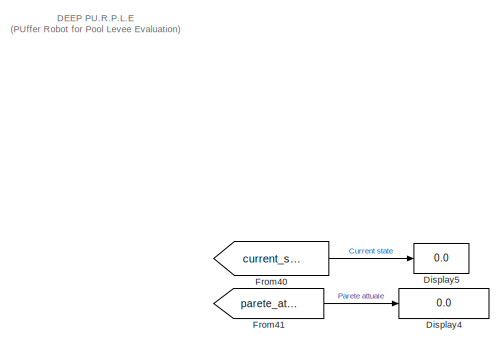
[diagram: root canvas - part 1/3, top center region]
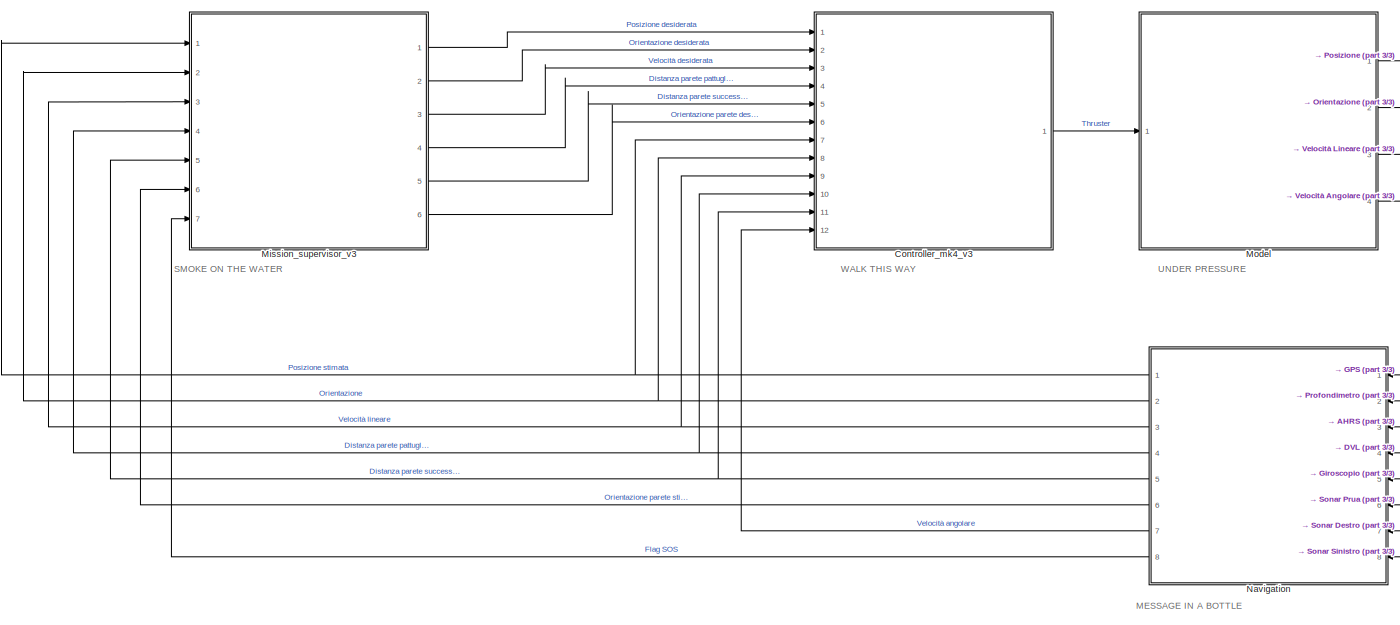
[diagram: root canvas - part 2/3, full width, bottom band]
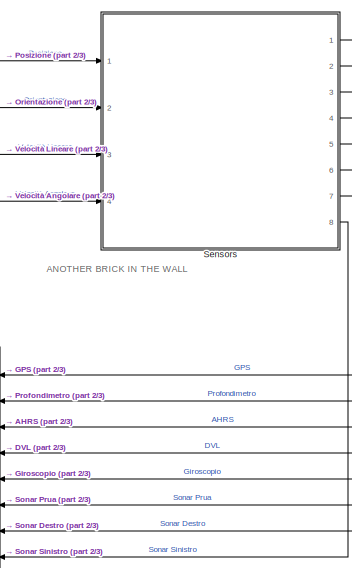
[diagram: root canvas - part 3/3, middle right region]
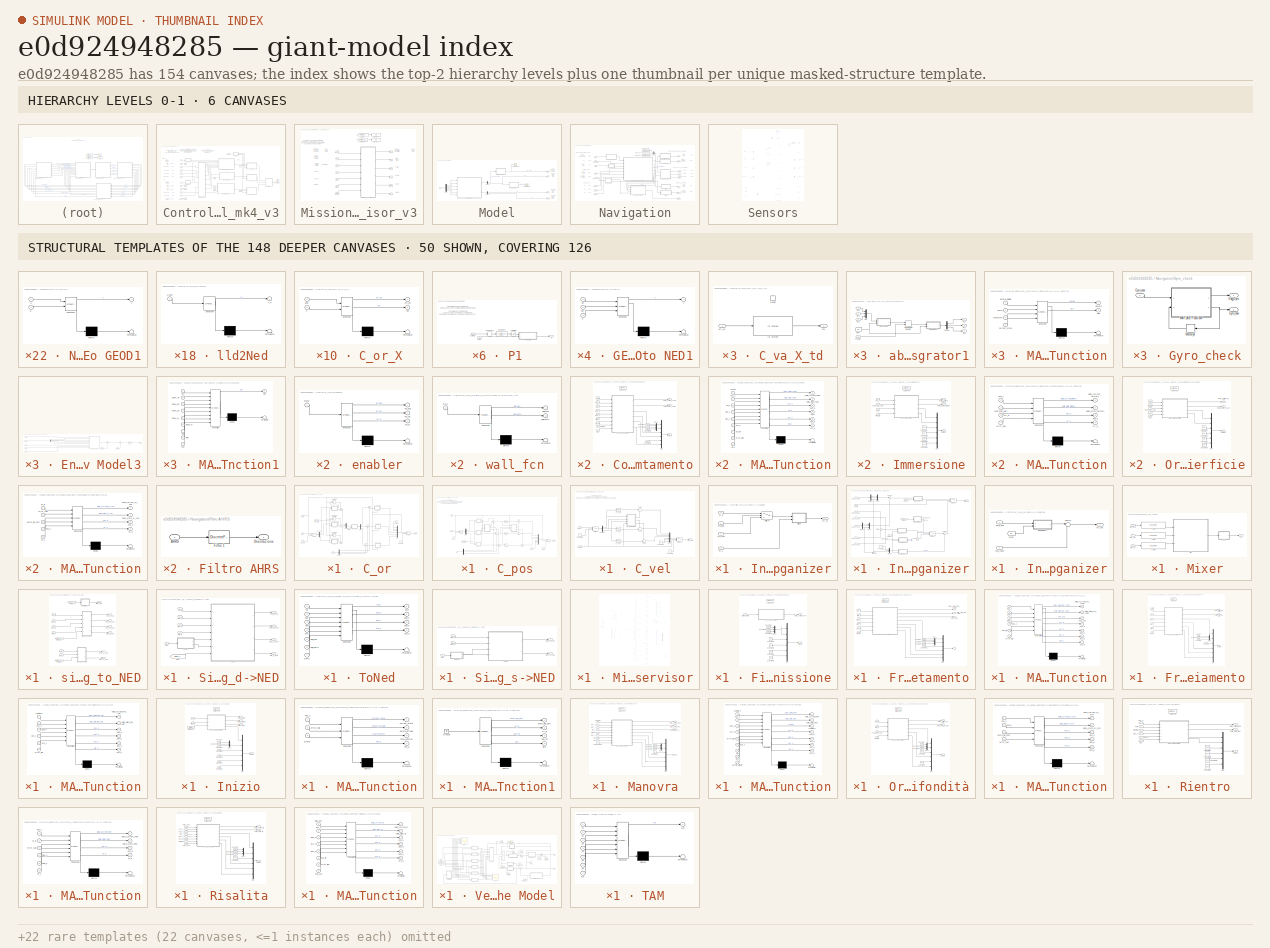
[diagram: thumbnail index - top-2 hierarchy levels (6 canvases) + 50 structural-template representatives of the remaining 148 canvases]
MODEL slx_e0d924948285
KIND model
CONFIG AbsTol = auto
CONFIG EnableMultiTasking = off
CONFIG FixedStep = auto
CONFIG MaxStep = auto
CONFIG MinStep = auto
CONFIG RelTol = 1e-3
CONFIG SampleTimeConstraint = Unconstrained
CONFIG Solver = VariableStepAuto
CONFIG SolverName = VariableStepAuto
CONFIG StartTime = 0.0
CONFIG StopTime = 2000
BLOCK [SubSystem] Controller_mk4_v3
  Ports = [12, 1]
  RequestExecContextInheritance = off
BLOCK [SubSystem] Controller_mk4_v3/C_or
  Ports = [3, 1]
  RequestExecContextInheritance = off
BLOCK [SubSystem] Controller_mk4_v3/C_or/C_or_X
  ErrorFcn = Stateflow.Translate.translate
  PermitHierarchicalResolution = ExplicitOnly
  Ports = [2, 2]
  RequestExecContextInheritance = off
  SFBlockType = MATLAB Function
  SystemSampleTime = ctrl_Ts
  TreatAsAtomicUnit = on
BLOCK [Demux] Controller_mk4_v3/C_or/C_or_X/ Demux 
  Outputs = 1
  Ports = [1, 1]
BLOCK [S-Function] Controller_mk4_v3/C_or/C_or_X/ SFunction 
  EnableBusSupport = off
  FunctionName = sf_sfun
  Parameters = ctrl_int_bound_or,ctrl_va_uncontrolled
  PortCounts = [2 3]
  Ports = [2, 3]
  SFcnIsStateOwnerBlock = off
  SFunctionDeploymentMode = off
  Tag = Stateflow S-Function 20
BLOCK [Terminator] Controller_mk4_v3/C_or/C_or_X/ Terminator 
BLOCK [Inport] Controller_mk4_v3/C_or/C_or_X/ang
BLOCK [Outport] Controller_mk4_v3/C_or/C_or_X/err_int
BLOCK [Inport] Controller_mk4_v3/C_or/C_or_X/k
  Port = 2
BLOCK [Outport] Controller_mk4_v3/C_or/C_or_X/vel
  Port = 2
BLOCK [SubSystem] Controller_mk4_v3/C_or/C_or_Y
  ErrorFcn = Stateflow.Translate.translate
  PermitHierarchicalResolution = ExplicitOnly
  Ports = [2, 2]
  RequestExecContextInheritance = off
  SFBlockType = MATLAB Function
  SystemSampleTime = ctrl_Ts
  TreatAsAtomicUnit = on
BLOCK [Demux] Controller_mk4_v3/C_or/C_or_Y/ Demux 
  Outputs = 1
  Ports = [1, 1]
BLOCK [S-Function] Controller_mk4_v3/C_or/C_or_Y/ SFunction 
  EnableBusSupport = off
  FunctionName = sf_sfun
  Parameters = ctrl_int_bound_or,ctrl_va_uncontrolled
  PortCounts = [2 3]
  Ports = [2, 3]
  SFcnIsStateOwnerBlock = off
  SFunctionDeploymentMode = off
  Tag = Stateflow S-Function 21
BLOCK [Terminator] Controller_mk4_v3/C_or/C_or_Y/ Terminator 
BLOCK [Inport] Controller_mk4_v3/C_or/C_or_Y/ang
BLOCK [Outport] Controller_mk4_v3/C_or/C_or_Y/err_int
BLOCK [Inport] Controller_mk4_v3/C_or/C_or_Y/k
  Port = 2
BLOCK [Outport] Controller_mk4_v3/C_or/C_or_Y/vel
  Port = 2
BLOCK [SubSystem] Controller_mk4_v3/C_or/C_or_Z
  ErrorFcn = Stateflow.Translate.translate
  PermitHierarchicalResolution = ExplicitOnly
  Ports = [2, 2]
  RequestExecContextInheritance = off
  SFBlockType = MATLAB Function
  SystemSampleTime = ctrl_Ts
  TreatAsAtomicUnit = on
BLOCK [Demux] Controller_mk4_v3/C_or/C_or_Z/ Demux 
  Outputs = 1
  Ports = [1, 1]
BLOCK [S-Function] Controller_mk4_v3/C_or/C_or_Z/ SFunction 
  EnableBusSupport = off
  FunctionName = sf_sfun
  Parameters = ctrl_int_bound_or,ctrl_va_uncontrolled
  PortCounts = [2 3]
  Ports = [2, 3]
  SFcnIsStateOwnerBlock = off
  SFunctionDeploymentMode = off
  Tag = Stateflow S-Function 22
BLOCK [Terminator] Controller_mk4_v3/C_or/C_or_Z/ Terminator 
BLOCK [Inport] Controller_mk4_v3/C_or/C_or_Z/ang
BLOCK [Outport] Controller_mk4_v3/C_or/C_or_Z/err_int
BLOCK [Inport] Controller_mk4_v3/C_or/C_or_Z/k
  Port = 2
BLOCK [Outport] Controller_mk4_v3/C_or/C_or_Z/vel
  Port = 2
BLOCK [SubSystem] Controller_mk4_v3/C_or/C_va_X_td
  NameLocation = top
  Ports = [1, 1, 0, 0, 0, 0, 0, 0, 1]
  RequestExecContextInheritance = off
  TreatAsAtomicUnit = on
BLOCK [Reference] Controller_mk4_v3/C_or/C_va_X_td/LTI System  REF=cstblocks/LTI System
  Ports = [1, 1]
  SourceBlock = cstblocks/LTI System
  SourceProductBaseCode = CT
  SourceType = LTI Block
BLOCK [ResetPort] Controller_mk4_v3/C_or/C_va_X_td/Reset
  DisableCoverage = on
BLOCK [Inport] Controller_mk4_v3/C_or/C_va_X_td/err_va
BLOCK [Outport] Controller_mk4_v3/C_or/C_va_X_td/tau
BLOCK [SubSystem] Controller_mk4_v3/C_or/C_va_Y_td
  NameLocation = top
  Ports = [1, 1, 0, 0, 0, 0, 0, 0, 1]
  RequestExecContextInheritance = off
  TreatAsAtomicUnit = on
BLOCK [Reference] Controller_mk4_v3/C_or/C_va_Y_td/LTI System  REF=cstblocks/LTI System
  Ports = [1, 1]
  SourceBlock = cstblocks/LTI System
  SourceProductBaseCode = CT
  SourceType = LTI Block
BLOCK [ResetPort] Controller_mk4_v3/C_or/C_va_Y_td/Reset
  DisableCoverage = on
BLOCK [Inport] Controller_mk4_v3/C_or/C_va_Y_td/err_va
BLOCK [Outport] Controller_mk4_v3/C_or/C_va_Y_td/tau
BLOCK [SubSystem] Controller_mk4_v3/C_or/C_va_Z_td
  NameLocation = top
  Ports = [1, 1, 0, 0, 0, 0, 0, 0, 1]
  RequestExecContextInheritance = off
  TreatAsAtomicUnit = on
BLOCK [Reference] Controller_mk4_v3/C_or/C_va_Z_td/LTI System  REF=cstblocks/LTI System
  Ports = [1, 1]
  SourceBlock = cstblocks/LTI System
  SourceProductBaseCode = CT
  SourceType = LTI Block
BLOCK [ResetPort] Controller_mk4_v3/C_or/C_va_Z_td/Reset
  DisableCoverage = on
BLOCK [Inport] Controller_mk4_v3/C_or/C_va_Z_td/err_va
BLOCK [Outport] Controller_mk4_v3/C_or/C_va_Z_td/tau
BLOCK [Constant] Controller_mk4_v3/C_or/Constant
  NameLocation = top
  Value = 0
BLOCK [Constant] Controller_mk4_v3/C_or/Constant3
  Value = ctrl_k_or
BLOCK [Constant] Controller_mk4_v3/C_or/Constant4
  Value = 0
BLOCK [Constant] Controller_mk4_v3/C_or/Constant5
  Value = 0
BLOCK [Demux] Controller_mk4_v3/C_or/Demux
  Outputs = 3
  Ports = [1, 3]
BLOCK [Demux] Controller_mk4_v3/C_or/Demux1
  Outputs = 3
  Ports = [1, 3]
BLOCK [Demux] Controller_mk4_v3/C_or/Demux2
  Outputs = 3
  Ports = [1, 3]
BLOCK [DiscreteIntegrator] Controller_mk4_v3/C_or/Discrete-Time Integrator
  ExternalReset = rising
  ICPrevOutput = DiscIntNeverNeededParam
  ICPrevScaledInput = DiscIntNeverNeededParam
  InitialConditionSetting = Auto
  Ports = [2, 1]
  SampleTime = ctrl_Ts
  gainval = ctrl_Ki_or
BLOCK [DiscreteIntegrator] Controller_mk4_v3/C_or/Discrete-Time Integrator1
  ExternalReset = rising
  ICPrevOutput = DiscIntNeverNeededParam
  ICPrevScaledInput = DiscIntNeverNeededParam
  InitialConditionSetting = Auto
  Ports = [2, 1]
  SampleTime = ctrl_Ts
  gainval = ctrl_Ki_or
BLOCK [DiscreteIntegrator] Controller_mk4_v3/C_or/Discrete-Time Integrator3
  ExternalReset = rising
  ICPrevOutput = DiscIntNeverNeededParam
  ICPrevScaledInput = DiscIntNeverNeededParam
  InitialConditionSetting = Auto
  Ports = [2, 1]
  SampleTime = ctrl_Ts
  gainval = ctrl_Ki_or
BLOCK [From] Controller_mk4_v3/C_or/From1
  GotoTag = Or
  TagVisibility = global
BLOCK [Mux] Controller_mk4_v3/C_or/Mux
  DisplayOption = bar
  Inputs = 6
  Ports = [6, 1]
BLOCK [Mux] Controller_mk4_v3/C_or/Mux1
  DisplayOption = bar
  Inputs = 3
  Ports = [3, 1]
BLOCK [Sum] Controller_mk4_v3/C_or/Sum1
  Inputs = ++|
  Ports = [2, 1]
BLOCK [Sum] Controller_mk4_v3/C_or/Sum2
  Inputs = |+-
  Ports = [2, 1]
BLOCK [Sum] Controller_mk4_v3/C_or/Sum3
  Inputs = ++|
  Ports = [2, 1]
BLOCK [Sum] Controller_mk4_v3/C_or/Sum4
  Inputs = |+-
  Ports = [2, 1]
BLOCK [Sum] Controller_mk4_v3/C_or/Sum5
  Inputs = |+-
  Ports = [2, 1]
BLOCK [Sum] Controller_mk4_v3/C_or/Sum6
  Inputs = ++|
  Ports = [2, 1]
BLOCK [Switch] Controller_mk4_v3/C_or/Switch1
  Criteria = u2 ~= 0
  InputSameDT = off
  SaturateOnIntegerOverflow = off
  Threshold = 0.5
BLOCK [Switch] Controller_mk4_v3/C_or/Switch3
  Criteria = u2 ~= 0
  InputSameDT = off
  SaturateOnIntegerOverflow = off
  Threshold = 0.5
BLOCK [Inport] Controller_mk4_v3/C_or/enable
  Port = 3
BLOCK [Inport] Controller_mk4_v3/C_or/err_or
BLOCK [SubSystem] Controller_mk4_v3/C_or/eta_dot2ni
  ErrorFcn = Stateflow.Translate.translate
  PermitHierarchicalResolution = ExplicitOnly
  Ports = [2, 1]
  RequestExecContextInheritance = off
  SFBlockType = MATLAB Function
  SystemSampleTime = ctrl_Ts
  TreatAsAtomicUnit = on
BLOCK [Demux] Controller_mk4_v3/C_or/eta_dot2ni/ Demux 
  Outputs = 1
  Ports = [1, 1]
BLOCK [S-Function] Controller_mk4_v3/C_or/eta_dot2ni/ SFunction 
  EnableBusSupport = off
  FunctionName = sf_sfun
  PortCounts = [2 2]
  Ports = [2, 2]
  SFcnIsStateOwnerBlock = off
  SFunctionDeploymentMode = off
  Tag = Stateflow S-Function 87
BLOCK [Terminator] Controller_mk4_v3/C_or/eta_dot2ni/ Terminator 
BLOCK [Inport] Controller_mk4_v3/C_or/eta_dot2ni/eta_dot
BLOCK [Inport] Controller_mk4_v3/C_or/eta_dot2ni/or
  Port = 2
BLOCK [Outport] Controller_mk4_v3/C_or/eta_dot2ni/va
BLOCK [Outport] Controller_mk4_v3/C_or/tau_or
  VectorParamsAs1DForOutWhenUnconnected = off
BLOCK [Inport] Controller_mk4_v3/C_or/vel_ang
  Port = 2
BLOCK [SubSystem] Controller_mk4_v3/C_pos
  Ports = [3, 1]
  RequestExecContextInheritance = off
BLOCK [SubSystem] Controller_mk4_v3/C_pos/C_pos_X
  ErrorFcn = Stateflow.Translate.translate
  PermitHierarchicalResolution = ExplicitOnly
  Ports = [2, 2]
  RequestExecContextInheritance = off
  SFBlockType = MATLAB Function
  TreatAsAtomicUnit = on
BLOCK [Demux] Controller_mk4_v3/C_pos/C_pos_X/ Demux 
  Outputs = 1
  Ports = [1, 1]
BLOCK [S-Function] Controller_mk4_v3/C_pos/C_pos_X/ SFunction 
  EnableBusSupport = off
  FunctionName = sf_sfun
  Parameters = ctrl_int_bound_pos,ctrl_vel_uncontrolled
  PortCounts = [2 3]
  Ports = [2, 3]
  SFcnIsStateOwnerBlock = off
  SFunctionDeploymentMode = off
  Tag = Stateflow S-Function 23
BLOCK [Terminator] Controller_mk4_v3/C_pos/C_pos_X/ Terminator 
BLOCK [Outport] Controller_mk4_v3/C_pos/C_pos_X/err_int
BLOCK [Inport] Controller_mk4_v3/C_pos/C_pos_X/k
  Port = 2
BLOCK [Inport] Controller_mk4_v3/C_pos/C_pos_X/pos
BLOCK [Outport] Controller_mk4_v3/C_pos/C_pos_X/vel
  Port = 2
BLOCK [SubSystem] Controller_mk4_v3/C_pos/C_pos_Y
  ErrorFcn = Stateflow.Translate.translate
  PermitHierarchicalResolution = ExplicitOnly
  Ports = [2, 2]
  RequestExecContextInheritance = off
  SFBlockType = MATLAB Function
  TreatAsAtomicUnit = on
BLOCK [Demux] Controller_mk4_v3/C_pos/C_pos_Y/ Demux 
  Outputs = 1
  Ports = [1, 1]
BLOCK [S-Function] Controller_mk4_v3/C_pos/C_pos_Y/ SFunction 
  EnableBusSupport = off
  FunctionName = sf_sfun
  Parameters = ctrl_int_bound_pos,ctrl_vel_uncontrolled
  PortCounts = [2 3]
  Ports = [2, 3]
  SFcnIsStateOwnerBlock = off
  SFunctionDeploymentMode = off
  Tag = Stateflow S-Function 2
BLOCK [Terminator] Controller_mk4_v3/C_pos/C_pos_Y/ Terminator 
BLOCK [Outport] Controller_mk4_v3/C_pos/C_pos_Y/err_int
BLOCK [Inport] Controller_mk4_v3/C_pos/C_pos_Y/k
  Port = 2
BLOCK [Inport] Controller_mk4_v3/C_pos/C_pos_Y/pos
BLOCK [Outport] Controller_mk4_v3/C_pos/C_pos_Y/vel
  Port = 2
BLOCK [SubSystem] Controller_mk4_v3/C_pos/C_pos_Z
  ErrorFcn = Stateflow.Translate.translate
  PermitHierarchicalResolution = ExplicitOnly
  Ports = [2, 2]
  RequestExecContextInheritance = off
  SFBlockType = MATLAB Function
  TreatAsAtomicUnit = on
BLOCK [Demux] Controller_mk4_v3/C_pos/C_pos_Z/ Demux 
  Outputs = 1
  Ports = [1, 1]
BLOCK [S-Function] Controller_mk4_v3/C_pos/C_pos_Z/ SFunction 
  EnableBusSupport = off
  FunctionName = sf_sfun
  Parameters = ctrl_int_bound_pos,ctrl_vel_uncontrolled
  PortCounts = [2 3]
  Ports = [2, 3]
  SFcnIsStateOwnerBlock = off
  SFunctionDeploymentMode = off
  Tag = Stateflow S-Function 24
BLOCK [Terminator] Controller_mk4_v3/C_pos/C_pos_Z/ Terminator 
BLOCK [Outport] Controller_mk4_v3/C_pos/C_pos_Z/err_int
BLOCK [Inport] Controller_mk4_v3/C_pos/C_pos_Z/k
  Port = 2
BLOCK [Inport] Controller_mk4_v3/C_pos/C_pos_Z/pos
BLOCK [Outport] Controller_mk4_v3/C_pos/C_pos_Z/vel
  Port = 2
BLOCK [Reference] Controller_mk4_v3/C_pos/C_vel_X  REF=simulink/Continuous/PID Controller
  Ports = [1, 1]
  SourceBlock = simulink/Continuous/PID Controller
  SourceProductBaseCode = SL
  SourceType = PID 1dof
BLOCK [Reference] Controller_mk4_v3/C_pos/C_vel_Y  REF=simulink/Continuous/PID Controller
  Ports = [1, 1]
  SourceBlock = simulink/Continuous/PID Controller
  SourceProductBaseCode = SL
  SourceType = PID 1dof
BLOCK [Reference] Controller_mk4_v3/C_pos/C_vel_Z  REF=simulink/Continuous/PID Controller
  Ports = [1, 1]
  SourceBlock = simulink/Continuous/PID Controller
  SourceProductBaseCode = SL
  SourceType = PID 1dof
BLOCK [Constant] Controller_mk4_v3/C_pos/Constant
  Value = 0
BLOCK [Constant] Controller_mk4_v3/C_pos/Constant1
  Value = 0
BLOCK [Demux] Controller_mk4_v3/C_pos/Demux
  Outputs = 3
  Ports = [1, 3]
BLOCK [Demux] Controller_mk4_v3/C_pos/Demux1
  Outputs = 3
  Ports = [1, 3]
BLOCK [Constant] Controller_mk4_v3/C_pos/Gain
  Value = ctrl_k_pos
BLOCK [Mux] Controller_mk4_v3/C_pos/Mux
  DisplayOption = bar
  Inputs = 6
  Ports = [6, 1]
BLOCK [Sum] Controller_mk4_v3/C_pos/Sum1
  Inputs = +|+|-
  Ports = [3, 1]
BLOCK [Sum] Controller_mk4_v3/C_pos/Sum2
  Inputs = +|+|-
  Ports = [3, 1]
BLOCK [Sum] Controller_mk4_v3/C_pos/Sum3
  Inputs = ++|
  Ports = [2, 1]
BLOCK [Sum] Controller_mk4_v3/C_pos/Sum4
  Inputs = ++-
  Ports = [3, 1]
BLOCK [Sum] Controller_mk4_v3/C_pos/Sum6
  Inputs = |++
  Ports = [2, 1]
BLOCK [Sum] Controller_mk4_v3/C_pos/Sum7
  Inputs = ++|
  Ports = [2, 1]
BLOCK [Switch] Controller_mk4_v3/C_pos/Switch
  Criteria = u2 ~= 0
  InputSameDT = off
  SaturateOnIntegerOverflow = off
  Threshold = 0.5
BLOCK [Switch] Controller_mk4_v3/C_pos/Switch1
  Criteria = u2 ~= 0
  InputSameDT = off
  SaturateOnIntegerOverflow = off
  Threshold = 0.5
BLOCK [SubSystem] Controller_mk4_v3/C_pos/abs_integrator1
  Ports = [4, 3]
  RequestExecContextInheritance = off
BLOCK [SubSystem] Controller_mk4_v3/C_pos/abs_integrator1/Body2Ned
  ErrorFcn = Stateflow.Translate.translate
  PermitHierarchicalResolution = ExplicitOnly
  Ports = [2, 1]
  RequestExecContextInheritance = off
  SFBlockType = MATLAB Function
  TreatAsAtomicUnit = on
BLOCK [Demux] Controller_mk4_v3/C_pos/abs_integrator1/Body2Ned/ Demux 
  Outputs = 1
  Ports = [1, 1]
BLOCK [S-Function] Controller_mk4_v3/C_pos/abs_integrator1/Body2Ned/ SFunction 
  EnableBusSupport = off
  FunctionName = sf_sfun
  PortCounts = [2 2]
  Ports = [2, 2]
  SFcnIsStateOwnerBlock = off
  SFunctionDeploymentMode = off
  Tag = Stateflow S-Function 70
BLOCK [Terminator] Controller_mk4_v3/C_pos/abs_integrator1/Body2Ned/ Terminator 
BLOCK [Inport] Controller_mk4_v3/C_pos/abs_integrator1/Body2Ned/or
  Port = 2
BLOCK [Inport] Controller_mk4_v3/C_pos/abs_integrator1/Body2Ned/x_b
BLOCK [Outport] Controller_mk4_v3/C_pos/abs_integrator1/Body2Ned/x_n
BLOCK [Demux] Controller_mk4_v3/C_pos/abs_integrator1/Demux
  Outputs = 3
  Ports = [1, 3]
BLOCK [DiscreteIntegrator] Controller_mk4_v3/C_pos/abs_integrator1/Discrete-Time Integrator
  ExternalReset = rising
  ICPrevOutput = DiscIntNeverNeededParam
  ICPrevScaledInput = DiscIntNeverNeededParam
  InitialConditionSetting = Auto
  Ports = [2, 1]
  SampleTime = ctrl_Ts
  gainval = ctrl_Ki_pos
BLOCK [From] Controller_mk4_v3/C_pos/abs_integrator1/From
  GotoTag = Or
  TagVisibility = global
BLOCK [Mux] Controller_mk4_v3/C_pos/abs_integrator1/Mux
  DisplayOption = bar
  Inputs = 3
  Ports = [3, 1]
BLOCK [SubSystem] Controller_mk4_v3/C_pos/abs_integrator1/Ned2Body1
  ErrorFcn = Stateflow.Translate.translate
  PermitHierarchicalResolution = ExplicitOnly
  Ports = [2, 1]
  RequestExecContextInheritance = off
  SFBlockType = MATLAB Function
  TreatAsAtomicUnit = on
BLOCK [Demux] Controller_mk4_v3/C_pos/abs_integrator1/Ned2Body1/ Demux 
  Outputs = 1
  Ports = [1, 1]
BLOCK [S-Function] Controller_mk4_v3/C_pos/abs_integrator1/Ned2Body1/ SFunction 
  EnableBusSupport = off
  FunctionName = sf_sfun
  PortCounts = [2 2]
  Ports = [2, 2]
  SFcnIsStateOwnerBlock = off
  SFunctionDeploymentMode = off
  Tag = Stateflow S-Function 71
BLOCK [Terminator] Controller_mk4_v3/C_pos/abs_integrator1/Ned2Body1/ Terminator 
BLOCK [Inport] Controller_mk4_v3/C_pos/abs_integrator1/Ned2Body1/or
  Port = 2
BLOCK [Outport] Controller_mk4_v3/C_pos/abs_integrator1/Ned2Body1/x_b
BLOCK [Inport] Controller_mk4_v3/C_pos/abs_integrator1/Ned2Body1/x_n
BLOCK [Inport] Controller_mk4_v3/C_pos/abs_integrator1/enabler
  Port = 4
BLOCK [Inport] Controller_mk4_v3/C_pos/abs_integrator1/err_x
BLOCK [Inport] Controller_mk4_v3/C_pos/abs_integrator1/err_y
  Port = 2
BLOCK [Inport] Controller_mk4_v3/C_pos/abs_integrator1/err_z
  Port = 3
BLOCK [Outport] Controller_mk4_v3/C_pos/abs_integrator1/int_x
BLOCK [Outport] Controller_mk4_v3/C_pos/abs_integrator1/int_y
  Port = 2
BLOCK [Outport] Controller_mk4_v3/C_pos/abs_integrator1/int_z
  Port = 3
BLOCK [SubSystem] Controller_mk4_v3/C_pos/abs_integrator2
  Ports = [4, 3]
  RequestExecContextInheritance = off
BLOCK [SubSystem] Controller_mk4_v3/C_pos/abs_integrator2/Body2Ned
  ErrorFcn = Stateflow.Translate.translate
  PermitHierarchicalResolution = ExplicitOnly
  Ports = [2, 1]
  RequestExecContextInheritance = off
  SFBlockType = MATLAB Function
  TreatAsAtomicUnit = on
BLOCK [Demux] Controller_mk4_v3/C_pos/abs_integrator2/Body2Ned/ Demux 
  Outputs = 1
  Ports = [1, 1]
BLOCK [S-Function] Controller_mk4_v3/C_pos/abs_integrator2/Body2Ned/ SFunction 
  EnableBusSupport = off
  FunctionName = sf_sfun
  PortCounts = [2 2]
  Ports = [2, 2]
  SFcnIsStateOwnerBlock = off
  SFunctionDeploymentMode = off
  Tag = Stateflow S-Function 68
BLOCK [Terminator] Controller_mk4_v3/C_pos/abs_integrator2/Body2Ned/ Terminator 
BLOCK [Inport] Controller_mk4_v3/C_pos/abs_integrator2/Body2Ned/or
  Port = 2
BLOCK [Inport] Controller_mk4_v3/C_pos/abs_integrator2/Body2Ned/x_b
BLOCK [Outport] Controller_mk4_v3/C_pos/abs_integrator2/Body2Ned/x_n
BLOCK [Demux] Controller_mk4_v3/C_pos/abs_integrator2/Demux
  Outputs = 3
  Ports = [1, 3]
BLOCK [DiscreteIntegrator] Controller_mk4_v3/C_pos/abs_integrator2/Discrete-Time Integrator
  ExternalReset = rising
  ICPrevOutput = DiscIntNeverNeededParam
  ICPrevScaledInput = DiscIntNeverNeededParam
  InitialConditionSetting = Auto
  Ports = [2, 1]
  SampleTime = ctrl_Ts
  gainval = ctrl_Ki_v_pos
BLOCK [From] Controller_mk4_v3/C_pos/abs_integrator2/From
  GotoTag = Or
  TagVisibility = global
BLOCK [Mux] Controller_mk4_v3/C_pos/abs_integrator2/Mux
  DisplayOption = bar
  Inputs = 3
  Ports = [3, 1]
BLOCK [SubSystem] Controller_mk4_v3/C_pos/abs_integrator2/Ned2Body1
  ErrorFcn = Stateflow.Translate.translate
  PermitHierarchicalResolution = ExplicitOnly
  Ports = [2, 1]
  RequestExecContextInheritance = off
  SFBlockType = MATLAB Function
  TreatAsAtomicUnit = on
BLOCK [Demux] Controller_mk4_v3/C_pos/abs_integrator2/Ned2Body1/ Demux 
  Outputs = 1
  Ports = [1, 1]
BLOCK [S-Function] Controller_mk4_v3/C_pos/abs_integrator2/Ned2Body1/ SFunction 
  EnableBusSupport = off
  FunctionName = sf_sfun
  PortCounts = [2 2]
  Ports = [2, 2]
  SFcnIsStateOwnerBlock = off
  SFunctionDeploymentMode = off
  Tag = Stateflow S-Function 69
BLOCK [Terminator] Controller_mk4_v3/C_pos/abs_integrator2/Ned2Body1/ Terminator 
BLOCK [Inport] Controller_mk4_v3/C_pos/abs_integrator2/Ned2Body1/or
  Port = 2
BLOCK [Outport] Controller_mk4_v3/C_pos/abs_integrator2/Ned2Body1/x_b
BLOCK [Inport] Controller_mk4_v3/C_pos/abs_integrator2/Ned2Body1/x_n
BLOCK [Inport] Controller_mk4_v3/C_pos/abs_integrator2/enabler
  Port = 4
BLOCK [Inport] Controller_mk4_v3/C_pos/abs_integrator2/err_vx
BLOCK [Inport] Controller_mk4_v3/C_pos/abs_integrator2/err_vy
  Port = 2
BLOCK [Inport] Controller_mk4_v3/C_pos/abs_integrator2/err_vz
  Port = 3
BLOCK [Outport] Controller_mk4_v3/C_pos/abs_integrator2/int_vx
BLOCK [Outport] Controller_mk4_v3/C_pos/abs_integrator2/int_vy
  Port = 2
BLOCK [Outport] Controller_mk4_v3/C_pos/abs_integrator2/int_vz
  Port = 3
BLOCK [Inport] Controller_mk4_v3/C_pos/enable
  Port = 3
BLOCK [Inport] Controller_mk4_v3/C_pos/err_pos
BLOCK [Constant] Controller_mk4_v3/C_pos/tau_ang
  Value = 0
BLOCK [Outport] Controller_mk4_v3/C_pos/tau_pos
  VectorParamsAs1DForOutWhenUnconnected = off
BLOCK [Inport] Controller_mk4_v3/C_pos/vel
  Port = 2
BLOCK [SubSystem] Controller_mk4_v3/C_vel
  Ports = [2, 1]
  RequestExecContextInheritance = off
BLOCK [Reference] Controller_mk4_v3/C_vel/C_vel_X  REF=simulink/Continuous/PID Controller
  Ports = [1, 1]
  SourceBlock = simulink/Continuous/PID Controller
  SourceProductBaseCode = SL
  SourceType = PID 1dof
BLOCK [Reference] Controller_mk4_v3/C_vel/C_vel_Y  REF=simulink/Continuous/PID Controller
  Ports = [1, 1]
  SourceBlock = simulink/Continuous/PID Controller
  SourceProductBaseCode = SL
  SourceType = PID 1dof
BLOCK [Reference] Controller_mk4_v3/C_vel/C_vel_Z  REF=simulink/Continuous/PID Controller
  Ports = [1, 1]
  SourceBlock = simulink/Continuous/PID Controller
  SourceProductBaseCode = SL
  SourceType = PID 1dof
BLOCK [Constant] Controller_mk4_v3/C_vel/Constant3
  Value = 0
BLOCK [Constant] Controller_mk4_v3/C_vel/Constant4
  Value = 0
BLOCK [Constant] Controller_mk4_v3/C_vel/Constant5
  Value = 0
BLOCK [Demux] Controller_mk4_v3/C_vel/Demux1
  Outputs = 3
  Ports = [1, 3]
BLOCK [Mux] Controller_mk4_v3/C_vel/Mux2
  DisplayOption = bar
  Inputs = 6
  Ports = [6, 1]
BLOCK [Sum] Controller_mk4_v3/C_vel/Sum5
  Inputs = ++|
  Ports = [2, 1]
BLOCK [Sum] Controller_mk4_v3/C_vel/Sum7
  Inputs = |++
  Ports = [2, 1]
BLOCK [Sum] Controller_mk4_v3/C_vel/Sum8
  Inputs = ++|
  Ports = [2, 1]
BLOCK [Switch] Controller_mk4_v3/C_vel/Switch2
  Criteria = u2 ~= 0
  InputSameDT = off
  SaturateOnIntegerOverflow = off
  Threshold = 0.5
BLOCK [Switch] Controller_mk4_v3/C_vel/Switch3
  Criteria = u2 ~= 0
  InputSameDT = off
  SaturateOnIntegerOverflow = off
  Threshold = 0.5
BLOCK [SubSystem] Controller_mk4_v3/C_vel/abs_integrator
  Ports = [4, 3]
  RequestExecContextInheritance = off
BLOCK [SubSystem] Controller_mk4_v3/C_vel/abs_integrator/Body2Ned
  ErrorFcn = Stateflow.Translate.translate
  PermitHierarchicalResolution = ExplicitOnly
  Ports = [2, 1]
  RequestExecContextInheritance = off
  SFBlockType = MATLAB Function
  TreatAsAtomicUnit = on
BLOCK [Demux] Controller_mk4_v3/C_vel/abs_integrator/Body2Ned/ Demux 
  Outputs = 1
  Ports = [1, 1]
BLOCK [S-Function] Controller_mk4_v3/C_vel/abs_integrator/Body2Ned/ SFunction 
  EnableBusSupport = off
  FunctionName = sf_sfun
  PortCounts = [2 2]
  Ports = [2, 2]
  SFcnIsStateOwnerBlock = off
  SFunctionDeploymentMode = off
  Tag = Stateflow S-Function 72
BLOCK [Terminator] Controller_mk4_v3/C_vel/abs_integrator/Body2Ned/ Terminator 
BLOCK [Inport] Controller_mk4_v3/C_vel/abs_integrator/Body2Ned/or
  Port = 2
BLOCK [Inport] Controller_mk4_v3/C_vel/abs_integrator/Body2Ned/x_b
BLOCK [Outport] Controller_mk4_v3/C_vel/abs_integrator/Body2Ned/x_n
BLOCK [Demux] Controller_mk4_v3/C_vel/abs_integrator/Demux
  Outputs = 3
  Ports = [1, 3]
BLOCK [DiscreteIntegrator] Controller_mk4_v3/C_vel/abs_integrator/Discrete-Time Integrator
  ExternalReset = rising
  ICPrevOutput = DiscIntNeverNeededParam
  ICPrevScaledInput = DiscIntNeverNeededParam
  InitialConditionSetting = Auto
  Ports = [2, 1]
  SampleTime = ctrl_Ts
  gainval = ctrl_Ki_vel
BLOCK [From] Controller_mk4_v3/C_vel/abs_integrator/From
  GotoTag = Or
  TagVisibility = global
BLOCK [Mux] Controller_mk4_v3/C_vel/abs_integrator/Mux
  DisplayOption = bar
  Inputs = 3
  Ports = [3, 1]
BLOCK [SubSystem] Controller_mk4_v3/C_vel/abs_integrator/Ned2Body1
  ErrorFcn = Stateflow.Translate.translate
  PermitHierarchicalResolution = ExplicitOnly
  Ports = [2, 1]
  RequestExecContextInheritance = off
  SFBlockType = MATLAB Function
  TreatAsAtomicUnit = on
BLOCK [Demux] Controller_mk4_v3/C_vel/abs_integrator/Ned2Body1/ Demux 
  Outputs = 1
  Ports = [1, 1]
BLOCK [S-Function] Controller_mk4_v3/C_vel/abs_integrator/Ned2Body1/ SFunction 
  EnableBusSupport = off
  FunctionName = sf_sfun
  PortCounts = [2 2]
  Ports = [2, 2]
  SFcnIsStateOwnerBlock = off
  SFunctionDeploymentMode = off
  Tag = Stateflow S-Function 73
BLOCK [Terminator] Controller_mk4_v3/C_vel/abs_integrator/Ned2Body1/ Terminator 
BLOCK [Inport] Controller_mk4_v3/C_vel/abs_integrator/Ned2Body1/or
  Port = 2
BLOCK [Outport] Controller_mk4_v3/C_vel/abs_integrator/Ned2Body1/x_b
BLOCK [Inport] Controller_mk4_v3/C_vel/abs_integrator/Ned2Body1/x_n
BLOCK [Inport] Controller_mk4_v3/C_vel/abs_integrator/enabler
  Port = 4
BLOCK [Inport] Controller_mk4_v3/C_vel/abs_integrator/err_vx
BLOCK [Inport] Controller_mk4_v3/C_vel/abs_integrator/err_vy
  Port = 2
BLOCK [Inport] Controller_mk4_v3/C_vel/abs_integrator/err_vz
  Port = 3
BLOCK [Outport] Controller_mk4_v3/C_vel/abs_integrator/int_vx
BLOCK [Outport] Controller_mk4_v3/C_vel/abs_integrator/int_vy
  Port = 2
BLOCK [Outport] Controller_mk4_v3/C_vel/abs_integrator/int_vz
  Port = 3
BLOCK [Inport] Controller_mk4_v3/C_vel/enable
  Port = 2
BLOCK [Inport] Controller_mk4_v3/C_vel/err_vel
BLOCK [Outport] Controller_mk4_v3/C_vel/tau_vel1
  VectorParamsAs1DForOutWhenUnconnected = off
BLOCK [Inport] Controller_mk4_v3/Dpp_d
  Port = 4
  PortDimensions = [1]
  SampleTime = ctrl_Ts
BLOCK [Inport] Controller_mk4_v3/Dpp_s
  Port = 10
  PortDimensions = [1]
  SampleTime = ctrl_Ts
BLOCK [Inport] Controller_mk4_v3/Dps_d
  Port = 5
  PortDimensions = [1]
  SampleTime = ctrl_Ts
BLOCK [Inport] Controller_mk4_v3/Dps_s
  Port = 11
  PortDimensions = [1]
  SampleTime = ctrl_Ts
BLOCK [From] Controller_mk4_v3/From
  GotoTag = Vel
  TagVisibility = global
BLOCK [From] Controller_mk4_v3/From1
  GotoTag = current_state
  TagVisibility = global
BLOCK [From] Controller_mk4_v3/From19
  GotoTag = Vel
  TagVisibility = global
BLOCK [From] Controller_mk4_v3/From2
  GotoTag = Or
  TagVisibility = global
BLOCK [From] Controller_mk4_v3/From20
  GotoTag = Vang
  TagVisibility = global
BLOCK [From] Controller_mk4_v3/From3
  GotoTag = Or_d
BLOCK [Goto] Controller_mk4_v3/Goto
  GotoTag = Or_d
BLOCK [Goto] Controller_mk4_v3/Goto10
  GotoTag = Or
  TagVisibility = global
BLOCK [Goto] Controller_mk4_v3/Goto8
  GotoTag = Vel
  TagVisibility = global
BLOCK [Goto] Controller_mk4_v3/Goto9
  GotoTag = Vang
  TagVisibility = global
BLOCK [SubSystem] Controller_mk4_v3/InputOr_Organizer
  Ports = [4, 1]
  RequestExecContextInheritance = off
BLOCK [Switch] Controller_mk4_v3/InputOr_Organizer/Switch4
  Criteria = u2 > Threshold
  InputSameDT = off
  SaturateOnIntegerOverflow = off
  Threshold = 0.5
BLOCK [SubSystem] Controller_mk4_v3/InputOr_Organizer/diff_or
  ErrorFcn = Stateflow.Translate.translate
  PermitHierarchicalResolution = ExplicitOnly
  Ports = [2, 1]
  RequestExecContextInheritance = off
  SFBlockType = MATLAB Function
  TreatAsAtomicUnit = on
BLOCK [Demux] Controller_mk4_v3/InputOr_Organizer/diff_or/ Demux 
  Outputs = 1
  Ports = [1, 1]
BLOCK [S-Function] Controller_mk4_v3/InputOr_Organizer/diff_or/ SFunction 
  EnableBusSupport = off
  FunctionName = sf_sfun
  PortCounts = [2 2]
  Ports = [2, 2]
  SFcnIsStateOwnerBlock = off
  SFunctionDeploymentMode = off
  Tag = Stateflow S-Function 29
BLOCK [Terminator] Controller_mk4_v3/InputOr_Organizer/diff_or/ Terminator 
BLOCK [Outport] Controller_mk4_v3/InputOr_Organizer/diff_or/err_or
BLOCK [Inport] Controller_mk4_v3/InputOr_Organizer/diff_or/or_d
BLOCK [Inport] Controller_mk4_v3/InputOr_Organizer/diff_or/or_s
  Port = 2
BLOCK [Outport] Controller_mk4_v3/InputOr_Organizer/err_or
BLOCK [Inport] Controller_mk4_v3/InputOr_Organizer/or_d
  Port = 2
BLOCK [Inport] Controller_mk4_v3/InputOr_Organizer/or_s
  Port = 3
BLOCK [Inport] Controller_mk4_v3/InputOr_Organizer/orp_ned
  Port = 4
BLOCK [Inport] Controller_mk4_v3/InputOr_Organizer/prof_trig
BLOCK [SubSystem] Controller_mk4_v3/InputPos_Organizer
  Ports = [7, 1]
  RequestExecContextInheritance = off
BLOCK [Constant] Controller_mk4_v3/InputPos_Organizer/Constant1
  Value = 0
BLOCK [Demux] Controller_mk4_v3/InputPos_Organizer/Demux2
  Outputs = 3
  Ports = [1, 3]
BLOCK [Demux] Controller_mk4_v3/InputPos_Organizer/Demux3
  Outputs = 3
  Ports = [1, 3]
BLOCK [From] Controller_mk4_v3/InputPos_Organizer/From10
  GotoTag = current_state
  TagVisibility = global
BLOCK [From] Controller_mk4_v3/InputPos_Organizer/From15
  GotoTag = Or
  TagVisibility = global
BLOCK [From] Controller_mk4_v3/InputPos_Organizer/From20
  GotoTag = Or
  TagVisibility = global
BLOCK [Mux] Controller_mk4_v3/InputPos_Organizer/Mux2
  DisplayOption = bar
  Inputs = 3
  Ports = [3, 1]
BLOCK [Mux] Controller_mk4_v3/InputPos_Organizer/Mux4
  DisplayOption = bar
  Inputs = 3
  Ports = [3, 1]
BLOCK [Mux] Controller_mk4_v3/InputPos_Organizer/Mux5
  DisplayOption = bar
  Inputs = 3
  Ports = [3, 1]
BLOCK [SubSystem] Controller_mk4_v3/InputPos_Organizer/Ned2Body1
  ErrorFcn = Stateflow.Translate.translate
  PermitHierarchicalResolution = ExplicitOnly
  Ports = [2, 1]
  RequestExecContextInheritance = off
  SFBlockType = MATLAB Function
  TreatAsAtomicUnit = on
BLOCK [Demux] Controller_mk4_v3/InputPos_Organizer/Ned2Body1/ Demux 
  Outputs = 1
  Ports = [1, 1]
BLOCK [S-Function] Controller_mk4_v3/InputPos_Organizer/Ned2Body1/ SFunction 
  EnableBusSupport = off
  FunctionName = sf_sfun
  PortCounts = [2 2]
  Ports = [2, 2]
  SFcnIsStateOwnerBlock = off
  SFunctionDeploymentMode = off
  Tag = Stateflow S-Function 30
BLOCK [Terminator] Controller_mk4_v3/InputPos_Organizer/Ned2Body1/ Terminator 
BLOCK [Inport] Controller_mk4_v3/InputPos_Organizer/Ned2Body1/or
  Port = 2
BLOCK [Outport] Controller_mk4_v3/InputPos_Organizer/Ned2Body1/x_b
BLOCK [Inport] Controller_mk4_v3/InputPos_Organizer/Ned2Body1/x_n
BLOCK [SubSystem] Controller_mk4_v3/InputPos_Organizer/Ned2Body2
  ErrorFcn = Stateflow.Translate.translate
  PermitHierarchicalResolution = ExplicitOnly
  Ports = [2, 1]
  RequestExecContextInheritance = off
  SFBlockType = MATLAB Function
  TreatAsAtomicUnit = on
BLOCK [Demux] Controller_mk4_v3/InputPos_Organizer/Ned2Body2/ Demux 
  Outputs = 1
  Ports = [1, 1]
BLOCK [S-Function] Controller_mk4_v3/InputPos_Organizer/Ned2Body2/ SFunction 
  EnableBusSupport = off
  FunctionName = sf_sfun
  PortCounts = [2 2]
  Ports = [2, 2]
  SFcnIsStateOwnerBlock = off
  SFunctionDeploymentMode = off
  Tag = Stateflow S-Function 34
BLOCK [Terminator] Controller_mk4_v3/InputPos_Organizer/Ned2Body2/ Terminator 
BLOCK [Inport] Controller_mk4_v3/InputPos_Organizer/Ned2Body2/or
  Port = 2
BLOCK [Outport] Controller_mk4_v3/InputPos_Organizer/Ned2Body2/x_b
BLOCK [Inport] Controller_mk4_v3/InputPos_Organizer/Ned2Body2/x_n
BLOCK [SubSystem] Controller_mk4_v3/InputPos_Organizer/Ned2Body3
  ErrorFcn = Stateflow.Translate.translate
  PermitHierarchicalResolution = ExplicitOnly
  Ports = [2, 1]
  RequestExecContextInheritance = off
  SFBlockType = MATLAB Function
  TreatAsAtomicUnit = on
BLOCK [Demux] Controller_mk4_v3/InputPos_Organizer/Ned2Body3/ Demux 
  Outputs = 1
  Ports = [1, 1]
BLOCK [S-Function] Controller_mk4_v3/InputPos_Organizer/Ned2Body3/ SFunction 
  EnableBusSupport = off
  FunctionName = sf_sfun
  PortCounts = [2 2]
  Ports = [2, 2]
  SFcnIsStateOwnerBlock = off
  SFunctionDeploymentMode = off
  Tag = Stateflow S-Function 36
BLOCK [Terminator] Controller_mk4_v3/InputPos_Organizer/Ned2Body3/ Terminator 
BLOCK [Inport] Controller_mk4_v3/InputPos_Organizer/Ned2Body3/or
  Port = 2
BLOCK [Outport] Controller_mk4_v3/InputPos_Organizer/Ned2Body3/x_b
BLOCK [Inport] Controller_mk4_v3/InputPos_Organizer/Ned2Body3/x_n
BLOCK [SubSystem] Controller_mk4_v3/InputPos_Organizer/Ned2Body4
  ErrorFcn = Stateflow.Translate.translate
  PermitHierarchicalResolution = ExplicitOnly
  Ports = [2, 1]
  RequestExecContextInheritance = off
  SFBlockType = MATLAB Function
  TreatAsAtomicUnit = on
BLOCK [Demux] Controller_mk4_v3/InputPos_Organizer/Ned2Body4/ Demux 
  Outputs = 1
  Ports = [1, 1]
BLOCK [S-Function] Controller_mk4_v3/InputPos_Organizer/Ned2Body4/ SFunction 
  EnableBusSupport = off
  FunctionName = sf_sfun
  PortCounts = [2 2]
  Ports = [2, 2]
  SFcnIsStateOwnerBlock = off
  SFunctionDeploymentMode = off
  Tag = Stateflow S-Function 37
BLOCK [Terminator] Controller_mk4_v3/InputPos_Organizer/Ned2Body4/ Terminator 
BLOCK [Inport] Controller_mk4_v3/InputPos_Organizer/Ned2Body4/or
  Port = 2
BLOCK [Outport] Controller_mk4_v3/InputPos_Organizer/Ned2Body4/x_b
BLOCK [Inport] Controller_mk4_v3/InputPos_Organizer/Ned2Body4/x_n
BLOCK [Sum] Controller_mk4_v3/InputPos_Organizer/Sum10
  Inputs = |+-
  Ports = [2, 1]
BLOCK [Sum] Controller_mk4_v3/InputPos_Organizer/Sum12
  Inputs = +-|
  Ports = [2, 1]
BLOCK [Sum] Controller_mk4_v3/InputPos_Organizer/Sum13
  Inputs = |++
  Ports = [2, 1]
BLOCK [Sum] Controller_mk4_v3/InputPos_Organizer/Sum7
  Inputs = ++|
  Ports = [2, 1]
BLOCK [Sum] Controller_mk4_v3/InputPos_Organizer/Sum8
  Inputs = +|-
  Ports = [2, 1]
BLOCK [Sum] Controller_mk4_v3/InputPos_Organizer/Sum9
  Inputs = +|-
  Ports = [2, 1]
BLOCK [Switch] Controller_mk4_v3/InputPos_Organizer/Switch3
  Criteria = u2 > Threshold
  InputSameDT = off
  SaturateOnIntegerOverflow = off
  Threshold = 0.5
BLOCK [Switch] Controller_mk4_v3/InputPos_Organizer/Switch5
  Criteria = u2 > Threshold
  InputSameDT = off
  SaturateOnIntegerOverflow = off
  Threshold = 0.5
BLOCK [SubSystem] Controller_mk4_v3/InputPos_Organizer/brake_trigger
  ErrorFcn = Stateflow.Translate.translate
  PermitHierarchicalResolution = ExplicitOnly
  Ports = [1, 1]
  RequestExecContextInheritance = off
  SFBlockType = MATLAB Function
  TreatAsAtomicUnit = on
BLOCK [Demux] Controller_mk4_v3/InputPos_Organizer/brake_trigger/ Demux 
  Outputs = 1
  Ports = [1, 1]
BLOCK [S-Function] Controller_mk4_v3/InputPos_Organizer/brake_trigger/ SFunction 
  EnableBusSupport = off
  FunctionName = sf_sfun
  PortCounts = [1 2]
  Ports = [1, 2]
  SFcnIsStateOwnerBlock = off
  SFunctionDeploymentMode = off
  Tag = Stateflow S-Function 38
BLOCK [Terminator] Controller_mk4_v3/InputPos_Organizer/brake_trigger/ Terminator 
BLOCK [Inport] Controller_mk4_v3/InputPos_Organizer/brake_trigger/state
BLOCK [Outport] Controller_mk4_v3/InputPos_Organizer/brake_trigger/trigg_brake
BLOCK [Inport] Controller_mk4_v3/InputPos_Organizer/dpp_d_ned
  Port = 3
BLOCK [Inport] Controller_mk4_v3/InputPos_Organizer/dpp_s_ned
  Port = 5
BLOCK [Inport] Controller_mk4_v3/InputPos_Organizer/dps_d_ned
  Port = 4
BLOCK [Inport] Controller_mk4_v3/InputPos_Organizer/dps_s_ned
  Port = 6
BLOCK [Outport] Controller_mk4_v3/InputPos_Organizer/err_pos
BLOCK [Inport] Controller_mk4_v3/InputPos_Organizer/pos_d_ned
BLOCK [Inport] Controller_mk4_v3/InputPos_Organizer/pos_s_ned
  Port = 2
BLOCK [Inport] Controller_mk4_v3/InputPos_Organizer/prof_trig
  Port = 7
BLOCK [SubSystem] Controller_mk4_v3/InputVel_Organizer
  Ports = [2, 1]
  RequestExecContextInheritance = off
BLOCK [From] Controller_mk4_v3/InputVel_Organizer/From
  GotoTag = Or
  TagVisibility = global
BLOCK [SubSystem] Controller_mk4_v3/InputVel_Organizer/Ned2Body4
  ErrorFcn = Stateflow.Translate.translate
  PermitHierarchicalResolution = ExplicitOnly
  Ports = [2, 1]
  RequestExecContextInheritance = off
  SFBlockType = MATLAB Function
  TreatAsAtomicUnit = on
BLOCK [Demux] Controller_mk4_v3/InputVel_Organizer/Ned2Body4/ Demux 
  Outputs = 1
  Ports = [1, 1]
BLOCK [S-Function] Controller_mk4_v3/InputVel_Organizer/Ned2Body4/ SFunction 
  EnableBusSupport = off
  FunctionName = sf_sfun
  PortCounts = [2 2]
  Ports = [2, 2]
  SFcnIsStateOwnerBlock = off
  SFunctionDeploymentMode = off
  Tag = Stateflow S-Function 39
BLOCK [Terminator] Controller_mk4_v3/InputVel_Organizer/Ned2Body4/ Terminator 
BLOCK [Inport] Controller_mk4_v3/InputVel_Organizer/Ned2Body4/or
  Port = 2
BLOCK [Outport] Controller_mk4_v3/InputVel_Organizer/Ned2Body4/x_b
BLOCK [Inport] Controller_mk4_v3/InputVel_Organizer/Ned2Body4/x_n
BLOCK [Sum] Controller_mk4_v3/InputVel_Organizer/Sum11
  Inputs = |+-
  Ports = [2, 1]
BLOCK [Outport] Controller_mk4_v3/InputVel_Organizer/err_vel
BLOCK [Inport] Controller_mk4_v3/InputVel_Organizer/vel_d_ned
BLOCK [Inport] Controller_mk4_v3/InputVel_Organizer/vel_s_body
  Port = 2
BLOCK [SubSystem] Controller_mk4_v3/Mixer
  Ports = [3, 1]
  RequestExecContextInheritance = off
BLOCK [SubSystem] Controller_mk4_v3/Mixer/Mix
  ErrorFcn = Stateflow.Translate.translate
  PermitHierarchicalResolution = ExplicitOnly
  Ports = [3, 1]
  RequestExecContextInheritance = off
  SFBlockType = MATLAB Function
  SystemSampleTime = ctrl_Ts
  TreatAsAtomicUnit = on
BLOCK [Demux] Controller_mk4_v3/Mixer/Mix/ Demux 
  Outputs = 1
  Ports = [1, 1]
BLOCK [S-Function] Controller_mk4_v3/Mixer/Mix/ SFunction 
  EnableBusSupport = off
  FunctionName = sf_sfun
  Parameters = ctrl_T_max
  PortCounts = [3 2]
  Ports = [3, 2]
  SFcnIsStateOwnerBlock = off
  SFunctionDeploymentMode = off
  Tag = Stateflow S-Function 40
BLOCK [Terminator] Controller_mk4_v3/Mixer/Mix/ Terminator 
BLOCK [Outport] Controller_mk4_v3/Mixer/Mix/T
BLOCK [Inport] Controller_mk4_v3/Mixer/Mix/To
  Port = 3
BLOCK [Inport] Controller_mk4_v3/Mixer/Mix/Tp
BLOCK [Inport] Controller_mk4_v3/Mixer/Mix/Tv
  Port = 2
BLOCK [SubSystem] Controller_mk4_v3/Mixer/T2n
  ErrorFcn = Stateflow.Translate.translate
  PermitHierarchicalResolution = ExplicitOnly
  Ports = [1, 1]
  RequestExecContextInheritance = off
  SFBlockType = MATLAB Function
  SystemSampleTime = ctrl_Ts
  TreatAsAtomicUnit = on
BLOCK [Demux] Controller_mk4_v3/Mixer/T2n/ Demux 
  Outputs = 1
  Ports = [1, 1]
BLOCK [S-Function] Controller_mk4_v3/Mixer/T2n/ SFunction 
  EnableBusSupport = off
  FunctionName = sf_sfun
  Parameters = a1
  PortCounts = [1 2]
  Ports = [1, 2]
  SFcnIsStateOwnerBlock = off
  SFunctionDeploymentMode = off
  Tag = Stateflow S-Function 41
BLOCK [Terminator] Controller_mk4_v3/Mixer/T2n/ Terminator 
BLOCK [Inport] Controller_mk4_v3/Mixer/T2n/T
BLOCK [Outport] Controller_mk4_v3/Mixer/T2n/n
BLOCK [Reference] Controller_mk4_v3/Mixer/TAM1  REF=cstblocks/LTI System
  Ports = [1, 1]
  SourceBlock = cstblocks/LTI System
  SourceProductBaseCode = CT
  SourceType = LTI Block
BLOCK [Reference] Controller_mk4_v3/Mixer/TAM2  REF=cstblocks/LTI System
  Ports = [1, 1]
  SourceBlock = cstblocks/LTI System
  SourceProductBaseCode = CT
  SourceType = LTI Block
BLOCK [Reference] Controller_mk4_v3/Mixer/TAM3  REF=cstblocks/LTI System
  Ports = [1, 1]
  SourceBlock = cstblocks/LTI System
  SourceProductBaseCode = CT
  SourceType = LTI Block
BLOCK [Outport] Controller_mk4_v3/Mixer/n
  VectorParamsAs1DForOutWhenUnconnected = off
BLOCK [Inport] Controller_mk4_v3/Mixer/tau_or
  Port = 3
BLOCK [Inport] Controller_mk4_v3/Mixer/tau_pos
BLOCK [Inport] Controller_mk4_v3/Mixer/tau_vel
  Port = 2
BLOCK [Inport] Controller_mk4_v3/Or_d
  Port = 2
  PortDimensions = [3 1]
  SampleTime = ctrl_Ts
BLOCK [Inport] Controller_mk4_v3/Or_s 
  Port = 8
  PortDimensions = [3 1]
  SampleTime = ctrl_Ts
BLOCK [Inport] Controller_mk4_v3/Orp_d
  Port = 6
  PortDimensions = [1]
  SampleTime = ctrl_Ts
BLOCK [Inport] Controller_mk4_v3/Pos_d
  PortDimensions = [3 1]
  SampleTime = ctrl_Ts
BLOCK [Inport] Controller_mk4_v3/Pos_s
  Port = 7
  PortDimensions = [3 1]
  SampleTime = ctrl_Ts
BLOCK [Inport] Controller_mk4_v3/Vel_ang_s
  Port = 12
  PortDimensions = [3 1]
  SampleTime = ctrl_Ts
BLOCK [Inport] Controller_mk4_v3/Vel_d
  Port = 3
  PortDimensions = [1]
  SampleTime = ctrl_Ts
BLOCK [Inport] Controller_mk4_v3/Vel_s
  Port = 9
  PortDimensions = [3 1]
  SampleTime = ctrl_Ts
BLOCK [SubSystem] Controller_mk4_v3/enabler
  ErrorFcn = Stateflow.Translate.translate
  PermitHierarchicalResolution = ExplicitOnly
  Ports = [1, 3]
  RequestExecContextInheritance = off
  SFBlockType = MATLAB Function
  TreatAsAtomicUnit = on
BLOCK [Demux] Controller_mk4_v3/enabler/ Demux 
  Outputs = 1
  Ports = [1, 1]
BLOCK [S-Function] Controller_mk4_v3/enabler/ SFunction 
  EnableBusSupport = off
  FunctionName = sf_sfun
  PortCounts = [1 4]
  Ports = [1, 4]
  SFcnIsStateOwnerBlock = off
  SFunctionDeploymentMode = off
  Tag = Stateflow S-Function 42
BLOCK [Terminator] Controller_mk4_v3/enabler/ Terminator 
BLOCK [Outport] Controller_mk4_v3/enabler/en_or
  Port = 3
BLOCK [Outport] Controller_mk4_v3/enabler/en_pos
BLOCK [Outport] Controller_mk4_v3/enabler/en_vel
  Port = 2
BLOCK [Inport] Controller_mk4_v3/enabler/state
BLOCK [SubSystem] Controller_mk4_v3/lld2Ned
  ErrorFcn = Stateflow.Translate.translate
  PermitHierarchicalResolution = ExplicitOnly
  Ports = [1, 1]
  RequestExecContextInheritance = off
  SFBlockType = MATLAB Function
  TreatAsAtomicUnit = on
BLOCK [Demux] Controller_mk4_v3/lld2Ned/ Demux 
  Outputs = 1
  Ports = [1, 1]
BLOCK [S-Function] Controller_mk4_v3/lld2Ned/ SFunction 
  EnableBusSupport = off
  FunctionName = sf_sfun
  Parameters = cornerC
  PortCounts = [1 2]
  Ports = [1, 2]
  SFcnIsStateOwnerBlock = off
  SFunctionDeploymentMode = off
  Tag = Stateflow S-Function 43
BLOCK [Terminator] Controller_mk4_v3/lld2Ned/ Terminator 
BLOCK [Inport] Controller_mk4_v3/lld2Ned/x_ecef
BLOCK [Outport] Controller_mk4_v3/lld2Ned/x_n
BLOCK [SubSystem] Controller_mk4_v3/lld2Ned1
  ErrorFcn = Stateflow.Translate.translate
  PermitHierarchicalResolution = ExplicitOnly
  Ports = [1, 1]
  RequestExecContextInheritance = off
  SFBlockType = MATLAB Function
  TreatAsAtomicUnit = on
BLOCK [Demux] Controller_mk4_v3/lld2Ned1/ Demux 
  Outputs = 1
  Ports = [1, 1]
BLOCK [S-Function] Controller_mk4_v3/lld2Ned1/ SFunction 
  EnableBusSupport = off
  FunctionName = sf_sfun
  Parameters = cornerC
  PortCounts = [1 2]
  Ports = [1, 2]
  SFcnIsStateOwnerBlock = off
  SFunctionDeploymentMode = off
  Tag = Stateflow S-Function 76
BLOCK [Terminator] Controller_mk4_v3/lld2Ned1/ Terminator 
BLOCK [Inport] Controller_mk4_v3/lld2Ned1/x_ecef
BLOCK [Outport] Controller_mk4_v3/lld2Ned1/x_n
BLOCK [Outport] Controller_mk4_v3/n
  PortDimensions = [6 1]
BLOCK [SubSystem] Controller_mk4_v3/signal_to_NED
  Ports = [6, 7]
  RequestExecContextInheritance = off
BLOCK [Inport] Controller_mk4_v3/signal_to_NED/Dpp_d
  Port = 2
BLOCK [Outport] Controller_mk4_v3/signal_to_NED/Dpp_d_ned
BLOCK [Inport] Controller_mk4_v3/signal_to_NED/Dpp_s
  Port = 5
BLOCK [Outport] Controller_mk4_v3/signal_to_NED/Dpp_s_ned
  Port = 3
BLOCK [Inport] Controller_mk4_v3/signal_to_NED/Dps_d
  Port = 3
BLOCK [Outport] Controller_mk4_v3/signal_to_NED/Dps_d_ned
  Port = 2
BLOCK [Inport] Controller_mk4_v3/signal_to_NED/Dps_s
  Port = 6
BLOCK [Outport] Controller_mk4_v3/signal_to_NED/Dps_s_ned
  Port = 4
BLOCK [From] Controller_mk4_v3/signal_to_NED/From11
  GotoTag = parete_attuale
  TagVisibility = global
BLOCK [From] Controller_mk4_v3/signal_to_NED/From2
  GotoTag = current_state
  TagVisibility = global
BLOCK [From] Controller_mk4_v3/signal_to_NED/From3
  GotoTag = parete_attuale
  TagVisibility = global
BLOCK [Inport] Controller_mk4_v3/signal_to_NED/Orp_d
  Port = 4
BLOCK [Outport] Controller_mk4_v3/signal_to_NED/Orp_d_ned
  Port = 7
BLOCK [SubSystem] Controller_mk4_v3/signal_to_NED/Signal_d->NED
  Ports = [5, 4]
  RequestExecContextInheritance = off
BLOCK [Inport] Controller_mk4_v3/signal_to_NED/Signal_d->NED/Dpp_d
  Port = 2
BLOCK [Outport] Controller_mk4_v3/signal_to_NED/Signal_d->NED/Dpp_d_ned
  Port = 2
  VectorParamsAs1DForOutWhenUnconnected = off
BLOCK [Inport] Controller_mk4_v3/signal_to_NED/Signal_d->NED/Dps_d
  Port = 3
BLOCK [Outport] Controller_mk4_v3/signal_to_NED/Signal_d->NED/Dps_d_ned
  Port = 3
  VectorParamsAs1DForOutWhenUnconnected = off
BLOCK [From] Controller_mk4_v3/signal_to_NED/Signal_d->NED/From
  GotoTag = current_state
  TagVisibility = global
BLOCK [Inport] Controller_mk4_v3/signal_to_NED/Signal_d->NED/Orp_d
  Port = 4
BLOCK [Outport] Controller_mk4_v3/signal_to_NED/Signal_d->NED/Orp_d_ned
  Port = 4
  VectorParamsAs1DForOutWhenUnconnected = off
BLOCK [SubSystem] Controller_mk4_v3/signal_to_NED/Signal_d->NED/ToNed
  ErrorFcn = Stateflow.Translate.translate
  PermitHierarchicalResolution = ExplicitOnly
  Ports = [7, 4]
  RequestExecContextInheritance = off
  SFBlockType = MATLAB Function
  TreatAsAtomicUnit = on
BLOCK [Demux] Controller_mk4_v3/signal_to_NED/Signal_d->NED/ToNed/ Demux 
  Outputs = 1
  Ports = [1, 1]
BLOCK [S-Function] Controller_mk4_v3/signal_to_NED/Signal_d->NED/ToNed/ SFunction 
  EnableBusSupport = off
  FunctionName = sf_sfun
  Parameters = ctrl_clockwise
  PortCounts = [7 5]
  Ports = [7, 5]
  SFcnIsStateOwnerBlock = off
  SFunctionDeploymentMode = off
  Tag = Stateflow S-Function 84
BLOCK [Terminator] Controller_mk4_v3/signal_to_NED/Signal_d->NED/ToNed/ Terminator 
BLOCK [Inport] Controller_mk4_v3/signal_to_NED/Signal_d->NED/ToNed/ddp
  Port = 2
BLOCK [Outport] Controller_mk4_v3/signal_to_NED/Signal_d->NED/ToNed/ddp_n
  Port = 2
BLOCK [Inport] Controller_mk4_v3/signal_to_NED/Signal_d->NED/ToNed/dps
  Port = 3
BLOCK [Outport] Controller_mk4_v3/signal_to_NED/Signal_d->NED/ToNed/dps_n
  Port = 3
BLOCK [Inport] Controller_mk4_v3/signal_to_NED/Signal_d->NED/ToNed/orp
  Port = 4
BLOCK [Outport] Controller_mk4_v3/signal_to_NED/Signal_d->NED/ToNed/orp_n
  Port = 4
BLOCK [Inport] Controller_mk4_v3/signal_to_NED/Signal_d->NED/ToNed/state
  Port = 7
BLOCK [Inport] Controller_mk4_v3/signal_to_NED/Signal_d->NED/ToNed/vel
BLOCK [Outport] Controller_mk4_v3/signal_to_NED/Signal_d->NED/ToNed/vel_n
BLOCK [Inport] Controller_mk4_v3/signal_to_NED/Signal_d->NED/ToNed/wall_vect
  Port = 5
BLOCK [Inport] Controller_mk4_v3/signal_to_NED/Signal_d->NED/ToNed/wall_vect2
  Port = 6
BLOCK [Inport] Controller_mk4_v3/signal_to_NED/Signal_d->NED/Vel_d
BLOCK [Outport] Controller_mk4_v3/signal_to_NED/Signal_d->NED/Vel_d_ned
  VectorParamsAs1DForOutWhenUnconnected = off
BLOCK [Inport] Controller_mk4_v3/signal_to_NED/Signal_d->NED/Wall
  Port = 5
BLOCK [SubSystem] Controller_mk4_v3/signal_to_NED/Signal_d->NED/wall_fcn
  ErrorFcn = Stateflow.Translate.translate
  PermitHierarchicalResolution = ExplicitOnly
  Ports = [1, 2]
  RequestExecContextInheritance = off
  SFBlockType = MATLAB Function
  TreatAsAtomicUnit = on
BLOCK [Demux] Controller_mk4_v3/signal_to_NED/Signal_d->NED/wall_fcn/ Demux 
  Outputs = 1
  Ports = [1, 1]
BLOCK [S-Function] Controller_mk4_v3/signal_to_NED/Signal_d->NED/wall_fcn/ SFunction 
  EnableBusSupport = off
  FunctionName = sf_sfun
  Parameters = cornerA,cornerB,cornerC,cornerD,ctrl_clockwise
  PortCounts = [1 3]
  Ports = [1, 3]
  SFcnIsStateOwnerBlock = off
  SFunctionDeploymentMode = off
  Tag = Stateflow S-Function 86
BLOCK [Terminator] Controller_mk4_v3/signal_to_NED/Signal_d->NED/wall_fcn/ Terminator 
BLOCK [Inport] Controller_mk4_v3/signal_to_NED/Signal_d->NED/wall_fcn/WALL
BLOCK [Outport] Controller_mk4_v3/signal_to_NED/Signal_d->NED/wall_fcn/wall_vect
BLOCK [Outport] Controller_mk4_v3/signal_to_NED/Signal_d->NED/wall_fcn/wall_vect2
  Port = 2
BLOCK [SubSystem] Controller_mk4_v3/signal_to_NED/Signal_s->NED
  Ports = [3, 2]
  RequestExecContextInheritance = off
BLOCK [Inport] Controller_mk4_v3/signal_to_NED/Signal_s->NED/Dpp_s
BLOCK [Outport] Controller_mk4_v3/signal_to_NED/Signal_s->NED/Dpp_s_ned
  VectorParamsAs1DForOutWhenUnconnected = off
BLOCK [Inport] Controller_mk4_v3/signal_to_NED/Signal_s->NED/Dps_s
  Port = 2
BLOCK [Outport] Controller_mk4_v3/signal_to_NED/Signal_s->NED/Dps_s_ned
  Port = 2
  VectorParamsAs1DForOutWhenUnconnected = off
BLOCK [SubSystem] Controller_mk4_v3/signal_to_NED/Signal_s->NED/ToNed
  ErrorFcn = Stateflow.Translate.translate
  PermitHierarchicalResolution = ExplicitOnly
  Ports = [4, 2]
  RequestExecContextInheritance = off
  SFBlockType = MATLAB Function
  TreatAsAtomicUnit = on
BLOCK [Demux] Controller_mk4_v3/signal_to_NED/Signal_s->NED/ToNed/ Demux 
  Outputs = 1
  Ports = [1, 1]
BLOCK [S-Function] Controller_mk4_v3/signal_to_NED/Signal_s->NED/ToNed/ SFunction 
  EnableBusSupport = off
  FunctionName = sf_sfun
  PortCounts = [4 3]
  Ports = [4, 3]
  SFcnIsStateOwnerBlock = off
  SFunctionDeploymentMode = off
  Tag = Stateflow S-Function 88
BLOCK [Terminator] Controller_mk4_v3/signal_to_NED/Signal_s->NED/ToNed/ Terminator 
BLOCK [Inport] Controller_mk4_v3/signal_to_NED/Signal_s->NED/ToNed/ddp
BLOCK [Outport] Controller_mk4_v3/signal_to_NED/Signal_s->NED/ToNed/ddp_n
BLOCK [Inport] Controller_mk4_v3/signal_to_NED/Signal_s->NED/ToNed/dps
  Port = 2
BLOCK [Outport] Controller_mk4_v3/signal_to_NED/Signal_s->NED/ToNed/dps_n
  Port = 2
BLOCK [Inport] Controller_mk4_v3/signal_to_NED/Signal_s->NED/ToNed/wall_vect
  Port = 3
BLOCK [Inport] Controller_mk4_v3/signal_to_NED/Signal_s->NED/ToNed/wall_vect2
  Port = 4
BLOCK [Inport] Controller_mk4_v3/signal_to_NED/Signal_s->NED/Wall
  Port = 3
BLOCK [SubSystem] Controller_mk4_v3/signal_to_NED/Signal_s->NED/wall_fcn1
  ErrorFcn = Stateflow.Translate.translate
  PermitHierarchicalResolution = ExplicitOnly
  Ports = [1, 2]
  RequestExecContextInheritance = off
  SFBlockType = MATLAB Function
  TreatAsAtomicUnit = on
BLOCK [Demux] Controller_mk4_v3/signal_to_NED/Signal_s->NED/wall_fcn1/ Demux 
  Outputs = 1
  Ports = [1, 1]
BLOCK [S-Function] Controller_mk4_v3/signal_to_NED/Signal_s->NED/wall_fcn1/ SFunction 
  EnableBusSupport = off
  FunctionName = sf_sfun
  Parameters = cornerA,cornerB,cornerC,cornerD,ctrl_clockwise
  PortCounts = [1 3]
  Ports = [1, 3]
  SFcnIsStateOwnerBlock = off
  SFunctionDeploymentMode = off
  Tag = Stateflow S-Function 89
BLOCK [Terminator] Controller_mk4_v3/signal_to_NED/Signal_s->NED/wall_fcn1/ Terminator 
BLOCK [Inport] Controller_mk4_v3/signal_to_NED/Signal_s->NED/wall_fcn1/WALL
BLOCK [Outport] Controller_mk4_v3/signal_to_NED/Signal_s->NED/wall_fcn1/wall_vect
BLOCK [Outport] Controller_mk4_v3/signal_to_NED/Signal_s->NED/wall_fcn1/wall_vect2
  Port = 2
BLOCK [Inport] Controller_mk4_v3/signal_to_NED/Vel_d
BLOCK [Outport] Controller_mk4_v3/signal_to_NED/Vel_d_ned
  Port = 6
BLOCK [SubSystem] Controller_mk4_v3/signal_to_NED/prof_trigger
  ErrorFcn = Stateflow.Translate.translate
  PermitHierarchicalResolution = ExplicitOnly
  Ports = [1, 1]
  RequestExecContextInheritance = off
  SFBlockType = MATLAB Function
  TreatAsAtomicUnit = on
BLOCK [Demux] Controller_mk4_v3/signal_to_NED/prof_trigger/ Demux 
  Outputs = 1
  Ports = [1, 1]
BLOCK [S-Function] Controller_mk4_v3/signal_to_NED/prof_trigger/ SFunction 
  EnableBusSupport = off
  FunctionName = sf_sfun
  PortCounts = [1 2]
  Ports = [1, 2]
  SFcnIsStateOwnerBlock = off
  SFunctionDeploymentMode = off
  Tag = Stateflow S-Function 90
BLOCK [Terminator] Controller_mk4_v3/signal_to_NED/prof_trigger/ Terminator 
BLOCK [Inport] Controller_mk4_v3/signal_to_NED/prof_trigger/state
BLOCK [Outport] Controller_mk4_v3/signal_to_NED/prof_trigger/trigg_prof
BLOCK [Outport] Controller_mk4_v3/signal_to_NED/trigg_prof
  Port = 5
BLOCK [Display] Display4
  Decimation = 1
  Ports = [1]
BLOCK [Display] Display5
  Decimation = 1
  Ports = [1]
BLOCK [From] From40
  GotoTag = current_state
  TagVisibility = global
BLOCK [From] From41
  GotoTag = parete_attuale
  TagVisibility = global
BLOCK [SubSystem] Mission_supervisor_v3
  Ports = [7, 6]
  RequestExecContextInheritance = off
BLOCK [Display] Mission_supervisor_v3/Display4
  Decimation = 1
  Ports = [1]
BLOCK [Display] Mission_supervisor_v3/Display5
  Decimation = 1
  Ports = [1]
BLOCK [Inport] Mission_supervisor_v3/Dpp
  Port = 4
  PortDimensions = 1
BLOCK [Outport] Mission_supervisor_v3/Dpp_d
  Port = 4
  PortDimensions = 1
BLOCK [Inport] Mission_supervisor_v3/Dps
  Port = 5
  PortDimensions = 1
BLOCK [Outport] Mission_supervisor_v3/Dps_d
  Port = 5
  PortDimensions = 1
BLOCK [From] Mission_supervisor_v3/From40
  GotoTag = current_state
  TagVisibility = global
BLOCK [From] Mission_supervisor_v3/From41
  GotoTag = parete_attuale
  TagVisibility = global
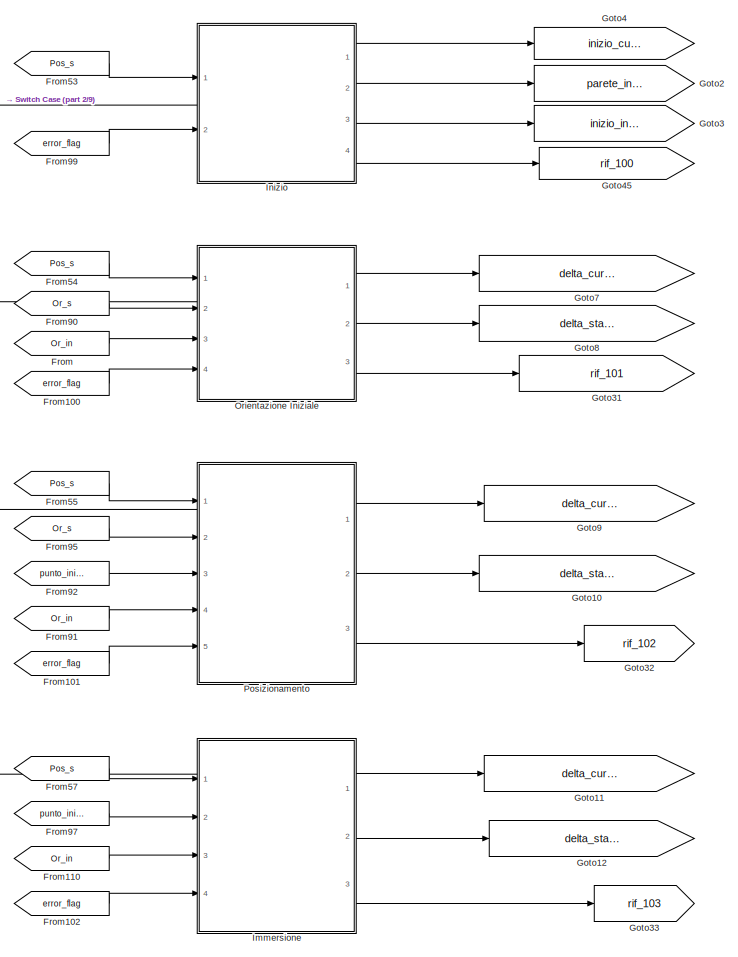
[diagram: Mission_supervisor_v3/Mission_Supervisor - part 1/9, top center region]
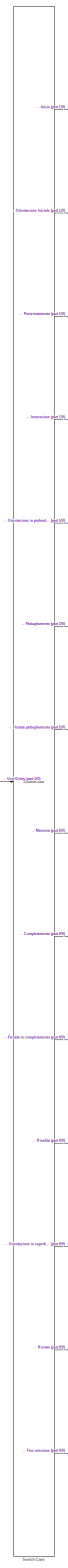
[diagram: Mission_supervisor_v3/Mission_Supervisor - part 2/9, center side, full height]
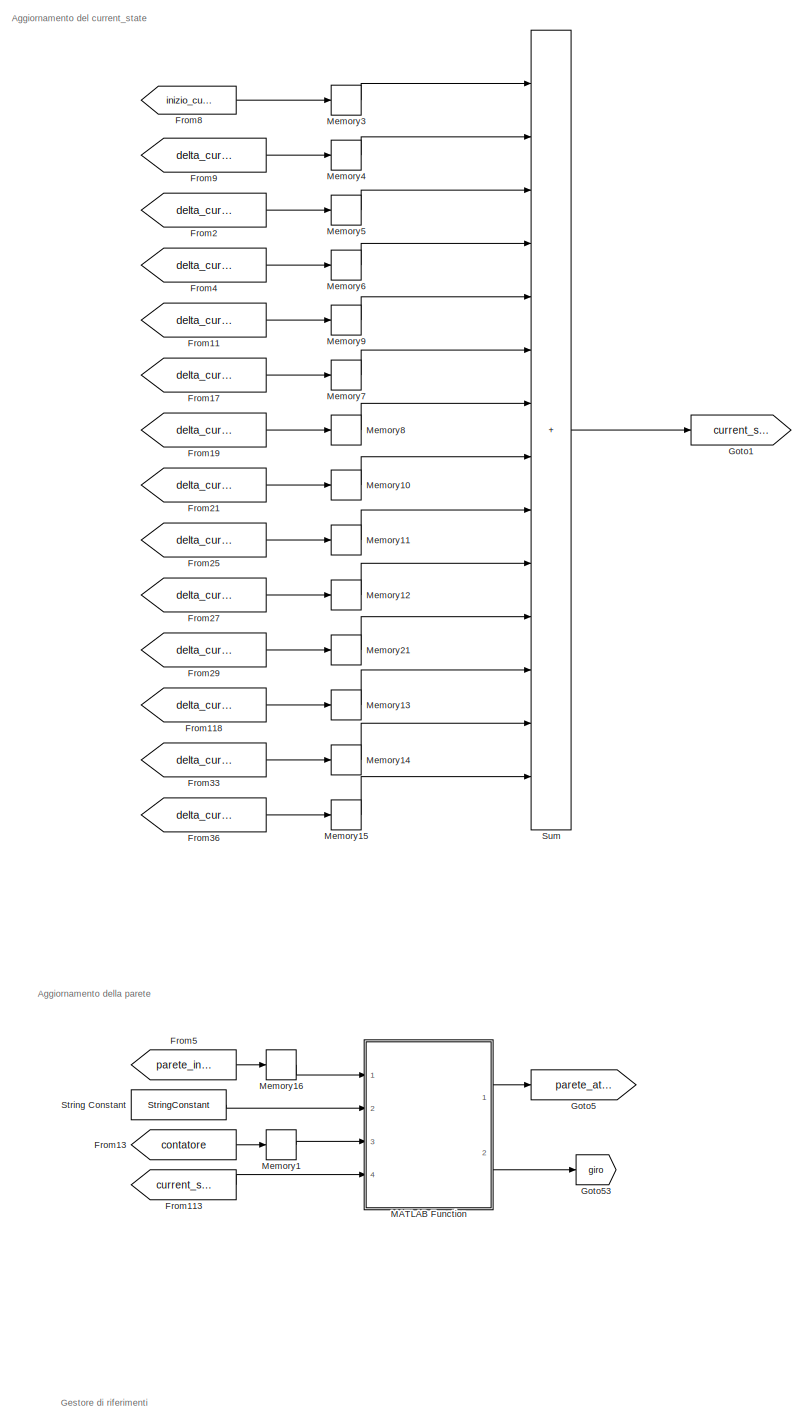
[diagram: Mission_supervisor_v3/Mission_Supervisor - part 3/9, top right region]
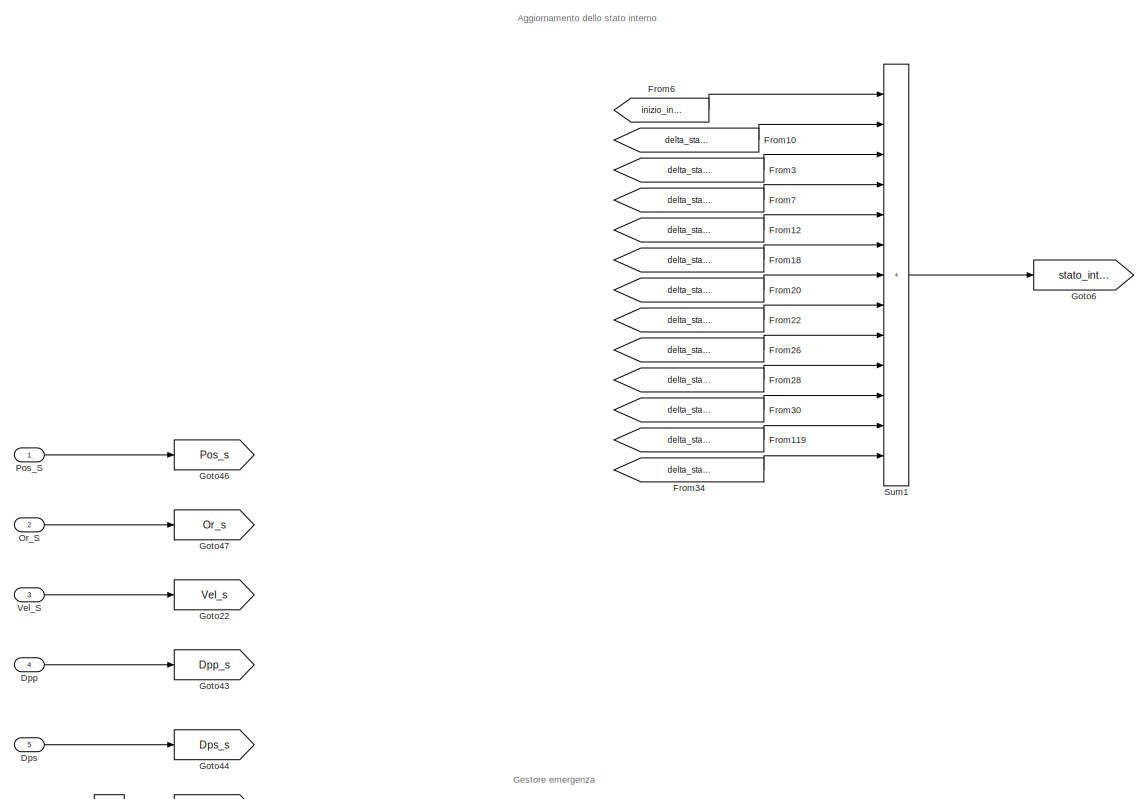
[diagram: Mission_supervisor_v3/Mission_Supervisor - part 4/9, middle left region]
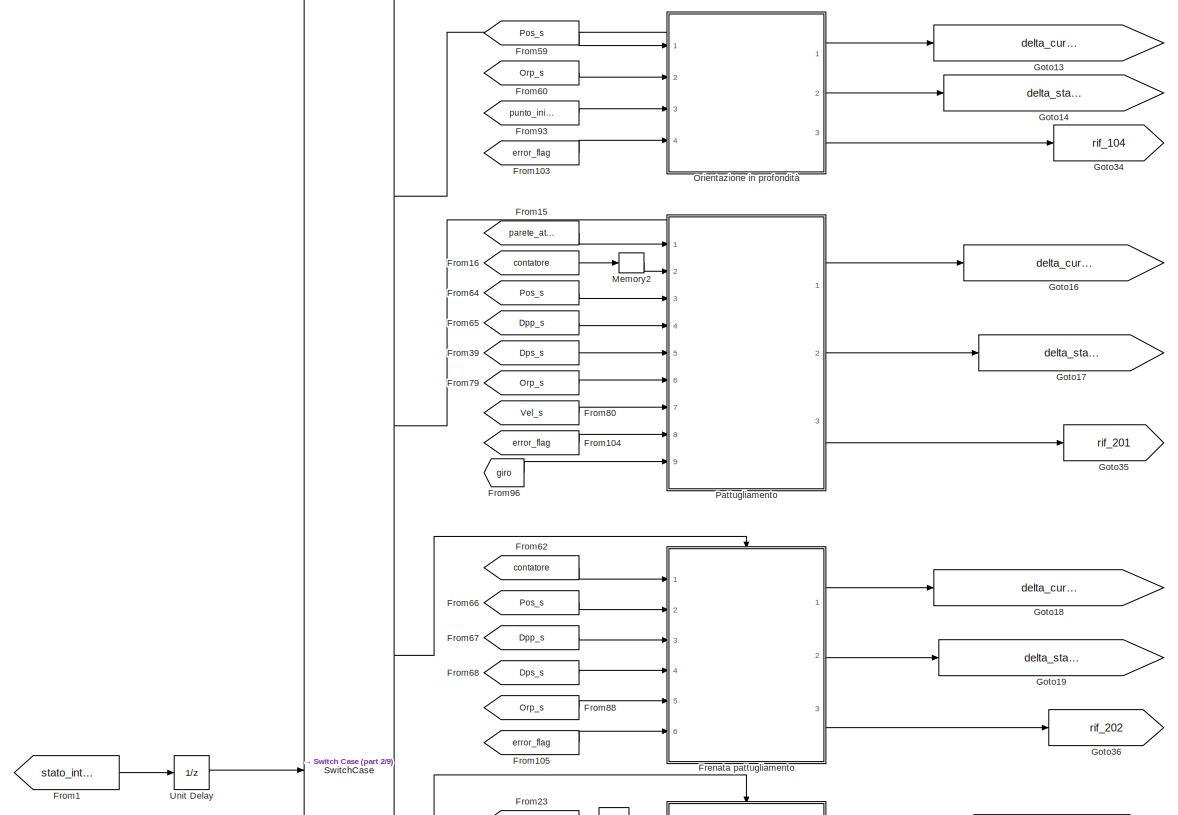
[diagram: Mission_supervisor_v3/Mission_Supervisor - part 5/9, central region]
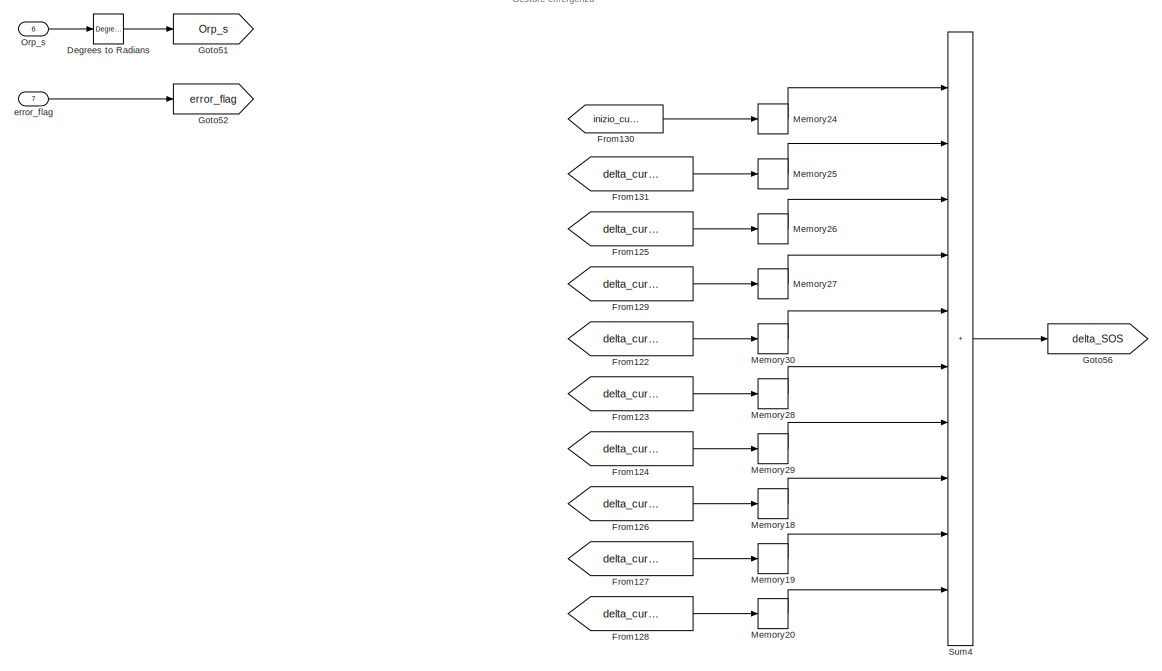
[diagram: Mission_supervisor_v3/Mission_Supervisor - part 6/9, middle left region]
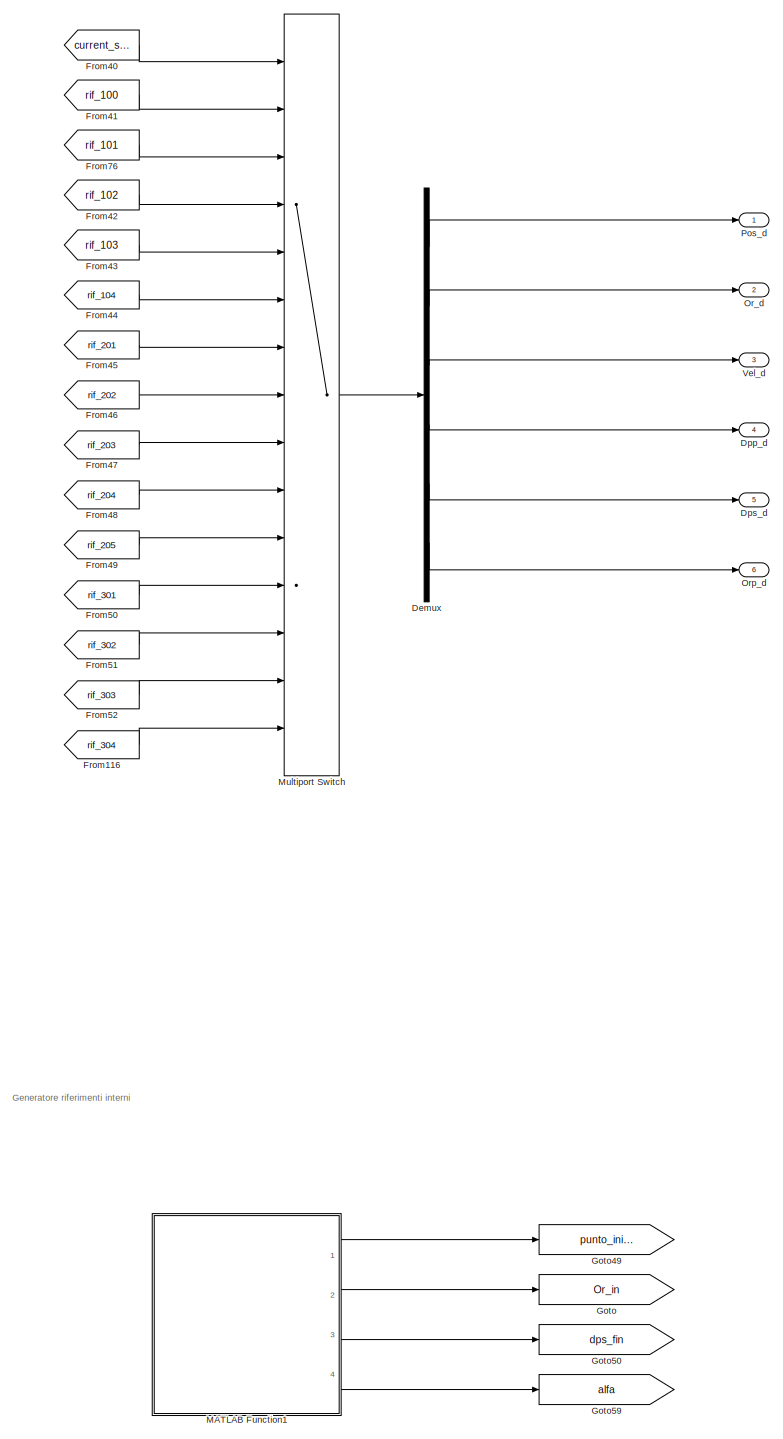
[diagram: Mission_supervisor_v3/Mission_Supervisor - part 7/9, bottom right region]
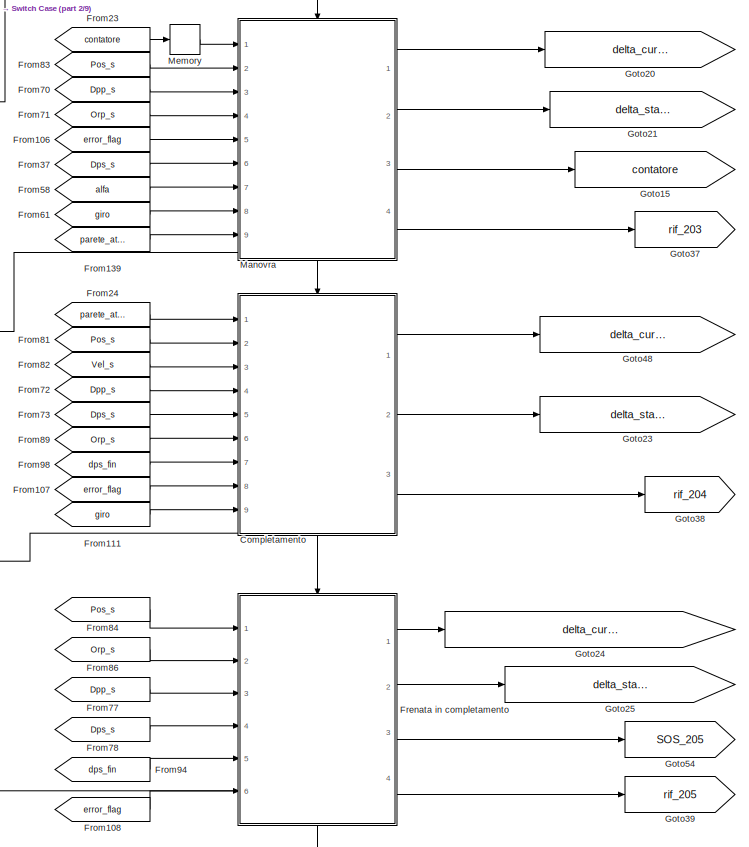
[diagram: Mission_supervisor_v3/Mission_Supervisor - part 8/9, central region]
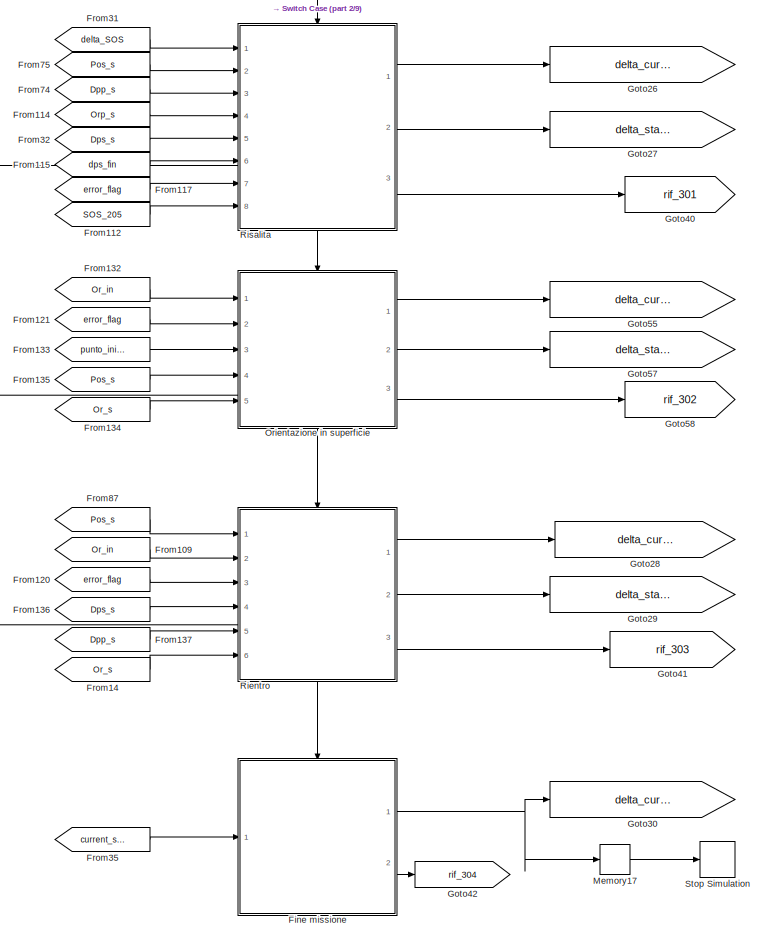
[diagram: Mission_supervisor_v3/Mission_Supervisor - part 9/9, bottom center region]
BLOCK [SubSystem] Mission_supervisor_v3/Mission_Supervisor
  Ports = [7, 6]
  RequestExecContextInheritance = off
BLOCK [SubSystem] Mission_supervisor_v3/Mission_Supervisor/Completamento
  Ports = [9, 3, 0, 0, 0, 0, 0, 1]
  RequestExecContextInheritance = off
  TreatAsAtomicUnit = on
BLOCK [ActionPort] Mission_supervisor_v3/Mission_Supervisor/Completamento/Action Port
  ActionPortLabel = case [ 204 ]:
BLOCK [Constant] Mission_supervisor_v3/Mission_Supervisor/Completamento/Constant
  Value = nan
BLOCK [Constant] Mission_supervisor_v3/Mission_Supervisor/Completamento/Constant1
  Value = nan
BLOCK [Constant] Mission_supervisor_v3/Mission_Supervisor/Completamento/Constant2
  Value = nan
BLOCK [Constant] Mission_supervisor_v3/Mission_Supervisor/Completamento/Constant6
  Value = nan
BLOCK [Inport] Mission_supervisor_v3/Mission_Supervisor/Completamento/Dpp_s
  Port = 4
BLOCK [Inport] Mission_supervisor_v3/Mission_Supervisor/Completamento/Dps_fin
  Port = 7
BLOCK [Inport] Mission_supervisor_v3/Mission_Supervisor/Completamento/Dps_s
  Port = 5
BLOCK [SubSystem] Mission_supervisor_v3/Mission_Supervisor/Completamento/MATLAB Function
  ErrorFcn = Stateflow.Translate.translate
  PermitHierarchicalResolution = ExplicitOnly
  Ports = [9, 6]
  RequestExecContextInheritance = off
  SFBlockType = MATLAB Function
  SystemSampleTime = Ts_supervisor
  TreatAsAtomicUnit = on
BLOCK [Demux] Mission_supervisor_v3/Mission_Supervisor/Completamento/MATLAB Function/ Demux 
  Outputs = 1
  Ports = [1, 1]
BLOCK [S-Function] Mission_supervisor_v3/Mission_Supervisor/Completamento/MATLAB Function/ SFunction 
  EnableBusSupport = off
  FunctionName = sf_sfun
  Parameters = SOS,depth,distanceFromWall,relativeDirection,soglia_SOS_orp,soglia_SOS_parete,soglia_SOS_pos,soglia_SOS_vel,soglia_parete_frenata,speed
  PortCounts = [9 7]
  Ports = [9, 7]
  SFcnIsStateOwnerBlock = off
  SFunctionDeploymentMode = off
  Tag = Stateflow S-Function 10
BLOCK [Terminator] Mission_supervisor_v3/Mission_Supervisor/Completamento/MATLAB Function/ Terminator 
BLOCK [Outport] Mission_supervisor_v3/Mission_Supervisor/Completamento/MATLAB Function/Dpp_d
  Port = 5
BLOCK [Inport] Mission_supervisor_v3/Mission_Supervisor/Completamento/MATLAB Function/Dpp_s
  Port = 4
BLOCK [Inport] Mission_supervisor_v3/Mission_Supervisor/Completamento/MATLAB Function/Dps_s
  Port = 5
BLOCK [Outport] Mission_supervisor_v3/Mission_Supervisor/Completamento/MATLAB Function/Orp_d
  Port = 6
BLOCK [Inport] Mission_supervisor_v3/Mission_Supervisor/Completamento/MATLAB Function/Orp_s
  Port = 6
BLOCK [Outport] Mission_supervisor_v3/Mission_Supervisor/Completamento/MATLAB Function/Pos_d
  Port = 3
BLOCK [Inport] Mission_supervisor_v3/Mission_Supervisor/Completamento/MATLAB Function/Pos_s
  Port = 2
BLOCK [Outport] Mission_supervisor_v3/Mission_Supervisor/Completamento/MATLAB Function/Vel_d
  Port = 4
BLOCK [Inport] Mission_supervisor_v3/Mission_Supervisor/Completamento/MATLAB Function/Vel_s
  Port = 3
BLOCK [Outport] Mission_supervisor_v3/Mission_Supervisor/Completamento/MATLAB Function/delta_current_comp
BLOCK [Outport] Mission_supervisor_v3/Mission_Supervisor/Completamento/MATLAB Function/delta_stato_comp
  Port = 2
BLOCK [Inport] Mission_supervisor_v3/Mission_Supervisor/Completamento/MATLAB Function/dps_fin
  Port = 7
BLOCK [Inport] Mission_supervisor_v3/Mission_Supervisor/Completamento/MATLAB Function/error_flag
  Port = 8
BLOCK [Inport] Mission_supervisor_v3/Mission_Supervisor/Completamento/MATLAB Function/giro
  Port = 9
BLOCK [Inport] Mission_supervisor_v3/Mission_Supervisor/Completamento/MATLAB Function/parete
BLOCK [Mux] Mission_supervisor_v3/Mission_Supervisor/Completamento/Mux
  DisplayOption = bar
  Inputs = 6
  Ports = [6, 1]
BLOCK [Mux] Mission_supervisor_v3/Mission_Supervisor/Completamento/Mux1
  DisplayOption = bar
  Inputs = 3
  Ports = [3, 1]
BLOCK [Inport] Mission_supervisor_v3/Mission_Supervisor/Completamento/Orp_s
  Port = 6
BLOCK [Outport] Mission_supervisor_v3/Mission_Supervisor/Completamento/Outport
  Port = 3
BLOCK [Inport] Mission_supervisor_v3/Mission_Supervisor/Completamento/Pos_s
  Port = 2
BLOCK [Inport] Mission_supervisor_v3/Mission_Supervisor/Completamento/Vel_s
  Port = 3
BLOCK [Outport] Mission_supervisor_v3/Mission_Supervisor/Completamento/delta_current_comp
BLOCK [Outport] Mission_supervisor_v3/Mission_Supervisor/Completamento/delta_stato_comp
  Port = 2
BLOCK [Inport] Mission_supervisor_v3/Mission_Supervisor/Completamento/error_flag
  Port = 8
BLOCK [Inport] Mission_supervisor_v3/Mission_Supervisor/Completamento/giro
  Port = 9
BLOCK [Inport] Mission_supervisor_v3/Mission_Supervisor/Completamento/parete
BLOCK [Reference] Mission_supervisor_v3/Mission_Supervisor/Degrees to Radians  REF=simulink_extras/Transformations/Degrees to
Radians
  Ports = [1, 1]
  SourceBlock = simulink_extras/Transformations/Degrees to\nRadians
  SourceProductBaseCode = SL
  SourceType = DegreesToRadians
BLOCK [Demux] Mission_supervisor_v3/Mission_Supervisor/Demux
  Outputs = [3,3,1,1,1,1]
  Ports = [1, 6]
BLOCK [Inport] Mission_supervisor_v3/Mission_Supervisor/Dpp
  Port = 4
BLOCK [Outport] Mission_supervisor_v3/Mission_Supervisor/Dpp_d
  Port = 4
BLOCK [Inport] Mission_supervisor_v3/Mission_Supervisor/Dps
  Port = 5
BLOCK [Outport] Mission_supervisor_v3/Mission_Supervisor/Dps_d
  Port = 5
BLOCK [SubSystem] Mission_supervisor_v3/Mission_Supervisor/Fine missione
  Ports = [1, 2, 0, 0, 0, 0, 0, 1]
  RequestExecContextInheritance = off
  TreatAsAtomicUnit = on
BLOCK [ActionPort] Mission_supervisor_v3/Mission_Supervisor/Fine missione/Action Port
  ActionPortLabel = case [ 304 ]:
BLOCK [Constant] Mission_supervisor_v3/Mission_Supervisor/Fine missione/Constant1
  Value = nan
BLOCK [Constant] Mission_supervisor_v3/Mission_Supervisor/Fine missione/Constant2
  Value = nan
BLOCK [Constant] Mission_supervisor_v3/Mission_Supervisor/Fine missione/Constant3
  Value = nan
BLOCK [Constant] Mission_supervisor_v3/Mission_Supervisor/Fine missione/Constant4
  Value = nan
BLOCK [Constant] Mission_supervisor_v3/Mission_Supervisor/Fine missione/Constant5
  Value = nan
BLOCK [Constant] Mission_supervisor_v3/Mission_Supervisor/Fine missione/Constant6
  Value = nan
BLOCK [Constant] Mission_supervisor_v3/Mission_Supervisor/Fine missione/Constant7
  Value = nan
BLOCK [SubSystem] Mission_supervisor_v3/Mission_Supervisor/Fine missione/MATLAB Function
  ErrorFcn = Stateflow.Translate.translate
  PermitHierarchicalResolution = ExplicitOnly
  Ports = [1, 1]
  RequestExecContextInheritance = off
  SFBlockType = MATLAB Function
  SystemSampleTime = Ts_supervisor
  TreatAsAtomicUnit = on
BLOCK [Demux] Mission_supervisor_v3/Mission_Supervisor/Fine missione/MATLAB Function/ Demux 
  Outputs = 1
  Ports = [1, 1]
BLOCK [S-Function] Mission_supervisor_v3/Mission_Supervisor/Fine missione/MATLAB Function/ SFunction 
  EnableBusSupport = off
  FunctionName = sf_sfun
  PortCounts = [1 2]
  Ports = [1, 2]
  SFcnIsStateOwnerBlock = off
  SFunctionDeploymentMode = off
  Tag = Stateflow S-Function 14
BLOCK [Terminator] Mission_supervisor_v3/Mission_Supervisor/Fine missione/MATLAB Function/ Terminator 
BLOCK [Outport] Mission_supervisor_v3/Mission_Supervisor/Fine missione/MATLAB Function/delta_current_end
BLOCK [Inport] Mission_supervisor_v3/Mission_Supervisor/Fine missione/MATLAB Function/stato
BLOCK [Mux] Mission_supervisor_v3/Mission_Supervisor/Fine missione/Mux
  DisplayOption = bar
  Inputs = 6
  Ports = [6, 1]
BLOCK [Mux] Mission_supervisor_v3/Mission_Supervisor/Fine missione/Mux1
  DisplayOption = bar
  Inputs = 3
  Ports = [3, 1]
BLOCK [Outport] Mission_supervisor_v3/Mission_Supervisor/Fine missione/Outport
  Port = 2
BLOCK [Inport] Mission_supervisor_v3/Mission_Supervisor/Fine missione/current_state
BLOCK [Outport] Mission_supervisor_v3/Mission_Supervisor/Fine missione/delta_current_end
BLOCK [SubSystem] Mission_supervisor_v3/Mission_Supervisor/Frenata in completamento
  Ports = [6, 4, 0, 0, 0, 0, 0, 1]
  RequestExecContextInheritance = off
  TreatAsAtomicUnit = on
BLOCK [Outport] Mission_supervisor_v3/Mission_Supervisor/Frenata in completamento/ 
  Port = 4
BLOCK [ActionPort] Mission_supervisor_v3/Mission_Supervisor/Frenata in completamento/Action Port
  ActionPortLabel = case [ 205 ]:
BLOCK [Constant] Mission_supervisor_v3/Mission_Supervisor/Frenata in completamento/Constant
  Value = nan
BLOCK [Constant] Mission_supervisor_v3/Mission_Supervisor/Frenata in completamento/Constant1
  Value = nan
BLOCK [Constant] Mission_supervisor_v3/Mission_Supervisor/Frenata in completamento/Constant2
  Value = nan
BLOCK [Constant] Mission_supervisor_v3/Mission_Supervisor/Frenata in completamento/Constant6
  Value = nan
BLOCK [Inport] Mission_supervisor_v3/Mission_Supervisor/Frenata in completamento/Dpp_s
  Port = 3
BLOCK [Inport] Mission_supervisor_v3/Mission_Supervisor/Frenata in completamento/Dps_s
  Port = 4
BLOCK [SubSystem] Mission_supervisor_v3/Mission_Supervisor/Frenata in completamento/MATLAB Function
  ErrorFcn = Stateflow.Translate.translate
  PermitHierarchicalResolution = ExplicitOnly
  Ports = [6, 7]
  RequestExecContextInheritance = off
  SFBlockType = MATLAB Function
  SystemSampleTime = Ts_supervisor
  TreatAsAtomicUnit = on
BLOCK [Demux] Mission_supervisor_v3/Mission_Supervisor/Frenata in completamento/MATLAB Function/ Demux 
  Outputs = 1
  Ports = [1, 1]
BLOCK [S-Function] Mission_supervisor_v3/Mission_Supervisor/Frenata in completamento/MATLAB Function/ SFunction 
  EnableBusSupport = off
  FunctionName = sf_sfun
  Parameters = SOS,depth,distanceFromWall,relativeDirection,soglia_SOS_orp,soglia_SOS_parete,soglia_SOS_pos,soglia_parete
  PortCounts = [6 8]
  Ports = [6, 8]
  SFcnIsStateOwnerBlock = off
  SFunctionDeploymentMode = off
  Tag = Stateflow S-Function 11
BLOCK [Terminator] Mission_supervisor_v3/Mission_Supervisor/Frenata in completamento/MATLAB Function/ Terminator 
BLOCK [Outport] Mission_supervisor_v3/Mission_Supervisor/Frenata in completamento/MATLAB Function/Dpp_d
  Port = 5
BLOCK [Inport] Mission_supervisor_v3/Mission_Supervisor/Frenata in completamento/MATLAB Function/Dpp_s
  Port = 3
BLOCK [Outport] Mission_supervisor_v3/Mission_Supervisor/Frenata in completamento/MATLAB Function/Dps_d
  Port = 6
BLOCK [Inport] Mission_supervisor_v3/Mission_Supervisor/Frenata in completamento/MATLAB Function/Dps_s
  Port = 4
BLOCK [Outport] Mission_supervisor_v3/Mission_Supervisor/Frenata in completamento/MATLAB Function/Orp_d
  Port = 7
BLOCK [Inport] Mission_supervisor_v3/Mission_Supervisor/Frenata in completamento/MATLAB Function/Orp_s
  Port = 2
BLOCK [Outport] Mission_supervisor_v3/Mission_Supervisor/Frenata in completamento/MATLAB Function/Pos_d
  Port = 4
BLOCK [Inport] Mission_supervisor_v3/Mission_Supervisor/Frenata in completamento/MATLAB Function/Pos_s
BLOCK [Outport] Mission_supervisor_v3/Mission_Supervisor/Frenata in completamento/MATLAB Function/SOS_205
  Port = 3
BLOCK [Outport] Mission_supervisor_v3/Mission_Supervisor/Frenata in completamento/MATLAB Function/delta_current_fren_comp
BLOCK [Outport] Mission_supervisor_v3/Mission_Supervisor/Frenata in completamento/MATLAB Function/delta_stato_fren_comp
  Port = 2
BLOCK [Inport] Mission_supervisor_v3/Mission_Supervisor/Frenata in completamento/MATLAB Function/dps_fin
  Port = 5
BLOCK [Inport] Mission_supervisor_v3/Mission_Supervisor/Frenata in completamento/MATLAB Function/error_flag
  Port = 6
BLOCK [Mux] Mission_supervisor_v3/Mission_Supervisor/Frenata in completamento/Mux
  DisplayOption = bar
  Inputs = 6
  Ports = [6, 1]
BLOCK [Mux] Mission_supervisor_v3/Mission_Supervisor/Frenata in completamento/Mux1
  DisplayOption = bar
  Inputs = 3
  Ports = [3, 1]
BLOCK [Inport] Mission_supervisor_v3/Mission_Supervisor/Frenata in completamento/Orp_s
  Port = 2
BLOCK [Inport] Mission_supervisor_v3/Mission_Supervisor/Frenata in completamento/Pos_s
BLOCK [Outport] Mission_supervisor_v3/Mission_Supervisor/Frenata in completamento/SOS_205
  Port = 3
BLOCK [Outport] Mission_supervisor_v3/Mission_Supervisor/Frenata in completamento/delta_current_fren_comp
BLOCK [Outport] Mission_supervisor_v3/Mission_Supervisor/Frenata in completamento/delta_stato_fren_comp
  Port = 2
BLOCK [Inport] Mission_supervisor_v3/Mission_Supervisor/Frenata in completamento/dps_fin
  Port = 5
BLOCK [Inport] Mission_supervisor_v3/Mission_Supervisor/Frenata in completamento/error_flag
  Port = 6
BLOCK [SubSystem] Mission_supervisor_v3/Mission_Supervisor/Frenata pattugliamento
  Ports = [6, 3, 0, 0, 0, 0, 0, 1]
  RequestExecContextInheritance = off
  TreatAsAtomicUnit = on
BLOCK [ActionPort] Mission_supervisor_v3/Mission_Supervisor/Frenata pattugliamento/Action Port
  ActionPortLabel = case [ 202 ]:
BLOCK [Constant] Mission_supervisor_v3/Mission_Supervisor/Frenata pattugliamento/Constant
  Value = nan
BLOCK [Constant] Mission_supervisor_v3/Mission_Supervisor/Frenata pattugliamento/Constant1
  Value = nan
BLOCK [Constant] Mission_supervisor_v3/Mission_Supervisor/Frenata pattugliamento/Constant2
  Value = nan
BLOCK [Constant] Mission_supervisor_v3/Mission_Supervisor/Frenata pattugliamento/Constant6
  Value = nan
BLOCK [Inport] Mission_supervisor_v3/Mission_Supervisor/Frenata pattugliamento/Dpp_s
  Port = 3
BLOCK [Inport] Mission_supervisor_v3/Mission_Supervisor/Frenata pattugliamento/Dps_s
  Port = 4
BLOCK [SubSystem] Mission_supervisor_v3/Mission_Supervisor/Frenata pattugliamento/MATLAB Function
  ErrorFcn = Stateflow.Translate.translate
  PermitHierarchicalResolution = ExplicitOnly
  Ports = [6, 6]
  RequestExecContextInheritance = off
  SFBlockType = MATLAB Function
  SystemSampleTime = Ts_supervisor
  TreatAsAtomicUnit = on
BLOCK [Demux] Mission_supervisor_v3/Mission_Supervisor/Frenata pattugliamento/MATLAB Function/ Demux 
  Outputs = 1
  Ports = [1, 1]
BLOCK [S-Function] Mission_supervisor_v3/Mission_Supervisor/Frenata pattugliamento/MATLAB Function/ SFunction 
  EnableBusSupport = off
  FunctionName = sf_sfun
  Parameters = SOS,depth,distanceFromWall,relativeDirection,soglia_SOS_orp,soglia_SOS_parete,soglia_SOS_pos,soglia_parete
  PortCounts = [6 7]
  Ports = [6, 7]
  SFcnIsStateOwnerBlock = off
  SFunctionDeploymentMode = off
  Tag = Stateflow S-Function 8
BLOCK [Terminator] Mission_supervisor_v3/Mission_Supervisor/Frenata pattugliamento/MATLAB Function/ Terminator 
BLOCK [Outport] Mission_supervisor_v3/Mission_Supervisor/Frenata pattugliamento/MATLAB Function/Dpp_d
  Port = 4
BLOCK [Inport] Mission_supervisor_v3/Mission_Supervisor/Frenata pattugliamento/MATLAB Function/Dpp_s
  Port = 3
BLOCK [Outport] Mission_supervisor_v3/Mission_Supervisor/Frenata pattugliamento/MATLAB Function/Dps_d
  Port = 5
BLOCK [Inport] Mission_supervisor_v3/Mission_Supervisor/Frenata pattugliamento/MATLAB Function/Dps_s
  Port = 4
BLOCK [Outport] Mission_supervisor_v3/Mission_Supervisor/Frenata pattugliamento/MATLAB Function/Orp_d
  Port = 6
BLOCK [Inport] Mission_supervisor_v3/Mission_Supervisor/Frenata pattugliamento/MATLAB Function/Orp_s
  Port = 5
BLOCK [Outport] Mission_supervisor_v3/Mission_Supervisor/Frenata pattugliamento/MATLAB Function/Pos_d
  Port = 3
BLOCK [Inport] Mission_supervisor_v3/Mission_Supervisor/Frenata pattugliamento/MATLAB Function/Pos_s
  Port = 2
BLOCK [Inport] Mission_supervisor_v3/Mission_Supervisor/Frenata pattugliamento/MATLAB Function/contatore
BLOCK [Outport] Mission_supervisor_v3/Mission_Supervisor/Frenata pattugliamento/MATLAB Function/delta_current_fren_patt
BLOCK [Outport] Mission_supervisor_v3/Mission_Supervisor/Frenata pattugliamento/MATLAB Function/delta_stato_fren_patt
  Port = 2
BLOCK [Inport] Mission_supervisor_v3/Mission_Supervisor/Frenata pattugliamento/MATLAB Function/error_flag
  Port = 6
BLOCK [Mux] Mission_supervisor_v3/Mission_Supervisor/Frenata pattugliamento/Mux
  DisplayOption = bar
  Inputs = 6
  Ports = [6, 1]
BLOCK [Mux] Mission_supervisor_v3/Mission_Supervisor/Frenata pattugliamento/Mux1
  DisplayOption = bar
  Inputs = 3
  Ports = [3, 1]
BLOCK [Inport] Mission_supervisor_v3/Mission_Supervisor/Frenata pattugliamento/Orp_s
  Port = 5
BLOCK [Outport] Mission_supervisor_v3/Mission_Supervisor/Frenata pattugliamento/Outport
  Port = 3
BLOCK [Inport] Mission_supervisor_v3/Mission_Supervisor/Frenata pattugliamento/Pos_s
  Port = 2
BLOCK [Inport] Mission_supervisor_v3/Mission_Supervisor/Frenata pattugliamento/contatore
BLOCK [Outport] Mission_supervisor_v3/Mission_Supervisor/Frenata pattugliamento/delta_current_fren_patt
BLOCK [Outport] Mission_supervisor_v3/Mission_Supervisor/Frenata pattugliamento/delta_stato_fren_patt
  Port = 2
BLOCK [Inport] Mission_supervisor_v3/Mission_Supervisor/Frenata pattugliamento/error_flag
  Port = 6
BLOCK [From] Mission_supervisor_v3/Mission_Supervisor/From
  GotoTag = Or_in
BLOCK [From] Mission_supervisor_v3/Mission_Supervisor/From1
  GotoTag = stato_interno
  TagVisibility = global
BLOCK [From] Mission_supervisor_v3/Mission_Supervisor/From10
  GotoTag = delta_stato_or_iniz
  TagVisibility = global
BLOCK [From] Mission_supervisor_v3/Mission_Supervisor/From100
  GotoTag = error_flag
BLOCK [From] Mission_supervisor_v3/Mission_Supervisor/From101
  GotoTag = error_flag
BLOCK [From] Mission_supervisor_v3/Mission_Supervisor/From102
  GotoTag = error_flag
BLOCK [From] Mission_supervisor_v3/Mission_Supervisor/From103
  GotoTag = error_flag
BLOCK [From] Mission_supervisor_v3/Mission_Supervisor/From104
  GotoTag = error_flag
BLOCK [From] Mission_supervisor_v3/Mission_Supervisor/From105
  GotoTag = error_flag
BLOCK [From] Mission_supervisor_v3/Mission_Supervisor/From106
  GotoTag = error_flag
BLOCK [From] Mission_supervisor_v3/Mission_Supervisor/From107
  GotoTag = error_flag
BLOCK [From] Mission_supervisor_v3/Mission_Supervisor/From108
  GotoTag = error_flag
BLOCK [From] Mission_supervisor_v3/Mission_Supervisor/From109
  GotoTag = Or_in
BLOCK [From] Mission_supervisor_v3/Mission_Supervisor/From11
  GotoTag = delta_current_or_prof
  TagVisibility = global
BLOCK [From] Mission_supervisor_v3/Mission_Supervisor/From110
  GotoTag = Or_in
BLOCK [From] Mission_supervisor_v3/Mission_Supervisor/From111
  GotoTag = giro
BLOCK [From] Mission_supervisor_v3/Mission_Supervisor/From112
  GotoTag = SOS_205
BLOCK [From] Mission_supervisor_v3/Mission_Supervisor/From113
  GotoTag = current_state
  TagVisibility = global
BLOCK [From] Mission_supervisor_v3/Mission_Supervisor/From114
  GotoTag = Orp_s
BLOCK [From] Mission_supervisor_v3/Mission_Supervisor/From115
  GotoTag = dps_fin
BLOCK [From] Mission_supervisor_v3/Mission_Supervisor/From116
  GotoTag = rif_304
BLOCK [From] Mission_supervisor_v3/Mission_Supervisor/From117
  GotoTag = error_flag
BLOCK [From] Mission_supervisor_v3/Mission_Supervisor/From118
  GotoTag = delta_current_or_sup
BLOCK [From] Mission_supervisor_v3/Mission_Supervisor/From119
  GotoTag = delta_stato_or_sup
BLOCK [From] Mission_supervisor_v3/Mission_Supervisor/From12
  GotoTag = delta_stato_or_prof
  TagVisibility = global
BLOCK [From] Mission_supervisor_v3/Mission_Supervisor/From120
  GotoTag = error_flag
BLOCK [From] Mission_supervisor_v3/Mission_Supervisor/From121
  GotoTag = error_flag
BLOCK [From] Mission_supervisor_v3/Mission_Supervisor/From122
  GotoTag = delta_current_or_prof
  TagVisibility = global
BLOCK [From] Mission_supervisor_v3/Mission_Supervisor/From123
  GotoTag = delta_current_patt
  TagVisibility = global
BLOCK [From] Mission_supervisor_v3/Mission_Supervisor/From124
  GotoTag = delta_current_fren_patt
  TagVisibility = global
BLOCK [From] Mission_supervisor_v3/Mission_Supervisor/From125
  GotoTag = delta_current_pos
  TagVisibility = global
BLOCK [From] Mission_supervisor_v3/Mission_Supervisor/From126
  GotoTag = delta_current_man
  TagVisibility = global
BLOCK [From] Mission_supervisor_v3/Mission_Supervisor/From127
  GotoTag = delta_current_comp
  TagVisibility = global
BLOCK [From] Mission_supervisor_v3/Mission_Supervisor/From128
  GotoTag = delta_current_fren_comp
BLOCK [From] Mission_supervisor_v3/Mission_Supervisor/From129
  GotoTag = delta_current_imm
  TagVisibility = global
BLOCK [From] Mission_supervisor_v3/Mission_Supervisor/From13
  GotoTag = contatore
BLOCK [From] Mission_supervisor_v3/Mission_Supervisor/From130
  GotoTag = inizio_current
  TagVisibility = global
BLOCK [From] Mission_supervisor_v3/Mission_Supervisor/From131
  GotoTag = delta_current_or_iniz
  TagVisibility = global
BLOCK [From] Mission_supervisor_v3/Mission_Supervisor/From132
  GotoTag = Or_in
BLOCK [From] Mission_supervisor_v3/Mission_Supervisor/From133
  GotoTag = punto_iniz_patt
BLOCK [From] Mission_supervisor_v3/Mission_Supervisor/From134
  GotoTag = Or_s
BLOCK [From] Mission_supervisor_v3/Mission_Supervisor/From135
  GotoTag = Pos_s
BLOCK [From] Mission_supervisor_v3/Mission_Supervisor/From136
  GotoTag = Dps_s
BLOCK [From] Mission_supervisor_v3/Mission_Supervisor/From137
  GotoTag = Dpp_s
BLOCK [From] Mission_supervisor_v3/Mission_Supervisor/From139
  GotoTag = parete_attuale
  TagVisibility = global
BLOCK [From] Mission_supervisor_v3/Mission_Supervisor/From14
  GotoTag = Or_s
BLOCK [From] Mission_supervisor_v3/Mission_Supervisor/From15
  GotoTag = parete_attuale
  TagVisibility = global
BLOCK [From] Mission_supervisor_v3/Mission_Supervisor/From16
  GotoTag = contatore
BLOCK [From] Mission_supervisor_v3/Mission_Supervisor/From17
  GotoTag = delta_current_patt
  TagVisibility = global
BLOCK [From] Mission_supervisor_v3/Mission_Supervisor/From18
  GotoTag = delta_stato_patt
  TagVisibility = global
BLOCK [From] Mission_supervisor_v3/Mission_Supervisor/From19
  GotoTag = delta_current_fren_patt
  TagVisibility = global
BLOCK [From] Mission_supervisor_v3/Mission_Supervisor/From2
  GotoTag = delta_current_pos
  TagVisibility = global
BLOCK [From] Mission_supervisor_v3/Mission_Supervisor/From20
  GotoTag = delta_stato_fren_patt
  TagVisibility = global
BLOCK [From] Mission_supervisor_v3/Mission_Supervisor/From21
  GotoTag = delta_current_man
  TagVisibility = global
BLOCK [From] Mission_supervisor_v3/Mission_Supervisor/From22
  GotoTag = delta_stato_man
  TagVisibility = global
BLOCK [From] Mission_supervisor_v3/Mission_Supervisor/From23
  GotoTag = contatore
BLOCK [From] Mission_supervisor_v3/Mission_Supervisor/From24
  GotoTag = parete_attuale
  TagVisibility = global
BLOCK [From] Mission_supervisor_v3/Mission_Supervisor/From25
  GotoTag = delta_current_comp
  TagVisibility = global
BLOCK [From] Mission_supervisor_v3/Mission_Supervisor/From26
  GotoTag = delta_stato_comp
BLOCK [From] Mission_supervisor_v3/Mission_Supervisor/From27
  GotoTag = delta_current_fren_comp
BLOCK [From] Mission_supervisor_v3/Mission_Supervisor/From28
  GotoTag = delta_stato_fren_comp
  TagVisibility = global
BLOCK [From] Mission_supervisor_v3/Mission_Supervisor/From29
  GotoTag = delta_current_ris
  TagVisibility = global
BLOCK [From] Mission_supervisor_v3/Mission_Supervisor/From3
  GotoTag = delta_stato_pos
  TagVisibility = global
BLOCK [From] Mission_supervisor_v3/Mission_Supervisor/From30
  GotoTag = delta_stato_ris
  TagVisibility = global
BLOCK [From] Mission_supervisor_v3/Mission_Supervisor/From31
  GotoTag = delta_SOS
  TagVisibility = global
BLOCK [From] Mission_supervisor_v3/Mission_Supervisor/From32
  GotoTag = Dps_s
BLOCK [From] Mission_supervisor_v3/Mission_Supervisor/From33
  GotoTag = delta_current_rient
  TagVisibility = global
BLOCK [From] Mission_supervisor_v3/Mission_Supervisor/From34
  GotoTag = delta_stato_rient
  TagVisibility = global
BLOCK [From] Mission_supervisor_v3/Mission_Supervisor/From35
  GotoTag = current_state
  TagVisibility = global
BLOCK [From] Mission_supervisor_v3/Mission_Supervisor/From36
  GotoTag = delta_current_end
  TagVisibility = global
BLOCK [From] Mission_supervisor_v3/Mission_Supervisor/From37
  GotoTag = Dps_s
BLOCK [From] Mission_supervisor_v3/Mission_Supervisor/From39
  GotoTag = Dps_s
BLOCK [From] Mission_supervisor_v3/Mission_Supervisor/From4
  GotoTag = delta_current_imm
  TagVisibility = global
BLOCK [From] Mission_supervisor_v3/Mission_Supervisor/From40
  GotoTag = current_state
  TagVisibility = global
BLOCK [From] Mission_supervisor_v3/Mission_Supervisor/From41
  GotoTag = rif_100
BLOCK [From] Mission_supervisor_v3/Mission_Supervisor/From42
  GotoTag = rif_102
BLOCK [From] Mission_supervisor_v3/Mission_Supervisor/From43
  GotoTag = rif_103
BLOCK [From] Mission_supervisor_v3/Mission_Supervisor/From44
  GotoTag = rif_104
BLOCK [From] Mission_supervisor_v3/Mission_Supervisor/From45
  GotoTag = rif_201
BLOCK [From] Mission_supervisor_v3/Mission_Supervisor/From46
  GotoTag = rif_202
BLOCK [From] Mission_supervisor_v3/Mission_Supervisor/From47
  GotoTag = rif_203
BLOCK [From] Mission_supervisor_v3/Mission_Supervisor/From48
  GotoTag = rif_204
BLOCK [From] Mission_supervisor_v3/Mission_Supervisor/From49
  GotoTag = rif_205
BLOCK [From] Mission_supervisor_v3/Mission_Supervisor/From5
  GotoTag = parete_iniziale
  TagVisibility = global
BLOCK [From] Mission_supervisor_v3/Mission_Supervisor/From50
  GotoTag = rif_301
BLOCK [From] Mission_supervisor_v3/Mission_Supervisor/From51
  GotoTag = rif_302
BLOCK [From] Mission_supervisor_v3/Mission_Supervisor/From52
  GotoTag = rif_303
BLOCK [From] Mission_supervisor_v3/Mission_Supervisor/From53
  GotoTag = Pos_s
BLOCK [From] Mission_supervisor_v3/Mission_Supervisor/From54
  GotoTag = Pos_s
BLOCK [From] Mission_supervisor_v3/Mission_Supervisor/From55
  GotoTag = Pos_s
BLOCK [From] Mission_supervisor_v3/Mission_Supervisor/From57
  GotoTag = Pos_s
BLOCK [From] Mission_supervisor_v3/Mission_Supervisor/From58
  GotoTag = alfa
BLOCK [From] Mission_supervisor_v3/Mission_Supervisor/From59
  GotoTag = Pos_s
BLOCK [From] Mission_supervisor_v3/Mission_Supervisor/From6
  GotoTag = inizio_interno
  TagVisibility = global
BLOCK [From] Mission_supervisor_v3/Mission_Supervisor/From60
  GotoTag = Orp_s
BLOCK [From] Mission_supervisor_v3/Mission_Supervisor/From61
  GotoTag = giro
BLOCK [From] Mission_supervisor_v3/Mission_Supervisor/From62
  GotoTag = contatore
BLOCK [From] Mission_supervisor_v3/Mission_Supervisor/From64
  GotoTag = Pos_s
BLOCK [From] Mission_supervisor_v3/Mission_Supervisor/From65
  GotoTag = Dpp_s
BLOCK [From] Mission_supervisor_v3/Mission_Supervisor/From66
  GotoTag = Pos_s
BLOCK [From] Mission_supervisor_v3/Mission_Supervisor/From67
  GotoTag = Dpp_s
BLOCK [From] Mission_supervisor_v3/Mission_Supervisor/From68
  GotoTag = Dps_s
BLOCK [From] Mission_supervisor_v3/Mission_Supervisor/From7
  GotoTag = delta_stato_imm
  TagVisibility = global
BLOCK [From] Mission_supervisor_v3/Mission_Supervisor/From70
  GotoTag = Dpp_s
BLOCK [From] Mission_supervisor_v3/Mission_Supervisor/From71
  GotoTag = Orp_s
BLOCK [From] Mission_supervisor_v3/Mission_Supervisor/From72
  GotoTag = Dpp_s
BLOCK [From] Mission_supervisor_v3/Mission_Supervisor/From73
  GotoTag = Dps_s
BLOCK [From] Mission_supervisor_v3/Mission_Supervisor/From74
  GotoTag = Dpp_s
BLOCK [From] Mission_supervisor_v3/Mission_Supervisor/From75
  GotoTag = Pos_s
BLOCK [From] Mission_supervisor_v3/Mission_Supervisor/From76
  GotoTag = rif_101
BLOCK [From] Mission_supervisor_v3/Mission_Supervisor/From77
  GotoTag = Dpp_s
BLOCK [From] Mission_supervisor_v3/Mission_Supervisor/From78
  GotoTag = Dps_s
BLOCK [From] Mission_supervisor_v3/Mission_Supervisor/From79
  GotoTag = Orp_s
BLOCK [From] Mission_supervisor_v3/Mission_Supervisor/From8
  GotoTag = inizio_current
  TagVisibility = global
BLOCK [From] Mission_supervisor_v3/Mission_Supervisor/From80
  GotoTag = Vel_s
BLOCK [From] Mission_supervisor_v3/Mission_Supervisor/From81
  GotoTag = Pos_s
BLOCK [From] Mission_supervisor_v3/Mission_Supervisor/From82
  GotoTag = Vel_s
BLOCK [From] Mission_supervisor_v3/Mission_Supervisor/From83
  GotoTag = Pos_s
BLOCK [From] Mission_supervisor_v3/Mission_Supervisor/From84
  GotoTag = Pos_s
BLOCK [From] Mission_supervisor_v3/Mission_Supervisor/From86
  GotoTag = Orp_s
BLOCK [From] Mission_supervisor_v3/Mission_Supervisor/From87
  GotoTag = Pos_s
BLOCK [From] Mission_supervisor_v3/Mission_Supervisor/From88
  GotoTag = Orp_s
BLOCK [From] Mission_supervisor_v3/Mission_Supervisor/From89
  GotoTag = Orp_s
BLOCK [From] Mission_supervisor_v3/Mission_Supervisor/From9
  GotoTag = delta_current_or_iniz
  TagVisibility = global
BLOCK [From] Mission_supervisor_v3/Mission_Supervisor/From90
  GotoTag = Or_s
BLOCK [From] Mission_supervisor_v3/Mission_Supervisor/From91
  GotoTag = Or_in
BLOCK [From] Mission_supervisor_v3/Mission_Supervisor/From92
  GotoTag = punto_iniz_patt
BLOCK [From] Mission_supervisor_v3/Mission_Supervisor/From93
  GotoTag = punto_iniz_patt
BLOCK [From] Mission_supervisor_v3/Mission_Supervisor/From94
  GotoTag = dps_fin
BLOCK [From] Mission_supervisor_v3/Mission_Supervisor/From95
  GotoTag = Or_s
BLOCK [From] Mission_supervisor_v3/Mission_Supervisor/From96
  GotoTag = giro
BLOCK [From] Mission_supervisor_v3/Mission_Supervisor/From97
  GotoTag = punto_iniz_patt
BLOCK [From] Mission_supervisor_v3/Mission_Supervisor/From98
  GotoTag = dps_fin
BLOCK [From] Mission_supervisor_v3/Mission_Supervisor/From99
  GotoTag = error_flag
BLOCK [Goto] Mission_supervisor_v3/Mission_Supervisor/Goto
  GotoTag = Or_in
BLOCK [Goto] Mission_supervisor_v3/Mission_Supervisor/Goto1
  GotoTag = current_state
  IconDisplay = Tag and signal name
  TagVisibility = global
BLOCK [Goto] Mission_supervisor_v3/Mission_Supervisor/Goto10
  GotoTag = delta_stato_pos
  IconDisplay = Tag and signal name
  TagVisibility = global
BLOCK [Goto] Mission_supervisor_v3/Mission_Supervisor/Goto11
  GotoTag = delta_current_imm
  IconDisplay = Tag and signal name
  TagVisibility = global
BLOCK [Goto] Mission_supervisor_v3/Mission_Supervisor/Goto12
  GotoTag = delta_stato_imm
  IconDisplay = Tag and signal name
  TagVisibility = global
BLOCK [Goto] Mission_supervisor_v3/Mission_Supervisor/Goto13
  GotoTag = delta_current_or_prof
  IconDisplay = Tag and signal name
  TagVisibility = global
BLOCK [Goto] Mission_supervisor_v3/Mission_Supervisor/Goto14
  GotoTag = delta_stato_or_prof
  IconDisplay = Tag and signal name
  TagVisibility = global
BLOCK [Goto] Mission_supervisor_v3/Mission_Supervisor/Goto15
  GotoTag = contatore
BLOCK [Goto] Mission_supervisor_v3/Mission_Supervisor/Goto16
  GotoTag = delta_current_patt
  IconDisplay = Tag and signal name
  TagVisibility = global
BLOCK [Goto] Mission_supervisor_v3/Mission_Supervisor/Goto17
  GotoTag = delta_stato_patt
  IconDisplay = Tag and signal name
  TagVisibility = global
BLOCK [Goto] Mission_supervisor_v3/Mission_Supervisor/Goto18
  GotoTag = delta_current_fren_patt
  IconDisplay = Tag and signal name
  TagVisibility = global
BLOCK [Goto] Mission_supervisor_v3/Mission_Supervisor/Goto19
  GotoTag = delta_stato_fren_patt
  IconDisplay = Tag and signal name
  TagVisibility = global
BLOCK [Goto] Mission_supervisor_v3/Mission_Supervisor/Goto2
  GotoTag = parete_iniziale
  IconDisplay = Tag and signal name
  TagVisibility = global
BLOCK [Goto] Mission_supervisor_v3/Mission_Supervisor/Goto20
  GotoTag = delta_current_man
  IconDisplay = Tag and signal name
  TagVisibility = global
BLOCK [Goto] Mission_supervisor_v3/Mission_Supervisor/Goto21
  GotoTag = delta_stato_man
  IconDisplay = Tag and signal name
  TagVisibility = global
BLOCK [Goto] Mission_supervisor_v3/Mission_Supervisor/Goto22
  GotoTag = Vel_s
BLOCK [Goto] Mission_supervisor_v3/Mission_Supervisor/Goto23
  GotoTag = delta_stato_comp
  IconDisplay = Tag and signal name
BLOCK [Goto] Mission_supervisor_v3/Mission_Supervisor/Goto24
  GotoTag = delta_current_fren_comp
  IconDisplay = Tag and signal name
BLOCK [Goto] Mission_supervisor_v3/Mission_Supervisor/Goto25
  GotoTag = delta_stato_fren_comp
  IconDisplay = Tag and signal name
  TagVisibility = global
BLOCK [Goto] Mission_supervisor_v3/Mission_Supervisor/Goto26
  GotoTag = delta_current_ris
  IconDisplay = Tag and signal name
  TagVisibility = global
BLOCK [Goto] Mission_supervisor_v3/Mission_Supervisor/Goto27
  GotoTag = delta_stato_ris
  IconDisplay = Tag and signal name
  TagVisibility = global
BLOCK [Goto] Mission_supervisor_v3/Mission_Supervisor/Goto28
  GotoTag = delta_current_rient
  IconDisplay = Tag and signal name
  TagVisibility = global
BLOCK [Goto] Mission_supervisor_v3/Mission_Supervisor/Goto29
  GotoTag = delta_stato_rient
  IconDisplay = Tag and signal name
  TagVisibility = global
BLOCK [Goto] Mission_supervisor_v3/Mission_Supervisor/Goto3
  GotoTag = inizio_interno
  IconDisplay = Tag and signal name
  TagVisibility = global
BLOCK [Goto] Mission_supervisor_v3/Mission_Supervisor/Goto30
  GotoTag = delta_current_end
  IconDisplay = Tag and signal name
  TagVisibility = global
BLOCK [Goto] Mission_supervisor_v3/Mission_Supervisor/Goto31
  GotoTag = rif_101
BLOCK [Goto] Mission_supervisor_v3/Mission_Supervisor/Goto32
  GotoTag = rif_102
BLOCK [Goto] Mission_supervisor_v3/Mission_Supervisor/Goto33
  GotoTag = rif_103
BLOCK [Goto] Mission_supervisor_v3/Mission_Supervisor/Goto34
  GotoTag = rif_104
BLOCK [Goto] Mission_supervisor_v3/Mission_Supervisor/Goto35
  GotoTag = rif_201
BLOCK [Goto] Mission_supervisor_v3/Mission_Supervisor/Goto36
  GotoTag = rif_202
BLOCK [Goto] Mission_supervisor_v3/Mission_Supervisor/Goto37
  GotoTag = rif_203
BLOCK [Goto] Mission_supervisor_v3/Mission_Supervisor/Goto38
  GotoTag = rif_204
BLOCK [Goto] Mission_supervisor_v3/Mission_Supervisor/Goto39
  GotoTag = rif_205
BLOCK [Goto] Mission_supervisor_v3/Mission_Supervisor/Goto4
  GotoTag = inizio_current
  IconDisplay = Tag and signal name
  TagVisibility = global
BLOCK [Goto] Mission_supervisor_v3/Mission_Supervisor/Goto40
  GotoTag = rif_301
BLOCK [Goto] Mission_supervisor_v3/Mission_Supervisor/Goto41
  GotoTag = rif_303
BLOCK [Goto] Mission_supervisor_v3/Mission_Supervisor/Goto42
  GotoTag = rif_304
BLOCK [Goto] Mission_supervisor_v3/Mission_Supervisor/Goto43
  GotoTag = Dpp_s
BLOCK [Goto] Mission_supervisor_v3/Mission_Supervisor/Goto44
  GotoTag = Dps_s
BLOCK [Goto] Mission_supervisor_v3/Mission_Supervisor/Goto45
  GotoTag = rif_100
BLOCK [Goto] Mission_supervisor_v3/Mission_Supervisor/Goto46
  GotoTag = Pos_s
BLOCK [Goto] Mission_supervisor_v3/Mission_Supervisor/Goto47
  GotoTag = Or_s
BLOCK [Goto] Mission_supervisor_v3/Mission_Supervisor/Goto48
  GotoTag = delta_current_comp
  IconDisplay = Tag and signal name
  TagVisibility = global
BLOCK [Goto] Mission_supervisor_v3/Mission_Supervisor/Goto49
  GotoTag = punto_iniz_patt
BLOCK [Goto] Mission_supervisor_v3/Mission_Supervisor/Goto5
  GotoTag = parete_attuale
  TagVisibility = global
BLOCK [Goto] Mission_supervisor_v3/Mission_Supervisor/Goto50
  GotoTag = dps_fin
BLOCK [Goto] Mission_supervisor_v3/Mission_Supervisor/Goto51
  GotoTag = Orp_s
BLOCK [Goto] Mission_supervisor_v3/Mission_Supervisor/Goto52
  GotoTag = error_flag
BLOCK [Goto] Mission_supervisor_v3/Mission_Supervisor/Goto53
  GotoTag = giro
BLOCK [Goto] Mission_supervisor_v3/Mission_Supervisor/Goto54
  GotoTag = SOS_205
BLOCK [Goto] Mission_supervisor_v3/Mission_Supervisor/Goto55
  GotoTag = delta_current_or_sup
BLOCK [Goto] Mission_supervisor_v3/Mission_Supervisor/Goto56
  GotoTag = delta_SOS
  IconDisplay = Tag and signal name
  TagVisibility = global
BLOCK [Goto] Mission_supervisor_v3/Mission_Supervisor/Goto57
  GotoTag = delta_stato_or_sup
BLOCK [Goto] Mission_supervisor_v3/Mission_Supervisor/Goto58
  GotoTag = rif_302
BLOCK [Goto] Mission_supervisor_v3/Mission_Supervisor/Goto59
  GotoTag = alfa
BLOCK [Goto] Mission_supervisor_v3/Mission_Supervisor/Goto6
  GotoTag = stato_interno
  IconDisplay = Tag and signal name
  TagVisibility = global
BLOCK [Goto] Mission_supervisor_v3/Mission_Supervisor/Goto7
  GotoTag = delta_current_or_iniz
  TagVisibility = global
BLOCK [Goto] Mission_supervisor_v3/Mission_Supervisor/Goto8
  GotoTag = delta_stato_or_iniz
  IconDisplay = Tag and signal name
  TagVisibility = global
BLOCK [Goto] Mission_supervisor_v3/Mission_Supervisor/Goto9
  GotoTag = delta_current_pos
  IconDisplay = Tag and signal name
  TagVisibility = global
BLOCK [SubSystem] Mission_supervisor_v3/Mission_Supervisor/Immersione
  Ports = [4, 3, 0, 0, 0, 0, 0, 1]
  RequestExecContextInheritance = off
  TreatAsAtomicUnit = on
BLOCK [ActionPort] Mission_supervisor_v3/Mission_Supervisor/Immersione/Action Port
  ActionPortLabel = case [ 103 ]:
BLOCK [Constant] Mission_supervisor_v3/Mission_Supervisor/Immersione/Constant
  Value = nan
BLOCK [Constant] Mission_supervisor_v3/Mission_Supervisor/Immersione/Constant1
  Value = nan
BLOCK [Constant] Mission_supervisor_v3/Mission_Supervisor/Immersione/Constant2
  Value = nan
BLOCK [Constant] Mission_supervisor_v3/Mission_Supervisor/Immersione/Constant3
  Value = nan
BLOCK [SubSystem] Mission_supervisor_v3/Mission_Supervisor/Immersione/MATLAB Function
  ErrorFcn = Stateflow.Translate.translate
  PermitHierarchicalResolution = ExplicitOnly
  Ports = [4, 4]
  RequestExecContextInheritance = off
  SFBlockType = MATLAB Function
  SystemSampleTime = Ts_supervisor
  TreatAsAtomicUnit = on
BLOCK [Demux] Mission_supervisor_v3/Mission_Supervisor/Immersione/MATLAB Function/ Demux 
  Outputs = 1
  Ports = [1, 1]
BLOCK [S-Function] Mission_supervisor_v3/Mission_Supervisor/Immersione/MATLAB Function/ SFunction 
  EnableBusSupport = off
  FunctionName = sf_sfun
  Parameters = SOS,depth,soglia_SOS_pos,soglia_pos
  PortCounts = [4 5]
  Ports = [4, 5]
  SFcnIsStateOwnerBlock = off
  SFunctionDeploymentMode = off
  Tag = Stateflow S-Function 6
BLOCK [Terminator] Mission_supervisor_v3/Mission_Supervisor/Immersione/MATLAB Function/ Terminator 
BLOCK [Outport] Mission_supervisor_v3/Mission_Supervisor/Immersione/MATLAB Function/Or_d
  Port = 4
BLOCK [Inport] Mission_supervisor_v3/Mission_Supervisor/Immersione/MATLAB Function/Or_in
  Port = 3
BLOCK [Outport] Mission_supervisor_v3/Mission_Supervisor/Immersione/MATLAB Function/Pos_d
  Port = 3
BLOCK [Inport] Mission_supervisor_v3/Mission_Supervisor/Immersione/MATLAB Function/Pos_s
BLOCK [Outport] Mission_supervisor_v3/Mission_Supervisor/Immersione/MATLAB Function/delta_current_immers
BLOCK [Outport] Mission_supervisor_v3/Mission_Supervisor/Immersione/MATLAB Function/delta_stato_immers
  Port = 2
BLOCK [Inport] Mission_supervisor_v3/Mission_Supervisor/Immersione/MATLAB Function/error_flag
  Port = 4
BLOCK [Inport] Mission_supervisor_v3/Mission_Supervisor/Immersione/MATLAB Function/punto_iniz_patt
  Port = 2
BLOCK [Mux] Mission_supervisor_v3/Mission_Supervisor/Immersione/Mux
  DisplayOption = bar
  Inputs = 6
  Ports = [6, 1]
BLOCK [Inport] Mission_supervisor_v3/Mission_Supervisor/Immersione/Or_in
  Port = 3
BLOCK [Outport] Mission_supervisor_v3/Mission_Supervisor/Immersione/Outport
  Port = 3
BLOCK [Inport] Mission_supervisor_v3/Mission_Supervisor/Immersione/Pos_s
BLOCK [Outport] Mission_supervisor_v3/Mission_Supervisor/Immersione/delta_current_immers
BLOCK [Outport] Mission_supervisor_v3/Mission_Supervisor/Immersione/delta_stato_immers
  Port = 2
BLOCK [Inport] Mission_supervisor_v3/Mission_Supervisor/Immersione/error_flag
  Port = 4
BLOCK [Inport] Mission_supervisor_v3/Mission_Supervisor/Immersione/punto_iniz_patt
  Port = 2
BLOCK [SubSystem] Mission_supervisor_v3/Mission_Supervisor/Inizio
  Ports = [2, 4, 0, 0, 0, 0, 0, 1]
  RequestExecContextInheritance = off
  TreatAsAtomicUnit = on
BLOCK [ActionPort] Mission_supervisor_v3/Mission_Supervisor/Inizio/Action Port
  ActionPortLabel = case [ 100 ]:
BLOCK [Constant] Mission_supervisor_v3/Mission_Supervisor/Inizio/Constant
  Value = nan
BLOCK [Constant] Mission_supervisor_v3/Mission_Supervisor/Inizio/Constant1
  Value = nan
BLOCK [Constant] Mission_supervisor_v3/Mission_Supervisor/Inizio/Constant2
  Value = nan
BLOCK [Constant] Mission_supervisor_v3/Mission_Supervisor/Inizio/Constant3
  Value = nan
BLOCK [Constant] Mission_supervisor_v3/Mission_Supervisor/Inizio/Constant4
  Value = nan
BLOCK [Constant] Mission_supervisor_v3/Mission_Supervisor/Inizio/Constant5
  Value = nan
BLOCK [Constant] Mission_supervisor_v3/Mission_Supervisor/Inizio/Constant7
  Value = nan
BLOCK [DigitalClock] Mission_supervisor_v3/Mission_Supervisor/Inizio/Digital Clock
  SampleTime = 0.1
BLOCK [SubSystem] Mission_supervisor_v3/Mission_Supervisor/Inizio/MATLAB Function
  ErrorFcn = Stateflow.Translate.translate
  PermitHierarchicalResolution = ExplicitOnly
  Ports = [3, 4]
  RequestExecContextInheritance = off
  SFBlockType = MATLAB Function
  SystemSampleTime = Ts_supervisor
  TreatAsAtomicUnit = on
BLOCK [Demux] Mission_supervisor_v3/Mission_Supervisor/Inizio/MATLAB Function/ Demux 
  Outputs = 1
  Ports = [1, 1]
BLOCK [S-Function] Mission_supervisor_v3/Mission_Supervisor/Inizio/MATLAB Function/ SFunction 
  EnableBusSupport = off
  FunctionName = sf_sfun
  Parameters = SOS,initInspectedSide,initPoint,timer
  PortCounts = [3 5]
  Ports = [3, 5]
  SFcnIsStateOwnerBlock = off
  SFunctionDeploymentMode = off
  Tag = Stateflow S-Function 3
BLOCK [Terminator] Mission_supervisor_v3/Mission_Supervisor/Inizio/MATLAB Function/ Terminator 
BLOCK [Outport] Mission_supervisor_v3/Mission_Supervisor/Inizio/MATLAB Function/Pos_d
  Port = 4
BLOCK [Inport] Mission_supervisor_v3/Mission_Supervisor/Inizio/MATLAB Function/Pos_s
BLOCK [Inport] Mission_supervisor_v3/Mission_Supervisor/Inizio/MATLAB Function/attesa
  Port = 3
BLOCK [Outport] Mission_supervisor_v3/Mission_Supervisor/Inizio/MATLAB Function/current_state
BLOCK [Inport] Mission_supervisor_v3/Mission_Supervisor/Inizio/MATLAB Function/error_flag
  Port = 2
BLOCK [Outport] Mission_supervisor_v3/Mission_Supervisor/Inizio/MATLAB Function/parete_attuale
  Port = 2
BLOCK [Outport] Mission_supervisor_v3/Mission_Supervisor/Inizio/MATLAB Function/stato_interno
  Port = 3
BLOCK [Mux] Mission_supervisor_v3/Mission_Supervisor/Inizio/Mux
  DisplayOption = bar
  Inputs = 6
  Ports = [6, 1]
BLOCK [Mux] Mission_supervisor_v3/Mission_Supervisor/Inizio/Mux1
  DisplayOption = bar
  Inputs = 3
  Ports = [3, 1]
BLOCK [Outport] Mission_supervisor_v3/Mission_Supervisor/Inizio/Outport
  Port = 4
BLOCK [Inport] Mission_supervisor_v3/Mission_Supervisor/Inizio/Pos_s
BLOCK [Outport] Mission_supervisor_v3/Mission_Supervisor/Inizio/current_state
BLOCK [Outport] Mission_supervisor_v3/Mission_Supervisor/Inizio/delta_stato
  Port = 3
BLOCK [Inport] Mission_supervisor_v3/Mission_Supervisor/Inizio/error_flag
  Port = 2
BLOCK [Outport] Mission_supervisor_v3/Mission_Supervisor/Inizio/parete_attuale
  Port = 2
BLOCK [SubSystem] Mission_supervisor_v3/Mission_Supervisor/MATLAB Function
  ErrorFcn = Stateflow.Translate.translate
  PermitHierarchicalResolution = ExplicitOnly
  Ports = [4, 2]
  RequestExecContextInheritance = off
  SFBlockType = MATLAB Function
  TreatAsAtomicUnit = on
BLOCK [Demux] Mission_supervisor_v3/Mission_Supervisor/MATLAB Function/ Demux 
  Outputs = 1
  Ports = [1, 1]
BLOCK [S-Function] Mission_supervisor_v3/Mission_Supervisor/MATLAB Function/ SFunction 
  EnableBusSupport = off
  FunctionName = sf_sfun
  Parameters = initInspectedSide
  PortCounts = [4 3]
  Ports = [4, 3]
  SFcnIsStateOwnerBlock = off
  SFunctionDeploymentMode = off
  Tag = Stateflow S-Function 4
BLOCK [Terminator] Mission_supervisor_v3/Mission_Supervisor/MATLAB Function/ Terminator 
BLOCK [Inport] Mission_supervisor_v3/Mission_Supervisor/MATLAB Function/contatore
  Port = 3
BLOCK [Inport] Mission_supervisor_v3/Mission_Supervisor/MATLAB Function/current_state
  Port = 4
BLOCK [Outport] Mission_supervisor_v3/Mission_Supervisor/MATLAB Function/giro
  Port = 2
BLOCK [Outport] Mission_supervisor_v3/Mission_Supervisor/MATLAB Function/parete
BLOCK [Inport] Mission_supervisor_v3/Mission_Supervisor/MATLAB Function/parete_iniziale
BLOCK [Inport] Mission_supervisor_v3/Mission_Supervisor/MATLAB Function/verso
  Port = 2
BLOCK [SubSystem] Mission_supervisor_v3/Mission_Supervisor/MATLAB Function1
  ErrorFcn = Stateflow.Translate.translate
  PermitHierarchicalResolution = ExplicitOnly
  Ports = [0, 4]
  RequestExecContextInheritance = off
  SFBlockType = MATLAB Function
  TreatAsAtomicUnit = on
BLOCK [Demux] Mission_supervisor_v3/Mission_Supervisor/MATLAB Function1/ Demux 
  Outputs = 1
  Ports = [1, 1]
BLOCK [Ground] Mission_supervisor_v3/Mission_Supervisor/MATLAB Function1/ Ground 
BLOCK [S-Function] Mission_supervisor_v3/Mission_Supervisor/MATLAB Function1/ SFunction 
  EnableBusSupport = off
  FunctionName = sf_sfun
  Parameters = cornerA,cornerB,cornerC,cornerD,distanceFromWall,initInspectedSide,initPoint,relativeDirection
  PortCounts = [1 5]
  Ports = [1, 5]
  SFcnIsStateOwnerBlock = off
  SFunctionDeploymentMode = off
  Tag = Stateflow S-Function 1
BLOCK [Terminator] Mission_supervisor_v3/Mission_Supervisor/MATLAB Function1/ Terminator 
BLOCK [Outport] Mission_supervisor_v3/Mission_Supervisor/MATLAB Function1/Or_in
  Port = 2
BLOCK [Outport] Mission_supervisor_v3/Mission_Supervisor/MATLAB Function1/alfa
  Port = 4
BLOCK [Outport] Mission_supervisor_v3/Mission_Supervisor/MATLAB Function1/dps_fin
  Port = 3
BLOCK [Outport] Mission_supervisor_v3/Mission_Supervisor/MATLAB Function1/punto_iniz_patt
BLOCK [SubSystem] Mission_supervisor_v3/Mission_Supervisor/Manovra
  Ports = [9, 4, 0, 0, 0, 0, 0, 1]
  RequestExecContextInheritance = off
  TreatAsAtomicUnit = on
BLOCK [Outport] Mission_supervisor_v3/Mission_Supervisor/Manovra/  
  Port = 4
BLOCK [ActionPort] Mission_supervisor_v3/Mission_Supervisor/Manovra/Action Port
  ActionPortLabel = case [ 203 ]:
BLOCK [Constant] Mission_supervisor_v3/Mission_Supervisor/Manovra/Constant
  Value = nan
BLOCK [Constant] Mission_supervisor_v3/Mission_Supervisor/Manovra/Constant1
  Value = nan
BLOCK [Constant] Mission_supervisor_v3/Mission_Supervisor/Manovra/Constant2
  Value = nan
BLOCK [Constant] Mission_supervisor_v3/Mission_Supervisor/Manovra/Constant6
  Value = nan
BLOCK [Inport] Mission_supervisor_v3/Mission_Supervisor/Manovra/Dpp_s
  Port = 3
BLOCK [Inport] Mission_supervisor_v3/Mission_Supervisor/Manovra/Dps_s
  Port = 6
BLOCK [SubSystem] Mission_supervisor_v3/Mission_Supervisor/Manovra/MATLAB Function
  ErrorFcn = Stateflow.Translate.translate
  PermitHierarchicalResolution = ExplicitOnly
  Ports = [9, 7]
  RequestExecContextInheritance = off
  SFBlockType = MATLAB Function
  SystemSampleTime = Ts_supervisor
  TreatAsAtomicUnit = on
BLOCK [Demux] Mission_supervisor_v3/Mission_Supervisor/Manovra/MATLAB Function/ Demux 
  Outputs = 1
  Ports = [1, 1]
BLOCK [S-Function] Mission_supervisor_v3/Mission_Supervisor/Manovra/MATLAB Function/ SFunction 
  EnableBusSupport = off
  FunctionName = sf_sfun
  Parameters = SOS,depth,distanceFromWall,relativeDirection,soglia_SOS_parete,soglia_SOS_pos,soglia_orp
  PortCounts = [9 8]
  Ports = [9, 8]
  SFcnIsStateOwnerBlock = off
  SFunctionDeploymentMode = off
  Tag = Stateflow S-Function 9
BLOCK [Terminator] Mission_supervisor_v3/Mission_Supervisor/Manovra/MATLAB Function/ Terminator 
BLOCK [Outport] Mission_supervisor_v3/Mission_Supervisor/Manovra/MATLAB Function/Dpp_d
  Port = 5
BLOCK [Inport] Mission_supervisor_v3/Mission_Supervisor/Manovra/MATLAB Function/Dpp_s
  Port = 3
BLOCK [Outport] Mission_supervisor_v3/Mission_Supervisor/Manovra/MATLAB Function/Dps_d
  Port = 6
BLOCK [Inport] Mission_supervisor_v3/Mission_Supervisor/Manovra/MATLAB Function/Dps_s
  Port = 6
BLOCK [Outport] Mission_supervisor_v3/Mission_Supervisor/Manovra/MATLAB Function/Orp_d
  Port = 7
BLOCK [Inport] Mission_supervisor_v3/Mission_Supervisor/Manovra/MATLAB Function/Orp_s
  Port = 4
BLOCK [Outport] Mission_supervisor_v3/Mission_Supervisor/Manovra/MATLAB Function/Pos_d
  Port = 4
BLOCK [Inport] Mission_supervisor_v3/Mission_Supervisor/Manovra/MATLAB Function/Pos_s
  Port = 2
BLOCK [Inport] Mission_supervisor_v3/Mission_Supervisor/Manovra/MATLAB Function/alfa
  Port = 7
BLOCK [Outport] Mission_supervisor_v3/Mission_Supervisor/Manovra/MATLAB Function/contatore
  Port = 3
BLOCK [Inport] Mission_supervisor_v3/Mission_Supervisor/Manovra/MATLAB Function/contatore 
BLOCK [Outport] Mission_supervisor_v3/Mission_Supervisor/Manovra/MATLAB Function/delta_current_man
BLOCK [Outport] Mission_supervisor_v3/Mission_Supervisor/Manovra/MATLAB Function/delta_stato_man
  Port = 2
BLOCK [Inport] Mission_supervisor_v3/Mission_Supervisor/Manovra/MATLAB Function/error_flag
  Port = 5
BLOCK [Inport] Mission_supervisor_v3/Mission_Supervisor/Manovra/MATLAB Function/giro
  Port = 8
BLOCK [Inport] Mission_supervisor_v3/Mission_Supervisor/Manovra/MATLAB Function/parete_attuale
  Port = 9
BLOCK [Mux] Mission_supervisor_v3/Mission_Supervisor/Manovra/Mux
  DisplayOption = bar
  Inputs = 6
  Ports = [6, 1]
BLOCK [Mux] Mission_supervisor_v3/Mission_Supervisor/Manovra/Mux1
  DisplayOption = bar
  Inputs = 3
  Ports = [3, 1]
BLOCK [Inport] Mission_supervisor_v3/Mission_Supervisor/Manovra/Orp_s
  Port = 4
BLOCK [Inport] Mission_supervisor_v3/Mission_Supervisor/Manovra/Pos_s
  Port = 2
BLOCK [Inport] Mission_supervisor_v3/Mission_Supervisor/Manovra/alfa
  Port = 7
BLOCK [Inport] Mission_supervisor_v3/Mission_Supervisor/Manovra/contatore
BLOCK [Outport] Mission_supervisor_v3/Mission_Supervisor/Manovra/contatore_out
  Port = 3
BLOCK [Outport] Mission_supervisor_v3/Mission_Supervisor/Manovra/delta_current_man
BLOCK [Outport] Mission_supervisor_v3/Mission_Supervisor/Manovra/delta_stato_man
  Port = 2
BLOCK [Inport] Mission_supervisor_v3/Mission_Supervisor/Manovra/error_flag
  Port = 5
BLOCK [Inport] Mission_supervisor_v3/Mission_Supervisor/Manovra/giro
  Port = 8
BLOCK [Inport] Mission_supervisor_v3/Mission_Supervisor/Manovra/parete_attuale
  Port = 9
BLOCK [Memory] Mission_supervisor_v3/Mission_Supervisor/Memory
BLOCK [Memory] Mission_supervisor_v3/Mission_Supervisor/Memory1
BLOCK [Memory] Mission_supervisor_v3/Mission_Supervisor/Memory10
BLOCK [Memory] Mission_supervisor_v3/Mission_Supervisor/Memory11
BLOCK [Memory] Mission_supervisor_v3/Mission_Supervisor/Memory12
BLOCK [Memory] Mission_supervisor_v3/Mission_Supervisor/Memory13
BLOCK [Memory] Mission_supervisor_v3/Mission_Supervisor/Memory14
BLOCK [Memory] Mission_supervisor_v3/Mission_Supervisor/Memory15
BLOCK [Memory] Mission_supervisor_v3/Mission_Supervisor/Memory16
  InitialCondition = initInspectedSide
BLOCK [Memory] Mission_supervisor_v3/Mission_Supervisor/Memory17
BLOCK [Memory] Mission_supervisor_v3/Mission_Supervisor/Memory18
BLOCK [Memory] Mission_supervisor_v3/Mission_Supervisor/Memory19
BLOCK [Memory] Mission_supervisor_v3/Mission_Supervisor/Memory2
BLOCK [Memory] Mission_supervisor_v3/Mission_Supervisor/Memory20
BLOCK [Memory] Mission_supervisor_v3/Mission_Supervisor/Memory21
BLOCK [Memory] Mission_supervisor_v3/Mission_Supervisor/Memory24
  InitialCondition = 100
BLOCK [Memory] Mission_supervisor_v3/Mission_Supervisor/Memory25
BLOCK [Memory] Mission_supervisor_v3/Mission_Supervisor/Memory26
BLOCK [Memory] Mission_supervisor_v3/Mission_Supervisor/Memory27
BLOCK [Memory] Mission_supervisor_v3/Mission_Supervisor/Memory28
BLOCK [Memory] Mission_supervisor_v3/Mission_Supervisor/Memory29
BLOCK [Memory] Mission_supervisor_v3/Mission_Supervisor/Memory3
  InitialCondition = 100
BLOCK [Memory] Mission_supervisor_v3/Mission_Supervisor/Memory30
BLOCK [Memory] Mission_supervisor_v3/Mission_Supervisor/Memory4
BLOCK [Memory] Mission_supervisor_v3/Mission_Supervisor/Memory5
BLOCK [Memory] Mission_supervisor_v3/Mission_Supervisor/Memory6
BLOCK [Memory] Mission_supervisor_v3/Mission_Supervisor/Memory7
BLOCK [Memory] Mission_supervisor_v3/Mission_Supervisor/Memory8
BLOCK [Memory] Mission_supervisor_v3/Mission_Supervisor/Memory9
BLOCK [MultiPortSwitch] Mission_supervisor_v3/Mission_Supervisor/Multiport Switch
  DataPortIndices = {100,101,102,103,104,201,202,203,204,205,301,302,303,304}
  DataPortOrder = Specify indices
  InputSameDT = off
  Inputs = 2
  Ports = [15, 1]
  SaturateOnIntegerOverflow = off
BLOCK [Inport] Mission_supervisor_v3/Mission_Supervisor/Or_S
  Port = 2
BLOCK [Outport] Mission_supervisor_v3/Mission_Supervisor/Or_d
  Port = 2
BLOCK [SubSystem] Mission_supervisor_v3/Mission_Supervisor/Orientazione Iniziale
  Ports = [4, 3, 0, 0, 0, 0, 0, 1]
  RequestExecContextInheritance = off
  TreatAsAtomicUnit = on
BLOCK [ActionPort] Mission_supervisor_v3/Mission_Supervisor/Orientazione Iniziale/Action Port
  ActionPortLabel = case [ 101 ]:
BLOCK [Constant] Mission_supervisor_v3/Mission_Supervisor/Orientazione Iniziale/Constant
  Value = nan
BLOCK [Constant] Mission_supervisor_v3/Mission_Supervisor/Orientazione Iniziale/Constant1
  Value = nan
BLOCK [Constant] Mission_supervisor_v3/Mission_Supervisor/Orientazione Iniziale/Constant2
  Value = nan
BLOCK [Constant] Mission_supervisor_v3/Mission_Supervisor/Orientazione Iniziale/Constant3
  Value = nan
BLOCK [SubSystem] Mission_supervisor_v3/Mission_Supervisor/Orientazione Iniziale/MATLAB Function
  ErrorFcn = Stateflow.Translate.translate
  PermitHierarchicalResolution = ExplicitOnly
  Ports = [4, 4]
  RequestExecContextInheritance = off
  SFBlockType = MATLAB Function
  SystemSampleTime = Ts_supervisor
  TreatAsAtomicUnit = on
BLOCK [Demux] Mission_supervisor_v3/Mission_Supervisor/Orientazione Iniziale/MATLAB Function/ Demux 
  Outputs = 1
  Ports = [1, 1]
BLOCK [S-Function] Mission_supervisor_v3/Mission_Supervisor/Orientazione Iniziale/MATLAB Function/ SFunction 
  EnableBusSupport = off
  FunctionName = sf_sfun
  Parameters = SOS,initPoint,soglia_SOS_or,soglia_SOS_pos,soglia_or
  PortCounts = [4 5]
  Ports = [4, 5]
  SFcnIsStateOwnerBlock = off
  SFunctionDeploymentMode = off
  Tag = Stateflow S-Function 5
BLOCK [Terminator] Mission_supervisor_v3/Mission_Supervisor/Orientazione Iniziale/MATLAB Function/ Terminator 
BLOCK [Outport] Mission_supervisor_v3/Mission_Supervisor/Orientazione Iniziale/MATLAB Function/Or_d
  Port = 4
BLOCK [Inport] Mission_supervisor_v3/Mission_Supervisor/Orientazione Iniziale/MATLAB Function/Or_in
  Port = 3
BLOCK [Inport] Mission_supervisor_v3/Mission_Supervisor/Orientazione Iniziale/MATLAB Function/Or_s
  Port = 2
BLOCK [Outport] Mission_supervisor_v3/Mission_Supervisor/Orientazione Iniziale/MATLAB Function/Pos_d
  Port = 3
BLOCK [Inport] Mission_supervisor_v3/Mission_Supervisor/Orientazione Iniziale/MATLAB Function/Pos_s
BLOCK [Outport] Mission_supervisor_v3/Mission_Supervisor/Orientazione Iniziale/MATLAB Function/delta_current_or_iniz
  Port = 2
BLOCK [Outport] Mission_supervisor_v3/Mission_Supervisor/Orientazione Iniziale/MATLAB Function/delta_stato_or_iniz
BLOCK [Inport] Mission_supervisor_v3/Mission_Supervisor/Orientazione Iniziale/MATLAB Function/error_flag
  Port = 4
BLOCK [Mux] Mission_supervisor_v3/Mission_Supervisor/Orientazione Iniziale/Mux
  DisplayOption = bar
  Inputs = 6
  Ports = [6, 1]
BLOCK [Inport] Mission_supervisor_v3/Mission_Supervisor/Orientazione Iniziale/Or_in
  Port = 3
BLOCK [Inport] Mission_supervisor_v3/Mission_Supervisor/Orientazione Iniziale/Or_s
  Port = 2
BLOCK [Outport] Mission_supervisor_v3/Mission_Supervisor/Orientazione Iniziale/Outport
  Port = 3
BLOCK [Inport] Mission_supervisor_v3/Mission_Supervisor/Orientazione Iniziale/Pos_s
BLOCK [Outport] Mission_supervisor_v3/Mission_Supervisor/Orientazione Iniziale/delta_current_or_iniz
BLOCK [Outport] Mission_supervisor_v3/Mission_Supervisor/Orientazione Iniziale/delta_stato_or_iniz
  Port = 2
BLOCK [Inport] Mission_supervisor_v3/Mission_Supervisor/Orientazione Iniziale/error_flag
  Port = 4
BLOCK [SubSystem] Mission_supervisor_v3/Mission_Supervisor/Orientazione in profondità
  Ports = [4, 3, 0, 0, 0, 0, 0, 1]
  RequestExecContextInheritance = off
  TreatAsAtomicUnit = on
BLOCK [ActionPort] Mission_supervisor_v3/Mission_Supervisor/Orientazione in profondità/Action Port
  ActionPortLabel = case [ 104 ]:
BLOCK [Constant] Mission_supervisor_v3/Mission_Supervisor/Orientazione in profondità/Constant
  Value = nan
BLOCK [Constant] Mission_supervisor_v3/Mission_Supervisor/Orientazione in profondità/Constant1
  Value = nan
BLOCK [Constant] Mission_supervisor_v3/Mission_Supervisor/Orientazione in profondità/Constant2
  Value = nan
BLOCK [Constant] Mission_supervisor_v3/Mission_Supervisor/Orientazione in profondità/Constant3
  Value = nan
BLOCK [Constant] Mission_supervisor_v3/Mission_Supervisor/Orientazione in profondità/Constant6
  Value = nan
BLOCK [SubSystem] Mission_supervisor_v3/Mission_Supervisor/Orientazione in profondità/MATLAB Function
  ErrorFcn = Stateflow.Translate.translate
  PermitHierarchicalResolution = ExplicitOnly
  Ports = [4, 5]
  RequestExecContextInheritance = off
  SFBlockType = MATLAB Function
  SystemSampleTime = Ts_supervisor
  TreatAsAtomicUnit = on
BLOCK [Demux] Mission_supervisor_v3/Mission_Supervisor/Orientazione in profondità/MATLAB Function/ Demux 
  Outputs = 1
  Ports = [1, 1]
BLOCK [S-Function] Mission_supervisor_v3/Mission_Supervisor/Orientazione in profondità/MATLAB Function/ SFunction 
  EnableBusSupport = off
  FunctionName = sf_sfun
  Parameters = SOS,depth,distanceFromWall,relativeDirection,soglia_SOS_pos,soglia_orp
  PortCounts = [4 6]
  Ports = [4, 6]
  SFcnIsStateOwnerBlock = off
  SFunctionDeploymentMode = off
  Tag = Stateflow S-Function 7
BLOCK [Terminator] Mission_supervisor_v3/Mission_Supervisor/Orientazione in profondità/MATLAB Function/ Terminator 
BLOCK [Outport] Mission_supervisor_v3/Mission_Supervisor/Orientazione in profondità/MATLAB Function/Dpp_d
  Port = 4
BLOCK [Outport] Mission_supervisor_v3/Mission_Supervisor/Orientazione in profondità/MATLAB Function/Orp_d
  Port = 5
BLOCK [Inport] Mission_supervisor_v3/Mission_Supervisor/Orientazione in profondità/MATLAB Function/Orp_s
  Port = 2
BLOCK [Outport] Mission_supervisor_v3/Mission_Supervisor/Orientazione in profondità/MATLAB Function/Pos_d
  Port = 3
BLOCK [Inport] Mission_supervisor_v3/Mission_Supervisor/Orientazione in profondità/MATLAB Function/Pos_s
BLOCK [Outport] Mission_supervisor_v3/Mission_Supervisor/Orientazione in profondità/MATLAB Function/delta_current_or_prof
BLOCK [Outport] Mission_supervisor_v3/Mission_Supervisor/Orientazione in profondità/MATLAB Function/delta_stato_or_prof
  Port = 2
BLOCK [Inport] Mission_supervisor_v3/Mission_Supervisor/Orientazione in profondità/MATLAB Function/error_flag
  Port = 4
BLOCK [Inport] Mission_supervisor_v3/Mission_Supervisor/Orientazione in profondità/MATLAB Function/punto_iniz_patt
  Port = 3
BLOCK [Mux] Mission_supervisor_v3/Mission_Supervisor/Orientazione in profondità/Mux
  DisplayOption = bar
  Inputs = 6
  Ports = [6, 1]
BLOCK [Mux] Mission_supervisor_v3/Mission_Supervisor/Orientazione in profondità/Mux1
  DisplayOption = bar
  Inputs = 3
  Ports = [3, 1]
BLOCK [Inport] Mission_supervisor_v3/Mission_Supervisor/Orientazione in profondità/Orp_s
  Port = 2
BLOCK [Outport] Mission_supervisor_v3/Mission_Supervisor/Orientazione in profondità/Outport
  Port = 3
BLOCK [Inport] Mission_supervisor_v3/Mission_Supervisor/Orientazione in profondità/Pos_s
BLOCK [Inport] Mission_supervisor_v3/Mission_Supervisor/Orientazione in profondità/Punto_iniz_patt
  Port = 3
BLOCK [Outport] Mission_supervisor_v3/Mission_Supervisor/Orientazione in profondità/delta_current_or_prof
BLOCK [Outport] Mission_supervisor_v3/Mission_Supervisor/Orientazione in profondità/delta_stato_or_prof
  Port = 2
BLOCK [Inport] Mission_supervisor_v3/Mission_Supervisor/Orientazione in profondità/error_flag
  Port = 4
BLOCK [SubSystem] Mission_supervisor_v3/Mission_Supervisor/Orientazione in superficie
  Ports = [5, 3, 0, 0, 0, 0, 0, 1]
  RequestExecContextInheritance = off
  TreatAsAtomicUnit = on
BLOCK [ActionPort] Mission_supervisor_v3/Mission_Supervisor/Orientazione in superficie/Action Port
  ActionPortLabel = case [ 302 ]:
BLOCK [Constant] Mission_supervisor_v3/Mission_Supervisor/Orientazione in superficie/Constant1
  Value = nan
BLOCK [Constant] Mission_supervisor_v3/Mission_Supervisor/Orientazione in superficie/Constant2
  Value = nan
BLOCK [Constant] Mission_supervisor_v3/Mission_Supervisor/Orientazione in superficie/Constant4
  Value = nan
BLOCK [Constant] Mission_supervisor_v3/Mission_Supervisor/Orientazione in superficie/Constant5
  Value = nan
BLOCK [SubSystem] Mission_supervisor_v3/Mission_Supervisor/Orientazione in superficie/MATLAB Function
  ErrorFcn = Stateflow.Translate.translate
  PermitHierarchicalResolution = ExplicitOnly
  Ports = [5, 4]
  RequestExecContextInheritance = off
  SFBlockType = MATLAB Function
  SystemSampleTime = Ts_supervisor
  TreatAsAtomicUnit = on
BLOCK [Demux] Mission_supervisor_v3/Mission_Supervisor/Orientazione in superficie/MATLAB Function/ Demux 
  Outputs = 1
  Ports = [1, 1]
BLOCK [S-Function] Mission_supervisor_v3/Mission_Supervisor/Orientazione in superficie/MATLAB Function/ SFunction 
  EnableBusSupport = off
  FunctionName = sf_sfun
  Parameters = SOS,soglia_SOS_or,soglia_SOS_pos,soglia_or
  PortCounts = [5 5]
  Ports = [5, 5]
  SFcnIsStateOwnerBlock = off
  SFunctionDeploymentMode = off
  Tag = Stateflow S-Function 12
BLOCK [Terminator] Mission_supervisor_v3/Mission_Supervisor/Orientazione in superficie/MATLAB Function/ Terminator 
BLOCK [Outport] Mission_supervisor_v3/Mission_Supervisor/Orientazione in superficie/MATLAB Function/Or_d
  Port = 4
BLOCK [Inport] Mission_supervisor_v3/Mission_Supervisor/Orientazione in superficie/MATLAB Function/Or_in
BLOCK [Inport] Mission_supervisor_v3/Mission_Supervisor/Orientazione in superficie/MATLAB Function/Or_s
  Port = 5
BLOCK [Outport] Mission_supervisor_v3/Mission_Supervisor/Orientazione in superficie/MATLAB Function/Pos_d
  Port = 3
BLOCK [Inport] Mission_supervisor_v3/Mission_Supervisor/Orientazione in superficie/MATLAB Function/Pos_s
  Port = 4
BLOCK [Outport] Mission_supervisor_v3/Mission_Supervisor/Orientazione in superficie/MATLAB Function/delta_current_or_sup
BLOCK [Outport] Mission_supervisor_v3/Mission_Supervisor/Orientazione in superficie/MATLAB Function/delta_stato_or_sup
  Port = 2
BLOCK [Inport] Mission_supervisor_v3/Mission_Supervisor/Orientazione in superficie/MATLAB Function/error_flag
  Port = 2
BLOCK [Inport] Mission_supervisor_v3/Mission_Supervisor/Orientazione in superficie/MATLAB Function/punto_iniz_patt
  Port = 3
BLOCK [Mux] Mission_supervisor_v3/Mission_Supervisor/Orientazione in superficie/Mux
  DisplayOption = bar
  Inputs = 6
  Ports = [6, 1]
BLOCK [Inport] Mission_supervisor_v3/Mission_Supervisor/Orientazione in superficie/Or_in
BLOCK [Inport] Mission_supervisor_v3/Mission_Supervisor/Orientazione in superficie/Or_s
  Port = 5
BLOCK [Outport] Mission_supervisor_v3/Mission_Supervisor/Orientazione in superficie/Outport
  Port = 3
BLOCK [Inport] Mission_supervisor_v3/Mission_Supervisor/Orientazione in superficie/Pos_s
  Port = 4
BLOCK [Outport] Mission_supervisor_v3/Mission_Supervisor/Orientazione in superficie/delta_current_or_sup
BLOCK [Outport] Mission_supervisor_v3/Mission_Supervisor/Orientazione in superficie/delta_stato_or_sup
  Port = 2
BLOCK [Inport] Mission_supervisor_v3/Mission_Supervisor/Orientazione in superficie/error_flag
  Port = 2
BLOCK [Inport] Mission_supervisor_v3/Mission_Supervisor/Orientazione in superficie/punto_iniz_patt
  Port = 3
BLOCK [Outport] Mission_supervisor_v3/Mission_Supervisor/Orp_d
  Port = 6
BLOCK [Inport] Mission_supervisor_v3/Mission_Supervisor/Orp_s
  Port = 6
BLOCK [SubSystem] Mission_supervisor_v3/Mission_Supervisor/Pattugliamento
  Ports = [9, 3, 0, 0, 0, 0, 0, 1]
  RequestExecContextInheritance = off
  TreatAsAtomicUnit = on
BLOCK [ActionPort] Mission_supervisor_v3/Mission_Supervisor/Pattugliamento/Action Port
  ActionPortLabel = case [ 201 ]:
BLOCK [Constant] Mission_supervisor_v3/Mission_Supervisor/Pattugliamento/Constant
  Value = nan
BLOCK [Constant] Mission_supervisor_v3/Mission_Supervisor/Pattugliamento/Constant1
  Value = nan
BLOCK [Constant] Mission_supervisor_v3/Mission_Supervisor/Pattugliamento/Constant2
  Value = nan
BLOCK [Constant] Mission_supervisor_v3/Mission_Supervisor/Pattugliamento/Constant6
  Value = nan
BLOCK [Inport] Mission_supervisor_v3/Mission_Supervisor/Pattugliamento/Dpp_s
  Port = 4
BLOCK [Inport] Mission_supervisor_v3/Mission_Supervisor/Pattugliamento/Dps_s
  Port = 5
BLOCK [SubSystem] Mission_supervisor_v3/Mission_Supervisor/Pattugliamento/MATLAB Function
  ErrorFcn = Stateflow.Translate.translate
  PermitHierarchicalResolution = ExplicitOnly
  Ports = [9, 6]
  RequestExecContextInheritance = off
  SFBlockType = MATLAB Function
  SystemSampleTime = Ts_supervisor
  TreatAsAtomicUnit = on
BLOCK [Demux] Mission_supervisor_v3/Mission_Supervisor/Pattugliamento/MATLAB Function/ Demux 
  Outputs = 1
  Ports = [1, 1]
BLOCK [S-Function] Mission_supervisor_v3/Mission_Supervisor/Pattugliamento/MATLAB Function/ SFunction 
  EnableBusSupport = off
  FunctionName = sf_sfun
  Parameters = SOS,depth,distanceFromWall,relativeDirection,soglia_SOS_orp,soglia_SOS_parete,soglia_SOS_pos,soglia_SOS_vel,soglia_parete_frenata,speed
  PortCounts = [9 7]
  Ports = [9, 7]
  SFcnIsStateOwnerBlock = off
  SFunctionDeploymentMode = off
  Tag = Stateflow S-Function 13
BLOCK [Terminator] Mission_supervisor_v3/Mission_Supervisor/Pattugliamento/MATLAB Function/ Terminator 
BLOCK [Outport] Mission_supervisor_v3/Mission_Supervisor/Pattugliamento/MATLAB Function/Dpp_d
  Port = 5
BLOCK [Inport] Mission_supervisor_v3/Mission_Supervisor/Pattugliamento/MATLAB Function/Dpp_s
  Port = 4
BLOCK [Inport] Mission_supervisor_v3/Mission_Supervisor/Pattugliamento/MATLAB Function/Dps_s
  Port = 5
BLOCK [Outport] Mission_supervisor_v3/Mission_Supervisor/Pattugliamento/MATLAB Function/Orp_d
  Port = 6
BLOCK [Inport] Mission_supervisor_v3/Mission_Supervisor/Pattugliamento/MATLAB Function/Orp_s
  Port = 6
BLOCK [Outport] Mission_supervisor_v3/Mission_Supervisor/Pattugliamento/MATLAB Function/Pos_d
  Port = 3
BLOCK [Inport] Mission_supervisor_v3/Mission_Supervisor/Pattugliamento/MATLAB Function/Pos_s
  Port = 3
BLOCK [Outport] Mission_supervisor_v3/Mission_Supervisor/Pattugliamento/MATLAB Function/Vel_d
  Port = 4
BLOCK [Inport] Mission_supervisor_v3/Mission_Supervisor/Pattugliamento/MATLAB Function/Vel_s
  Port = 7
BLOCK [Inport] Mission_supervisor_v3/Mission_Supervisor/Pattugliamento/MATLAB Function/contatore
  Port = 2
BLOCK [Outport] Mission_supervisor_v3/Mission_Supervisor/Pattugliamento/MATLAB Function/delta_current_patt
BLOCK [Outport] Mission_supervisor_v3/Mission_Supervisor/Pattugliamento/MATLAB Function/delta_stato_patt
  Port = 2
BLOCK [Inport] Mission_supervisor_v3/Mission_Supervisor/Pattugliamento/MATLAB Function/error_flag
  Port = 8
BLOCK [Inport] Mission_supervisor_v3/Mission_Supervisor/Pattugliamento/MATLAB Function/giro
  Port = 9
BLOCK [Inport] Mission_supervisor_v3/Mission_Supervisor/Pattugliamento/MATLAB Function/parete
BLOCK [Mux] Mission_supervisor_v3/Mission_Supervisor/Pattugliamento/Mux
  DisplayOption = bar
  Inputs = 6
  Ports = [6, 1]
BLOCK [Mux] Mission_supervisor_v3/Mission_Supervisor/Pattugliamento/Mux1
  DisplayOption = bar
  Inputs = 3
  Ports = [3, 1]
BLOCK [Inport] Mission_supervisor_v3/Mission_Supervisor/Pattugliamento/Orp_s
  Port = 6
BLOCK [Outport] Mission_supervisor_v3/Mission_Supervisor/Pattugliamento/Outport
  Port = 3
BLOCK [Inport] Mission_supervisor_v3/Mission_Supervisor/Pattugliamento/Pos_s
  Port = 3
BLOCK [Inport] Mission_supervisor_v3/Mission_Supervisor/Pattugliamento/Vel_s
  Port = 7
BLOCK [Inport] Mission_supervisor_v3/Mission_Supervisor/Pattugliamento/contatore
  Port = 2
BLOCK [Outport] Mission_supervisor_v3/Mission_Supervisor/Pattugliamento/delta_current_patt
BLOCK [Outport] Mission_supervisor_v3/Mission_Supervisor/Pattugliamento/delta_stato_patt
  Port = 2
BLOCK [Inport] Mission_supervisor_v3/Mission_Supervisor/Pattugliamento/error_flag
  Port = 8
BLOCK [Inport] Mission_supervisor_v3/Mission_Supervisor/Pattugliamento/giro
  Port = 9
BLOCK [Inport] Mission_supervisor_v3/Mission_Supervisor/Pattugliamento/parete
BLOCK [Inport] Mission_supervisor_v3/Mission_Supervisor/Pos_S
BLOCK [Outport] Mission_supervisor_v3/Mission_Supervisor/Pos_d
BLOCK [SubSystem] Mission_supervisor_v3/Mission_Supervisor/Posizionamento
  Ports = [5, 3, 0, 0, 0, 0, 0, 1]
  RequestExecContextInheritance = off
  TreatAsAtomicUnit = on
BLOCK [ActionPort] Mission_supervisor_v3/Mission_Supervisor/Posizionamento/Action Port
  ActionPortLabel = case [ 102 ]:
BLOCK [Constant] Mission_supervisor_v3/Mission_Supervisor/Posizionamento/Constant
  Value = nan
BLOCK [Constant] Mission_supervisor_v3/Mission_Supervisor/Posizionamento/Constant1
  Value = nan
BLOCK [Constant] Mission_supervisor_v3/Mission_Supervisor/Posizionamento/Constant2
  Value = nan
BLOCK [Constant] Mission_supervisor_v3/Mission_Supervisor/Posizionamento/Constant3
  Value = nan
BLOCK [SubSystem] Mission_supervisor_v3/Mission_Supervisor/Posizionamento/MATLAB Function
  ErrorFcn = Stateflow.Translate.translate
  PermitHierarchicalResolution = ExplicitOnly
  Ports = [5, 4]
  RequestExecContextInheritance = off
  SFBlockType = MATLAB Function
  SystemSampleTime = Ts_supervisor
  TreatAsAtomicUnit = on
BLOCK [Demux] Mission_supervisor_v3/Mission_Supervisor/Posizionamento/MATLAB Function/ Demux 
  Outputs = 1
  Ports = [1, 1]
BLOCK [S-Function] Mission_supervisor_v3/Mission_Supervisor/Posizionamento/MATLAB Function/ SFunction 
  EnableBusSupport = off
  FunctionName = sf_sfun
  Parameters = SOS,soglia_SOS_or,soglia_SOS_pos,soglia_pos
  PortCounts = [5 5]
  Ports = [5, 5]
  SFcnIsStateOwnerBlock = off
  SFunctionDeploymentMode = off
  Tag = Stateflow S-Function 15
BLOCK [Terminator] Mission_supervisor_v3/Mission_Supervisor/Posizionamento/MATLAB Function/ Terminator 
BLOCK [Outport] Mission_supervisor_v3/Mission_Supervisor/Posizionamento/MATLAB Function/Or_d
  Port = 4
BLOCK [Inport] Mission_supervisor_v3/Mission_Supervisor/Posizionamento/MATLAB Function/Or_in
  Port = 4
BLOCK [Inport] Mission_supervisor_v3/Mission_Supervisor/Posizionamento/MATLAB Function/Or_s
  Port = 2
BLOCK [Outport] Mission_supervisor_v3/Mission_Supervisor/Posizionamento/MATLAB Function/Pos_d
  Port = 3
BLOCK [Inport] Mission_supervisor_v3/Mission_Supervisor/Posizionamento/MATLAB Function/Pos_s
BLOCK [Outport] Mission_supervisor_v3/Mission_Supervisor/Posizionamento/MATLAB Function/delta_current_posiz
BLOCK [Outport] Mission_supervisor_v3/Mission_Supervisor/Posizionamento/MATLAB Function/delta_stato_posiz
  Port = 2
BLOCK [Inport] Mission_supervisor_v3/Mission_Supervisor/Posizionamento/MATLAB Function/error_flag
  Port = 5
BLOCK [Inport] Mission_supervisor_v3/Mission_Supervisor/Posizionamento/MATLAB Function/punto_iniziale
  Port = 3
BLOCK [Mux] Mission_supervisor_v3/Mission_Supervisor/Posizionamento/Mux
  DisplayOption = bar
  Inputs = 6
  Ports = [6, 1]
BLOCK [Inport] Mission_supervisor_v3/Mission_Supervisor/Posizionamento/Or_in
  Port = 4
BLOCK [Inport] Mission_supervisor_v3/Mission_Supervisor/Posizionamento/Or_s
  Port = 2
BLOCK [Outport] Mission_supervisor_v3/Mission_Supervisor/Posizionamento/Outport
  Port = 3
BLOCK [Inport] Mission_supervisor_v3/Mission_Supervisor/Posizionamento/Pos_s
BLOCK [Outport] Mission_supervisor_v3/Mission_Supervisor/Posizionamento/delta_current_posiz
BLOCK [Outport] Mission_supervisor_v3/Mission_Supervisor/Posizionamento/delta_stato_posiz
  Port = 2
BLOCK [Inport] Mission_supervisor_v3/Mission_Supervisor/Posizionamento/error_flag
  Port = 5
BLOCK [Inport] Mission_supervisor_v3/Mission_Supervisor/Posizionamento/punto iniziale
  Port = 3
BLOCK [SubSystem] Mission_supervisor_v3/Mission_Supervisor/Rientro
  Ports = [6, 3, 0, 0, 0, 0, 0, 1]
  RequestExecContextInheritance = off
  TreatAsAtomicUnit = on
BLOCK [ActionPort] Mission_supervisor_v3/Mission_Supervisor/Rientro/Action Port
  ActionPortLabel = case [ 303 ]:
BLOCK [Constant] Mission_supervisor_v3/Mission_Supervisor/Rientro/Constant1
  Value = nan
BLOCK [Constant] Mission_supervisor_v3/Mission_Supervisor/Rientro/Constant2
  Value = nan
BLOCK [Constant] Mission_supervisor_v3/Mission_Supervisor/Rientro/Constant3
  Value = nan
BLOCK [Constant] Mission_supervisor_v3/Mission_Supervisor/Rientro/Constant4
  Value = nan
BLOCK [Inport] Mission_supervisor_v3/Mission_Supervisor/Rientro/Dpp_s
  Port = 5
BLOCK [Inport] Mission_supervisor_v3/Mission_Supervisor/Rientro/Dps_s
  Port = 4
BLOCK [SubSystem] Mission_supervisor_v3/Mission_Supervisor/Rientro/MATLAB Function
  ErrorFcn = Stateflow.Translate.translate
  PermitHierarchicalResolution = ExplicitOnly
  Ports = [6, 4]
  RequestExecContextInheritance = off
  SFBlockType = MATLAB Function
  SystemSampleTime = Ts_supervisor
  TreatAsAtomicUnit = on
BLOCK [Demux] Mission_supervisor_v3/Mission_Supervisor/Rientro/MATLAB Function/ Demux 
  Outputs = 1
  Ports = [1, 1]
BLOCK [S-Function] Mission_supervisor_v3/Mission_Supervisor/Rientro/MATLAB Function/ SFunction 
  EnableBusSupport = off
  FunctionName = sf_sfun
  Parameters = SOS,initPoint,soglia_SOS_collisione,soglia_SOS_or,soglia_SOS_pos,soglia_pos
  PortCounts = [6 5]
  Ports = [6, 5]
  SFcnIsStateOwnerBlock = off
  SFunctionDeploymentMode = off
  Tag = Stateflow S-Function 16
BLOCK [Terminator] Mission_supervisor_v3/Mission_Supervisor/Rientro/MATLAB Function/ Terminator 
BLOCK [Inport] Mission_supervisor_v3/Mission_Supervisor/Rientro/MATLAB Function/Dpp_s
  Port = 5
BLOCK [Inport] Mission_supervisor_v3/Mission_Supervisor/Rientro/MATLAB Function/Dps_s
  Port = 4
BLOCK [Outport] Mission_supervisor_v3/Mission_Supervisor/Rientro/MATLAB Function/Or_d
  Port = 4
BLOCK [Inport] Mission_supervisor_v3/Mission_Supervisor/Rientro/MATLAB Function/Or_in
  Port = 2
BLOCK [Inport] Mission_supervisor_v3/Mission_Supervisor/Rientro/MATLAB Function/Or_s
  Port = 6
BLOCK [Outport] Mission_supervisor_v3/Mission_Supervisor/Rientro/MATLAB Function/Pos_d
  Port = 3
BLOCK [Inport] Mission_supervisor_v3/Mission_Supervisor/Rientro/MATLAB Function/Pos_s
BLOCK [Outport] Mission_supervisor_v3/Mission_Supervisor/Rientro/MATLAB Function/delta_current_rient
BLOCK [Outport] Mission_supervisor_v3/Mission_Supervisor/Rientro/MATLAB Function/delta_stato_rient
  Port = 2
BLOCK [Inport] Mission_supervisor_v3/Mission_Supervisor/Rientro/MATLAB Function/error_flag
  Port = 3
BLOCK [Mux] Mission_supervisor_v3/Mission_Supervisor/Rientro/Mux
  DisplayOption = bar
  Inputs = 6
  Ports = [6, 1]
BLOCK [Inport] Mission_supervisor_v3/Mission_Supervisor/Rientro/Or_in
  Port = 2
BLOCK [Inport] Mission_supervisor_v3/Mission_Supervisor/Rientro/Or_s
  Port = 6
BLOCK [Outport] Mission_supervisor_v3/Mission_Supervisor/Rientro/Outport
  Port = 3
BLOCK [Inport] Mission_supervisor_v3/Mission_Supervisor/Rientro/Pos_s
BLOCK [Outport] Mission_supervisor_v3/Mission_Supervisor/Rientro/delta_current_rient
BLOCK [Outport] Mission_supervisor_v3/Mission_Supervisor/Rientro/delta_stato_rient
  Port = 2
BLOCK [Inport] Mission_supervisor_v3/Mission_Supervisor/Rientro/error_flag
  Port = 3
BLOCK [SubSystem] Mission_supervisor_v3/Mission_Supervisor/Risalita
  Ports = [8, 3, 0, 0, 0, 0, 0, 1]
  RequestExecContextInheritance = off
  TreatAsAtomicUnit = on
BLOCK [ActionPort] Mission_supervisor_v3/Mission_Supervisor/Risalita/Action Port
  ActionPortLabel = case [ 301 ]:
BLOCK [Constant] Mission_supervisor_v3/Mission_Supervisor/Risalita/Constant
  Value = nan
BLOCK [Constant] Mission_supervisor_v3/Mission_Supervisor/Risalita/Constant1
  Value = nan
BLOCK [Constant] Mission_supervisor_v3/Mission_Supervisor/Risalita/Constant3
  Value = nan
BLOCK [Constant] Mission_supervisor_v3/Mission_Supervisor/Risalita/Constant6
  Value = nan
BLOCK [Inport] Mission_supervisor_v3/Mission_Supervisor/Risalita/Dpp_s
  Port = 3
BLOCK [Inport] Mission_supervisor_v3/Mission_Supervisor/Risalita/Dps_fin
  Port = 6
BLOCK [Inport] Mission_supervisor_v3/Mission_Supervisor/Risalita/Dps_s
  Port = 5
BLOCK [SubSystem] Mission_supervisor_v3/Mission_Supervisor/Risalita/MATLAB Function
  ErrorFcn = Stateflow.Translate.translate
  PermitHierarchicalResolution = ExplicitOnly
  Ports = [8, 6]
  RequestExecContextInheritance = off
  SFBlockType = MATLAB Function
  SystemSampleTime = Ts_supervisor
  TreatAsAtomicUnit = on
BLOCK [Demux] Mission_supervisor_v3/Mission_Supervisor/Risalita/MATLAB Function/ Demux 
  Outputs = 1
  Ports = [1, 1]
BLOCK [S-Function] Mission_supervisor_v3/Mission_Supervisor/Risalita/MATLAB Function/ SFunction 
  EnableBusSupport = off
  FunctionName = sf_sfun
  Parameters = SOS,distanceFromWall,initPoint,relativeDirection,soglia_SOS_collisione,soglia_SOS_orp,soglia_SOS_pos_ris,soglia_pos
  PortCounts = [8 7]
  Ports = [8, 7]
  SFcnIsStateOwnerBlock = off
  SFunctionDeploymentMode = off
  Tag = Stateflow S-Function 74
BLOCK [Terminator] Mission_supervisor_v3/Mission_Supervisor/Risalita/MATLAB Function/ Terminator 
BLOCK [Outport] Mission_supervisor_v3/Mission_Supervisor/Risalita/MATLAB Function/Dpp_d
  Port = 4
BLOCK [Inport] Mission_supervisor_v3/Mission_Supervisor/Risalita/MATLAB Function/Dpp_s
  Port = 3
BLOCK [Outport] Mission_supervisor_v3/Mission_Supervisor/Risalita/MATLAB Function/Dps_d
  Port = 5
BLOCK [Inport] Mission_supervisor_v3/Mission_Supervisor/Risalita/MATLAB Function/Dps_fin
  Port = 6
BLOCK [Inport] Mission_supervisor_v3/Mission_Supervisor/Risalita/MATLAB Function/Dps_s
  Port = 5
BLOCK [Outport] Mission_supervisor_v3/Mission_Supervisor/Risalita/MATLAB Function/Orp_d
  Port = 6
BLOCK [Inport] Mission_supervisor_v3/Mission_Supervisor/Risalita/MATLAB Function/Orp_s
  Port = 4
BLOCK [Outport] Mission_supervisor_v3/Mission_Supervisor/Risalita/MATLAB Function/Pos_d
  Port = 3
BLOCK [Inport] Mission_supervisor_v3/Mission_Supervisor/Risalita/MATLAB Function/Pos_s
  Port = 2
BLOCK [Inport] Mission_supervisor_v3/Mission_Supervisor/Risalita/MATLAB Function/SOS_205
  Port = 8
BLOCK [Inport] Mission_supervisor_v3/Mission_Supervisor/Risalita/MATLAB Function/delta_SOS
BLOCK [Outport] Mission_supervisor_v3/Mission_Supervisor/Risalita/MATLAB Function/delta_current_ris
BLOCK [Outport] Mission_supervisor_v3/Mission_Supervisor/Risalita/MATLAB Function/delta_stato_ris
  Port = 2
BLOCK [Inport] Mission_supervisor_v3/Mission_Supervisor/Risalita/MATLAB Function/error_flag
  Port = 7
BLOCK [Mux] Mission_supervisor_v3/Mission_Supervisor/Risalita/Mux
  DisplayOption = bar
  Inputs = 6
  Ports = [6, 1]
BLOCK [Mux] Mission_supervisor_v3/Mission_Supervisor/Risalita/Mux1
  DisplayOption = bar
  Inputs = 3
  Ports = [3, 1]
BLOCK [Inport] Mission_supervisor_v3/Mission_Supervisor/Risalita/Orp_s
  Port = 4
BLOCK [Outport] Mission_supervisor_v3/Mission_Supervisor/Risalita/Outport
  Port = 3
BLOCK [Inport] Mission_supervisor_v3/Mission_Supervisor/Risalita/Pos_s
  Port = 2
BLOCK [Inport] Mission_supervisor_v3/Mission_Supervisor/Risalita/SOS_205
  Port = 8
BLOCK [Inport] Mission_supervisor_v3/Mission_Supervisor/Risalita/delta_SOS
BLOCK [Outport] Mission_supervisor_v3/Mission_Supervisor/Risalita/delta_current_ris
BLOCK [Outport] Mission_supervisor_v3/Mission_Supervisor/Risalita/delta_stato_ris
  Port = 2
BLOCK [Inport] Mission_supervisor_v3/Mission_Supervisor/Risalita/error_flag
  Port = 7
BLOCK [Stop] Mission_supervisor_v3/Mission_Supervisor/Stop Simulation
BLOCK [StringConstant] Mission_supervisor_v3/Mission_Supervisor/String Constant
  String = inspectionDirection
BLOCK [Sum] Mission_supervisor_v3/Mission_Supervisor/Sum
  IconShape = rectangular
  Inputs = |++++++++++++++
  Ports = [14, 1]
BLOCK [Sum] Mission_supervisor_v3/Mission_Supervisor/Sum1
  IconShape = rectangular
  Inputs = |+++++++++++++
  Ports = [13, 1]
BLOCK [Sum] Mission_supervisor_v3/Mission_Supervisor/Sum4
  IconShape = rectangular
  Inputs = |++++++++++
  Ports = [10, 1]
BLOCK [SwitchCase] Mission_supervisor_v3/Mission_Supervisor/Switch Case
  CaseConditions = {100,101,102,103,104,201,202,203,204,205,301,302,303,304}
  Ports = [1, 14]
  ShowDefaultCase = off
BLOCK [UnitDelay] Mission_supervisor_v3/Mission_Supervisor/Unit Delay
  HasFrameUpgradeWarning = on
  InitialCondition = stato
  SampleTime = Ts_supervisor
BLOCK [Inport] Mission_supervisor_v3/Mission_Supervisor/Vel_S
  Port = 3
BLOCK [Outport] Mission_supervisor_v3/Mission_Supervisor/Vel_d
  Port = 3
BLOCK [Inport] Mission_supervisor_v3/Mission_Supervisor/error_flag
  Port = 7
BLOCK [Outport] Mission_supervisor_v3/Or_d
  Port = 2
  PortDimensions = [3 1]
BLOCK [Inport] Mission_supervisor_v3/Or_s
  Port = 2
  PortDimensions = [3 1]
BLOCK [Outport] Mission_supervisor_v3/Orp_d
  Port = 6
  PortDimensions = 1
BLOCK [Inport] Mission_supervisor_v3/Orp_s
  Port = 6
  PortDimensions = 1
BLOCK [Outport] Mission_supervisor_v3/Pos_d
  PortDimensions = [3 1]
BLOCK [Inport] Mission_supervisor_v3/Pos_s
  PortDimensions = [3 1]
BLOCK [Outport] Mission_supervisor_v3/Vel_d
  Port = 3
  PortDimensions = 1
BLOCK [Inport] Mission_supervisor_v3/Vel_s
  Port = 3
  PortDimensions = [3 1]
BLOCK [Inport] Mission_supervisor_v3/error_flag
  Port = 7
  PortDimensions = 1
BLOCK [SubSystem] Model
  Ports = [1, 4]
  RequestExecContextInheritance = off
BLOCK [Demux] Model/Demux
  Outputs = 6
  Ports = [1, 6]
BLOCK [Demux] Model/Demux1
  Outputs = 2
  Ports = [1, 2]
BLOCK [Demux] Model/Demux2
  Outputs = 2
  Ports = [1, 2]
BLOCK [Outport] Model/Or
  Port = 2
  PortDimensions = [3 1]
BLOCK [Scope] Model/Orientation in Deg
  Commented = on
  Floating = off
  NumInputPorts = 1
  Ports = [1]
  ScopeSpecificationString = Simulink.scopes.TimeScopeBlockCfg('CurrentConfiguration', extmgr.ConfigurationSet(extmgr.Configuration('Core','General UI',true),extmgr.Configuration('Core','Source UI',true),extmgr.Configuration('Sources','WiredSimulink',true,'DataLoggingVariableName','ScopeData1'),extmgr.Configuration('Visuals','Time Domain',true,'SerializedDisplays',{struct('MinYLimReal','-0.000000000002','MaxYLimReal','0.00000...<+1655ch>
BLOCK [Outport] Model/Pos
  PortDimensions = [3 1]
BLOCK [Scope] Model/Position in ECEF
  Commented = on
  Floating = off
  NumInputPorts = 1
  Ports = [1]
  ScopeSpecificationString = Simulink.scopes.TimeScopeBlockCfg('CurrentConfiguration', extmgr.ConfigurationSet(extmgr.Configuration('Core','General UI',true),extmgr.Configuration('Core','Source UI',true),extmgr.Configuration('Sources','WiredSimulink',true,'DataLoggingVariableName','ScopeData2'),extmgr.Configuration('Visuals','Time Domain',true,'SerializedDisplays',{struct('MinYLimReal','-5.92266','MaxYLimReal','49.30397','YLa...<+1518ch>
BLOCK [SubSystem] Model/Vehicle Model
  Ports = [6, 2]
  RequestExecContextInheritance = off
BLOCK [Scope] Model/Vehicle Model/Acceleration
  Commented = on
  Floating = off
  NumInputPorts = 1
  Ports = [1]
  ScopeSpecificationString = Simulink.scopes.TimeScopeBlockCfg('CurrentConfiguration', extmgr.ConfigurationSet(extmgr.Configuration('Core','General UI',true),extmgr.Configuration('Core','Source UI',true),extmgr.Configuration('Sources','WiredSimulink',true,'DataLoggingVariableName','ScopeData1'),extmgr.Configuration('Visuals','Time Domain',true,'SerializedDisplays',{struct('MinYLimReal','-0.00148','MaxYLimReal','0.01332','YLab...<+1722ch>
BLOCK [SubSystem] Model/Vehicle Model/Acceleration Computation
  ErrorFcn = Stateflow.Translate.translate
  PermitHierarchicalResolution = ExplicitOnly
  Ports = [1, 1]
  RequestExecContextInheritance = off
  SFBlockType = MATLAB Function
  TreatAsAtomicUnit = on
BLOCK [Demux] Model/Vehicle Model/Acceleration Computation/ Demux 
  Outputs = 1
  Ports = [1, 1]
BLOCK [S-Function] Model/Vehicle Model/Acceleration Computation/ SFunction 
  EnableBusSupport = off
  FunctionName = sf_sfun
  Parameters = mod_Ixx,mod_Iyy,mod_Izz,mod_Kp_dot,mod_Mq_dot,mod_Nr_dot,mod_Xu_dot,mod_Yv_dot,mod_Zw_dot,mod_m
  PortCounts = [1 2]
  Ports = [1, 2]
  SFcnIsStateOwnerBlock = off
  SFunctionDeploymentMode = off
  Tag = Stateflow S-Function 52
BLOCK [Terminator] Model/Vehicle Model/Acceleration Computation/ Terminator 
BLOCK [Inport] Model/Vehicle Model/Acceleration Computation/inertialTerm
BLOCK [Outport] Model/Vehicle Model/Acceleration Computation/ni_dot
BLOCK [SubSystem] Model/Vehicle Model/Coriolis term
  ErrorFcn = Stateflow.Translate.translate
  PermitHierarchicalResolution = ExplicitOnly
  Ports = [1, 1]
  RequestExecContextInheritance = off
  SFBlockType = MATLAB Function
  TreatAsAtomicUnit = on
BLOCK [Scope] Model/Vehicle Model/Coriolis term output
  Commented = on
  Floating = off
  NumInputPorts = 1
  Ports = [1]
  ScopeSpecificationString = Simulink.scopes.TimeScopeBlockCfg('CurrentConfiguration', extmgr.ConfigurationSet(extmgr.Configuration('Core','General UI',true),extmgr.Configuration('Core','Source UI',true),extmgr.Configuration('Sources','WiredSimulink',true,'DataLoggingVariableName','ScopeData2'),extmgr.Configuration('Visuals','Time Domain',true,'SerializedDisplays',{struct('MinYLimReal','-0.00000000000000014','MaxYLimReal','0....<+1887ch>
BLOCK [Demux] Model/Vehicle Model/Coriolis term/ Demux 
  Outputs = 1
  Ports = [1, 1]
BLOCK [S-Function] Model/Vehicle Model/Coriolis term/ SFunction 
  EnableBusSupport = off
  FunctionName = sf_sfun
  Parameters = mod_Ixx,mod_Iyy,mod_Izz,mod_Kp_dot,mod_Mq_dot,mod_Nr_dot,mod_Xu_dot,mod_Yv_dot,mod_Zw_dot,mod_m
  PortCounts = [1 2]
  Ports = [1, 2]
  SFcnIsStateOwnerBlock = off
  SFunctionDeploymentMode = off
  Tag = Stateflow S-Function 53
BLOCK [Terminator] Model/Vehicle Model/Coriolis term/ Terminator 
BLOCK [Outport] Model/Vehicle Model/Coriolis term/Cterm
BLOCK [Inport] Model/Vehicle Model/Coriolis term/ni_rel
BLOCK [SubSystem] Model/Vehicle Model/Damping term
  ErrorFcn = Stateflow.Translate.translate
  PermitHierarchicalResolution = ExplicitOnly
  Ports = [1, 1]
  RequestExecContextInheritance = off
  SFBlockType = MATLAB Function
  TreatAsAtomicUnit = on
BLOCK [Scope] Model/Vehicle Model/Damping term output
  Commented = on
  Floating = off
  NumInputPorts = 1
  Ports = [1]
  ScopeSpecificationString = Simulink.scopes.TimeScopeBlockCfg('CurrentConfiguration', extmgr.ConfigurationSet(extmgr.Configuration('Core','General UI',true),extmgr.Configuration('Core','Source UI',true),extmgr.Configuration('Sources','WiredSimulink',true,'DataLoggingVariableName','ScopeData3'),extmgr.Configuration('Visuals','Time Domain',true,'SerializedDisplays',{struct('MinYLimReal','-0.66584','MaxYLimReal','0.07398','YLab...<+1782ch>
BLOCK [Demux] Model/Vehicle Model/Damping term/ Demux 
  Outputs = 1
  Ports = [1, 1]
BLOCK [S-Function] Model/Vehicle Model/Damping term/ SFunction 
  EnableBusSupport = off
  FunctionName = sf_sfun
  Parameters = mod_A,mod_Cd_F,mod_Cd_M,mod_Rm,rho
  PortCounts = [1 2]
  Ports = [1, 2]
  SFcnIsStateOwnerBlock = off
  SFunctionDeploymentMode = off
  Tag = Stateflow S-Function 54
BLOCK [Terminator] Model/Vehicle Model/Damping term/ Terminator 
BLOCK [Outport] Model/Vehicle Model/Damping term/Dterm
BLOCK [Inport] Model/Vehicle Model/Damping term/ni_rel
BLOCK [Scope] Model/Vehicle Model/Gravitational term output
  Commented = on
  Floating = off
  NumInputPorts = 1
  Ports = [1]
  ScopeSpecificationString = Simulink.scopes.TimeScopeBlockCfg('CurrentConfiguration', extmgr.ConfigurationSet(extmgr.Configuration('Core','General UI',true),extmgr.Configuration('Core','Source UI',true),extmgr.Configuration('Sources','WiredSimulink',true,'DataLoggingVariableName','ScopeData4'),extmgr.Configuration('Visuals','Time Domain',true,'SerializedDisplays',{struct('MinYLimReal','-1.00000','MaxYLimReal','1.00000','YLab...<+1638ch>
BLOCK [SubSystem] Model/Vehicle Model/Gravitational terms
  ErrorFcn = Stateflow.Translate.translate
  PermitHierarchicalResolution = ExplicitOnly
  Ports = [1, 1]
  RequestExecContextInheritance = off
  SFBlockType = MATLAB Function
  TreatAsAtomicUnit = on
BLOCK [Demux] Model/Vehicle Model/Gravitational terms/ Demux 
  Outputs = 1
  Ports = [1, 1]
BLOCK [S-Function] Model/Vehicle Model/Gravitational terms/ SFunction 
  EnableBusSupport = off
  FunctionName = sf_sfun
  Parameters = mod_R,mod_W,mod_g,mod_z_cm,rho
  PortCounts = [1 2]
  Ports = [1, 2]
  SFcnIsStateOwnerBlock = off
  SFunctionDeploymentMode = off
  Tag = Stateflow S-Function 55
BLOCK [Terminator] Model/Vehicle Model/Gravitational terms/ Terminator 
BLOCK [Outport] Model/Vehicle Model/Gravitational terms/Gterm
BLOCK [Inport] Model/Vehicle Model/Gravitational terms/eta
BLOCK [Inport] Model/Vehicle Model/In1
BLOCK [Inport] Model/Vehicle Model/In2
  Port = 2
BLOCK [Inport] Model/Vehicle Model/In3
  Port = 3
BLOCK [Inport] Model/Vehicle Model/In4
  Port = 4
BLOCK [Inport] Model/Vehicle Model/In5
  Port = 5
BLOCK [Inport] Model/Vehicle Model/In6
  Port = 6
BLOCK [Scope] Model/Vehicle Model/Inertial term
  Commented = on
  Floating = off
  NumInputPorts = 1
  Ports = [1]
  ScopeSpecificationString = Simulink.scopes.TimeScopeBlockCfg('CurrentConfiguration', extmgr.ConfigurationSet(extmgr.Configuration('Core','General UI',true),extmgr.Configuration('Core','Source UI',true),extmgr.Configuration('Sources','WiredSimulink',true,'DataLoggingVariableName','ScopeData5'),extmgr.Configuration('Visuals','Time Domain',true,'SerializedDisplays',{struct('MinYLimReal','-0.07398','MaxYLimReal','0.66584','YLab...<+1795ch>
BLOCK [Integrator] Model/Vehicle Model/Integrator
  InitialCondition = mod_ni_init
  Ports = [1, 1]
BLOCK [Integrator] Model/Vehicle Model/Integrator1
  InitialCondition = mod_eta_init
  Ports = [1, 1]
BLOCK [SubSystem] Model/Vehicle Model/Kinematic Model
  ErrorFcn = Stateflow.Translate.translate
  PermitHierarchicalResolution = ExplicitOnly
  Ports = [2, 1]
  RequestExecContextInheritance = off
  SFBlockType = MATLAB Function
  TreatAsAtomicUnit = on
BLOCK [Demux] Model/Vehicle Model/Kinematic Model/ Demux 
  Outputs = 1
  Ports = [1, 1]
BLOCK [S-Function] Model/Vehicle Model/Kinematic Model/ SFunction 
  EnableBusSupport = off
  FunctionName = sf_sfun
  PortCounts = [2 2]
  Ports = [2, 2]
  SFcnIsStateOwnerBlock = off
  SFunctionDeploymentMode = off
  Tag = Stateflow S-Function 56
BLOCK [Terminator] Model/Vehicle Model/Kinematic Model/ Terminator 
BLOCK [Inport] Model/Vehicle Model/Kinematic Model/eta
BLOCK [Outport] Model/Vehicle Model/Kinematic Model/eta_dot
BLOCK [Inport] Model/Vehicle Model/Kinematic Model/ni
  Port = 2
BLOCK [SubSystem] Model/Vehicle Model/P1
  Ports = [2, 1]
  RequestExecContextInheritance = off
BLOCK [DeadZone] Model/Vehicle Model/P1/Dead Zone
  LowerValue = -dead_zone_limit
  UpperValue = dead_zone_limit
BLOCK [SubSystem] Model/Vehicle Model/P1/Propeller1
  ErrorFcn = Stateflow.Translate.translate
  PermitHierarchicalResolution = ExplicitOnly
  Ports = [2, 1]
  RequestExecContextInheritance = off
  SFBlockType = MATLAB Function
  TreatAsAtomicUnit = on
BLOCK [Demux] Model/Vehicle Model/P1/Propeller1/ Demux 
  Outputs = 1
  Ports = [1, 1]
BLOCK [S-Function] Model/Vehicle Model/P1/Propeller1/ SFunction 
  EnableBusSupport = off
  FunctionName = sf_sfun
  Parameters = D,a1,a2,alpha1,alpha2,omega
  PortCounts = [2 2]
  Ports = [2, 2]
  SFcnIsStateOwnerBlock = off
  SFunctionDeploymentMode = off
  Tag = Stateflow S-Function 57
BLOCK [Terminator] Model/Vehicle Model/P1/Propeller1/ Terminator 
BLOCK [Outport] Model/Vehicle Model/P1/Propeller1/T1
BLOCK [Inport] Model/Vehicle Model/P1/Propeller1/V1
  Port = 2
BLOCK [Inport] Model/Vehicle Model/P1/Propeller1/n1
BLOCK [Saturate] Model/Vehicle Model/P1/Saturation
  LowerLimit = -n_max
  UpperLimit = n_max
BLOCK [Outport] Model/Vehicle Model/P1/T1
BLOCK [TransferFcn] Model/Vehicle Model/P1/Transfer Fcn
  Denominator = [0.2 1]
BLOCK [Inport] Model/Vehicle Model/P1/V1 [m//s]
  Port = 2
BLOCK [Inport] Model/Vehicle Model/P1/n1 [rad//s]
BLOCK [SubSystem] Model/Vehicle Model/P2
  Ports = [2, 1]
  RequestExecContextInheritance = off
BLOCK [DeadZone] Model/Vehicle Model/P2/Dead Zone
  LowerValue = -dead_zone_limit
  UpperValue = dead_zone_limit
BLOCK [SubSystem] Model/Vehicle Model/P2/Propeller2
  ErrorFcn = Stateflow.Translate.translate
  PermitHierarchicalResolution = ExplicitOnly
  Ports = [2, 1]
  RequestExecContextInheritance = off
  SFBlockType = MATLAB Function
  TreatAsAtomicUnit = on
BLOCK [Demux] Model/Vehicle Model/P2/Propeller2/ Demux 
  Outputs = 1
  Ports = [1, 1]
BLOCK [S-Function] Model/Vehicle Model/P2/Propeller2/ SFunction 
  EnableBusSupport = off
  FunctionName = sf_sfun
  Parameters = D,a1,a2,alpha1,alpha2,omega
  PortCounts = [2 2]
  Ports = [2, 2]
  SFcnIsStateOwnerBlock = off
  SFunctionDeploymentMode = off
  Tag = Stateflow S-Function 58
BLOCK [Terminator] Model/Vehicle Model/P2/Propeller2/ Terminator 
BLOCK [Outport] Model/Vehicle Model/P2/Propeller2/T2
BLOCK [Inport] Model/Vehicle Model/P2/Propeller2/V2
  Port = 2
BLOCK [Inport] Model/Vehicle Model/P2/Propeller2/n2
BLOCK [Saturate] Model/Vehicle Model/P2/Saturation
  LowerLimit = -n_max
  UpperLimit = n_max
BLOCK [Outport] Model/Vehicle Model/P2/T2
BLOCK [TransferFcn] Model/Vehicle Model/P2/Transfer Fcn
  Denominator = [0.2 1]
BLOCK [Inport] Model/Vehicle Model/P2/V2 [m//s]
  Port = 2
BLOCK [Inport] Model/Vehicle Model/P2/n2 [rad//s]
BLOCK [SubSystem] Model/Vehicle Model/P3
  Ports = [2, 1]
  RequestExecContextInheritance = off
BLOCK [DeadZone] Model/Vehicle Model/P3/Dead Zone
  LowerValue = -dead_zone_limit
  UpperValue = dead_zone_limit
BLOCK [SubSystem] Model/Vehicle Model/P3/Propeller3
  ErrorFcn = Stateflow.Translate.translate
  PermitHierarchicalResolution = ExplicitOnly
  Ports = [2, 1]
  RequestExecContextInheritance = off
  SFBlockType = MATLAB Function
  TreatAsAtomicUnit = on
BLOCK [Demux] Model/Vehicle Model/P3/Propeller3/ Demux 
  Outputs = 1
  Ports = [1, 1]
BLOCK [S-Function] Model/Vehicle Model/P3/Propeller3/ SFunction 
  EnableBusSupport = off
  FunctionName = sf_sfun
  Parameters = D,a1,a2,alpha1,alpha2,omega
  PortCounts = [2 2]
  Ports = [2, 2]
  SFcnIsStateOwnerBlock = off
  SFunctionDeploymentMode = off
  Tag = Stateflow S-Function 59
BLOCK [Terminator] Model/Vehicle Model/P3/Propeller3/ Terminator 
BLOCK [Outport] Model/Vehicle Model/P3/Propeller3/T3
BLOCK [Inport] Model/Vehicle Model/P3/Propeller3/V3
  Port = 2
BLOCK [Inport] Model/Vehicle Model/P3/Propeller3/n3
BLOCK [Saturate] Model/Vehicle Model/P3/Saturation
  LowerLimit = -n_max
  UpperLimit = n_max
BLOCK [Outport] Model/Vehicle Model/P3/T3
BLOCK [TransferFcn] Model/Vehicle Model/P3/Transfer Fcn
  Denominator = [0.2 1]
BLOCK [Inport] Model/Vehicle Model/P3/V3 [m//s]
  Port = 2
BLOCK [Inport] Model/Vehicle Model/P3/n3 [rad//s]
BLOCK [SubSystem] Model/Vehicle Model/P4
  Ports = [2, 1]
  RequestExecContextInheritance = off
BLOCK [DeadZone] Model/Vehicle Model/P4/Dead Zone
  LowerValue = -dead_zone_limit
  UpperValue = dead_zone_limit
BLOCK [SubSystem] Model/Vehicle Model/P4/Propeller4
  ErrorFcn = Stateflow.Translate.translate
  PermitHierarchicalResolution = ExplicitOnly
  Ports = [2, 1]
  RequestExecContextInheritance = off
  SFBlockType = MATLAB Function
  TreatAsAtomicUnit = on
BLOCK [Demux] Model/Vehicle Model/P4/Propeller4/ Demux 
  Outputs = 1
  Ports = [1, 1]
BLOCK [S-Function] Model/Vehicle Model/P4/Propeller4/ SFunction 
  EnableBusSupport = off
  FunctionName = sf_sfun
  Parameters = D,a1,a2,alpha1,alpha2,omega
  PortCounts = [2 2]
  Ports = [2, 2]
  SFcnIsStateOwnerBlock = off
  SFunctionDeploymentMode = off
  Tag = Stateflow S-Function 60
BLOCK [Terminator] Model/Vehicle Model/P4/Propeller4/ Terminator 
BLOCK [Outport] Model/Vehicle Model/P4/Propeller4/T4
BLOCK [Inport] Model/Vehicle Model/P4/Propeller4/V4
  Port = 2
BLOCK [Inport] Model/Vehicle Model/P4/Propeller4/n4
BLOCK [Saturate] Model/Vehicle Model/P4/Saturation
  LowerLimit = -n_max
  UpperLimit = n_max
BLOCK [Outport] Model/Vehicle Model/P4/T4
BLOCK [TransferFcn] Model/Vehicle Model/P4/Transfer Fcn
  Denominator = [0.2 1]
BLOCK [Inport] Model/Vehicle Model/P4/V4 [m//s]
  Port = 2
BLOCK [Inport] Model/Vehicle Model/P4/n4 [rad//s]
BLOCK [SubSystem] Model/Vehicle Model/P5
  Ports = [2, 1]
  RequestExecContextInheritance = off
BLOCK [DeadZone] Model/Vehicle Model/P5/Dead Zone
  LowerValue = -dead_zone_limit
  UpperValue = dead_zone_limit
BLOCK [SubSystem] Model/Vehicle Model/P5/Propeller5
  ErrorFcn = Stateflow.Translate.translate
  PermitHierarchicalResolution = ExplicitOnly
  Ports = [2, 1]
  RequestExecContextInheritance = off
  SFBlockType = MATLAB Function
  TreatAsAtomicUnit = on
BLOCK [Demux] Model/Vehicle Model/P5/Propeller5/ Demux 
  Outputs = 1
  Ports = [1, 1]
BLOCK [S-Function] Model/Vehicle Model/P5/Propeller5/ SFunction 
  EnableBusSupport = off
  FunctionName = sf_sfun
  Parameters = D,a1,a2,alpha1,alpha2,omega
  PortCounts = [2 2]
  Ports = [2, 2]
  SFcnIsStateOwnerBlock = off
  SFunctionDeploymentMode = off
  Tag = Stateflow S-Function 61
BLOCK [Terminator] Model/Vehicle Model/P5/Propeller5/ Terminator 
BLOCK [Outport] Model/Vehicle Model/P5/Propeller5/T5
BLOCK [Inport] Model/Vehicle Model/P5/Propeller5/V5
  Port = 2
BLOCK [Inport] Model/Vehicle Model/P5/Propeller5/n5
BLOCK [Saturate] Model/Vehicle Model/P5/Saturation
  LowerLimit = -n_max
  UpperLimit = n_max
BLOCK [Outport] Model/Vehicle Model/P5/T5
BLOCK [TransferFcn] Model/Vehicle Model/P5/Transfer Fcn
  Denominator = [0.2 1]
BLOCK [Inport] Model/Vehicle Model/P5/V5 [m//s]
  Port = 2
BLOCK [Inport] Model/Vehicle Model/P5/n5 [rad//s]
BLOCK [SubSystem] Model/Vehicle Model/P6
  Ports = [2, 1]
  RequestExecContextInheritance = off
BLOCK [DeadZone] Model/Vehicle Model/P6/Dead Zone
  LowerValue = -dead_zone_limit
  UpperValue = dead_zone_limit
BLOCK [SubSystem] Model/Vehicle Model/P6/Propeller6
  ErrorFcn = Stateflow.Translate.translate
  PermitHierarchicalResolution = ExplicitOnly
  Ports = [2, 1]
  RequestExecContextInheritance = off
  SFBlockType = MATLAB Function
  TreatAsAtomicUnit = on
BLOCK [Demux] Model/Vehicle Model/P6/Propeller6/ Demux 
  Outputs = 1
  Ports = [1, 1]
BLOCK [S-Function] Model/Vehicle Model/P6/Propeller6/ SFunction 
  EnableBusSupport = off
  FunctionName = sf_sfun
  Parameters = D,a1,a2,alpha1,alpha2,omega
  PortCounts = [2 2]
  Ports = [2, 2]
  SFcnIsStateOwnerBlock = off
  SFunctionDeploymentMode = off
  Tag = Stateflow S-Function 62
BLOCK [Terminator] Model/Vehicle Model/P6/Propeller6/ Terminator 
BLOCK [Outport] Model/Vehicle Model/P6/Propeller6/T6
BLOCK [Inport] Model/Vehicle Model/P6/Propeller6/V6
  Port = 2
BLOCK [Inport] Model/Vehicle Model/P6/Propeller6/n6
BLOCK [Saturate] Model/Vehicle Model/P6/Saturation
  LowerLimit = -n_max
  UpperLimit = n_max
BLOCK [Outport] Model/Vehicle Model/P6/T6
BLOCK [TransferFcn] Model/Vehicle Model/P6/Transfer Fcn
  Denominator = [0.2 1]
BLOCK [Inport] Model/Vehicle Model/P6/V6 [m//s]
  Port = 2
BLOCK [Inport] Model/Vehicle Model/P6/n6 [rad//s]
BLOCK [Scope] Model/Vehicle Model/Position and Orientation
  Commented = on
  Floating = off
  NumInputPorts = 1
  Ports = [1]
  ScopeSpecificationString = Simulink.scopes.TimeScopeBlockCfg('CurrentConfiguration', extmgr.ConfigurationSet(extmgr.Configuration('Core','General UI',true),extmgr.Configuration('Core','Source UI',true),extmgr.Configuration('Sources','WiredSimulink',true,'DataLoggingVariableName','ScopeData7'),extmgr.Configuration('Visuals','Time Domain',true,'SerializedDisplays',{struct('MinYLimReal','-15.47854','MaxYLimReal','139.3069','YL...<+1675ch>
BLOCK [Scope] Model/Vehicle Model/Relative Velocity
  Commented = on
  Floating = off
  NumInputPorts = 1
  Ports = [1]
  ScopeSpecificationString = Simulink.scopes.TimeScopeBlockCfg('CurrentConfiguration', extmgr.ConfigurationSet(extmgr.Configuration('Core','General UI',true),extmgr.Configuration('Core','Source UI',true),extmgr.Configuration('Sources','WiredSimulink',true,'DataLoggingVariableName','ScopeData2'),extmgr.Configuration('Visuals','Time Domain',true,'SerializedDisplays',{struct('MinYLimReal','-0.1125','MaxYLimReal','0.0125','YLabel...<+1691ch>
BLOCK [Sum] Model/Vehicle Model/Sum
  IconShape = rectangular
  Inputs = -+--
  Ports = [4, 1]
BLOCK [Sum] Model/Vehicle Model/Sum1
  Inputs = |+-
  Ports = [2, 1]
BLOCK [Scope] Model/Vehicle Model/T output
  Commented = on
  Floating = off
  NumInputPorts = 6
  Ports = [6]
  ScopeSpecificationString = Simulink.scopes.TimeScopeBlockCfg('CurrentConfiguration', extmgr.ConfigurationSet(extmgr.Configuration('Core','General UI',true),extmgr.Configuration('Core','Source UI',true),extmgr.Configuration('Sources','WiredSimulink',true,'DataLoggingVariableName','ScopeData1'),extmgr.Configuration('Visuals','Time Domain',true,'SerializedDisplays',{struct('MinYLimReal','-1.00000','MaxYLimReal','1.00000','YLab...<+5048ch>
BLOCK [SubSystem] Model/Vehicle Model/TAM
  ErrorFcn = Stateflow.Translate.translate
  PermitHierarchicalResolution = ExplicitOnly
  Ports = [7, 1]
  RequestExecContextInheritance = off
  SFBlockType = MATLAB Function
  TreatAsAtomicUnit = on
BLOCK [Scope] Model/Vehicle Model/TAM output
  Commented = on
  Floating = off
  NumInputPorts = 1
  Ports = [1]
  ScopeSpecificationString = Simulink.scopes.TimeScopeBlockCfg('CurrentConfiguration', extmgr.ConfigurationSet(extmgr.Configuration('Core','General UI',true),extmgr.Configuration('Core','Source UI',true),extmgr.Configuration('Sources','WiredSimulink',true,'DataLoggingVariableName','ScopeData10'),extmgr.Configuration('Visuals','Time Domain',true,'SerializedDisplays',{struct('MinYLimReal','-1.00000','MaxYLimReal','1.00000','YLa...<+1689ch>
BLOCK [Demux] Model/Vehicle Model/TAM/ Demux 
  Outputs = 1
  Ports = [1, 1]
BLOCK [S-Function] Model/Vehicle Model/TAM/ SFunction 
  EnableBusSupport = off
  FunctionName = sf_sfun
  Parameters = mod_R,mod_z_cm
  PortCounts = [7 2]
  Ports = [7, 2]
  SFcnIsStateOwnerBlock = off
  SFunctionDeploymentMode = off
  Tag = Stateflow S-Function 63
BLOCK [Terminator] Model/Vehicle Model/TAM/ Terminator 
BLOCK [Inport] Model/Vehicle Model/TAM/T1
BLOCK [Inport] Model/Vehicle Model/TAM/T2
  Port = 2
BLOCK [Inport] Model/Vehicle Model/TAM/T3
  Port = 3
BLOCK [Inport] Model/Vehicle Model/TAM/T4
  Port = 4
BLOCK [Inport] Model/Vehicle Model/TAM/T5
  Port = 5
BLOCK [Inport] Model/Vehicle Model/TAM/T6
  Port = 6
BLOCK [Inport] Model/Vehicle Model/TAM/eta
  Port = 7
BLOCK [Outport] Model/Vehicle Model/TAM/tau
BLOCK [SubSystem] Model/Vehicle Model/Thruster Velocity Computation
  ErrorFcn = Stateflow.Translate.translate
  PermitHierarchicalResolution = ExplicitOnly
  Ports = [1, 6]
  RequestExecContextInheritance = off
  SFBlockType = MATLAB Function
  TreatAsAtomicUnit = on
BLOCK [Demux] Model/Vehicle Model/Thruster Velocity Computation/ Demux 
  Outputs = 1
  Ports = [1, 1]
BLOCK [S-Function] Model/Vehicle Model/Thruster Velocity Computation/ SFunction 
  EnableBusSupport = off
  FunctionName = sf_sfun
  Parameters = mod_p1,mod_p2,mod_p3,mod_p4,mod_p5,mod_p6,mod_t1,mod_t2,mod_t3,mod_t4,mod_t5,mod_t6
  PortCounts = [1 7]
  Ports = [1, 7]
  SFcnIsStateOwnerBlock = off
  SFunctionDeploymentMode = off
  Tag = Stateflow S-Function 64
BLOCK [Terminator] Model/Vehicle Model/Thruster Velocity Computation/ Terminator 
BLOCK [Outport] Model/Vehicle Model/Thruster Velocity Computation/V1
BLOCK [Outport] Model/Vehicle Model/Thruster Velocity Computation/V2
  Port = 2
BLOCK [Outport] Model/Vehicle Model/Thruster Velocity Computation/V3
  Port = 3
BLOCK [Outport] Model/Vehicle Model/Thruster Velocity Computation/V4
  Port = 4
BLOCK [Outport] Model/Vehicle Model/Thruster Velocity Computation/V5
  Port = 5
BLOCK [Outport] Model/Vehicle Model/Thruster Velocity Computation/V6
  Port = 6
BLOCK [Inport] Model/Vehicle Model/Thruster Velocity Computation/ni_rel
BLOCK [Scope] Model/Vehicle Model/V output
  Commented = on
  Floating = off
  NumInputPorts = 6
  Ports = [6]
  ScopeSpecificationString = Simulink.scopes.TimeScopeBlockCfg('CurrentConfiguration', extmgr.ConfigurationSet(extmgr.Configuration('Core','General UI',true),extmgr.Configuration('Core','Source UI',true),extmgr.Configuration('Sources','WiredSimulink',true,'DataLoggingVariableName','ScopeData2'),extmgr.Configuration('Visuals','Time Domain',true,'SerializedDisplays',{struct('MinYLimReal','-0.11233','MaxYLimReal','0.01094','YLab...<+5073ch>
BLOCK [Scope] Model/Vehicle Model/Velocity
  Commented = on
  Floating = off
  NumInputPorts = 1
  Ports = [1]
  ScopeSpecificationString = Simulink.scopes.TimeScopeBlockCfg('CurrentConfiguration', extmgr.ConfigurationSet(extmgr.Configuration('Core','General UI',true),extmgr.Configuration('Core','Source UI',true),extmgr.Configuration('Sources','WiredSimulink',true,'DataLoggingVariableName','ScopeData11'),extmgr.Configuration('Visuals','Time Domain',true,'SerializedDisplays',{struct('MinYLimReal','-0.01233','MaxYLimReal','0.11094','YLa...<+1652ch>
BLOCK [Scope] Model/Vehicle Model/Velocity in NED
  Commented = on
  Floating = off
  NumInputPorts = 1
  Ports = [1]
  ScopeSpecificationString = Simulink.scopes.TimeScopeBlockCfg('CurrentConfiguration', extmgr.ConfigurationSet(extmgr.Configuration('Core','General UI',true),extmgr.Configuration('Core','Source UI',true),extmgr.Configuration('Sources','WiredSimulink',true,'DataLoggingVariableName','ScopeData12'),extmgr.Configuration('Visuals','Time Domain',true,'SerializedDisplays',{struct('MinYLimReal','-0.01233','MaxYLimReal','0.11094','YLa...<+1716ch>
BLOCK [Outport] Model/Vehicle Model/eta
BLOCK [Outport] Model/Vehicle Model/ni
  Port = 2
BLOCK [Scope] Model/Vehicle Model/seaCurrent Velocity
  Commented = on
  Floating = off
  NumInputPorts = 1
  Ports = [1]
  ScopeSpecificationString = Simulink.scopes.TimeScopeBlockCfg('CurrentConfiguration', extmgr.ConfigurationSet(extmgr.Configuration('Core','General UI',true),extmgr.Configuration('Core','Source UI',true),extmgr.Configuration('Sources','WiredSimulink',true,'DataLoggingVariableName','ScopeData1'),extmgr.Configuration('Visuals','Time Domain',true,'SerializedDisplays',{struct('MinYLimReal','-0.0125','MaxYLimReal','0.1125','YLabel...<+1775ch>
BLOCK [SubSystem] Model/Vehicle Model/seaCurrent from NED to body
  ErrorFcn = Stateflow.Translate.translate
  PermitHierarchicalResolution = ExplicitOnly
  Ports = [1, 1]
  RequestExecContextInheritance = off
  SFBlockType = MATLAB Function
  TreatAsAtomicUnit = on
BLOCK [Demux] Model/Vehicle Model/seaCurrent from NED to body/ Demux 
  Outputs = 1
  Ports = [1, 1]
BLOCK [S-Function] Model/Vehicle Model/seaCurrent from NED to body/ SFunction 
  EnableBusSupport = off
  FunctionName = sf_sfun
  Parameters = seaCurrent
  PortCounts = [1 2]
  Ports = [1, 2]
  SFcnIsStateOwnerBlock = off
  SFunctionDeploymentMode = off
  Tag = Stateflow S-Function 65
BLOCK [Terminator] Model/Vehicle Model/seaCurrent from NED to body/ Terminator 
BLOCK [Inport] Model/Vehicle Model/seaCurrent from NED to body/eta
BLOCK [Outport] Model/Vehicle Model/seaCurrent from NED to body/seaCurrent_Velocity
BLOCK [Outport] Model/Vel
  Port = 3
  PortDimensions = [3 1]
BLOCK [Outport] Model/Vel_ang
  Port = 4
  PortDimensions = [3 1]
BLOCK [SubSystem] Model/from NED to ECEF
  ErrorFcn = Stateflow.Translate.translate
  PermitHierarchicalResolution = ExplicitOnly
  Ports = [1, 1]
  RequestExecContextInheritance = off
  SFBlockType = MATLAB Function
  TreatAsAtomicUnit = on
BLOCK [Demux] Model/from NED to ECEF/ Demux 
  Outputs = 1
  Ports = [1, 1]
BLOCK [S-Function] Model/from NED to ECEF/ SFunction 
  EnableBusSupport = off
  FunctionName = sf_sfun
  Parameters = mod_h0,mod_lat0,mod_lon0
  PortCounts = [1 2]
  Ports = [1, 2]
  SFcnIsStateOwnerBlock = off
  SFunctionDeploymentMode = off
  Tag = Stateflow S-Function 66
BLOCK [Terminator] Model/from NED to ECEF/ Terminator 
BLOCK [Inport] Model/from NED to ECEF/eta1
BLOCK [Outport] Model/from NED to ECEF/eta1_ECEF
BLOCK [SubSystem] Model/from Rad to Deg
  ErrorFcn = Stateflow.Translate.translate
  PermitHierarchicalResolution = ExplicitOnly
  Ports = [1, 1]
  RequestExecContextInheritance = off
  SFBlockType = MATLAB Function
  TreatAsAtomicUnit = on
BLOCK [Demux] Model/from Rad to Deg/ Demux 
  Outputs = 1
  Ports = [1, 1]
BLOCK [S-Function] Model/from Rad to Deg/ SFunction 
  EnableBusSupport = off
  FunctionName = sf_sfun
  PortCounts = [1 2]
  Ports = [1, 2]
  SFcnIsStateOwnerBlock = off
  SFunctionDeploymentMode = off
  Tag = Stateflow S-Function 83
BLOCK [Terminator] Model/from Rad to Deg/ Terminator 
BLOCK [Inport] Model/from Rad to Deg/eta2
BLOCK [Outport] Model/from Rad to Deg/eta2_deg
BLOCK [Inport] Model/n
  PortDimensions = [6 1]
BLOCK [SubSystem] Navigation
  Ports = [8, 8]
  RequestExecContextInheritance = off
BLOCK [Inport] Navigation/AHRS
  Port = 3
  PortDimensions = [3 1]
BLOCK [SubSystem] Navigation/Calcolo distaza pareti
  Ports = [2, 3]
  RequestExecContextInheritance = off
BLOCK [SubSystem] Navigation/Calcolo distaza pareti/Calcolo distanza dalle pareti
  ErrorFcn = Stateflow.Translate.translate
  PermitHierarchicalResolution = ExplicitOnly
  Ports = [2, 2]
  RequestExecContextInheritance = off
  SFBlockType = MATLAB Function
  TreatAsAtomicUnit = on
BLOCK [Demux] Navigation/Calcolo distaza pareti/Calcolo distanza dalle pareti/ Demux 
  Outputs = 1
  Ports = [1, 1]
BLOCK [S-Function] Navigation/Calcolo distaza pareti/Calcolo distanza dalle pareti/ SFunction 
  EnableBusSupport = off
  FunctionName = sf_sfun
  Parameters = nav_giro,nav_plane_AB,nav_plane_BC,nav_plane_CD,nav_plane_DA
  PortCounts = [2 3]
  Ports = [2, 3]
  SFcnIsStateOwnerBlock = off
  SFunctionDeploymentMode = off
  Tag = Stateflow S-Function 91
BLOCK [Terminator] Navigation/Calcolo distaza pareti/Calcolo distanza dalle pareti/ Terminator 
BLOCK [Outport] Navigation/Calcolo distaza pareti/Calcolo distanza dalle pareti/dpp
BLOCK [Outport] Navigation/Calcolo distaza pareti/Calcolo distanza dalle pareti/dps
  Port = 2
BLOCK [Inport] Navigation/Calcolo distaza pareti/Calcolo distanza dalle pareti/parete_attuale
  Port = 2
BLOCK [Inport] Navigation/Calcolo distaza pareti/Calcolo distanza dalle pareti/pos_es
BLOCK [SubSystem] Navigation/Calcolo distaza pareti/Calcolo orientazione dalla parete
  ErrorFcn = Stateflow.Translate.translate
  PermitHierarchicalResolution = ExplicitOnly
  Ports = [3, 1]
  RequestExecContextInheritance = off
  SFBlockType = MATLAB Function
  TreatAsAtomicUnit = on
BLOCK [Demux] Navigation/Calcolo distaza pareti/Calcolo orientazione dalla parete/ Demux 
  Outputs = 1
  Ports = [1, 1]
BLOCK [S-Function] Navigation/Calcolo distaza pareti/Calcolo orientazione dalla parete/ SFunction 
  EnableBusSupport = off
  FunctionName = sf_sfun
  Parameters = nav_plane_AB,nav_plane_BC,nav_plane_CD,nav_plane_DA
  PortCounts = [3 2]
  Ports = [3, 2]
  SFcnIsStateOwnerBlock = off
  SFunctionDeploymentMode = off
  Tag = Stateflow S-Function 92
BLOCK [Terminator] Navigation/Calcolo distaza pareti/Calcolo orientazione dalla parete/ Terminator 
BLOCK [Inport] Navigation/Calcolo distaza pareti/Calcolo orientazione dalla parete/orient
  Port = 3
BLOCK [Outport] Navigation/Calcolo distaza pareti/Calcolo orientazione dalla parete/orient_parete
BLOCK [Inport] Navigation/Calcolo distaza pareti/Calcolo orientazione dalla parete/parete_attuale
  Port = 2
BLOCK [Inport] Navigation/Calcolo distaza pareti/Calcolo orientazione dalla parete/pos_es
BLOCK [From] Navigation/Calcolo distaza pareti/From
  GotoTag = parete_attuale
  TagVisibility = global
BLOCK [Outport] Navigation/Calcolo distaza pareti/dpp
BLOCK [Outport] Navigation/Calcolo distaza pareti/dps
  Port = 2
BLOCK [Inport] Navigation/Calcolo distaza pareti/orient
BLOCK [Outport] Navigation/Calcolo distaza pareti/orient_parete
  Port = 3
BLOCK [Inport] Navigation/Calcolo distaza pareti/pos_es
  Port = 2
BLOCK [Inport] Navigation/DVL
  Port = 4
  PortDimensions = [3 1]
BLOCK [Demux] Navigation/Demux
  NameLocation = top
  Outputs = 3
  Ports = [1, 3]
BLOCK [Outport] Navigation/Dpp_s
  Port = 4
  PortDimensions = 1
BLOCK [Outport] Navigation/Dps_s
  Port = 5
  PortDimensions = 1
BLOCK [SubSystem] Navigation/ECEF2NED
  ErrorFcn = Stateflow.Translate.translate
  PermitHierarchicalResolution = ExplicitOnly
  Ports = [1, 1]
  RequestExecContextInheritance = off
  SFBlockType = MATLAB Function
  TreatAsAtomicUnit = on
BLOCK [Demux] Navigation/ECEF2NED/ Demux 
  Outputs = 1
  Ports = [1, 1]
BLOCK [S-Function] Navigation/ECEF2NED/ SFunction 
  EnableBusSupport = off
  FunctionName = sf_sfun
  Parameters = nav_h0,nav_lat0,nav_lon0
  PortCounts = [1 2]
  Ports = [1, 2]
  SFcnIsStateOwnerBlock = off
  SFunctionDeploymentMode = off
  Tag = Stateflow S-Function 93
BLOCK [Terminator] Navigation/ECEF2NED/ Terminator 
BLOCK [Inport] Navigation/ECEF2NED/GPS_ECEF
BLOCK [Outport] Navigation/ECEF2NED/GPS_NED
BLOCK [SubSystem] Navigation/Extended Kalman Filter
  Ports = [7, 6]
  RequestExecContextInheritance = off
  TreatAsAtomicUnit = on
BLOCK [Inport] Navigation/Extended Kalman Filter/AHRS
  Port = 3
BLOCK [SubSystem] Navigation/Extended Kalman Filter/AHRS__check
  Ports = [1, 2]
  RequestExecContextInheritance = off
BLOCK [Inport] Navigation/Extended Kalman Filter/AHRS__check/AHRS_new
BLOCK [Outport] Navigation/Extended Kalman Filter/AHRS__check/AHRS_now
  Port = 2
BLOCK [SubSystem] Navigation/Extended Kalman Filter/AHRS__check/MATLAB Function4
  ErrorFcn = Stateflow.Translate.translate
  PermitHierarchicalResolution = ExplicitOnly
  Ports = [2, 2]
  RequestExecContextInheritance = off
  SFBlockType = MATLAB Function
  TreatAsAtomicUnit = on
BLOCK [Demux] Navigation/Extended Kalman Filter/AHRS__check/MATLAB Function4/ Demux 
  Outputs = 1
  Ports = [1, 1]
BLOCK [S-Function] Navigation/Extended Kalman Filter/AHRS__check/MATLAB Function4/ SFunction 
  EnableBusSupport = off
  FunctionName = sf_sfun
  PortCounts = [2 3]
  Ports = [2, 3]
  SFcnIsStateOwnerBlock = off
  SFunctionDeploymentMode = off
  Tag = Stateflow S-Function 94
BLOCK [Terminator] Navigation/Extended Kalman Filter/AHRS__check/MATLAB Function4/ Terminator 
BLOCK [Inport] Navigation/Extended Kalman Filter/AHRS__check/MATLAB Function4/AHRS_new
BLOCK [Outport] Navigation/Extended Kalman Filter/AHRS__check/MATLAB Function4/AHRS_now
  Port = 2
BLOCK [Inport] Navigation/Extended Kalman Filter/AHRS__check/MATLAB Function4/AHRS_old
  Port = 2
BLOCK [Outport] Navigation/Extended Kalman Filter/AHRS__check/MATLAB Function4/flag_AHRS
BLOCK [Memory] Navigation/Extended Kalman Filter/AHRS__check/Memory4
  NameLocation = top
BLOCK [Outport] Navigation/Extended Kalman Filter/AHRS__check/flag_AHRS
BLOCK [SubSystem] Navigation/Extended Kalman Filter/CORREZIONE
  Ports = [6, 2]
  RequestExecContextInheritance = off
BLOCK [Inport] Navigation/Extended Kalman Filter/CORREZIONE/H
  Port = 4
BLOCK [SubSystem] Navigation/Extended Kalman Filter/CORREZIONE/MATLAB Function
  ErrorFcn = Stateflow.Translate.translate
  PermitHierarchicalResolution = ExplicitOnly
  Ports = [6, 2]
  RequestExecContextInheritance = off
  SFBlockType = MATLAB Function
  SystemSampleTime = nav_DT
  TreatAsAtomicUnit = on
BLOCK [Demux] Navigation/Extended Kalman Filter/CORREZIONE/MATLAB Function/ Demux 
  Outputs = 1
  Ports = [1, 1]
BLOCK [S-Function] Navigation/Extended Kalman Filter/CORREZIONE/MATLAB Function/ SFunction 
  EnableBusSupport = off
  FunctionName = sf_sfun
  PortCounts = [6 3]
  Ports = [6, 3]
  SFcnIsStateOwnerBlock = off
  SFunctionDeploymentMode = off
  Tag = Stateflow S-Function 95
BLOCK [Terminator] Navigation/Extended Kalman Filter/CORREZIONE/MATLAB Function/ Terminator 
BLOCK [Inport] Navigation/Extended Kalman Filter/CORREZIONE/MATLAB Function/H
  Port = 4
BLOCK [Outport] Navigation/Extended Kalman Filter/CORREZIONE/MATLAB Function/P_k
  Port = 2
BLOCK [Inport] Navigation/Extended Kalman Filter/CORREZIONE/MATLAB Function/P_k_k_1
  Port = 2
BLOCK [Inport] Navigation/Extended Kalman Filter/CORREZIONE/MATLAB Function/R_k
  Port = 5
BLOCK [Inport] Navigation/Extended Kalman Filter/CORREZIONE/MATLAB Function/e
  Port = 3
BLOCK [Inport] Navigation/Extended Kalman Filter/CORREZIONE/MATLAB Function/nav_flag_init
  Port = 6
BLOCK [Outport] Navigation/Extended Kalman Filter/CORREZIONE/MATLAB Function/x_k
BLOCK [Inport] Navigation/Extended Kalman Filter/CORREZIONE/MATLAB Function/x_k_k_1
BLOCK [Outport] Navigation/Extended Kalman Filter/CORREZIONE/P_k|k
  Port = 2
BLOCK [Inport] Navigation/Extended Kalman Filter/CORREZIONE/P_k|k-1
  Port = 2
BLOCK [Inport] Navigation/Extended Kalman Filter/CORREZIONE/R
  Port = 5
BLOCK [Inport] Navigation/Extended Kalman Filter/CORREZIONE/e
  Port = 3
BLOCK [Inport] Navigation/Extended Kalman Filter/CORREZIONE/nav_flag_init
  Port = 6
BLOCK [Outport] Navigation/Extended Kalman Filter/CORREZIONE/x_k|k
BLOCK [Inport] Navigation/Extended Kalman Filter/CORREZIONE/x_k|k-1
BLOCK [SubSystem] Navigation/Extended Kalman Filter/Creazione vettore delle misure
  ErrorFcn = Stateflow.Translate.translate
  PermitHierarchicalResolution = ExplicitOnly
  Ports = [10, 2]
  RequestExecContextInheritance = off
  SFBlockType = MATLAB Function
  SystemSampleTime = nav_DT
  TreatAsAtomicUnit = on
BLOCK [Demux] Navigation/Extended Kalman Filter/Creazione vettore delle misure/ Demux 
  Outputs = 1
  Ports = [1, 1]
BLOCK [S-Function] Navigation/Extended Kalman Filter/Creazione vettore delle misure/ SFunction 
  EnableBusSupport = off
  FunctionName = sf_sfun
  Parameters = distanceFromWall,nav_A,nav_B,nav_C,nav_D,nav_plane_AB,nav_plane_BC,nav_plane_CD,nav_plane_DA
  PortCounts = [10 3]
  Ports = [10, 3]
  SFcnIsStateOwnerBlock = off
  SFunctionDeploymentMode = off
  Tag = Stateflow S-Function 96
BLOCK [Terminator] Navigation/Extended Kalman Filter/Creazione vettore delle misure/ Terminator 
BLOCK [Inport] Navigation/Extended Kalman Filter/Creazione vettore delle misure/GPS
BLOCK [Inport] Navigation/Extended Kalman Filter/Creazione vettore delle misure/J
  Port = 7
BLOCK [Inport] Navigation/Extended Kalman Filter/Creazione vettore delle misure/depth
  Port = 2
BLOCK [Inport] Navigation/Extended Kalman Filter/Creazione vettore delle misure/flag_AHRS
  Port = 10
BLOCK [Inport] Navigation/Extended Kalman Filter/Creazione vettore delle misure/flag_DVL
  Port = 9
BLOCK [Outport] Navigation/Extended Kalman Filter/Creazione vettore delle misure/flag_vect
BLOCK [Outport] Navigation/Extended Kalman Filter/Creazione vettore delle misure/mis_vect
  Port = 2
BLOCK [Inport] Navigation/Extended Kalman Filter/Creazione vettore delle misure/mis_vect_prec
  Port = 6
BLOCK [Inport] Navigation/Extended Kalman Filter/Creazione vettore delle misure/pos
  Port = 8
BLOCK [Inport] Navigation/Extended Kalman Filter/Creazione vettore delle misure/s_dx
  Port = 4
BLOCK [Inport] Navigation/Extended Kalman Filter/Creazione vettore delle misure/s_pr
  Port = 3
BLOCK [Inport] Navigation/Extended Kalman Filter/Creazione vettore delle misure/s_sx
  Port = 5
BLOCK [Inport] Navigation/Extended Kalman Filter/DVL
  Port = 4
BLOCK [SubSystem] Navigation/Extended Kalman Filter/DVL_check
  Ports = [1, 2]
  RequestExecContextInheritance = off
BLOCK [Inport] Navigation/Extended Kalman Filter/DVL_check/DVL_new
BLOCK [Outport] Navigation/Extended Kalman Filter/DVL_check/DVL_now
  Port = 2
BLOCK [SubSystem] Navigation/Extended Kalman Filter/DVL_check/MATLAB Function4
  ErrorFcn = Stateflow.Translate.translate
  PermitHierarchicalResolution = ExplicitOnly
  Ports = [2, 2]
  RequestExecContextInheritance = off
  SFBlockType = MATLAB Function
  TreatAsAtomicUnit = on
BLOCK [Demux] Navigation/Extended Kalman Filter/DVL_check/MATLAB Function4/ Demux 
  Outputs = 1
  Ports = [1, 1]
BLOCK [S-Function] Navigation/Extended Kalman Filter/DVL_check/MATLAB Function4/ SFunction 
  EnableBusSupport = off
  FunctionName = sf_sfun
  PortCounts = [2 3]
  Ports = [2, 3]
  SFcnIsStateOwnerBlock = off
  SFunctionDeploymentMode = off
  Tag = Stateflow S-Function 97
BLOCK [Terminator] Navigation/Extended Kalman Filter/DVL_check/MATLAB Function4/ Terminator 
BLOCK [Inport] Navigation/Extended Kalman Filter/DVL_check/MATLAB Function4/DVL_new
BLOCK [Outport] Navigation/Extended Kalman Filter/DVL_check/MATLAB Function4/DVL_now
  Port = 2
BLOCK [Inport] Navigation/Extended Kalman Filter/DVL_check/MATLAB Function4/DVL_old
  Port = 2
BLOCK [Outport] Navigation/Extended Kalman Filter/DVL_check/MATLAB Function4/flag_DVL
BLOCK [Memory] Navigation/Extended Kalman Filter/DVL_check/Memory4
  NameLocation = top
BLOCK [Outport] Navigation/Extended Kalman Filter/DVL_check/flag_DVL
BLOCK [DataStoreMemory] Navigation/Extended Kalman Filter/Data Store Memory
  DataStoreName = nav_flag_init
  ShowAdditionalParam = off
  SignalType = real
BLOCK [DataStoreRead] Navigation/Extended Kalman Filter/Data Store Read
  DataStoreElements = nav_flag_init
  DataStoreName = nav_flag_init
  Ports = [0, 1]
BLOCK [DataStoreRead] Navigation/Extended Kalman Filter/Data Store Read1
  DataStoreElements = nav_flag_init
  DataStoreName = nav_flag_init
  Ports = [0, 1]
BLOCK [DataStoreRead] Navigation/Extended Kalman Filter/Data Store Read2
  DataStoreElements = nav_flag_init
  DataStoreName = nav_flag_init
  Ports = [0, 1]
BLOCK [DataStoreWrite] Navigation/Extended Kalman Filter/Data Store Write
  DataStoreElements = nav_flag_init
  DataStoreName = nav_flag_init
  Ports = [1]
BLOCK [DataStoreWrite] Navigation/Extended Kalman Filter/Data Store Write1
  DataStoreElements = nav_flag_init
  DataStoreName = nav_flag_init
  Ports = [1]
BLOCK [Inport] Navigation/Extended Kalman Filter/GPS
BLOCK [SubSystem] Navigation/Extended Kalman Filter/MATLAB Function
  ErrorFcn = Stateflow.Translate.translate
  PermitHierarchicalResolution = ExplicitOnly
  Ports = [3, 3]
  RequestExecContextInheritance = off
  SFBlockType = MATLAB Function
  TreatAsAtomicUnit = on
BLOCK [Demux] Navigation/Extended Kalman Filter/MATLAB Function/ Demux 
  Outputs = 1
  Ports = [1, 1]
BLOCK [S-Function] Navigation/Extended Kalman Filter/MATLAB Function/ SFunction 
  EnableBusSupport = off
  FunctionName = sf_sfun
  PortCounts = [3 4]
  Ports = [3, 4]
  SFcnIsStateOwnerBlock = off
  SFunctionDeploymentMode = off
  Tag = Stateflow S-Function 98
BLOCK [Terminator] Navigation/Extended Kalman Filter/MATLAB Function/ Terminator 
BLOCK [Inport] Navigation/Extended Kalman Filter/MATLAB Function/GPS
BLOCK [Outport] Navigation/Extended Kalman Filter/MATLAB Function/P0
  Port = 2
BLOCK [Inport] Navigation/Extended Kalman Filter/MATLAB Function/depth
  Port = 2
BLOCK [Outport] Navigation/Extended Kalman Filter/MATLAB Function/flag
  Port = 3
BLOCK [Inport] Navigation/Extended Kalman Filter/MATLAB Function/flag 
  Port = 3
BLOCK [Outport] Navigation/Extended Kalman Filter/MATLAB Function/x0
BLOCK [SubSystem] Navigation/Extended Kalman Filter/MATLAB Function1
  ErrorFcn = Stateflow.Translate.translate
  PermitHierarchicalResolution = ExplicitOnly
  Ports = [1, 1]
  RequestExecContextInheritance = off
  SFBlockType = MATLAB Function
  TreatAsAtomicUnit = on
BLOCK [Demux] Navigation/Extended Kalman Filter/MATLAB Function1/ Demux 
  Outputs = 1
  Ports = [1, 1]
BLOCK [S-Function] Navigation/Extended Kalman Filter/MATLAB Function1/ SFunction 
  EnableBusSupport = off
  FunctionName = sf_sfun
  PortCounts = [1 2]
  Ports = [1, 2]
  SFcnIsStateOwnerBlock = off
  SFunctionDeploymentMode = off
  Tag = Stateflow S-Function 99
BLOCK [Terminator] Navigation/Extended Kalman Filter/MATLAB Function1/ Terminator 
BLOCK [Outport] Navigation/Extended Kalman Filter/MATLAB Function1/J
BLOCK [Inport] Navigation/Extended Kalman Filter/MATLAB Function1/orient
BLOCK [SubSystem] Navigation/Extended Kalman Filter/MATLAB Function2
  ErrorFcn = Stateflow.Translate.translate
  PermitHierarchicalResolution = ExplicitOnly
  Ports = [2, 1]
  RequestExecContextInheritance = off
  SFBlockType = MATLAB Function
  TreatAsAtomicUnit = on
BLOCK [Demux] Navigation/Extended Kalman Filter/MATLAB Function2/ Demux 
  Outputs = 1
  Ports = [1, 1]
BLOCK [S-Function] Navigation/Extended Kalman Filter/MATLAB Function2/ SFunction 
  EnableBusSupport = off
  FunctionName = sf_sfun
  PortCounts = [2 2]
  Ports = [2, 2]
  SFcnIsStateOwnerBlock = off
  SFunctionDeploymentMode = off
  Tag = Stateflow S-Function 100
BLOCK [Terminator] Navigation/Extended Kalman Filter/MATLAB Function2/ Terminator 
BLOCK [Outport] Navigation/Extended Kalman Filter/MATLAB Function2/L
BLOCK [Inport] Navigation/Extended Kalman Filter/MATLAB Function2/orient
  Port = 2
BLOCK [Inport] Navigation/Extended Kalman Filter/MATLAB Function2/u_k_1
BLOCK [SubSystem] Navigation/Extended Kalman Filter/MATLAB Function3
  ErrorFcn = Stateflow.Translate.translate
  PermitHierarchicalResolution = ExplicitOnly
  Ports = [3, 1]
  RequestExecContextInheritance = off
  SFBlockType = MATLAB Function
  SystemSampleTime = nav_DT
  TreatAsAtomicUnit = on
BLOCK [Demux] Navigation/Extended Kalman Filter/MATLAB Function3/ Demux 
  Outputs = 1
  Ports = [1, 1]
BLOCK [S-Function] Navigation/Extended Kalman Filter/MATLAB Function3/ SFunction 
  EnableBusSupport = off
  FunctionName = sf_sfun
  PortCounts = [3 2]
  Ports = [3, 2]
  SFcnIsStateOwnerBlock = off
  SFunctionDeploymentMode = off
  Tag = Stateflow S-Function 101
BLOCK [Terminator] Navigation/Extended Kalman Filter/MATLAB Function3/ Terminator 
BLOCK [Inport] Navigation/Extended Kalman Filter/MATLAB Function3/R_
  Port = 3
BLOCK [Outport] Navigation/Extended Kalman Filter/MATLAB Function3/R_k
BLOCK [Inport] Navigation/Extended Kalman Filter/MATLAB Function3/flag_vect
BLOCK [Inport] Navigation/Extended Kalman Filter/MATLAB Function3/mis_vect
  Port = 2
BLOCK [SubSystem] Navigation/Extended Kalman Filter/MATLAB Function5
  ErrorFcn = Stateflow.Translate.translate
  PermitHierarchicalResolution = ExplicitOnly
  Ports = [1, 3]
  RequestExecContextInheritance = off
  SFBlockType = MATLAB Function
  TreatAsAtomicUnit = on
BLOCK [Demux] Navigation/Extended Kalman Filter/MATLAB Function5/ Demux 
  Outputs = 1
  Ports = [1, 1]
BLOCK [S-Function] Navigation/Extended Kalman Filter/MATLAB Function5/ SFunction 
  EnableBusSupport = off
  FunctionName = sf_sfun
  PortCounts = [1 4]
  Ports = [1, 4]
  SFcnIsStateOwnerBlock = off
  SFunctionDeploymentMode = off
  Tag = Stateflow S-Function 35
BLOCK [Terminator] Navigation/Extended Kalman Filter/MATLAB Function5/ Terminator 
BLOCK [Outport] Navigation/Extended Kalman Filter/MATLAB Function5/dev_standard_x
BLOCK [Outport] Navigation/Extended Kalman Filter/MATLAB Function5/dev_standard_y
  Port = 2
BLOCK [Outport] Navigation/Extended Kalman Filter/MATLAB Function5/dev_standard_z
  Port = 3
BLOCK [Inport] Navigation/Extended Kalman Filter/MATLAB Function5/u
BLOCK [SubSystem] Navigation/Extended Kalman Filter/MISURA VIRTUALE
  Ports = [4, 2]
  RequestExecContextInheritance = off
BLOCK [Outport] Navigation/Extended Kalman Filter/MISURA VIRTUALE/H
  Port = 2
BLOCK [Inport] Navigation/Extended Kalman Filter/MISURA VIRTUALE/J
  Port = 4
BLOCK [SubSystem] Navigation/Extended Kalman Filter/MISURA VIRTUALE/MATLAB Function
  ErrorFcn = Stateflow.Translate.translate
  PermitHierarchicalResolution = ExplicitOnly
  Ports = [4, 2]
  RequestExecContextInheritance = off
  SFBlockType = MATLAB Function
  SystemSampleTime = nav_DT
  TreatAsAtomicUnit = on
BLOCK [Demux] Navigation/Extended Kalman Filter/MISURA VIRTUALE/MATLAB Function/ Demux 
  Outputs = 1
  Ports = [1, 1]
BLOCK [S-Function] Navigation/Extended Kalman Filter/MISURA VIRTUALE/MATLAB Function/ SFunction 
  EnableBusSupport = off
  FunctionName = sf_sfun
  Parameters = nav_plane_AB,nav_plane_BC,nav_plane_CD,nav_plane_DA
  PortCounts = [4 3]
  Ports = [4, 3]
  SFcnIsStateOwnerBlock = off
  SFunctionDeploymentMode = off
  Tag = Stateflow S-Function 102
BLOCK [Terminator] Navigation/Extended Kalman Filter/MISURA VIRTUALE/MATLAB Function/ Terminator 
BLOCK [Outport] Navigation/Extended Kalman Filter/MISURA VIRTUALE/MATLAB Function/H
  Port = 2
BLOCK [Inport] Navigation/Extended Kalman Filter/MISURA VIRTUALE/MATLAB Function/J
  Port = 4
BLOCK [Outport] Navigation/Extended Kalman Filter/MISURA VIRTUALE/MATLAB Function/e
BLOCK [Inport] Navigation/Extended Kalman Filter/MISURA VIRTUALE/MATLAB Function/flag_vect
  Port = 2
BLOCK [Inport] Navigation/Extended Kalman Filter/MISURA VIRTUALE/MATLAB Function/mis_vect
  Port = 3
BLOCK [Inport] Navigation/Extended Kalman Filter/MISURA VIRTUALE/MATLAB Function/x_k_k_1
BLOCK [Outport] Navigation/Extended Kalman Filter/MISURA VIRTUALE/e
BLOCK [Inport] Navigation/Extended Kalman Filter/MISURA VIRTUALE/flag_vect
  Port = 2
BLOCK [Inport] Navigation/Extended Kalman Filter/MISURA VIRTUALE/mis_vect
  Port = 3
BLOCK [Inport] Navigation/Extended Kalman Filter/MISURA VIRTUALE/x_k|k-1
BLOCK [Memory] Navigation/Extended Kalman Filter/Memory
BLOCK [Memory] Navigation/Extended Kalman Filter/Memory1
BLOCK [Memory] Navigation/Extended Kalman Filter/Memory2
BLOCK [Memory] Navigation/Extended Kalman Filter/Memory3
BLOCK [Outport] Navigation/Extended Kalman Filter/Orientazione
  Port = 3
BLOCK [SubSystem] Navigation/Extended Kalman Filter/PREDIZIONE
  Ports = [9, 3]
  RequestExecContextInheritance = off
BLOCK [Inport] Navigation/Extended Kalman Filter/PREDIZIONE/J
  Port = 6
BLOCK [Inport] Navigation/Extended Kalman Filter/PREDIZIONE/L
  Port = 7
BLOCK [Inport] Navigation/Extended Kalman Filter/PREDIZIONE/P0
  Port = 2
BLOCK [Inport] Navigation/Extended Kalman Filter/PREDIZIONE/P_k-1|k-1
  Port = 5
BLOCK [Outport] Navigation/Extended Kalman Filter/PREDIZIONE/P_k|k-1
  Port = 2
BLOCK [SubSystem] Navigation/Extended Kalman Filter/PREDIZIONE/Passo di Predizione
  ErrorFcn = Stateflow.Translate.translate
  PermitHierarchicalResolution = ExplicitOnly
  Ports = [9, 3]
  RequestExecContextInheritance = off
  SFBlockType = MATLAB Function
  SystemSampleTime = nav_DT
  TreatAsAtomicUnit = on
BLOCK [Demux] Navigation/Extended Kalman Filter/PREDIZIONE/Passo di Predizione/ Demux 
  Outputs = 1
  Ports = [1, 1]
BLOCK [S-Function] Navigation/Extended Kalman Filter/PREDIZIONE/Passo di Predizione/ SFunction 
  EnableBusSupport = off
  FunctionName = sf_sfun
  Parameters = nav_DT
  PortCounts = [9 4]
  Ports = [9, 4]
  SFcnIsStateOwnerBlock = off
  SFunctionDeploymentMode = off
  Tag = Stateflow S-Function 103
BLOCK [Terminator] Navigation/Extended Kalman Filter/PREDIZIONE/Passo di Predizione/ Terminator 
BLOCK [Inport] Navigation/Extended Kalman Filter/PREDIZIONE/Passo di Predizione/J
  Port = 6
BLOCK [Inport] Navigation/Extended Kalman Filter/PREDIZIONE/Passo di Predizione/L
  Port = 7
BLOCK [Inport] Navigation/Extended Kalman Filter/PREDIZIONE/Passo di Predizione/P0
  Port = 2
BLOCK [Outport] Navigation/Extended Kalman Filter/PREDIZIONE/Passo di Predizione/P_k
  Port = 2
BLOCK [Inport] Navigation/Extended Kalman Filter/PREDIZIONE/Passo di Predizione/P_k_1
  Port = 5
BLOCK [Inport] Navigation/Extended Kalman Filter/PREDIZIONE/Passo di Predizione/Q_k_1
  Port = 8
BLOCK [Outport] Navigation/Extended Kalman Filter/PREDIZIONE/Passo di Predizione/nav_flag_init
  Port = 3
BLOCK [Inport] Navigation/Extended Kalman Filter/PREDIZIONE/Passo di Predizione/nav_flag_init 
  Port = 9
BLOCK [Inport] Navigation/Extended Kalman Filter/PREDIZIONE/Passo di Predizione/u_k_1
  Port = 4
BLOCK [Inport] Navigation/Extended Kalman Filter/PREDIZIONE/Passo di Predizione/x0
BLOCK [Outport] Navigation/Extended Kalman Filter/PREDIZIONE/Passo di Predizione/x_k
BLOCK [Inport] Navigation/Extended Kalman Filter/PREDIZIONE/Passo di Predizione/x_k_1
  Port = 3
BLOCK [Inport] Navigation/Extended Kalman Filter/PREDIZIONE/Q_k-1
  Port = 8
BLOCK [Outport] Navigation/Extended Kalman Filter/PREDIZIONE/flag_init
  Port = 3
BLOCK [Inport] Navigation/Extended Kalman Filter/PREDIZIONE/nav_flag_init
  Port = 9
BLOCK [Inport] Navigation/Extended Kalman Filter/PREDIZIONE/u_k-1
  Port = 4
BLOCK [Inport] Navigation/Extended Kalman Filter/PREDIZIONE/x0
BLOCK [Inport] Navigation/Extended Kalman Filter/PREDIZIONE/x_k-1|k-1
  Port = 3
BLOCK [Outport] Navigation/Extended Kalman Filter/PREDIZIONE/x_k|k-1
BLOCK [Outport] Navigation/Extended Kalman Filter/P_es
  Port = 2
BLOCK [Constant] Navigation/Extended Kalman Filter/Q1
  Value = diag([sens_Variance_AHRS_roll, sens_Variance_AHRS_pitch, sens_Variance_AHRS_yaw, sens_Variance_DVL, sens_Variance_DVL, sens_Variance_DVL])
  VectorParams1D = off
BLOCK [SubSystem] Navigation/Extended Kalman Filter/Q_error
  Ports = [3, 1]
  RequestExecContextInheritance = off
BLOCK [SubSystem] Navigation/Extended Kalman Filter/Q_error/MATLAB Function4
  ErrorFcn = Stateflow.Translate.translate
  PermitHierarchicalResolution = ExplicitOnly
  Ports = [4, 1]
  RequestExecContextInheritance = off
  SFBlockType = MATLAB Function
  TreatAsAtomicUnit = on
BLOCK [Demux] Navigation/Extended Kalman Filter/Q_error/MATLAB Function4/ Demux 
  Outputs = 1
  Ports = [1, 1]
BLOCK [S-Function] Navigation/Extended Kalman Filter/Q_error/MATLAB Function4/ SFunction 
  EnableBusSupport = off
  FunctionName = sf_sfun
  PortCounts = [4 2]
  Ports = [4, 2]
  SFcnIsStateOwnerBlock = off
  SFunctionDeploymentMode = off
  Tag = Stateflow S-Function 104
BLOCK [Terminator] Navigation/Extended Kalman Filter/Q_error/MATLAB Function4/ Terminator 
BLOCK [Inport] Navigation/Extended Kalman Filter/Q_error/MATLAB Function4/Q
BLOCK [Outport] Navigation/Extended Kalman Filter/Q_error/MATLAB Function4/Q_k
BLOCK [Inport] Navigation/Extended Kalman Filter/Q_error/MATLAB Function4/Q_k_1
  Port = 2
BLOCK [Inport] Navigation/Extended Kalman Filter/Q_error/MATLAB Function4/flag_AHRS
  Port = 3
BLOCK [Inport] Navigation/Extended Kalman Filter/Q_error/MATLAB Function4/flag_DVL
  Port = 4
BLOCK [Memory] Navigation/Extended Kalman Filter/Q_error/Memory
  NameLocation = top
BLOCK [Inport] Navigation/Extended Kalman Filter/Q_error/Q
  Port = 3
BLOCK [Outport] Navigation/Extended Kalman Filter/Q_error/Q_k
BLOCK [Inport] Navigation/Extended Kalman Filter/Q_error/flag_AHRS
BLOCK [Inport] Navigation/Extended Kalman Filter/Q_error/flag_DVL
  Port = 2
BLOCK [Constant] Navigation/Extended Kalman Filter/R_k1
  Value = diag([sens_Variance_GPS, sens_Variance_GPS, sens_Variance_depth1, sens_Variance_sonar, sens_Variance_sonar, sens_Variance_sonar])
  VectorParams1D = off
BLOCK [ToWorkspace] Navigation/Extended Kalman Filter/To Workspace
  FixptAsFi = on
  MaxDataPoints = inf
  Ports = [1]
  SampleTime = -1
  SaveFormat = Timeseries
  VariableName = devx
BLOCK [ToWorkspace] Navigation/Extended Kalman Filter/To Workspace1
  FixptAsFi = on
  MaxDataPoints = inf
  Ports = [1]
  SampleTime = -1
  SaveFormat = Timeseries
  VariableName = devy
BLOCK [ToWorkspace] Navigation/Extended Kalman Filter/To Workspace2
  FixptAsFi = on
  MaxDataPoints = inf
  Ports = [1]
  SampleTime = -1
  SaveFormat = Timeseries
  VariableName = devz
BLOCK [Outport] Navigation/Extended Kalman Filter/Velocità lineare
  Port = 4
BLOCK [Inport] Navigation/Extended Kalman Filter/depth
  Port = 2
BLOCK [Outport] Navigation/Extended Kalman Filter/flag_AHRS
  Port = 6
BLOCK [Outport] Navigation/Extended Kalman Filter/flag_DVL
  Port = 5
BLOCK [Outport] Navigation/Extended Kalman Filter/pos_es
BLOCK [Inport] Navigation/Extended Kalman Filter/s_dx
  Port = 6
BLOCK [Inport] Navigation/Extended Kalman Filter/s_pr
  Port = 5
BLOCK [Inport] Navigation/Extended Kalman Filter/s_sx
  Port = 7
BLOCK [SubSystem] Navigation/Filtro AHRS
  Ports = [1, 1]
  RequestExecContextInheritance = off
BLOCK [Inport] Navigation/Filtro AHRS/AHRS
BLOCK [DiscreteFir] Navigation/Filtro AHRS/Filtro 1
  Coefficients = [0.2 0.2 0.2 0.1 0.1 0.1 0.1]
  InputPortMap = u0
  OutputPortMap = o0
  Ports = [1, 1]
  SampleTime = 0.1
BLOCK [Outport] Navigation/Filtro AHRS/Orientazione
BLOCK [SubSystem] Navigation/Filtro DVL
  Ports = [1, 1]
  RequestExecContextInheritance = off
BLOCK [Inport] Navigation/Filtro DVL/DVL
BLOCK [Demux] Navigation/Filtro DVL/Demux
  Outputs = 3
  Ports = [1, 3]
BLOCK [DiscreteFir] Navigation/Filtro DVL/Filtro 2
  Coefficients = [0.3 0.3 0.2 0.2]
  InputPortMap = u0
  OutputPortMap = o0
  Ports = [1, 1]
  SampleTime = 0.1
BLOCK [DiscreteFir] Navigation/Filtro DVL/Filtro 3
  Coefficients = [0.3 0.3 0.2 0.2]
  InputPortMap = u0
  OutputPortMap = o0
  Ports = [1, 1]
  SampleTime = 0.1
BLOCK [Mux] Navigation/Filtro DVL/Mux
  DisplayOption = bar
  Inputs = 3
  Ports = [3, 1]
BLOCK [Outport] Navigation/Filtro DVL/Velocità lineare
BLOCK [SubSystem] Navigation/Filtro Gyro
  Ports = [1, 1]
  RequestExecContextInheritance = off
BLOCK [DiscreteFir] Navigation/Filtro Gyro/Filtro 1
  Coefficients = [0.9 0.05 0.05]
  InputPortMap = u0
  OutputPortMap = o0
  Ports = [1, 1]
  SampleTime = 0.1
BLOCK [Inport] Navigation/Filtro Gyro/Gyro
BLOCK [Outport] Navigation/Filtro Gyro/Velocità Angolare
BLOCK [Inport] Navigation/GPS
  PortDimensions = [3 1]
BLOCK [SubSystem] Navigation/Gyro_check
  Ports = [1, 2]
  RequestExecContextInheritance = off
BLOCK [Inport] Navigation/Gyro_check/Gyro_new
BLOCK [Outport] Navigation/Gyro_check/Gyro_now
  Port = 2
BLOCK [SubSystem] Navigation/Gyro_check/MATLAB Function4
  ErrorFcn = Stateflow.Translate.translate
  PermitHierarchicalResolution = ExplicitOnly
  Ports = [2, 2]
  RequestExecContextInheritance = off
  SFBlockType = MATLAB Function
  TreatAsAtomicUnit = on
BLOCK [Demux] Navigation/Gyro_check/MATLAB Function4/ Demux 
  Outputs = 1
  Ports = [1, 1]
BLOCK [S-Function] Navigation/Gyro_check/MATLAB Function4/ SFunction 
  EnableBusSupport = off
  FunctionName = sf_sfun
  PortCounts = [2 3]
  Ports = [2, 3]
  SFcnIsStateOwnerBlock = off
  SFunctionDeploymentMode = off
  Tag = Stateflow S-Function 105
BLOCK [Terminator] Navigation/Gyro_check/MATLAB Function4/ Terminator 
BLOCK [Outport] Navigation/Gyro_check/MATLAB Function4/flag_gyro
BLOCK [Inport] Navigation/Gyro_check/MATLAB Function4/gyro_new
BLOCK [Outport] Navigation/Gyro_check/MATLAB Function4/gyro_now
  Port = 2
BLOCK [Inport] Navigation/Gyro_check/MATLAB Function4/gyro_old
  Port = 2
BLOCK [Memory] Navigation/Gyro_check/Memory4
  NameLocation = top
BLOCK [Outport] Navigation/Gyro_check/flag_Gyro
BLOCK [SubSystem] Navigation/MATLAB Function
  ErrorFcn = Stateflow.Translate.translate
  NameLocation = top
  PermitHierarchicalResolution = ExplicitOnly
  Ports = [1, 1]
  RequestExecContextInheritance = off
  SFBlockType = MATLAB Function
  TreatAsAtomicUnit = on
BLOCK [Demux] Navigation/MATLAB Function/ Demux 
  Outputs = 1
  Ports = [1, 1]
BLOCK [S-Function] Navigation/MATLAB Function/ SFunction 
  EnableBusSupport = off
  FunctionName = sf_sfun
  PortCounts = [1 2]
  Ports = [1, 2]
  SFcnIsStateOwnerBlock = off
  SFunctionDeploymentMode = off
  Tag = Stateflow S-Function 106
BLOCK [Terminator] Navigation/MATLAB Function/ Terminator 
BLOCK [Inport] Navigation/MATLAB Function/u
BLOCK [Outport] Navigation/MATLAB Function/y
BLOCK [SubSystem] Navigation/NED2ECEF
  ErrorFcn = Stateflow.Translate.translate
  PermitHierarchicalResolution = ExplicitOnly
  Ports = [1, 1]
  RequestExecContextInheritance = off
  SFBlockType = MATLAB Function
  TreatAsAtomicUnit = on
BLOCK [Demux] Navigation/NED2ECEF/ Demux 
  Outputs = 1
  Ports = [1, 1]
BLOCK [S-Function] Navigation/NED2ECEF/ SFunction 
  EnableBusSupport = off
  FunctionName = sf_sfun
  Parameters = nav_h0,nav_lat0,nav_lon0
  PortCounts = [1 2]
  Ports = [1, 2]
  SFcnIsStateOwnerBlock = off
  SFunctionDeploymentMode = off
  Tag = Stateflow S-Function 107
BLOCK [Terminator] Navigation/NED2ECEF/ Terminator 
BLOCK [Outport] Navigation/NED2ECEF/pos_es_ECEF
BLOCK [Inport] Navigation/NED2ECEF/pos_es_NED
BLOCK [Outport] Navigation/Or_s
  Port = 2
  PortDimensions = [3 1]
BLOCK [Outport] Navigation/Orp_s
  Port = 6
  PortDimensions = 1
BLOCK [Outport] Navigation/Pos_s
  PortDimensions = [3 1]
BLOCK [Inport] Navigation/Profondimetro
  Port = 2
  PortDimensions = 1
BLOCK [SubSystem] Navigation/SOS_flag_generator
  Ports = [4, 1]
  RequestExecContextInheritance = off
BLOCK [Inport] Navigation/SOS_flag_generator/AHRS
  Port = 2
BLOCK [Inport] Navigation/SOS_flag_generator/DVL
  Port = 3
BLOCK [From] Navigation/SOS_flag_generator/From
  GotoTag = nav_contatore
  TagVisibility = global
BLOCK [Goto] Navigation/SOS_flag_generator/Goto1
  GotoTag = nav_contatore
  TagVisibility = global
BLOCK [Inport] Navigation/SOS_flag_generator/Gyro
  Port = 4
BLOCK [SubSystem] Navigation/SOS_flag_generator/MATLAB Function
  ErrorFcn = Stateflow.Translate.translate
  PermitHierarchicalResolution = ExplicitOnly
  Ports = [5, 2]
  RequestExecContextInheritance = off
  SFBlockType = MATLAB Function
  SystemSampleTime = nav_DT
  TreatAsAtomicUnit = on
BLOCK [Demux] Navigation/SOS_flag_generator/MATLAB Function/ Demux 
  Outputs = 1
  Ports = [1, 1]
BLOCK [S-Function] Navigation/SOS_flag_generator/MATLAB Function/ SFunction 
  EnableBusSupport = off
  FunctionName = sf_sfun
  PortCounts = [5 3]
  Ports = [5, 3]
  SFcnIsStateOwnerBlock = off
  SFunctionDeploymentMode = off
  Tag = Stateflow S-Function 108
BLOCK [Terminator] Navigation/SOS_flag_generator/MATLAB Function/ Terminator 
BLOCK [Inport] Navigation/SOS_flag_generator/MATLAB Function/AHRS
  Port = 3
BLOCK [Inport] Navigation/SOS_flag_generator/MATLAB Function/DVL
  Port = 2
BLOCK [Inport] Navigation/SOS_flag_generator/MATLAB Function/P_es
BLOCK [Outport] Navigation/SOS_flag_generator/MATLAB Function/SOS
BLOCK [Outport] Navigation/SOS_flag_generator/MATLAB Function/contatore
  Port = 2
BLOCK [Inport] Navigation/SOS_flag_generator/MATLAB Function/contatore 
  Port = 5
BLOCK [Inport] Navigation/SOS_flag_generator/MATLAB Function/gyro
  Port = 4
BLOCK [Memory] Navigation/SOS_flag_generator/Memory
BLOCK [Inport] Navigation/SOS_flag_generator/P_es
BLOCK [Outport] Navigation/SOS_flag_generator/nav_SOS
BLOCK [ToWorkspace] Navigation/To Workspace1
  Decimation = 10
  FixptAsFi = on
  MaxDataPoints = inf
  NameLocation = top
  Ports = [1]
  SampleTime = -1
  SaveFormat = Timeseries
  VariableName = Depth_es
BLOCK [ToWorkspace] Navigation/To Workspace3
  Decimation = 10
  FixptAsFi = on
  MaxDataPoints = inf
  NameLocation = top
  Ports = [1]
  SampleTime = -1
  SaveFormat = Timeseries
  VariableName = Lat_es
BLOCK [ToWorkspace] Navigation/To Workspace4
  Decimation = 10
  FixptAsFi = on
  MaxDataPoints = inf
  NameLocation = top
  Ports = [1]
  SampleTime = -1
  SaveFormat = Timeseries
  VariableName = Lon_es
BLOCK [Inport] Navigation/Vel_ang_gyro
  Port = 5
  PortDimensions = [3 1]
BLOCK [Outport] Navigation/Vel_ang_s
  Port = 7
  PortDimensions = [3 1]
BLOCK [Outport] Navigation/Vel_s
  Port = 3
  PortDimensions = [3 1]
BLOCK [Outport] Navigation/flag SOS
  Port = 8
  PortDimensions = 1
BLOCK [Inport] Navigation/sonar_dx
  Port = 7
  PortDimensions = 1
BLOCK [Inport] Navigation/sonar_pr
  Port = 6
  PortDimensions = 1
BLOCK [Inport] Navigation/sonar_sx
  Port = 8
  PortDimensions = 1
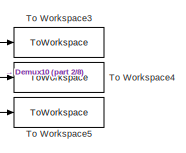
[diagram: Sensors - part 1/8, top center region]
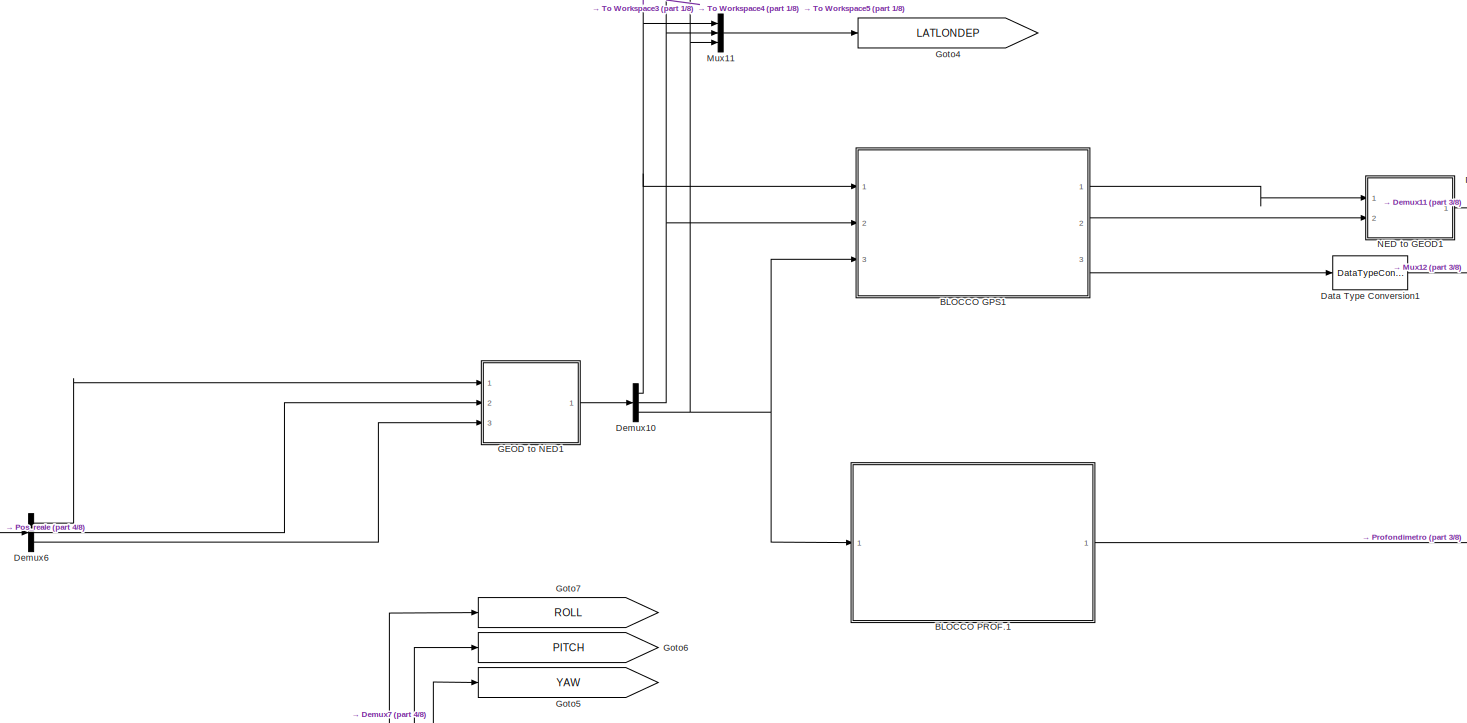
[diagram: Sensors - part 2/8, top center region]
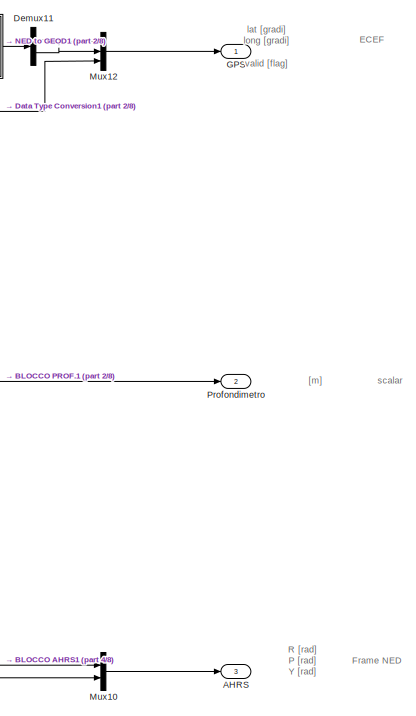
[diagram: Sensors - part 3/8, top right region]
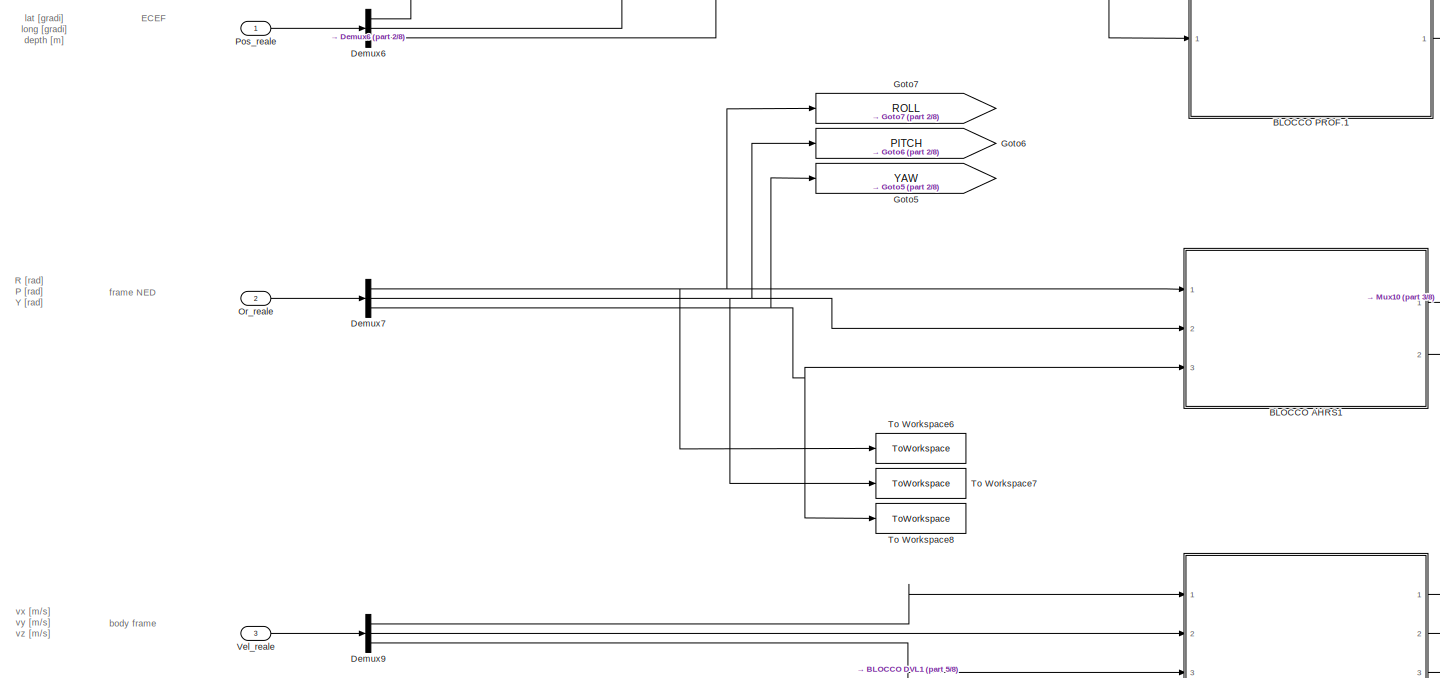
[diagram: Sensors - part 4/8, central region]
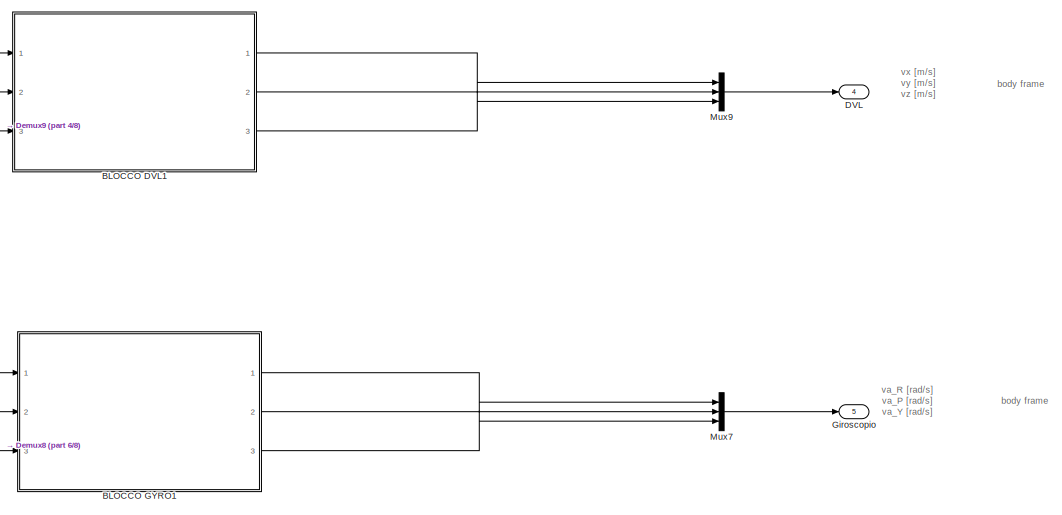
[diagram: Sensors - part 5/8, middle right region]
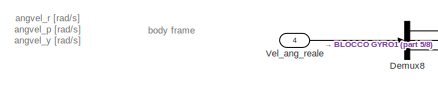
[diagram: Sensors - part 6/8, middle left region]
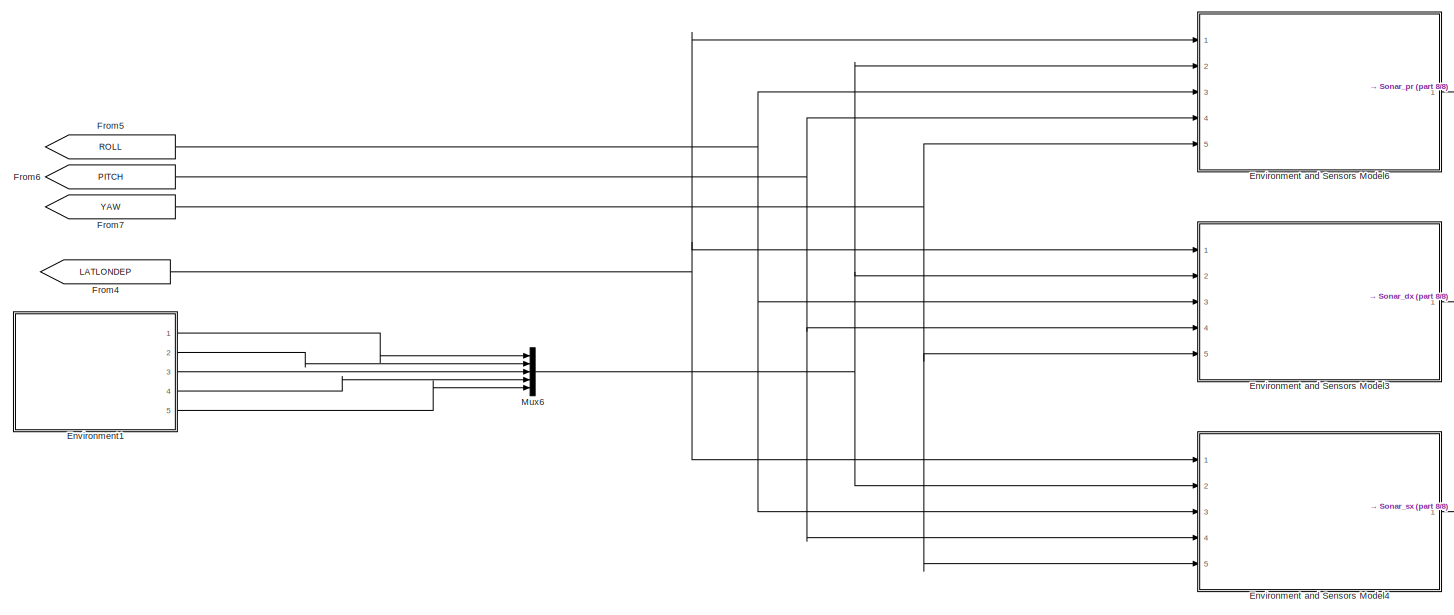
[diagram: Sensors - part 7/8, bottom center region]
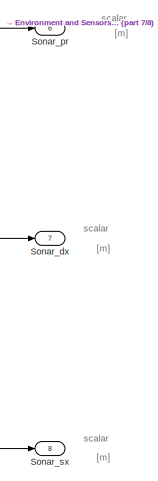
[diagram: Sensors - part 8/8, bottom right region]
BLOCK [SubSystem] Sensors
  Ports = [4, 8]
  RequestExecContextInheritance = off
BLOCK [Outport] Sensors/AHRS
  Port = 3
  PortDimensions = [3 1]
BLOCK [SubSystem] Sensors/BLOCCO AHRS1
  Ports = [3, 2]
  RequestExecContextInheritance = off
BLOCK [Mux] Sensors/BLOCCO AHRS1/Mux2
  DisplayOption = bar
  Inputs = 2
  Ports = [2, 1]
BLOCK [Quantizer] Sensors/BLOCCO AHRS1/Quantizer
  LinearizeAsGain = off
  QuantizationInterval = sens_Resolution_AHRS
BLOCK [Quantizer] Sensors/BLOCCO AHRS1/Quantizer1
  LinearizeAsGain = off
  QuantizationInterval = sens_Resolution_AHRS
BLOCK [Quantizer] Sensors/BLOCCO AHRS1/Quantizer2
  LinearizeAsGain = off
  QuantizationInterval = sens_Resolution_AHRS
BLOCK [Outport] Sensors/BLOCCO AHRS1/R-P NED
BLOCK [RandomNumber] Sensors/BLOCCO AHRS1/Random Number
  SampleTime = sens_Sample_time_AHRS
  Seed = 5678
  Variance = sens_Variance_AHRS_roll
BLOCK [RandomNumber] Sensors/BLOCCO AHRS1/Random Number1
  SampleTime = sens_Sample_time_AHRS
  Seed = 4562
  Variance = sens_Variance_AHRS_pitch
BLOCK [RandomNumber] Sensors/BLOCCO AHRS1/Random Number2
  SampleTime = sens_Sample_time_AHRS
  Seed = 1258
  Variance = sens_Variance_AHRS_yaw
BLOCK [Sum] Sensors/BLOCCO AHRS1/Sum1
  Inputs = |++
  Ports = [2, 1]
BLOCK [Sum] Sensors/BLOCCO AHRS1/Sum2
  Inputs = ++|
  Ports = [2, 1]
BLOCK [Sum] Sensors/BLOCCO AHRS1/Sum6
  Inputs = |++
  Ports = [2, 1]
BLOCK [Outport] Sensors/BLOCCO AHRS1/Y NED
  Port = 2
BLOCK [Inport] Sensors/BLOCCO AHRS1/orient_real
  SampleTime = sens_Sample_time_AHRS
BLOCK [Inport] Sensors/BLOCCO AHRS1/orient_real1
  Port = 2
  SampleTime = sens_Sample_time_AHRS
BLOCK [Inport] Sensors/BLOCCO AHRS1/orient_real2
  Port = 3
  SampleTime = sens_Sample_time_AHRS
BLOCK [SubSystem] Sensors/BLOCCO DVL1
  Ports = [3, 3]
  RequestExecContextInheritance = off
BLOCK [RandomNumber] Sensors/BLOCCO DVL1/ WNoise DVL x 
  SampleTime = sens_Sample_time_dvl
  Seed = 1234
  Variance = sens_Variance_DVL
BLOCK [Inport] Sensors/BLOCCO DVL1/DVL vx 
  SampleTime = sens_Sample_time_dvl
BLOCK [Outport] Sensors/BLOCCO DVL1/DVL vx BODY
BLOCK [Inport] Sensors/BLOCCO DVL1/DVL vy
  Port = 2
  SampleTime = sens_Sample_time_dvl
BLOCK [Outport] Sensors/BLOCCO DVL1/DVL vy BODY
  Port = 2
BLOCK [Inport] Sensors/BLOCCO DVL1/DVL vz
  Port = 3
  SampleTime = sens_Sample_time_dvl
BLOCK [Outport] Sensors/BLOCCO DVL1/DVL vz BODY
  Port = 3
BLOCK [Quantizer] Sensors/BLOCCO DVL1/Quantizer
  LinearizeAsGain = off
  QuantizationInterval = sens_Resolution_dvl
BLOCK [Quantizer] Sensors/BLOCCO DVL1/Quantizer1
  LinearizeAsGain = off
  QuantizationInterval = sens_Resolution_dvl
BLOCK [Quantizer] Sensors/BLOCCO DVL1/Quantizer2
  LinearizeAsGain = off
  QuantizationInterval = sens_Resolution_dvl
BLOCK [Sum] Sensors/BLOCCO DVL1/Sum1
  Inputs = |++
  Ports = [2, 1]
BLOCK [Sum] Sensors/BLOCCO DVL1/Sum2
  Inputs = |++
  Ports = [2, 1]
BLOCK [Sum] Sensors/BLOCCO DVL1/Sum3
  Inputs = |++
  Ports = [2, 1]
BLOCK [RandomNumber] Sensors/BLOCCO DVL1/WNoise DVL y
  SampleTime = sens_Sample_time_dvl
  Seed = 1235
  Variance = sens_Variance_DVL
BLOCK [RandomNumber] Sensors/BLOCCO DVL1/WNoise DVL z
  SampleTime = sens_Sample_time_dvl
  Seed = 1237
  Variance = sens_Variance_DVL
BLOCK [SubSystem] Sensors/BLOCCO GPS1
  Ports = [3, 3]
  RequestExecContextInheritance = off
BLOCK [Reference] Sensors/BLOCCO GPS1/Compare To Constant  REF=simulink/Logic and Bit
Operations/Compare
To Constant
  Ports = [1, 1]
  SourceBlock = simulink/Logic and Bit\nOperations/Compare\nTo Constant
  SourceProductBaseCode = SL
  SourceType = Compare To Constant
BLOCK [Inport] Sensors/BLOCCO GPS1/DEP
  Port = 3
  SampleTime = sens_Sample_time_GPS
BLOCK [Outport] Sensors/BLOCCO GPS1/FLAG
  Port = 3
BLOCK [Outport] Sensors/BLOCCO GPS1/GPS LAT 
BLOCK [Outport] Sensors/BLOCCO GPS1/GPS LON 
  Port = 2
BLOCK [Inport] Sensors/BLOCCO GPS1/LAT 
  SampleTime = sens_Sample_time_GPS
BLOCK [Inport] Sensors/BLOCCO GPS1/LON 
  Port = 2
  SampleTime = sens_Sample_time_GPS
BLOCK [Quantizer] Sensors/BLOCCO GPS1/Quantizer
  QuantizationInterval = sens_Resolution_GPS
BLOCK [Quantizer] Sensors/BLOCCO GPS1/Quantizer1
  LinearizeAsGain = off
  QuantizationInterval = sens_Resolution_GPS
BLOCK [Sum] Sensors/BLOCCO GPS1/Sum2
  Inputs = ++|
  Ports = [2, 1]
BLOCK [Sum] Sensors/BLOCCO GPS1/Sum3
  Inputs = |++
  Ports = [2, 1]
BLOCK [RandomNumber] Sensors/BLOCCO GPS1/WN LAT
  SampleTime = sens_Sample_time_GPS
  Seed = 8765
  Variance = sens_Variance_GPS
BLOCK [RandomNumber] Sensors/BLOCCO GPS1/WN LON
  SampleTime = sens_Sample_time_GPS
  Seed = 9876
  Variance = sens_Variance_GPS
BLOCK [SubSystem] Sensors/BLOCCO GYRO1
  Ports = [3, 3]
  RequestExecContextInheritance = off
BLOCK [Clock] Sensors/BLOCCO GYRO1/Clock1
BLOCK [Outport] Sensors/BLOCCO GYRO1/Gyro P BODY
  Port = 2
BLOCK [Outport] Sensors/BLOCCO GYRO1/Gyro R BODY
BLOCK [Outport] Sensors/BLOCCO GYRO1/Gyro Y BODY
  Port = 3
BLOCK [Quantizer] Sensors/BLOCCO GYRO1/Quantizer
  LinearizeAsGain = off
  QuantizationInterval = sens_Resolution_GYRO
BLOCK [Quantizer] Sensors/BLOCCO GYRO1/Quantizer1
  LinearizeAsGain = off
  QuantizationInterval = sens_Resolution_GYRO
BLOCK [Quantizer] Sensors/BLOCCO GYRO1/Quantizer2
  LinearizeAsGain = off
  QuantizationInterval = sens_Resolution_GYRO
BLOCK [SubSystem] Sensors/BLOCCO GYRO1/Subsystem
  Ports = [1, 1]
  RequestExecContextInheritance = off
BLOCK [Outport] Sensors/BLOCCO GYRO1/Subsystem/Bias_G
BLOCK [SubSystem] Sensors/BLOCCO GYRO1/Subsystem/GEOD to NED
  ErrorFcn = Stateflow.Translate.translate
  PermitHierarchicalResolution = ExplicitOnly
  Ports = [1, 1]
  RequestExecContextInheritance = off
  SFBlockType = MATLAB Function
  TreatAsAtomicUnit = on
BLOCK [Demux] Sensors/BLOCCO GYRO1/Subsystem/GEOD to NED/ Demux 
  Outputs = 1
  Ports = [1, 1]
BLOCK [S-Function] Sensors/BLOCCO GYRO1/Subsystem/GEOD to NED/ SFunction 
  EnableBusSupport = off
  FunctionName = sf_sfun
  PortCounts = [1 2]
  Ports = [1, 2]
  SFcnIsStateOwnerBlock = off
  SFunctionDeploymentMode = off
  Tag = Stateflow S-Function 67
BLOCK [Terminator] Sensors/BLOCCO GYRO1/Subsystem/GEOD to NED/ Terminator 
BLOCK [Outport] Sensors/BLOCCO GYRO1/Subsystem/GEOD to NED/Bias_G
BLOCK [Inport] Sensors/BLOCCO GYRO1/Subsystem/GEOD to NED/t
BLOCK [Inport] Sensors/BLOCCO GYRO1/Subsystem/t
  SampleTime = sens_Sample_time_GYRO
BLOCK [Sum] Sensors/BLOCCO GYRO1/Sum1
  Inputs = +++
  Ports = [3, 1]
BLOCK [Sum] Sensors/BLOCCO GYRO1/Sum2
  Inputs = +++
  Ports = [3, 1]
BLOCK [Sum] Sensors/BLOCCO GYRO1/Sum5
  Inputs = +++
  Ports = [3, 1]
BLOCK [RandomNumber] Sensors/BLOCCO GYRO1/WN Gyro P
  SampleTime = sens_Sample_time_GYRO
  Seed = 2347
  Variance = sens_Variance_GYRO
BLOCK [RandomNumber] Sensors/BLOCCO GYRO1/WN Gyro R
  SampleTime = sens_Sample_time_GYRO
  Seed = 2346
  Variance = sens_Variance_GYRO
BLOCK [RandomNumber] Sensors/BLOCCO GYRO1/WN Gyro Y
  SampleTime = sens_Sample_time_GYRO
  Seed = 2348
  Variance = sens_Variance_GYRO
BLOCK [Inport] Sensors/BLOCCO GYRO1/angvel_rea1l
  SampleTime = sens_Sample_time_GYRO
BLOCK [Inport] Sensors/BLOCCO GYRO1/angvel_real2
  Port = 2
  SampleTime = sens_Sample_time_GYRO
BLOCK [Inport] Sensors/BLOCCO GYRO1/angvel_real3
  Port = 3
  SampleTime = sens_Sample_time_GYRO
BLOCK [SubSystem] Sensors/BLOCCO PROF.1
  Ports = [1, 1]
  RequestExecContextInheritance = off
BLOCK [Reference] Sensors/BLOCCO PROF.1/Compare To Constant1  REF=simulink/Logic and Bit
Operations/Compare
To Constant
  Ports = [1, 1]
  SourceBlock = simulink/Logic and Bit\nOperations/Compare\nTo Constant
  SourceProductBaseCode = SL
  SourceType = Compare To Constant
BLOCK [Inport] Sensors/BLOCCO PROF.1/DEP
  SampleTime = sens_Sample_time_depth
BLOCK [Outport] Sensors/BLOCCO PROF.1/Profondimetro
BLOCK [Quantizer] Sensors/BLOCCO PROF.1/Quantizer
  LinearizeAsGain = off
  QuantizationInterval = sens_Resolution_depth
BLOCK [Sum] Sensors/BLOCCO PROF.1/Sum3
  Inputs = ++|
  Ports = [2, 1]
BLOCK [Switch] Sensors/BLOCCO PROF.1/Switch
  Criteria = u2 > Threshold
  InputSameDT = off
  SaturateOnIntegerOverflow = off
BLOCK [RandomNumber] Sensors/BLOCCO PROF.1/WN Prof. h< 50 
  SampleTime = sens_Sample_time_depth
  Seed = 6543
  Variance = sens_Variance_depth1
BLOCK [RandomNumber] Sensors/BLOCCO PROF.1/WN Prof. h>50
  SampleTime = sens_Sample_time_depth
  Seed = 3210
  Variance = sens_Variance_depth2
BLOCK [Outport] Sensors/DVL
  Port = 4
  PortDimensions = [3 1]
BLOCK [DataTypeConversion] Sensors/Data Type Conversion1
  OutDataTypeStr = double
  RndMeth = Floor
  SaturateOnIntegerOverflow = off
BLOCK [Demux] Sensors/Demux10
  Outputs = 3
  Ports = [1, 3]
BLOCK [Demux] Sensors/Demux11
  Outputs = 2
  Ports = [1, 2]
BLOCK [Demux] Sensors/Demux6
  Outputs = 3
  Ports = [1, 3]
BLOCK [Demux] Sensors/Demux7
  Outputs = 3
  Ports = [1, 3]
BLOCK [Demux] Sensors/Demux8
  Outputs = 3
  Ports = [1, 3]
BLOCK [Demux] Sensors/Demux9
  Outputs = 3
  Ports = [1, 3]
BLOCK [SubSystem] Sensors/Environment and Sensors Model3
  Ports = [5, 1]
  RequestExecContextInheritance = off
BLOCK [RandomNumber] Sensors/Environment and Sensors Model3/ WN Sonar DX 
  SampleTime = sens_Sample_time_sonar
  Seed = 4325
  Variance = sens_Variance_sonar
BLOCK [Inport] Sensors/Environment and Sensors Model3/AHRS Pitch
  Port = 4
  SampleTime = sens_Sample_time_sonar
BLOCK [Inport] Sensors/Environment and Sensors Model3/AHRS Roll
  Port = 3
  SampleTime = sens_Sample_time_sonar
BLOCK [Inport] Sensors/Environment and Sensors Model3/AHRS Yaw
  Port = 5
  SampleTime = sens_Sample_time_sonar
BLOCK [Constant] Sensors/Environment and Sensors Model3/Constant
  Value = sens_distCM
BLOCK [Demux] Sensors/Environment and Sensors Model3/Demux3
  Outputs = 5
  Ports = [1, 5]
BLOCK [Inport] Sensors/Environment and Sensors Model3/Environment
  Port = 2
  SampleTime = sens_Sample_time_sonar
BLOCK [Inport] Sensors/Environment and Sensors Model3/LAT-LON
  SampleTime = sens_Sample_time_sonar
BLOCK [SubSystem] Sensors/Environment and Sensors Model3/MATLAB Function1
  ErrorFcn = Stateflow.Translate.translate
  PermitHierarchicalResolution = ExplicitOnly
  Ports = [9, 1]
  RequestExecContextInheritance = off
  SFBlockType = MATLAB Function
  TreatAsAtomicUnit = on
BLOCK [Demux] Sensors/Environment and Sensors Model3/MATLAB Function1/ Demux 
  Outputs = 1
  Ports = [1, 1]
BLOCK [S-Function] Sensors/Environment and Sensors Model3/MATLAB Function1/ SFunction 
  EnableBusSupport = off
  FunctionName = sf_sfun
  PortCounts = [9 2]
  Ports = [9, 2]
  SFcnIsStateOwnerBlock = off
  SFunctionDeploymentMode = off
  Tag = Stateflow S-Function 77
BLOCK [Terminator] Sensors/Environment and Sensors Model3/MATLAB Function1/ Terminator 
BLOCK [Inport] Sensors/Environment and Sensors Model3/MATLAB Function1/Pitch
  Port = 8
BLOCK [Inport] Sensors/Environment and Sensors Model3/MATLAB Function1/Roll
  Port = 7
BLOCK [Inport] Sensors/Environment and Sensors Model3/MATLAB Function1/Yaw
  Port = 9
BLOCK [Outport] Sensors/Environment and Sensors Model3/MATLAB Function1/dist
BLOCK [Inport] Sensors/Environment and Sensors Model3/MATLAB Function1/plane_AB
  Port = 2
BLOCK [Inport] Sensors/Environment and Sensors Model3/MATLAB Function1/plane_BC
  Port = 3
BLOCK [Inport] Sensors/Environment and Sensors Model3/MATLAB Function1/plane_CD
  Port = 4
BLOCK [Inport] Sensors/Environment and Sensors Model3/MATLAB Function1/plane_DA
  Port = 5
BLOCK [Inport] Sensors/Environment and Sensors Model3/MATLAB Function1/plane_W
  Port = 6
BLOCK [Inport] Sensors/Environment and Sensors Model3/MATLAB Function1/pos
BLOCK [Quantizer] Sensors/Environment and Sensors Model3/Quantizer
  LinearizeAsGain = off
  QuantizationInterval = sens_Resolution_sonar
BLOCK [Outport] Sensors/Environment and Sensors Model3/Sonar DX
BLOCK [Sum] Sensors/Environment and Sensors Model3/Sum1
  Inputs = |+-
  Ports = [2, 1]
BLOCK [Sum] Sensors/Environment and Sensors Model3/Sum2
  Inputs = |++
  Ports = [2, 1]
BLOCK [SubSystem] Sensors/Environment and Sensors Model4
  Ports = [5, 1]
  RequestExecContextInheritance = off
BLOCK [RandomNumber] Sensors/Environment and Sensors Model4/ WN Sonar SX 
  SampleTime = sens_Sample_time_sonar
  Seed = 4321
  Variance = sens_Variance_sonar
BLOCK [Inport] Sensors/Environment and Sensors Model4/AHRS Pitch
  Port = 4
  SampleTime = sens_Sample_time_sonar
BLOCK [Inport] Sensors/Environment and Sensors Model4/AHRS Roll
  Port = 3
  SampleTime = sens_Sample_time_sonar
BLOCK [Inport] Sensors/Environment and Sensors Model4/AHRS Yaw
  Port = 5
  SampleTime = sens_Sample_time_sonar
BLOCK [Constant] Sensors/Environment and Sensors Model4/Constant
  Value = sens_distCM
BLOCK [Demux] Sensors/Environment and Sensors Model4/Demux3
  Outputs = 5
  Ports = [1, 5]
BLOCK [Inport] Sensors/Environment and Sensors Model4/Environment
  Port = 2
  SampleTime = sens_Sample_time_sonar
BLOCK [Inport] Sensors/Environment and Sensors Model4/LAT-LON
  SampleTime = sens_Sample_time_sonar
BLOCK [SubSystem] Sensors/Environment and Sensors Model4/MATLAB Function1
  ErrorFcn = Stateflow.Translate.translate
  PermitHierarchicalResolution = ExplicitOnly
  Ports = [9, 1]
  RequestExecContextInheritance = off
  SFBlockType = MATLAB Function
  TreatAsAtomicUnit = on
BLOCK [Demux] Sensors/Environment and Sensors Model4/MATLAB Function1/ Demux 
  Outputs = 1
  Ports = [1, 1]
BLOCK [S-Function] Sensors/Environment and Sensors Model4/MATLAB Function1/ SFunction 
  EnableBusSupport = off
  FunctionName = sf_sfun
  PortCounts = [9 2]
  Ports = [9, 2]
  SFcnIsStateOwnerBlock = off
  SFunctionDeploymentMode = off
  Tag = Stateflow S-Function 78
BLOCK [Terminator] Sensors/Environment and Sensors Model4/MATLAB Function1/ Terminator 
BLOCK [Inport] Sensors/Environment and Sensors Model4/MATLAB Function1/Pitch
  Port = 8
BLOCK [Inport] Sensors/Environment and Sensors Model4/MATLAB Function1/Roll
  Port = 7
BLOCK [Inport] Sensors/Environment and Sensors Model4/MATLAB Function1/Yaw
  Port = 9
BLOCK [Outport] Sensors/Environment and Sensors Model4/MATLAB Function1/dist
BLOCK [Inport] Sensors/Environment and Sensors Model4/MATLAB Function1/plane_AB
  Port = 2
BLOCK [Inport] Sensors/Environment and Sensors Model4/MATLAB Function1/plane_BC
  Port = 3
BLOCK [Inport] Sensors/Environment and Sensors Model4/MATLAB Function1/plane_CD
  Port = 4
BLOCK [Inport] Sensors/Environment and Sensors Model4/MATLAB Function1/plane_DA
  Port = 5
BLOCK [Inport] Sensors/Environment and Sensors Model4/MATLAB Function1/plane_W
  Port = 6
BLOCK [Inport] Sensors/Environment and Sensors Model4/MATLAB Function1/pos
BLOCK [Quantizer] Sensors/Environment and Sensors Model4/Quantizer
  LinearizeAsGain = off
  QuantizationInterval = sens_Resolution_sonar
BLOCK [Outport] Sensors/Environment and Sensors Model4/Sonar SX
BLOCK [Sum] Sensors/Environment and Sensors Model4/Sum1
  Inputs = |+-
  Ports = [2, 1]
BLOCK [Sum] Sensors/Environment and Sensors Model4/Sum2
  Inputs = |++
  Ports = [2, 1]
BLOCK [SubSystem] Sensors/Environment and Sensors Model6
  Ports = [5, 1]
  RequestExecContextInheritance = off
BLOCK [RandomNumber] Sensors/Environment and Sensors Model6/ WN Sonar Prua 
  SampleTime = sens_Sample_time_sonar
  Seed = 1234
  Variance = sens_Variance_sonar
BLOCK [Inport] Sensors/Environment and Sensors Model6/AHRS Pitch
  Port = 4
  SampleTime = sens_Sample_time_sonar
BLOCK [Inport] Sensors/Environment and Sensors Model6/AHRS Roll
  Port = 3
  SampleTime = sens_Sample_time_sonar
BLOCK [Inport] Sensors/Environment and Sensors Model6/AHRS Yaw
  Port = 5
  SampleTime = sens_Sample_time_sonar
BLOCK [Constant] Sensors/Environment and Sensors Model6/Constant
  Value = sens_distCM
BLOCK [Demux] Sensors/Environment and Sensors Model6/Demux3
  Outputs = 5
  Ports = [1, 5]
BLOCK [Inport] Sensors/Environment and Sensors Model6/Environment
  Port = 2
  SampleTime = sens_Sample_time_sonar
BLOCK [Inport] Sensors/Environment and Sensors Model6/LAT-LON
  SampleTime = sens_Sample_time_sonar
BLOCK [SubSystem] Sensors/Environment and Sensors Model6/MATLAB Function1
  ErrorFcn = Stateflow.Translate.translate
  PermitHierarchicalResolution = ExplicitOnly
  Ports = [9, 1]
  RequestExecContextInheritance = off
  SFBlockType = MATLAB Function
  TreatAsAtomicUnit = on
BLOCK [Demux] Sensors/Environment and Sensors Model6/MATLAB Function1/ Demux 
  Outputs = 1
  Ports = [1, 1]
BLOCK [S-Function] Sensors/Environment and Sensors Model6/MATLAB Function1/ SFunction 
  EnableBusSupport = off
  FunctionName = sf_sfun
  PortCounts = [9 2]
  Ports = [9, 2]
  SFcnIsStateOwnerBlock = off
  SFunctionDeploymentMode = off
  Tag = Stateflow S-Function 79
BLOCK [Terminator] Sensors/Environment and Sensors Model6/MATLAB Function1/ Terminator 
BLOCK [Inport] Sensors/Environment and Sensors Model6/MATLAB Function1/Pitch
  Port = 8
BLOCK [Inport] Sensors/Environment and Sensors Model6/MATLAB Function1/Roll
  Port = 7
BLOCK [Inport] Sensors/Environment and Sensors Model6/MATLAB Function1/Yaw
  Port = 9
BLOCK [Outport] Sensors/Environment and Sensors Model6/MATLAB Function1/dist
BLOCK [Inport] Sensors/Environment and Sensors Model6/MATLAB Function1/plane_AB
  Port = 2
BLOCK [Inport] Sensors/Environment and Sensors Model6/MATLAB Function1/plane_BC
  Port = 3
BLOCK [Inport] Sensors/Environment and Sensors Model6/MATLAB Function1/plane_CD
  Port = 4
BLOCK [Inport] Sensors/Environment and Sensors Model6/MATLAB Function1/plane_DA
  Port = 5
BLOCK [Inport] Sensors/Environment and Sensors Model6/MATLAB Function1/plane_W
  Port = 6
BLOCK [Inport] Sensors/Environment and Sensors Model6/MATLAB Function1/pos
BLOCK [Quantizer] Sensors/Environment and Sensors Model6/Quantizer
  LinearizeAsGain = off
  QuantizationInterval = sens_Resolution_sonar
BLOCK [Outport] Sensors/Environment and Sensors Model6/Sonar Prua
BLOCK [Sum] Sensors/Environment and Sensors Model6/Sum1
  Inputs = |+-
  Ports = [2, 1]
BLOCK [Sum] Sensors/Environment and Sensors Model6/Sum2
  Inputs = |++
  Ports = [2, 1]
BLOCK [SubSystem] Sensors/Environment1
  ErrorFcn = Stateflow.Translate.translate
  PermitHierarchicalResolution = ExplicitOnly
  Ports = [0, 5]
  RequestExecContextInheritance = off
  SFBlockType = MATLAB Function
  TreatAsAtomicUnit = on
BLOCK [Demux] Sensors/Environment1/ Demux 
  Outputs = 1
  Ports = [1, 1]
BLOCK [Ground] Sensors/Environment1/ Ground 
BLOCK [S-Function] Sensors/Environment1/ SFunction 
  EnableBusSupport = off
  FunctionName = sf_sfun
  PortCounts = [1 6]
  Ports = [1, 6]
  SFcnIsStateOwnerBlock = off
  SFunctionDeploymentMode = off
  Tag = Stateflow S-Function 80
BLOCK [Terminator] Sensors/Environment1/ Terminator 
BLOCK [Outport] Sensors/Environment1/plane_AB
BLOCK [Outport] Sensors/Environment1/plane_BC
  Port = 2
BLOCK [Outport] Sensors/Environment1/plane_CD
  Port = 3
BLOCK [Outport] Sensors/Environment1/plane_DA
  Port = 4
BLOCK [Outport] Sensors/Environment1/plane_W
  Port = 5
BLOCK [From] Sensors/From4
  GotoTag = LATLONDEP
BLOCK [From] Sensors/From5
  GotoTag = ROLL
BLOCK [From] Sensors/From6
  GotoTag = PITCH
BLOCK [From] Sensors/From7
  GotoTag = YAW
BLOCK [SubSystem] Sensors/GEOD to NED1
  ErrorFcn = Stateflow.Translate.translate
  PermitHierarchicalResolution = ExplicitOnly
  Ports = [3, 1]
  RequestExecContextInheritance = off
  SFBlockType = MATLAB Function
  TreatAsAtomicUnit = on
BLOCK [Demux] Sensors/GEOD to NED1/ Demux 
  Outputs = 1
  Ports = [1, 1]
BLOCK [S-Function] Sensors/GEOD to NED1/ SFunction 
  EnableBusSupport = off
  FunctionName = sf_sfun
  PortCounts = [3 2]
  Ports = [3, 2]
  SFcnIsStateOwnerBlock = off
  SFunctionDeploymentMode = off
  Tag = Stateflow S-Function 81
BLOCK [Terminator] Sensors/GEOD to NED1/ Terminator 
BLOCK [Inport] Sensors/GEOD to NED1/h
  Port = 3
BLOCK [Inport] Sensors/GEOD to NED1/lat
BLOCK [Inport] Sensors/GEOD to NED1/lon
  Port = 2
BLOCK [Outport] Sensors/GEOD to NED1/z
BLOCK [Outport] Sensors/GPS
  PortDimensions = [3 1]
BLOCK [Outport] Sensors/Giroscopio
  Port = 5
  PortDimensions = [3 1]
BLOCK [Goto] Sensors/Goto4
  GotoTag = LATLONDEP
BLOCK [Goto] Sensors/Goto5
  GotoTag = YAW
BLOCK [Goto] Sensors/Goto6
  GotoTag = PITCH
BLOCK [Goto] Sensors/Goto7
  GotoTag = ROLL
BLOCK [Mux] Sensors/Mux10
  DisplayOption = bar
  Inputs = 2
  Ports = [2, 1]
BLOCK [Mux] Sensors/Mux11
  DisplayOption = bar
  Inputs = 3
  Ports = [3, 1]
BLOCK [Mux] Sensors/Mux12
  DisplayOption = bar
  Inputs = 3
  Ports = [3, 1]
BLOCK [Mux] Sensors/Mux6
  DisplayOption = bar
  Inputs = 5
  Ports = [5, 1]
BLOCK [Mux] Sensors/Mux7
  DisplayOption = bar
  Inputs = 3
  Ports = [3, 1]
BLOCK [Mux] Sensors/Mux9
  DisplayOption = bar
  Inputs = 3
  Ports = [3, 1]
BLOCK [SubSystem] Sensors/NED to GEOD1
  ErrorFcn = Stateflow.Translate.translate
  PermitHierarchicalResolution = ExplicitOnly
  Ports = [2, 1]
  RequestExecContextInheritance = off
  SFBlockType = MATLAB Function
  TreatAsAtomicUnit = on
BLOCK [Demux] Sensors/NED to GEOD1/ Demux 
  Outputs = 1
  Ports = [1, 1]
BLOCK [S-Function] Sensors/NED to GEOD1/ SFunction 
  EnableBusSupport = off
  FunctionName = sf_sfun
  PortCounts = [2 2]
  Ports = [2, 2]
  SFcnIsStateOwnerBlock = off
  SFunctionDeploymentMode = off
  Tag = Stateflow S-Function 82
BLOCK [Terminator] Sensors/NED to GEOD1/ Terminator 
BLOCK [Inport] Sensors/NED to GEOD1/E
  Port = 2
BLOCK [Inport] Sensors/NED to GEOD1/N
BLOCK [Outport] Sensors/NED to GEOD1/z
BLOCK [Inport] Sensors/Or_reale
  Port = 2
  PortDimensions = [3 1]
BLOCK [Inport] Sensors/Pos_reale
  PortDimensions = [3 1]
BLOCK [Outport] Sensors/Profondimetro
  Port = 2
  PortDimensions = 1
BLOCK [Outport] Sensors/Sonar_dx
  Port = 7
  PortDimensions = 1
BLOCK [Outport] Sensors/Sonar_pr
  Port = 6
  PortDimensions = 1
BLOCK [Outport] Sensors/Sonar_sx
  Port = 8
  PortDimensions = 1
BLOCK [ToWorkspace] Sensors/To Workspace3
  Decimation = 10
  FixptAsFi = on
  MaxDataPoints = inf
  Ports = [1]
  SampleTime = -1
  SaveFormat = Timeseries
  VariableName = Lat_ts
BLOCK [ToWorkspace] Sensors/To Workspace4
  Decimation = 10
  FixptAsFi = on
  MaxDataPoints = inf
  Ports = [1]
  SampleTime = -1
  SaveFormat = Timeseries
  VariableName = Lon_ts
BLOCK [ToWorkspace] Sensors/To Workspace5
  Decimation = 10
  FixptAsFi = on
  MaxDataPoints = inf
  Ports = [1]
  SampleTime = -1
  SaveFormat = Timeseries
  VariableName = Depth_ts
BLOCK [ToWorkspace] Sensors/To Workspace6
  Decimation = 10
  FixptAsFi = on
  MaxDataPoints = inf
  Ports = [1]
  SampleTime = -1
  SaveFormat = Timeseries
  VariableName = Roll_ts
BLOCK [ToWorkspace] Sensors/To Workspace7
  Decimation = 10
  FixptAsFi = on
  MaxDataPoints = inf
  Ports = [1]
  SampleTime = -1
  SaveFormat = Timeseries
  VariableName = Pitch_ts
BLOCK [ToWorkspace] Sensors/To Workspace8
  Decimation = 10
  FixptAsFi = on
  MaxDataPoints = inf
  Ports = [1]
  SampleTime = -1
  SaveFormat = Timeseries
  VariableName = Yaw_ts
BLOCK [Inport] Sensors/Vel_ang_reale
  Port = 4
  PortDimensions = [3 1]
BLOCK [Inport] Sensors/Vel_reale
  Port = 3
  PortDimensions = [3 1]
ANNOTATION (root): DEEP PU.R.P.L.E (PUffer Robot for Pool Levee Evaluation)
ANNOTATION (root): WALK THIS WAY
ANNOTATION (root): SMOKE ON THE WATER
ANNOTATION (root): ANOTHER BRICK IN THE WALL
ANNOTATION (root): UNDER PRESSURE
ANNOTATION (root): MESSAGE IN A BOTTLE
ANNOTATION Controller_mk4_v3: CONTROLLORI -orientazione NED (stabilizzazione) *** -distanza BODY (dalle pareti) ** -velocità BODY * *: priorità crescente
ANNOTATION Controller_mk4_v3: INFO -NED: riferita ad angolo sud-ovest -in superfice usiamo Or-d -in profondità usiamo orp -mixer controlla che i propulsori non saturino
ANNOTATION Controller_mk4_v3: BODY frame
ANNOTATION Controller_mk4_v3: Controller
ANNOTATION Controller_mk4_v3: LEGENDA dpp: distanza rispetto alla parete in pattugliamento dds: distanza rispetto alla parete successiva orp: orientazione rispetto alla parete da pattugliare n: numero dei giri dei motori tau: coppie in terna body T: spinte agli attuatori
ANNOTATION Controller_mk4_v3: LLD
ANNOTATION Controller_mk4_v3: NED frame
ANNOTATION Controller_mk4_v3: R [rad] P [rad] Y [rad]
ANNOTATION Controller_mk4_v3: Riferimenti
ANNOTATION Controller_mk4_v3: Stime
ANNOTATION Controller_mk4_v3: dpp(module) [m]
ANNOTATION Controller_mk4_v3: dps(module) [m]
ANNOTATION Controller_mk4_v3: lat [gradi] long [gradi] depth [m]
ANNOTATION Controller_mk4_v3: n1 [rad/s] n2 [rad/s] n3 [ rad/s] n4 [rad/s] n5 [rad/s] n6 [ rad/s]
ANNOTATION Controller_mk4_v3: orp(module) [rad]
ANNOTATION Controller_mk4_v3: scalar
ANNOTATION Controller_mk4_v3: va_p [rad/s] va_q [rad/s] va_r [ rad/s]
ANNOTATION Controller_mk4_v3: vel(module) [m/s]
ANNOTATION Controller_mk4_v3: vx [m/s] vy [m/s] vx [ m/s]
ANNOTATION Controller_mk4_v3/C_pos: CONSIDERAZIONI: - il gain è il guadagno del controllore posizione. - é presente una doppia retroazione quindi come ingressi presenta sia errore sulla posizione che veloctà - le tau angolari sono 0 perchè questo controllore controlla solo il movimento lungo gli assi - C_vel è lo stesso del blocco controllore velocità - enable serve per resettare l'azione integrale
ANNOTATION Controller_mk4_v3/C_vel: CONSIDERAZIONI: - il controllore è un PI costruito con sisotool - il modello considerato è su un singolo asse con massa e damping
ANNOTATION Controller_mk4_v3/InputPos_Organizer: 1 in pattugliamento 0 in frenata
ANNOTATION Mission_supervisor_v3: Orp [deg]
ANNOTATION Mission_supervisor_v3: BODY frame
ANNOTATION Mission_supervisor_v3: Dpp [m]
ANNOTATION Mission_supervisor_v3: Dpp: distanza dalla parete pattugliata Dps: Distanza dalla parete successiva Orp: orientazione rispetto alla parete pattugliata Or_d: orientazione in superficie
ANNOTATION Mission_supervisor_v3: Dps [m]
ANNOTATION Mission_supervisor_v3: ECEF ECEF NED
ANNOTATION Mission_supervisor_v3: Orp [rad]
ANNOTATION Mission_supervisor_v3: R [rad] P [rad] Y [rad]
ANNOTATION Mission_supervisor_v3: Roll [rad] Pitch [rad] Yaw [rad]
ANNOTATION Mission_supervisor_v3: Vel [m/s]
ANNOTATION Mission_supervisor_v3: lat [gradi] long [gradi] depth [m]
ANNOTATION Mission_supervisor_v3: vx [m/s] vy [m/s] vx [m/s]
ANNOTATION Mission_supervisor_v3/Mission_Supervisor: Aggiornamento del current_state
ANNOTATION Mission_supervisor_v3/Mission_Supervisor: Aggiornamento della parete
ANNOTATION Mission_supervisor_v3/Mission_Supervisor: Aggiornamento dello stato interno
ANNOTATION Mission_supervisor_v3/Mission_Supervisor: Generatore riferimenti interni
ANNOTATION Mission_supervisor_v3/Mission_Supervisor: Gestore di riferimenti
ANNOTATION Mission_supervisor_v3/Mission_Supervisor: Gestore emergenza
ANNOTATION Model: Body frame p [rad/s] q [rad/s] r [rad/s]
ANNOTATION Model: Body frame u [m/s] v [m/s] w [m/s]
ANNOTATION Model: ECEF frame lat [deg] long [deg] depth [m]
ANNOTATION Model: NED frame R [rad] P [rad] Y [rad]
ANNOTATION Model/Vehicle Model/P1: n is the rotational speed of the thruster V is the speed component of the water along the thruster axis n is saturated according to data a dead zone is considered according to data the thruster is characterised by 1st order dynamics (tau = 0.2s)
ANNOTATION Model/Vehicle Model/P2: n is the rotational speed of the thruster V is the speed component of the water along the thruster axis n is saturated according to data a dead zone is considered according to data the thruster is characterised by 1st order dynamics (tau = 0.2s)
ANNOTATION Model/Vehicle Model/P3: n is the rotational speed of the thruster V is the speed component of the water along the thruster axis n is saturated according to data a dead zone is considered according to data the thruster is characterised by 1st order dynamics (tau = 0.2s)
ANNOTATION Model/Vehicle Model/P4: n is the rotational speed of the thruster V is the speed component of the water along the thruster axis n is saturated according to data a dead zone is considered according to data the thruster is characterised by 1st order dynamics (tau = 0.2s)
ANNOTATION Model/Vehicle Model/P5: n is the rotational speed of the thruster V is the speed component of the water along the thruster axis n is saturated according to data a dead zone is considered according to data the thruster is characterised by 1st order dynamics (tau = 0.2s)
ANNOTATION Model/Vehicle Model/P6: n is the rotational speed of the thruster V is the speed component of the water along the thruster axis n is saturated according to data a dead zone is considered according to data the thruster is characterised by 1st order dynamics (tau = 0.2s)
ANNOTATION Navigation: R [rad] P [rad] Y [rad]
ANNOTATION Navigation: BODY
ANNOTATION Navigation: DISTANZA DALLE PARETI Stimata
ANNOTATION Navigation: ECEF
ANNOTATION Navigation: Lat [gradi] Long [gradi] flag data_valid
ANNOTATION Navigation: Misure dai sonar
ANNOTATION Navigation: NED
ANNOTATION Navigation: Vettore POSIZIONE & ORIENTAZIONE
ANNOTATION Navigation: Vettore POSIZIONE & ORIENTAZIONE Stimata
ANNOTATION Navigation: Vettore VELOCITA'
ANNOTATION Navigation: Vettore VELOCITA' Stimata
ANNOTATION Navigation: [m]
ANNOTATION Navigation: dpp [m]
ANNOTATION Navigation: lat [gradi] long [gradi] depth [m]
ANNOTATION Navigation: orientazione [deg]
ANNOTATION Navigation: scalar
ANNOTATION Navigation: va_R [m/s] va_P [m/s] va_Y [ m/s]
ANNOTATION Navigation: va_R [rad/s] va_P [rad/s] va_Y [rad/s]
ANNOTATION Navigation: vx [m/s] vy [m/s] vx [m/s]
ANNOTATION Navigation: vx [m/s] vy [m/s] vz [m/s]
ANNOTATION Navigation/Extended Kalman Filter: FILTRO DI KALMAN
ANNOTATION Sensors: va_R [rad/s] va_P [rad/s] va_Y [rad/s]
ANNOTATION Sensors: ECEF
ANNOTATION Sensors: Frame NED
ANNOTATION Sensors: R [rad] P [rad] Y [rad]
ANNOTATION Sensors: [m]
ANNOTATION Sensors: angvel_r [rad/s] angvel_p [rad/s] angvel_y [rad/s]
ANNOTATION Sensors: body frame
ANNOTATION Sensors: frame NED
ANNOTATION Sensors: lat [gradi] long [gradi] depth [m]
ANNOTATION Sensors: lat [gradi] long [gradi] valid [flag]
ANNOTATION Sensors: scalar
ANNOTATION Sensors: vx [m/s] vy [m/s] vz [m/s]
ANNOTATION Sensors/BLOCCO AHRS1: R [rad] P [rad]
ANNOTATION Sensors/BLOCCO AHRS1: Y [rad]
ANNOTATION Sensors/BLOCCO GPS1: Controllo per antenna
ANNOTATION Sensors/BLOCCO PROF.1: [m]
LINE Controller_mk4_v3/C_or/C_or_X:1 -> Controller_mk4_v3/C_or/Discrete-Time Integrator:1
LINE Controller_mk4_v3/C_or/C_or_X:2 -> Controller_mk4_v3/C_or/Sum6:2
LINE Controller_mk4_v3/C_or/C_or_Y:1 -> Controller_mk4_v3/C_or/Discrete-Time Integrator3:1
LINE Controller_mk4_v3/C_or/C_or_Y:2 -> Controller_mk4_v3/C_or/Sum1:2
LINE Controller_mk4_v3/C_or/C_or_Z:1 -> Controller_mk4_v3/C_or/Discrete-Time Integrator1:1
LINE Controller_mk4_v3/C_or/C_or_Z:2 -> Controller_mk4_v3/C_or/Sum3:2
LINE Controller_mk4_v3/C_or/C_va_X_td/LTI System:1 -> Controller_mk4_v3/C_or/C_va_X_td/tau:1
LINE Controller_mk4_v3/C_or/C_va_X_td/err_va:1 -> Controller_mk4_v3/C_or/C_va_X_td/LTI System:1
LINE Controller_mk4_v3/C_or/C_va_X_td:1 -> Controller_mk4_v3/C_or/Mux:4
LINE Controller_mk4_v3/C_or/C_va_Y_td/LTI System:1 -> Controller_mk4_v3/C_or/C_va_Y_td/tau:1
LINE Controller_mk4_v3/C_or/C_va_Y_td/err_va:1 -> Controller_mk4_v3/C_or/C_va_Y_td/LTI System:1
LINE Controller_mk4_v3/C_or/C_va_Y_td:1 -> Controller_mk4_v3/C_or/Mux:5
LINE Controller_mk4_v3/C_or/C_va_Z_td/LTI System:1 -> Controller_mk4_v3/C_or/C_va_Z_td/tau:1
LINE Controller_mk4_v3/C_or/C_va_Z_td/err_va:1 -> Controller_mk4_v3/C_or/C_va_Z_td/LTI System:1
LINE Controller_mk4_v3/C_or/C_va_Z_td:1 -> Controller_mk4_v3/C_or/Mux:6
NET Controller_mk4_v3/C_or/Constant3:1 -> Controller_mk4_v3/C_or/C_or_X:2, Controller_mk4_v3/C_or/C_or_Y:2, Controller_mk4_v3/C_or/C_or_Z:2
LINE Controller_mk4_v3/C_or/Constant4:1 -> Controller_mk4_v3/C_or/Switch1:3
LINE Controller_mk4_v3/C_or/Constant5:1 -> Controller_mk4_v3/C_or/Switch3:3
NET Controller_mk4_v3/C_or/Constant:1 -> Controller_mk4_v3/C_or/Mux:1, Controller_mk4_v3/C_or/Mux:2, Controller_mk4_v3/C_or/Mux:3
LINE Controller_mk4_v3/C_or/Demux1:1 -> Controller_mk4_v3/C_or/C_or_X:1
LINE Controller_mk4_v3/C_or/Demux1:2 -> Controller_mk4_v3/C_or/C_or_Y:1
LINE Controller_mk4_v3/C_or/Demux1:3 -> Controller_mk4_v3/C_or/C_or_Z:1
LINE Controller_mk4_v3/C_or/Demux2:1 -> Controller_mk4_v3/C_or/Sum5:2
LINE Controller_mk4_v3/C_or/Demux2:2 -> Controller_mk4_v3/C_or/Sum2:2
LINE Controller_mk4_v3/C_or/Demux2:3 -> Controller_mk4_v3/C_or/Sum4:2
LINE Controller_mk4_v3/C_or/Demux:1 -> Controller_mk4_v3/C_or/Sum5:1
LINE Controller_mk4_v3/C_or/Demux:2 -> Controller_mk4_v3/C_or/Sum2:1
LINE Controller_mk4_v3/C_or/Demux:3 -> Controller_mk4_v3/C_or/Sum4:1
LINE Controller_mk4_v3/C_or/Discrete-Time Integrator1:1 -> Controller_mk4_v3/C_or/Sum3:1
LINE Controller_mk4_v3/C_or/Discrete-Time Integrator3:1 -> Controller_mk4_v3/C_or/Sum1:1
LINE Controller_mk4_v3/C_or/Discrete-Time Integrator:1 -> Controller_mk4_v3/C_or/Sum6:1
LINE Controller_mk4_v3/C_or/From1:1 -> Controller_mk4_v3/C_or/eta_dot2ni:2
LINE Controller_mk4_v3/C_or/Mux1:1 -> Controller_mk4_v3/C_or/eta_dot2ni:1
LINE Controller_mk4_v3/C_or/Mux:1 -> Controller_mk4_v3/C_or/Switch1:1
LINE Controller_mk4_v3/C_or/Sum1:1 -> Controller_mk4_v3/C_or/Mux1:2
LINE Controller_mk4_v3/C_or/Sum2:1 -> Controller_mk4_v3/C_or/C_va_Y_td:1
LINE Controller_mk4_v3/C_or/Sum3:1 -> Controller_mk4_v3/C_or/Mux1:3
LINE Controller_mk4_v3/C_or/Sum4:1 -> Controller_mk4_v3/C_or/C_va_Z_td:1
LINE Controller_mk4_v3/C_or/Sum5:1 -> Controller_mk4_v3/C_or/C_va_X_td:1
LINE Controller_mk4_v3/C_or/Sum6:1 -> Controller_mk4_v3/C_or/Mux1:1
LINE Controller_mk4_v3/C_or/Switch1:1 -> Controller_mk4_v3/C_or/tau_or:1
LINE Controller_mk4_v3/C_or/Switch3:1 -> Controller_mk4_v3/C_or/Demux1:1
NET Controller_mk4_v3/C_or/enable:1 -> Controller_mk4_v3/C_or/C_va_X_td:Reset, Controller_mk4_v3/C_or/C_va_Y_td:Reset, Controller_mk4_v3/C_or/C_va_Z_td:Reset, Controller_mk4_v3/C_or/Discrete-Time Integrator1:2, Controller_mk4_v3/C_or/Discrete-Time Integrator3:2, Controller_mk4_v3/C_or/Discrete-Time Integrator:2, Controller_mk4_v3/C_or/Switch1:2, Controller_mk4_v3/C_or/Switch3:2
LINE Controller_mk4_v3/C_or/err_or:1 -> Controller_mk4_v3/C_or/Switch3:1
LINE Controller_mk4_v3/C_or/eta_dot2ni:1 -> Controller_mk4_v3/C_or/Demux:1
LINE Controller_mk4_v3/C_or/vel_ang:1 -> Controller_mk4_v3/C_or/Demux2:1
LINE Controller_mk4_v3/C_or:1 -> Controller_mk4_v3/Mixer:3
LINE Controller_mk4_v3/C_pos/C_pos_X:1 -> Controller_mk4_v3/C_pos/abs_integrator1:1
LINE Controller_mk4_v3/C_pos/C_pos_X:2 -> Controller_mk4_v3/C_pos/Sum1:1
LINE Controller_mk4_v3/C_pos/C_pos_Y:1 -> Controller_mk4_v3/C_pos/abs_integrator1:2
LINE Controller_mk4_v3/C_pos/C_pos_Y:2 -> Controller_mk4_v3/C_pos/Sum2:2
LINE Controller_mk4_v3/C_pos/C_pos_Z:1 -> Controller_mk4_v3/C_pos/abs_integrator1:3
LINE Controller_mk4_v3/C_pos/C_pos_Z:2 -> Controller_mk4_v3/C_pos/Sum4:2
LINE Controller_mk4_v3/C_pos/C_vel_X:1 -> Controller_mk4_v3/C_pos/Sum6:1
LINE Controller_mk4_v3/C_pos/C_vel_Y:1 -> Controller_mk4_v3/C_pos/Sum7:2
LINE Controller_mk4_v3/C_pos/C_vel_Z:1 -> Controller_mk4_v3/C_pos/Sum3:2
LINE Controller_mk4_v3/C_pos/Constant1:1 -> Controller_mk4_v3/C_pos/Switch1:3
LINE Controller_mk4_v3/C_pos/Constant:1 -> Controller_mk4_v3/C_pos/Switch:3
LINE Controller_mk4_v3/C_pos/Demux1:1 -> Controller_mk4_v3/C_pos/Sum1:3
LINE Controller_mk4_v3/C_pos/Demux1:2 -> Controller_mk4_v3/C_pos/Sum2:3
LINE Controller_mk4_v3/C_pos/Demux1:3 -> Controller_mk4_v3/C_pos/Sum4:3
LINE Controller_mk4_v3/C_pos/Demux:1 -> Controller_mk4_v3/C_pos/C_pos_X:1
LINE Controller_mk4_v3/C_pos/Demux:2 -> Controller_mk4_v3/C_pos/C_pos_Y:1
LINE Controller_mk4_v3/C_pos/Demux:3 -> Controller_mk4_v3/C_pos/C_pos_Z:1
NET Controller_mk4_v3/C_pos/Gain:1 -> Controller_mk4_v3/C_pos/C_pos_X:2, Controller_mk4_v3/C_pos/C_pos_Y:2, Controller_mk4_v3/C_pos/C_pos_Z:2
LINE Controller_mk4_v3/C_pos/Mux:1 -> Controller_mk4_v3/C_pos/Switch:1
NET Controller_mk4_v3/C_pos/Sum1:1 -> Controller_mk4_v3/C_pos/C_vel_X:1, Controller_mk4_v3/C_pos/abs_integrator2:1
NET Controller_mk4_v3/C_pos/Sum2:1 -> Controller_mk4_v3/C_pos/C_vel_Y:1, Controller_mk4_v3/C_pos/abs_integrator2:2
LINE Controller_mk4_v3/C_pos/Sum3:1 -> Controller_mk4_v3/C_pos/Mux:3
NET Controller_mk4_v3/C_pos/Sum4:1 -> Controller_mk4_v3/C_pos/C_vel_Z:1, Controller_mk4_v3/C_pos/abs_integrator2:3
LINE Controller_mk4_v3/C_pos/Sum6:1 -> Controller_mk4_v3/C_pos/Mux:1
LINE Controller_mk4_v3/C_pos/Sum7:1 -> Controller_mk4_v3/C_pos/Mux:2
LINE Controller_mk4_v3/C_pos/Switch1:1 -> Controller_mk4_v3/C_pos/Demux:1
LINE Controller_mk4_v3/C_pos/Switch:1 -> Controller_mk4_v3/C_pos/tau_pos:1
LINE Controller_mk4_v3/C_pos/abs_integrator1/Body2Ned:1 -> Controller_mk4_v3/C_pos/abs_integrator1/Discrete-Time Integrator:1
LINE Controller_mk4_v3/C_pos/abs_integrator1/Demux:1 -> Controller_mk4_v3/C_pos/abs_integrator1/int_x:1
LINE Controller_mk4_v3/C_pos/abs_integrator1/Demux:2 -> Controller_mk4_v3/C_pos/abs_integrator1/int_y:1
LINE Controller_mk4_v3/C_pos/abs_integrator1/Demux:3 -> Controller_mk4_v3/C_pos/abs_integrator1/int_z:1
LINE Controller_mk4_v3/C_pos/abs_integrator1/Discrete-Time Integrator:1 -> Controller_mk4_v3/C_pos/abs_integrator1/Ned2Body1:1
NET Controller_mk4_v3/C_pos/abs_integrator1/From:1 -> Controller_mk4_v3/C_pos/abs_integrator1/Body2Ned:2, Controller_mk4_v3/C_pos/abs_integrator1/Ned2Body1:2
LINE Controller_mk4_v3/C_pos/abs_integrator1/Mux:1 -> Controller_mk4_v3/C_pos/abs_integrator1/Body2Ned:1
LINE Controller_mk4_v3/C_pos/abs_integrator1/Ned2Body1:1 -> Controller_mk4_v3/C_pos/abs_integrator1/Demux:1
LINE Controller_mk4_v3/C_pos/abs_integrator1/enabler:1 -> Controller_mk4_v3/C_pos/abs_integrator1/Discrete-Time Integrator:2
LINE Controller_mk4_v3/C_pos/abs_integrator1/err_x:1 -> Controller_mk4_v3/C_pos/abs_integrator1/Mux:1
LINE Controller_mk4_v3/C_pos/abs_integrator1/err_y:1 -> Controller_mk4_v3/C_pos/abs_integrator1/Mux:2
LINE Controller_mk4_v3/C_pos/abs_integrator1/err_z:1 -> Controller_mk4_v3/C_pos/abs_integrator1/Mux:3
LINE Controller_mk4_v3/C_pos/abs_integrator1:1 -> Controller_mk4_v3/C_pos/Sum1:2
LINE Controller_mk4_v3/C_pos/abs_integrator1:2 -> Controller_mk4_v3/C_pos/Sum2:1
LINE Controller_mk4_v3/C_pos/abs_integrator1:3 -> Controller_mk4_v3/C_pos/Sum4:1
LINE Controller_mk4_v3/C_pos/abs_integrator2/Body2Ned:1 -> Controller_mk4_v3/C_pos/abs_integrator2/Discrete-Time Integrator:1
LINE Controller_mk4_v3/C_pos/abs_integrator2/Demux:1 -> Controller_mk4_v3/C_pos/abs_integrator2/int_vx:1
LINE Controller_mk4_v3/C_pos/abs_integrator2/Demux:2 -> Controller_mk4_v3/C_pos/abs_integrator2/int_vy:1
LINE Controller_mk4_v3/C_pos/abs_integrator2/Demux:3 -> Controller_mk4_v3/C_pos/abs_integrator2/int_vz:1
LINE Controller_mk4_v3/C_pos/abs_integrator2/Discrete-Time Integrator:1 -> Controller_mk4_v3/C_pos/abs_integrator2/Ned2Body1:1
NET Controller_mk4_v3/C_pos/abs_integrator2/From:1 -> Controller_mk4_v3/C_pos/abs_integrator2/Body2Ned:2, Controller_mk4_v3/C_pos/abs_integrator2/Ned2Body1:2
LINE Controller_mk4_v3/C_pos/abs_integrator2/Mux:1 -> Controller_mk4_v3/C_pos/abs_integrator2/Body2Ned:1
LINE Controller_mk4_v3/C_pos/abs_integrator2/Ned2Body1:1 -> Controller_mk4_v3/C_pos/abs_integrator2/Demux:1
LINE Controller_mk4_v3/C_pos/abs_integrator2/enabler:1 -> Controller_mk4_v3/C_pos/abs_integrator2/Discrete-Time Integrator:2
LINE Controller_mk4_v3/C_pos/abs_integrator2/err_vx:1 -> Controller_mk4_v3/C_pos/abs_integrator2/Mux:1
LINE Controller_mk4_v3/C_pos/abs_integrator2/err_vy:1 -> Controller_mk4_v3/C_pos/abs_integrator2/Mux:2
LINE Controller_mk4_v3/C_pos/abs_integrator2/err_vz:1 -> Controller_mk4_v3/C_pos/abs_integrator2/Mux:3
LINE Controller_mk4_v3/C_pos/abs_integrator2:1 -> Controller_mk4_v3/C_pos/Sum6:2
LINE Controller_mk4_v3/C_pos/abs_integrator2:2 -> Controller_mk4_v3/C_pos/Sum7:1
LINE Controller_mk4_v3/C_pos/abs_integrator2:3 -> Controller_mk4_v3/C_pos/Sum3:1
NET Controller_mk4_v3/C_pos/enable:1 -> Controller_mk4_v3/C_pos/Switch1:2, Controller_mk4_v3/C_pos/Switch:2, Controller_mk4_v3/C_pos/abs_integrator1:4, Controller_mk4_v3/C_pos/abs_integrator2:4
LINE Controller_mk4_v3/C_pos/err_pos:1 -> Controller_mk4_v3/C_pos/Switch1:1
NET Controller_mk4_v3/C_pos/tau_ang:1 -> Controller_mk4_v3/C_pos/Mux:4, Controller_mk4_v3/C_pos/Mux:5, Controller_mk4_v3/C_pos/Mux:6
LINE Controller_mk4_v3/C_pos/vel:1 -> Controller_mk4_v3/C_pos/Demux1:1
LINE Controller_mk4_v3/C_pos:1 -> Controller_mk4_v3/Mixer:1
LINE Controller_mk4_v3/C_vel/C_vel_X:1 -> Controller_mk4_v3/C_vel/Sum7:1
LINE Controller_mk4_v3/C_vel/C_vel_Y:1 -> Controller_mk4_v3/C_vel/Sum8:2
LINE Controller_mk4_v3/C_vel/C_vel_Z:1 -> Controller_mk4_v3/C_vel/Sum5:2
LINE Controller_mk4_v3/C_vel/Constant3:1 -> Controller_mk4_v3/C_vel/Switch2:3
NET Controller_mk4_v3/C_vel/Constant4:1 -> Controller_mk4_v3/C_vel/Mux2:4, Controller_mk4_v3/C_vel/Mux2:5, Controller_mk4_v3/C_vel/Mux2:6
LINE Controller_mk4_v3/C_vel/Constant5:1 -> Controller_mk4_v3/C_vel/Switch3:3
NET Controller_mk4_v3/C_vel/Demux1:1 -> Controller_mk4_v3/C_vel/C_vel_X:1, Controller_mk4_v3/C_vel/abs_integrator:1
NET Controller_mk4_v3/C_vel/Demux1:2 -> Controller_mk4_v3/C_vel/C_vel_Y:1, Controller_mk4_v3/C_vel/abs_integrator:2
NET Controller_mk4_v3/C_vel/Demux1:3 -> Controller_mk4_v3/C_vel/C_vel_Z:1, Controller_mk4_v3/C_vel/abs_integrator:3
LINE Controller_mk4_v3/C_vel/Mux2:1 -> Controller_mk4_v3/C_vel/Switch3:1
LINE Controller_mk4_v3/C_vel/Sum5:1 -> Controller_mk4_v3/C_vel/Mux2:3
LINE Controller_mk4_v3/C_vel/Sum7:1 -> Controller_mk4_v3/C_vel/Mux2:1
LINE Controller_mk4_v3/C_vel/Sum8:1 -> Controller_mk4_v3/C_vel/Mux2:2
LINE Controller_mk4_v3/C_vel/Switch2:1 -> Controller_mk4_v3/C_vel/Demux1:1
LINE Controller_mk4_v3/C_vel/Switch3:1 -> Controller_mk4_v3/C_vel/tau_vel1:1
LINE Controller_mk4_v3/C_vel/abs_integrator/Body2Ned:1 -> Controller_mk4_v3/C_vel/abs_integrator/Discrete-Time Integrator:1
LINE Controller_mk4_v3/C_vel/abs_integrator/Demux:1 -> Controller_mk4_v3/C_vel/abs_integrator/int_vx:1
LINE Controller_mk4_v3/C_vel/abs_integrator/Demux:2 -> Controller_mk4_v3/C_vel/abs_integrator/int_vy:1
LINE Controller_mk4_v3/C_vel/abs_integrator/Demux:3 -> Controller_mk4_v3/C_vel/abs_integrator/int_vz:1
LINE Controller_mk4_v3/C_vel/abs_integrator/Discrete-Time Integrator:1 -> Controller_mk4_v3/C_vel/abs_integrator/Ned2Body1:1
NET Controller_mk4_v3/C_vel/abs_integrator/From:1 -> Controller_mk4_v3/C_vel/abs_integrator/Body2Ned:2, Controller_mk4_v3/C_vel/abs_integrator/Ned2Body1:2
LINE Controller_mk4_v3/C_vel/abs_integrator/Mux:1 -> Controller_mk4_v3/C_vel/abs_integrator/Body2Ned:1
LINE Controller_mk4_v3/C_vel/abs_integrator/Ned2Body1:1 -> Controller_mk4_v3/C_vel/abs_integrator/Demux:1
LINE Controller_mk4_v3/C_vel/abs_integrator/enabler:1 -> Controller_mk4_v3/C_vel/abs_integrator/Discrete-Time Integrator:2
LINE Controller_mk4_v3/C_vel/abs_integrator/err_vx:1 -> Controller_mk4_v3/C_vel/abs_integrator/Mux:1
LINE Controller_mk4_v3/C_vel/abs_integrator/err_vy:1 -> Controller_mk4_v3/C_vel/abs_integrator/Mux:2
LINE Controller_mk4_v3/C_vel/abs_integrator/err_vz:1 -> Controller_mk4_v3/C_vel/abs_integrator/Mux:3
LINE Controller_mk4_v3/C_vel/abs_integrator:1 -> Controller_mk4_v3/C_vel/Sum7:2
LINE Controller_mk4_v3/C_vel/abs_integrator:2 -> Controller_mk4_v3/C_vel/Sum8:1
LINE Controller_mk4_v3/C_vel/abs_integrator:3 -> Controller_mk4_v3/C_vel/Sum5:1
NET Controller_mk4_v3/C_vel/enable:1 -> Controller_mk4_v3/C_vel/Switch2:2, Controller_mk4_v3/C_vel/Switch3:2, Controller_mk4_v3/C_vel/abs_integrator:4
LINE Controller_mk4_v3/C_vel/err_vel:1 -> Controller_mk4_v3/C_vel/Switch2:1
LINE Controller_mk4_v3/C_vel:1 -> Controller_mk4_v3/Mixer:2
LINE Controller_mk4_v3/Dpp_d:1 -> Controller_mk4_v3/signal_to_NED:2
LINE Controller_mk4_v3/Dpp_s:1 -> Controller_mk4_v3/signal_to_NED:5
LINE Controller_mk4_v3/Dps_d:1 -> Controller_mk4_v3/signal_to_NED:3
LINE Controller_mk4_v3/Dps_s:1 -> Controller_mk4_v3/signal_to_NED:6
LINE Controller_mk4_v3/From19:1 -> Controller_mk4_v3/C_pos:2
LINE Controller_mk4_v3/From1:1 -> Controller_mk4_v3/enabler:1
LINE Controller_mk4_v3/From20:1 -> Controller_mk4_v3/C_or:2
LINE Controller_mk4_v3/From2:1 -> Controller_mk4_v3/InputOr_Organizer:3
LINE Controller_mk4_v3/From3:1 -> Controller_mk4_v3/InputOr_Organizer:2
LINE Controller_mk4_v3/From:1 -> Controller_mk4_v3/InputVel_Organizer:2
LINE Controller_mk4_v3/InputOr_Organizer/Switch4:1 -> Controller_mk4_v3/InputOr_Organizer/diff_or:1
LINE Controller_mk4_v3/InputOr_Organizer/diff_or:1 -> Controller_mk4_v3/InputOr_Organizer/err_or:1
LINE Controller_mk4_v3/InputOr_Organizer/or_d:1 -> Controller_mk4_v3/InputOr_Organizer/Switch4:1
LINE Controller_mk4_v3/InputOr_Organizer/or_s:1 -> Controller_mk4_v3/InputOr_Organizer/diff_or:2
LINE Controller_mk4_v3/InputOr_Organizer/orp_ned:1 -> Controller_mk4_v3/InputOr_Organizer/Switch4:3
LINE Controller_mk4_v3/InputOr_Organizer/prof_trig:1 -> Controller_mk4_v3/InputOr_Organizer/Switch4:2
LINE Controller_mk4_v3/InputOr_Organizer:1 -> Controller_mk4_v3/C_or:1
NET Controller_mk4_v3/InputPos_Organizer/Constant1:1 -> Controller_mk4_v3/InputPos_Organizer/Mux5:1, Controller_mk4_v3/InputPos_Organizer/Mux5:2
LINE Controller_mk4_v3/InputPos_Organizer/Demux2:1 -> Controller_mk4_v3/InputPos_Organizer/Mux2:1
LINE Controller_mk4_v3/InputPos_Organizer/Demux2:2 -> Controller_mk4_v3/InputPos_Organizer/Mux2:2
NET Controller_mk4_v3/InputPos_Organizer/Demux2:3 -> Controller_mk4_v3/InputPos_Organizer/Mux2:3, Controller_mk4_v3/InputPos_Organizer/Sum12:1
LINE Controller_mk4_v3/InputPos_Organizer/Demux3:1 -> Controller_mk4_v3/InputPos_Organizer/Mux4:1
LINE Controller_mk4_v3/InputPos_Organizer/Demux3:2 -> Controller_mk4_v3/InputPos_Organizer/Mux4:2
NET Controller_mk4_v3/InputPos_Organizer/Demux3:3 -> Controller_mk4_v3/InputPos_Organizer/Mux4:3, Controller_mk4_v3/InputPos_Organizer/Sum12:2
LINE Controller_mk4_v3/InputPos_Organizer/From10:1 -> Controller_mk4_v3/InputPos_Organizer/brake_trigger:1
LINE Controller_mk4_v3/InputPos_Organizer/From15:1 -> Controller_mk4_v3/InputPos_Organizer/Ned2Body4:2
NET Controller_mk4_v3/InputPos_Organizer/From20:1 -> Controller_mk4_v3/InputPos_Organizer/Ned2Body1:2, Controller_mk4_v3/InputPos_Organizer/Ned2Body2:2, Controller_mk4_v3/InputPos_Organizer/Ned2Body3:2
LINE Controller_mk4_v3/InputPos_Organizer/Mux2:1 -> Controller_mk4_v3/InputPos_Organizer/Sum10:1
LINE Controller_mk4_v3/InputPos_Organizer/Mux4:1 -> Controller_mk4_v3/InputPos_Organizer/Sum10:2
LINE Controller_mk4_v3/InputPos_Organizer/Mux5:1 -> Controller_mk4_v3/InputPos_Organizer/Ned2Body3:1
NET Controller_mk4_v3/InputPos_Organizer/Ned2Body1:1 -> Controller_mk4_v3/InputPos_Organizer/Sum7:1, Controller_mk4_v3/InputPos_Organizer/Switch3:1
LINE Controller_mk4_v3/InputPos_Organizer/Ned2Body2:1 -> Controller_mk4_v3/InputPos_Organizer/Sum7:2
LINE Controller_mk4_v3/InputPos_Organizer/Ned2Body3:1 -> Controller_mk4_v3/InputPos_Organizer/Sum13:2
LINE Controller_mk4_v3/InputPos_Organizer/Ned2Body4:1 -> Controller_mk4_v3/InputPos_Organizer/Switch5:1
LINE Controller_mk4_v3/InputPos_Organizer/Sum10:1 -> Controller_mk4_v3/InputPos_Organizer/Ned2Body4:1
LINE Controller_mk4_v3/InputPos_Organizer/Sum12:1 -> Controller_mk4_v3/InputPos_Organizer/Mux5:3
LINE Controller_mk4_v3/InputPos_Organizer/Sum13:1 -> Controller_mk4_v3/InputPos_Organizer/Switch5:3
LINE Controller_mk4_v3/InputPos_Organizer/Sum7:1 -> Controller_mk4_v3/InputPos_Organizer/Switch3:3
LINE Controller_mk4_v3/InputPos_Organizer/Sum8:1 -> Controller_mk4_v3/InputPos_Organizer/Ned2Body1:1
LINE Controller_mk4_v3/InputPos_Organizer/Sum9:1 -> Controller_mk4_v3/InputPos_Organizer/Ned2Body2:1
LINE Controller_mk4_v3/InputPos_Organizer/Switch3:1 -> Controller_mk4_v3/InputPos_Organizer/Sum13:1
LINE Controller_mk4_v3/InputPos_Organizer/Switch5:1 -> Controller_mk4_v3/InputPos_Organizer/err_pos:1
LINE Controller_mk4_v3/InputPos_Organizer/brake_trigger:1 -> Controller_mk4_v3/InputPos_Organizer/Switch3:2
LINE Controller_mk4_v3/InputPos_Organizer/dpp_d_ned:1 -> Controller_mk4_v3/InputPos_Organizer/Sum8:1
LINE Controller_mk4_v3/InputPos_Organizer/dpp_s_ned:1 -> Controller_mk4_v3/InputPos_Organizer/Sum8:2
LINE Controller_mk4_v3/InputPos_Organizer/dps_d_ned:1 -> Controller_mk4_v3/InputPos_Organizer/Sum9:1
LINE Controller_mk4_v3/InputPos_Organizer/dps_s_ned:1 -> Controller_mk4_v3/InputPos_Organizer/Sum9:2
LINE Controller_mk4_v3/InputPos_Organizer/pos_d_ned:1 -> Controller_mk4_v3/InputPos_Organizer/Demux2:1
LINE Controller_mk4_v3/InputPos_Organizer/pos_s_ned:1 -> Controller_mk4_v3/InputPos_Organizer/Demux3:1
LINE Controller_mk4_v3/InputPos_Organizer/prof_trig:1 -> Controller_mk4_v3/InputPos_Organizer/Switch5:2
LINE Controller_mk4_v3/InputPos_Organizer:1 -> Controller_mk4_v3/C_pos:1
LINE Controller_mk4_v3/InputVel_Organizer/From:1 -> Controller_mk4_v3/InputVel_Organizer/Ned2Body4:2
LINE Controller_mk4_v3/InputVel_Organizer/Ned2Body4:1 -> Controller_mk4_v3/InputVel_Organizer/Sum11:1
LINE Controller_mk4_v3/InputVel_Organizer/Sum11:1 -> Controller_mk4_v3/InputVel_Organizer/err_vel:1
LINE Controller_mk4_v3/InputVel_Organizer/vel_d_ned:1 -> Controller_mk4_v3/InputVel_Organizer/Ned2Body4:1
LINE Controller_mk4_v3/InputVel_Organizer/vel_s_body:1 -> Controller_mk4_v3/InputVel_Organizer/Sum11:2
LINE Controller_mk4_v3/InputVel_Organizer:1 -> Controller_mk4_v3/C_vel:1
LINE Controller_mk4_v3/Mixer/Mix:1 -> Controller_mk4_v3/Mixer/T2n:1
LINE Controller_mk4_v3/Mixer/T2n:1 -> Controller_mk4_v3/Mixer/n:1
LINE Controller_mk4_v3/Mixer/TAM1:1 -> Controller_mk4_v3/Mixer/Mix:1
LINE Controller_mk4_v3/Mixer/TAM2:1 -> Controller_mk4_v3/Mixer/Mix:2
LINE Controller_mk4_v3/Mixer/TAM3:1 -> Controller_mk4_v3/Mixer/Mix:3
LINE Controller_mk4_v3/Mixer/tau_or:1 -> Controller_mk4_v3/Mixer/TAM3:1
LINE Controller_mk4_v3/Mixer/tau_pos:1 -> Controller_mk4_v3/Mixer/TAM1:1
LINE Controller_mk4_v3/Mixer/tau_vel:1 -> Controller_mk4_v3/Mixer/TAM2:1
LINE Controller_mk4_v3/Mixer:1 -> Controller_mk4_v3/n:1
LINE Controller_mk4_v3/Or_d:1 -> Controller_mk4_v3/Goto:1
LINE Controller_mk4_v3/Or_s :1 -> Controller_mk4_v3/Goto10:1
LINE Controller_mk4_v3/Orp_d:1 -> Controller_mk4_v3/signal_to_NED:4
LINE Controller_mk4_v3/Pos_d:1 -> Controller_mk4_v3/lld2Ned:1
LINE Controller_mk4_v3/Pos_s:1 -> Controller_mk4_v3/lld2Ned1:1
LINE Controller_mk4_v3/Vel_ang_s:1 -> Controller_mk4_v3/Goto9:1
LINE Controller_mk4_v3/Vel_d:1 -> Controller_mk4_v3/signal_to_NED:1
LINE Controller_mk4_v3/Vel_s:1 -> Controller_mk4_v3/Goto8:1
LINE Controller_mk4_v3/enabler:1 -> Controller_mk4_v3/C_pos:3
LINE Controller_mk4_v3/enabler:2 -> Controller_mk4_v3/C_vel:2
LINE Controller_mk4_v3/enabler:3 -> Controller_mk4_v3/C_or:3
LINE Controller_mk4_v3/lld2Ned1:1 -> Controller_mk4_v3/InputPos_Organizer:2
LINE Controller_mk4_v3/lld2Ned:1 -> Controller_mk4_v3/InputPos_Organizer:1
LINE Controller_mk4_v3/signal_to_NED/Dpp_d:1 -> Controller_mk4_v3/signal_to_NED/Signal_d->NED:2
LINE Controller_mk4_v3/signal_to_NED/Dpp_s:1 -> Controller_mk4_v3/signal_to_NED/Signal_s->NED:1
LINE Controller_mk4_v3/signal_to_NED/Dps_d:1 -> Controller_mk4_v3/signal_to_NED/Signal_d->NED:3
LINE Controller_mk4_v3/signal_to_NED/Dps_s:1 -> Controller_mk4_v3/signal_to_NED/Signal_s->NED:2
LINE Controller_mk4_v3/signal_to_NED/From11:1 -> Controller_mk4_v3/signal_to_NED/Signal_d->NED:5
LINE Controller_mk4_v3/signal_to_NED/From2:1 -> Controller_mk4_v3/signal_to_NED/prof_trigger:1
LINE Controller_mk4_v3/signal_to_NED/From3:1 -> Controller_mk4_v3/signal_to_NED/Signal_s->NED:3
LINE Controller_mk4_v3/signal_to_NED/Orp_d:1 -> Controller_mk4_v3/signal_to_NED/Signal_d->NED:4
LINE Controller_mk4_v3/signal_to_NED/Signal_d->NED/Dpp_d:1 -> Controller_mk4_v3/signal_to_NED/Signal_d->NED/ToNed:2
LINE Controller_mk4_v3/signal_to_NED/Signal_d->NED/Dps_d:1 -> Controller_mk4_v3/signal_to_NED/Signal_d->NED/ToNed:3
LINE Controller_mk4_v3/signal_to_NED/Signal_d->NED/From:1 -> Controller_mk4_v3/signal_to_NED/Signal_d->NED/ToNed:7
LINE Controller_mk4_v3/signal_to_NED/Signal_d->NED/Orp_d:1 -> Controller_mk4_v3/signal_to_NED/Signal_d->NED/ToNed:4
LINE Controller_mk4_v3/signal_to_NED/Signal_d->NED/ToNed:1 -> Controller_mk4_v3/signal_to_NED/Signal_d->NED/Vel_d_ned:1
LINE Controller_mk4_v3/signal_to_NED/Signal_d->NED/ToNed:2 -> Controller_mk4_v3/signal_to_NED/Signal_d->NED/Dpp_d_ned:1
LINE Controller_mk4_v3/signal_to_NED/Signal_d->NED/ToNed:3 -> Controller_mk4_v3/signal_to_NED/Signal_d->NED/Dps_d_ned:1
LINE Controller_mk4_v3/signal_to_NED/Signal_d->NED/ToNed:4 -> Controller_mk4_v3/signal_to_NED/Signal_d->NED/Orp_d_ned:1
LINE Controller_mk4_v3/signal_to_NED/Signal_d->NED/Vel_d:1 -> Controller_mk4_v3/signal_to_NED/Signal_d->NED/ToNed:1
LINE Controller_mk4_v3/signal_to_NED/Signal_d->NED/Wall:1 -> Controller_mk4_v3/signal_to_NED/Signal_d->NED/wall_fcn:1
LINE Controller_mk4_v3/signal_to_NED/Signal_d->NED/wall_fcn:1 -> Controller_mk4_v3/signal_to_NED/Signal_d->NED/ToNed:5
LINE Controller_mk4_v3/signal_to_NED/Signal_d->NED/wall_fcn:2 -> Controller_mk4_v3/signal_to_NED/Signal_d->NED/ToNed:6
LINE Controller_mk4_v3/signal_to_NED/Signal_d->NED:1 -> Controller_mk4_v3/signal_to_NED/Vel_d_ned:1
LINE Controller_mk4_v3/signal_to_NED/Signal_d->NED:2 -> Controller_mk4_v3/signal_to_NED/Dpp_d_ned:1
LINE Controller_mk4_v3/signal_to_NED/Signal_d->NED:3 -> Controller_mk4_v3/signal_to_NED/Dps_d_ned:1
LINE Controller_mk4_v3/signal_to_NED/Signal_d->NED:4 -> Controller_mk4_v3/signal_to_NED/Orp_d_ned:1
LINE Controller_mk4_v3/signal_to_NED/Signal_s->NED/Dpp_s:1 -> Controller_mk4_v3/signal_to_NED/Signal_s->NED/ToNed:1
LINE Controller_mk4_v3/signal_to_NED/Signal_s->NED/Dps_s:1 -> Controller_mk4_v3/signal_to_NED/Signal_s->NED/ToNed:2
LINE Controller_mk4_v3/signal_to_NED/Signal_s->NED/ToNed:1 -> Controller_mk4_v3/signal_to_NED/Signal_s->NED/Dpp_s_ned:1
LINE Controller_mk4_v3/signal_to_NED/Signal_s->NED/ToNed:2 -> Controller_mk4_v3/signal_to_NED/Signal_s->NED/Dps_s_ned:1
LINE Controller_mk4_v3/signal_to_NED/Signal_s->NED/Wall:1 -> Controller_mk4_v3/signal_to_NED/Signal_s->NED/wall_fcn1:1
LINE Controller_mk4_v3/signal_to_NED/Signal_s->NED/wall_fcn1:1 -> Controller_mk4_v3/signal_to_NED/Signal_s->NED/ToNed:3
LINE Controller_mk4_v3/signal_to_NED/Signal_s->NED/wall_fcn1:2 -> Controller_mk4_v3/signal_to_NED/Signal_s->NED/ToNed:4
LINE Controller_mk4_v3/signal_to_NED/Signal_s->NED:1 -> Controller_mk4_v3/signal_to_NED/Dpp_s_ned:1
LINE Controller_mk4_v3/signal_to_NED/Signal_s->NED:2 -> Controller_mk4_v3/signal_to_NED/Dps_s_ned:1
LINE Controller_mk4_v3/signal_to_NED/Vel_d:1 -> Controller_mk4_v3/signal_to_NED/Signal_d->NED:1
LINE Controller_mk4_v3/signal_to_NED/prof_trigger:1 -> Controller_mk4_v3/signal_to_NED/trigg_prof:1
LINE Controller_mk4_v3/signal_to_NED:1 -> Controller_mk4_v3/InputPos_Organizer:3
LINE Controller_mk4_v3/signal_to_NED:2 -> Controller_mk4_v3/InputPos_Organizer:4
LINE Controller_mk4_v3/signal_to_NED:3 -> Controller_mk4_v3/InputPos_Organizer:5
LINE Controller_mk4_v3/signal_to_NED:4 -> Controller_mk4_v3/InputPos_Organizer:6
NET Controller_mk4_v3/signal_to_NED:5 -> Controller_mk4_v3/InputOr_Organizer:1, Controller_mk4_v3/InputPos_Organizer:7
LINE Controller_mk4_v3/signal_to_NED:6 -> Controller_mk4_v3/InputVel_Organizer:1
LINE Controller_mk4_v3/signal_to_NED:7 -> Controller_mk4_v3/InputOr_Organizer:4
LINE Controller_mk4_v3:1 -> Model:1
LINE From40:1 -> Display5:1
LINE From41:1 -> Display4:1
LINE Mission_supervisor_v3/Dpp:1 -> Mission_supervisor_v3/Mission_Supervisor:4
LINE Mission_supervisor_v3/Dps:1 -> Mission_supervisor_v3/Mission_Supervisor:5
LINE Mission_supervisor_v3/From40:1 -> Mission_supervisor_v3/Display5:1
LINE Mission_supervisor_v3/From41:1 -> Mission_supervisor_v3/Display4:1
LINE Mission_supervisor_v3/Mission_Supervisor/Completamento/Constant1:1 -> Mission_supervisor_v3/Mission_Supervisor/Completamento/Mux1:2
LINE Mission_supervisor_v3/Mission_Supervisor/Completamento/Constant2:1 -> Mission_supervisor_v3/Mission_Supervisor/Completamento/Mux:5
LINE Mission_supervisor_v3/Mission_Supervisor/Completamento/Constant6:1 -> Mission_supervisor_v3/Mission_Supervisor/Completamento/Mux1:3
LINE Mission_supervisor_v3/Mission_Supervisor/Completamento/Constant:1 -> Mission_supervisor_v3/Mission_Supervisor/Completamento/Mux1:1
LINE Mission_supervisor_v3/Mission_Supervisor/Completamento/Dpp_s:1 -> Mission_supervisor_v3/Mission_Supervisor/Completamento/MATLAB Function:4
LINE Mission_supervisor_v3/Mission_Supervisor/Completamento/Dps_fin:1 -> Mission_supervisor_v3/Mission_Supervisor/Completamento/MATLAB Function:7
LINE Mission_supervisor_v3/Mission_Supervisor/Completamento/Dps_s:1 -> Mission_supervisor_v3/Mission_Supervisor/Completamento/MATLAB Function:5
LINE Mission_supervisor_v3/Mission_Supervisor/Completamento/MATLAB Function:1 -> Mission_supervisor_v3/Mission_Supervisor/Completamento/delta_current_comp:1
LINE Mission_supervisor_v3/Mission_Supervisor/Completamento/MATLAB Function:2 -> Mission_supervisor_v3/Mission_Supervisor/Completamento/delta_stato_comp:1
LINE Mission_supervisor_v3/Mission_Supervisor/Completamento/MATLAB Function:3 -> Mission_supervisor_v3/Mission_Supervisor/Completamento/Mux:1
LINE Mission_supervisor_v3/Mission_Supervisor/Completamento/MATLAB Function:4 -> Mission_supervisor_v3/Mission_Supervisor/Completamento/Mux:3
LINE Mission_supervisor_v3/Mission_Supervisor/Completamento/MATLAB Function:5 -> Mission_supervisor_v3/Mission_Supervisor/Completamento/Mux:4
LINE Mission_supervisor_v3/Mission_Supervisor/Completamento/MATLAB Function:6 -> Mission_supervisor_v3/Mission_Supervisor/Completamento/Mux:6
LINE Mission_supervisor_v3/Mission_Supervisor/Completamento/Mux1:1 -> Mission_supervisor_v3/Mission_Supervisor/Completamento/Mux:2
LINE Mission_supervisor_v3/Mission_Supervisor/Completamento/Mux:1 -> Mission_supervisor_v3/Mission_Supervisor/Completamento/Outport:1
LINE Mission_supervisor_v3/Mission_Supervisor/Completamento/Orp_s:1 -> Mission_supervisor_v3/Mission_Supervisor/Completamento/MATLAB Function:6
LINE Mission_supervisor_v3/Mission_Supervisor/Completamento/Pos_s:1 -> Mission_supervisor_v3/Mission_Supervisor/Completamento/MATLAB Function:2
LINE Mission_supervisor_v3/Mission_Supervisor/Completamento/Vel_s:1 -> Mission_supervisor_v3/Mission_Supervisor/Completamento/MATLAB Function:3
LINE Mission_supervisor_v3/Mission_Supervisor/Completamento/error_flag:1 -> Mission_supervisor_v3/Mission_Supervisor/Completamento/MATLAB Function:8
LINE Mission_supervisor_v3/Mission_Supervisor/Completamento/giro:1 -> Mission_supervisor_v3/Mission_Supervisor/Completamento/MATLAB Function:9
LINE Mission_supervisor_v3/Mission_Supervisor/Completamento/parete:1 -> Mission_supervisor_v3/Mission_Supervisor/Completamento/MATLAB Function:1
LINE Mission_supervisor_v3/Mission_Supervisor/Completamento:1 -> Mission_supervisor_v3/Mission_Supervisor/Goto48:1
LINE Mission_supervisor_v3/Mission_Supervisor/Completamento:2 -> Mission_supervisor_v3/Mission_Supervisor/Goto23:1
LINE Mission_supervisor_v3/Mission_Supervisor/Completamento:3 -> Mission_supervisor_v3/Mission_Supervisor/Goto38:1
LINE Mission_supervisor_v3/Mission_Supervisor/Degrees to Radians:1 -> Mission_supervisor_v3/Mission_Supervisor/Goto51:1
LINE Mission_supervisor_v3/Mission_Supervisor/Demux:1 -> Mission_supervisor_v3/Mission_Supervisor/Pos_d:1
LINE Mission_supervisor_v3/Mission_Supervisor/Demux:2 -> Mission_supervisor_v3/Mission_Supervisor/Or_d:1
LINE Mission_supervisor_v3/Mission_Supervisor/Demux:3 -> Mission_supervisor_v3/Mission_Supervisor/Vel_d:1
LINE Mission_supervisor_v3/Mission_Supervisor/Demux:4 -> Mission_supervisor_v3/Mission_Supervisor/Dpp_d:1
LINE Mission_supervisor_v3/Mission_Supervisor/Demux:5 -> Mission_supervisor_v3/Mission_Supervisor/Dps_d:1
LINE Mission_supervisor_v3/Mission_Supervisor/Demux:6 -> Mission_supervisor_v3/Mission_Supervisor/Orp_d:1
LINE Mission_supervisor_v3/Mission_Supervisor/Dpp:1 -> Mission_supervisor_v3/Mission_Supervisor/Goto43:1
LINE Mission_supervisor_v3/Mission_Supervisor/Dps:1 -> Mission_supervisor_v3/Mission_Supervisor/Goto44:1
LINE Mission_supervisor_v3/Mission_Supervisor/Fine missione/Constant1:1 -> Mission_supervisor_v3/Mission_Supervisor/Fine missione/Mux1:1
LINE Mission_supervisor_v3/Mission_Supervisor/Fine missione/Constant2:1 -> Mission_supervisor_v3/Mission_Supervisor/Fine missione/Mux:3
LINE Mission_supervisor_v3/Mission_Supervisor/Fine missione/Constant3:1 -> Mission_supervisor_v3/Mission_Supervisor/Fine missione/Mux:4
LINE Mission_supervisor_v3/Mission_Supervisor/Fine missione/Constant4:1 -> Mission_supervisor_v3/Mission_Supervisor/Fine missione/Mux:5
LINE Mission_supervisor_v3/Mission_Supervisor/Fine missione/Constant5:1 -> Mission_supervisor_v3/Mission_Supervisor/Fine missione/Mux:6
LINE Mission_supervisor_v3/Mission_Supervisor/Fine missione/Constant6:1 -> Mission_supervisor_v3/Mission_Supervisor/Fine missione/Mux1:2
LINE Mission_supervisor_v3/Mission_Supervisor/Fine missione/Constant7:1 -> Mission_supervisor_v3/Mission_Supervisor/Fine missione/Mux1:3
LINE Mission_supervisor_v3/Mission_Supervisor/Fine missione/MATLAB Function:1 -> Mission_supervisor_v3/Mission_Supervisor/Fine missione/delta_current_end:1
NET Mission_supervisor_v3/Mission_Supervisor/Fine missione/Mux1:1 -> Mission_supervisor_v3/Mission_Supervisor/Fine missione/Mux:1, Mission_supervisor_v3/Mission_Supervisor/Fine missione/Mux:2
LINE Mission_supervisor_v3/Mission_Supervisor/Fine missione/Mux:1 -> Mission_supervisor_v3/Mission_Supervisor/Fine missione/Outport:1
LINE Mission_supervisor_v3/Mission_Supervisor/Fine missione/current_state:1 -> Mission_supervisor_v3/Mission_Supervisor/Fine missione/MATLAB Function:1
NET Mission_supervisor_v3/Mission_Supervisor/Fine missione:1 -> Mission_supervisor_v3/Mission_Supervisor/Goto30:1, Mission_supervisor_v3/Mission_Supervisor/Memory17:1
LINE Mission_supervisor_v3/Mission_Supervisor/Fine missione:2 -> Mission_supervisor_v3/Mission_Supervisor/Goto42:1
LINE Mission_supervisor_v3/Mission_Supervisor/Frenata in completamento/Constant1:1 -> Mission_supervisor_v3/Mission_Supervisor/Frenata in completamento/Mux1:2
LINE Mission_supervisor_v3/Mission_Supervisor/Frenata in completamento/Constant2:1 -> Mission_supervisor_v3/Mission_Supervisor/Frenata in completamento/Mux:3
LINE Mission_supervisor_v3/Mission_Supervisor/Frenata in completamento/Constant6:1 -> Mission_supervisor_v3/Mission_Supervisor/Frenata in completamento/Mux1:3
LINE Mission_supervisor_v3/Mission_Supervisor/Frenata in completamento/Constant:1 -> Mission_supervisor_v3/Mission_Supervisor/Frenata in completamento/Mux1:1
LINE Mission_supervisor_v3/Mission_Supervisor/Frenata in completamento/Dpp_s:1 -> Mission_supervisor_v3/Mission_Supervisor/Frenata in completamento/MATLAB Function:3
LINE Mission_supervisor_v3/Mission_Supervisor/Frenata in completamento/Dps_s:1 -> Mission_supervisor_v3/Mission_Supervisor/Frenata in completamento/MATLAB Function:4
LINE Mission_supervisor_v3/Mission_Supervisor/Frenata in completamento/MATLAB Function:1 -> Mission_supervisor_v3/Mission_Supervisor/Frenata in completamento/delta_current_fren_comp:1
LINE Mission_supervisor_v3/Mission_Supervisor/Frenata in completamento/MATLAB Function:2 -> Mission_supervisor_v3/Mission_Supervisor/Frenata in completamento/delta_stato_fren_comp:1
LINE Mission_supervisor_v3/Mission_Supervisor/Frenata in completamento/MATLAB Function:3 -> Mission_supervisor_v3/Mission_Supervisor/Frenata in completamento/SOS_205:1
LINE Mission_supervisor_v3/Mission_Supervisor/Frenata in completamento/MATLAB Function:4 -> Mission_supervisor_v3/Mission_Supervisor/Frenata in completamento/Mux:1
LINE Mission_supervisor_v3/Mission_Supervisor/Frenata in completamento/MATLAB Function:5 -> Mission_supervisor_v3/Mission_Supervisor/Frenata in completamento/Mux:4
LINE Mission_supervisor_v3/Mission_Supervisor/Frenata in completamento/MATLAB Function:6 -> Mission_supervisor_v3/Mission_Supervisor/Frenata in completamento/Mux:5
LINE Mission_supervisor_v3/Mission_Supervisor/Frenata in completamento/MATLAB Function:7 -> Mission_supervisor_v3/Mission_Supervisor/Frenata in completamento/Mux:6
LINE Mission_supervisor_v3/Mission_Supervisor/Frenata in completamento/Mux1:1 -> Mission_supervisor_v3/Mission_Supervisor/Frenata in completamento/Mux:2
LINE Mission_supervisor_v3/Mission_Supervisor/Frenata in completamento/Mux:1 -> Mission_supervisor_v3/Mission_Supervisor/Frenata in completamento/ :1
LINE Mission_supervisor_v3/Mission_Supervisor/Frenata in completamento/Orp_s:1 -> Mission_supervisor_v3/Mission_Supervisor/Frenata in completamento/MATLAB Function:2
LINE Mission_supervisor_v3/Mission_Supervisor/Frenata in completamento/Pos_s:1 -> Mission_supervisor_v3/Mission_Supervisor/Frenata in completamento/MATLAB Function:1
LINE Mission_supervisor_v3/Mission_Supervisor/Frenata in completamento/dps_fin:1 -> Mission_supervisor_v3/Mission_Supervisor/Frenata in completamento/MATLAB Function:5
LINE Mission_supervisor_v3/Mission_Supervisor/Frenata in completamento/error_flag:1 -> Mission_supervisor_v3/Mission_Supervisor/Frenata in completamento/MATLAB Function:6
LINE Mission_supervisor_v3/Mission_Supervisor/Frenata in completamento:1 -> Mission_supervisor_v3/Mission_Supervisor/Goto24:1
LINE Mission_supervisor_v3/Mission_Supervisor/Frenata in completamento:2 -> Mission_supervisor_v3/Mission_Supervisor/Goto25:1
LINE Mission_supervisor_v3/Mission_Supervisor/Frenata in completamento:3 -> Mission_supervisor_v3/Mission_Supervisor/Goto54:1
LINE Mission_supervisor_v3/Mission_Supervisor/Frenata in completamento:4 -> Mission_supervisor_v3/Mission_Supervisor/Goto39:1
LINE Mission_supervisor_v3/Mission_Supervisor/Frenata pattugliamento/Constant1:1 -> Mission_supervisor_v3/Mission_Supervisor/Frenata pattugliamento/Mux1:2
LINE Mission_supervisor_v3/Mission_Supervisor/Frenata pattugliamento/Constant2:1 -> Mission_supervisor_v3/Mission_Supervisor/Frenata pattugliamento/Mux:3
LINE Mission_supervisor_v3/Mission_Supervisor/Frenata pattugliamento/Constant6:1 -> Mission_supervisor_v3/Mission_Supervisor/Frenata pattugliamento/Mux1:3
LINE Mission_supervisor_v3/Mission_Supervisor/Frenata pattugliamento/Constant:1 -> Mission_supervisor_v3/Mission_Supervisor/Frenata pattugliamento/Mux1:1
LINE Mission_supervisor_v3/Mission_Supervisor/Frenata pattugliamento/Dpp_s:1 -> Mission_supervisor_v3/Mission_Supervisor/Frenata pattugliamento/MATLAB Function:3
LINE Mission_supervisor_v3/Mission_Supervisor/Frenata pattugliamento/Dps_s:1 -> Mission_supervisor_v3/Mission_Supervisor/Frenata pattugliamento/MATLAB Function:4
LINE Mission_supervisor_v3/Mission_Supervisor/Frenata pattugliamento/MATLAB Function:1 -> Mission_supervisor_v3/Mission_Supervisor/Frenata pattugliamento/delta_current_fren_patt:1
LINE Mission_supervisor_v3/Mission_Supervisor/Frenata pattugliamento/MATLAB Function:2 -> Mission_supervisor_v3/Mission_Supervisor/Frenata pattugliamento/delta_stato_fren_patt:1
LINE Mission_supervisor_v3/Mission_Supervisor/Frenata pattugliamento/MATLAB Function:3 -> Mission_supervisor_v3/Mission_Supervisor/Frenata pattugliamento/Mux:1
LINE Mission_supervisor_v3/Mission_Supervisor/Frenata pattugliamento/MATLAB Function:4 -> Mission_supervisor_v3/Mission_Supervisor/Frenata pattugliamento/Mux:4
LINE Mission_supervisor_v3/Mission_Supervisor/Frenata pattugliamento/MATLAB Function:5 -> Mission_supervisor_v3/Mission_Supervisor/Frenata pattugliamento/Mux:5
LINE Mission_supervisor_v3/Mission_Supervisor/Frenata pattugliamento/MATLAB Function:6 -> Mission_supervisor_v3/Mission_Supervisor/Frenata pattugliamento/Mux:6
LINE Mission_supervisor_v3/Mission_Supervisor/Frenata pattugliamento/Mux1:1 -> Mission_supervisor_v3/Mission_Supervisor/Frenata pattugliamento/Mux:2
LINE Mission_supervisor_v3/Mission_Supervisor/Frenata pattugliamento/Mux:1 -> Mission_supervisor_v3/Mission_Supervisor/Frenata pattugliamento/Outport:1
LINE Mission_supervisor_v3/Mission_Supervisor/Frenata pattugliamento/Orp_s:1 -> Mission_supervisor_v3/Mission_Supervisor/Frenata pattugliamento/MATLAB Function:5
LINE Mission_supervisor_v3/Mission_Supervisor/Frenata pattugliamento/Pos_s:1 -> Mission_supervisor_v3/Mission_Supervisor/Frenata pattugliamento/MATLAB Function:2
LINE Mission_supervisor_v3/Mission_Supervisor/Frenata pattugliamento/contatore:1 -> Mission_supervisor_v3/Mission_Supervisor/Frenata pattugliamento/MATLAB Function:1
LINE Mission_supervisor_v3/Mission_Supervisor/Frenata pattugliamento/error_flag:1 -> Mission_supervisor_v3/Mission_Supervisor/Frenata pattugliamento/MATLAB Function:6
LINE Mission_supervisor_v3/Mission_Supervisor/Frenata pattugliamento:1 -> Mission_supervisor_v3/Mission_Supervisor/Goto18:1
LINE Mission_supervisor_v3/Mission_Supervisor/Frenata pattugliamento:2 -> Mission_supervisor_v3/Mission_Supervisor/Goto19:1
LINE Mission_supervisor_v3/Mission_Supervisor/Frenata pattugliamento:3 -> Mission_supervisor_v3/Mission_Supervisor/Goto36:1
LINE Mission_supervisor_v3/Mission_Supervisor/From100:1 -> Mission_supervisor_v3/Mission_Supervisor/Orientazione Iniziale:4
LINE Mission_supervisor_v3/Mission_Supervisor/From101:1 -> Mission_supervisor_v3/Mission_Supervisor/Posizionamento:5
LINE Mission_supervisor_v3/Mission_Supervisor/From102:1 -> Mission_supervisor_v3/Mission_Supervisor/Immersione:4
LINE Mission_supervisor_v3/Mission_Supervisor/From103:1 -> Mission_supervisor_v3/Mission_Supervisor/Orientazione in profondità:4
LINE Mission_supervisor_v3/Mission_Supervisor/From104:1 -> Mission_supervisor_v3/Mission_Supervisor/Pattugliamento:8
LINE Mission_supervisor_v3/Mission_Supervisor/From105:1 -> Mission_supervisor_v3/Mission_Supervisor/Frenata pattugliamento:6
LINE Mission_supervisor_v3/Mission_Supervisor/From106:1 -> Mission_supervisor_v3/Mission_Supervisor/Manovra:5
LINE Mission_supervisor_v3/Mission_Supervisor/From107:1 -> Mission_supervisor_v3/Mission_Supervisor/Completamento:8
LINE Mission_supervisor_v3/Mission_Supervisor/From108:1 -> Mission_supervisor_v3/Mission_Supervisor/Frenata in completamento:6
LINE Mission_supervisor_v3/Mission_Supervisor/From109:1 -> Mission_supervisor_v3/Mission_Supervisor/Rientro:2
LINE Mission_supervisor_v3/Mission_Supervisor/From10:1 -> Mission_supervisor_v3/Mission_Supervisor/Sum1:2
LINE Mission_supervisor_v3/Mission_Supervisor/From110:1 -> Mission_supervisor_v3/Mission_Supervisor/Immersione:3
LINE Mission_supervisor_v3/Mission_Supervisor/From111:1 -> Mission_supervisor_v3/Mission_Supervisor/Completamento:9
LINE Mission_supervisor_v3/Mission_Supervisor/From112:1 -> Mission_supervisor_v3/Mission_Supervisor/Risalita:8
LINE Mission_supervisor_v3/Mission_Supervisor/From113:1 -> Mission_supervisor_v3/Mission_Supervisor/MATLAB Function:4
LINE Mission_supervisor_v3/Mission_Supervisor/From114:1 -> Mission_supervisor_v3/Mission_Supervisor/Risalita:4
LINE Mission_supervisor_v3/Mission_Supervisor/From115:1 -> Mission_supervisor_v3/Mission_Supervisor/Risalita:6
LINE Mission_supervisor_v3/Mission_Supervisor/From116:1 -> Mission_supervisor_v3/Mission_Supervisor/Multiport Switch:15
LINE Mission_supervisor_v3/Mission_Supervisor/From117:1 -> Mission_supervisor_v3/Mission_Supervisor/Risalita:7
LINE Mission_supervisor_v3/Mission_Supervisor/From118:1 -> Mission_supervisor_v3/Mission_Supervisor/Memory13:1
LINE Mission_supervisor_v3/Mission_Supervisor/From119:1 -> Mission_supervisor_v3/Mission_Supervisor/Sum1:12
LINE Mission_supervisor_v3/Mission_Supervisor/From11:1 -> Mission_supervisor_v3/Mission_Supervisor/Memory9:1
LINE Mission_supervisor_v3/Mission_Supervisor/From120:1 -> Mission_supervisor_v3/Mission_Supervisor/Rientro:3
LINE Mission_supervisor_v3/Mission_Supervisor/From121:1 -> Mission_supervisor_v3/Mission_Supervisor/Orientazione in superficie:2
LINE Mission_supervisor_v3/Mission_Supervisor/From122:1 -> Mission_supervisor_v3/Mission_Supervisor/Memory30:1
LINE Mission_supervisor_v3/Mission_Supervisor/From123:1 -> Mission_supervisor_v3/Mission_Supervisor/Memory28:1
LINE Mission_supervisor_v3/Mission_Supervisor/From124:1 -> Mission_supervisor_v3/Mission_Supervisor/Memory29:1
LINE Mission_supervisor_v3/Mission_Supervisor/From125:1 -> Mission_supervisor_v3/Mission_Supervisor/Memory26:1
LINE Mission_supervisor_v3/Mission_Supervisor/From126:1 -> Mission_supervisor_v3/Mission_Supervisor/Memory18:1
LINE Mission_supervisor_v3/Mission_Supervisor/From127:1 -> Mission_supervisor_v3/Mission_Supervisor/Memory19:1
LINE Mission_supervisor_v3/Mission_Supervisor/From128:1 -> Mission_supervisor_v3/Mission_Supervisor/Memory20:1
LINE Mission_supervisor_v3/Mission_Supervisor/From129:1 -> Mission_supervisor_v3/Mission_Supervisor/Memory27:1
LINE Mission_supervisor_v3/Mission_Supervisor/From12:1 -> Mission_supervisor_v3/Mission_Supervisor/Sum1:5
LINE Mission_supervisor_v3/Mission_Supervisor/From130:1 -> Mission_supervisor_v3/Mission_Supervisor/Memory24:1
LINE Mission_supervisor_v3/Mission_Supervisor/From131:1 -> Mission_supervisor_v3/Mission_Supervisor/Memory25:1
LINE Mission_supervisor_v3/Mission_Supervisor/From132:1 -> Mission_supervisor_v3/Mission_Supervisor/Orientazione in superficie:1
LINE Mission_supervisor_v3/Mission_Supervisor/From133:1 -> Mission_supervisor_v3/Mission_Supervisor/Orientazione in superficie:3
LINE Mission_supervisor_v3/Mission_Supervisor/From134:1 -> Mission_supervisor_v3/Mission_Supervisor/Orientazione in superficie:5
LINE Mission_supervisor_v3/Mission_Supervisor/From135:1 -> Mission_supervisor_v3/Mission_Supervisor/Orientazione in superficie:4
LINE Mission_supervisor_v3/Mission_Supervisor/From136:1 -> Mission_supervisor_v3/Mission_Supervisor/Rientro:4
LINE Mission_supervisor_v3/Mission_Supervisor/From137:1 -> Mission_supervisor_v3/Mission_Supervisor/Rientro:5
LINE Mission_supervisor_v3/Mission_Supervisor/From139:1 -> Mission_supervisor_v3/Mission_Supervisor/Manovra:9
LINE Mission_supervisor_v3/Mission_Supervisor/From13:1 -> Mission_supervisor_v3/Mission_Supervisor/Memory1:1
LINE Mission_supervisor_v3/Mission_Supervisor/From14:1 -> Mission_supervisor_v3/Mission_Supervisor/Rientro:6
LINE Mission_supervisor_v3/Mission_Supervisor/From15:1 -> Mission_supervisor_v3/Mission_Supervisor/Pattugliamento:1
LINE Mission_supervisor_v3/Mission_Supervisor/From16:1 -> Mission_supervisor_v3/Mission_Supervisor/Memory2:1
LINE Mission_supervisor_v3/Mission_Supervisor/From17:1 -> Mission_supervisor_v3/Mission_Supervisor/Memory7:1
LINE Mission_supervisor_v3/Mission_Supervisor/From18:1 -> Mission_supervisor_v3/Mission_Supervisor/Sum1:6
LINE Mission_supervisor_v3/Mission_Supervisor/From19:1 -> Mission_supervisor_v3/Mission_Supervisor/Memory8:1
LINE Mission_supervisor_v3/Mission_Supervisor/From1:1 -> Mission_supervisor_v3/Mission_Supervisor/Unit Delay:1
LINE Mission_supervisor_v3/Mission_Supervisor/From20:1 -> Mission_supervisor_v3/Mission_Supervisor/Sum1:7
LINE Mission_supervisor_v3/Mission_Supervisor/From21:1 -> Mission_supervisor_v3/Mission_Supervisor/Memory10:1
LINE Mission_supervisor_v3/Mission_Supervisor/From22:1 -> Mission_supervisor_v3/Mission_Supervisor/Sum1:8
LINE Mission_supervisor_v3/Mission_Supervisor/From23:1 -> Mission_supervisor_v3/Mission_Supervisor/Memory:1
LINE Mission_supervisor_v3/Mission_Supervisor/From24:1 -> Mission_supervisor_v3/Mission_Supervisor/Completamento:1
LINE Mission_supervisor_v3/Mission_Supervisor/From25:1 -> Mission_supervisor_v3/Mission_Supervisor/Memory11:1
LINE Mission_supervisor_v3/Mission_Supervisor/From26:1 -> Mission_supervisor_v3/Mission_Supervisor/Sum1:9
LINE Mission_supervisor_v3/Mission_Supervisor/From27:1 -> Mission_supervisor_v3/Mission_Supervisor/Memory12:1
LINE Mission_supervisor_v3/Mission_Supervisor/From28:1 -> Mission_supervisor_v3/Mission_Supervisor/Sum1:10
LINE Mission_supervisor_v3/Mission_Supervisor/From29:1 -> Mission_supervisor_v3/Mission_Supervisor/Memory21:1
LINE Mission_supervisor_v3/Mission_Supervisor/From2:1 -> Mission_supervisor_v3/Mission_Supervisor/Memory5:1
LINE Mission_supervisor_v3/Mission_Supervisor/From30:1 -> Mission_supervisor_v3/Mission_Supervisor/Sum1:11
LINE Mission_supervisor_v3/Mission_Supervisor/From31:1 -> Mission_supervisor_v3/Mission_Supervisor/Risalita:1
LINE Mission_supervisor_v3/Mission_Supervisor/From32:1 -> Mission_supervisor_v3/Mission_Supervisor/Risalita:5
LINE Mission_supervisor_v3/Mission_Supervisor/From33:1 -> Mission_supervisor_v3/Mission_Supervisor/Memory14:1
LINE Mission_supervisor_v3/Mission_Supervisor/From34:1 -> Mission_supervisor_v3/Mission_Supervisor/Sum1:13
LINE Mission_supervisor_v3/Mission_Supervisor/From35:1 -> Mission_supervisor_v3/Mission_Supervisor/Fine missione:1
LINE Mission_supervisor_v3/Mission_Supervisor/From36:1 -> Mission_supervisor_v3/Mission_Supervisor/Memory15:1
LINE Mission_supervisor_v3/Mission_Supervisor/From37:1 -> Mission_supervisor_v3/Mission_Supervisor/Manovra:6
LINE Mission_supervisor_v3/Mission_Supervisor/From39:1 -> Mission_supervisor_v3/Mission_Supervisor/Pattugliamento:5
LINE Mission_supervisor_v3/Mission_Supervisor/From3:1 -> Mission_supervisor_v3/Mission_Supervisor/Sum1:3
LINE Mission_supervisor_v3/Mission_Supervisor/From40:1 -> Mission_supervisor_v3/Mission_Supervisor/Multiport Switch:1
LINE Mission_supervisor_v3/Mission_Supervisor/From41:1 -> Mission_supervisor_v3/Mission_Supervisor/Multiport Switch:2
LINE Mission_supervisor_v3/Mission_Supervisor/From42:1 -> Mission_supervisor_v3/Mission_Supervisor/Multiport Switch:4
LINE Mission_supervisor_v3/Mission_Supervisor/From43:1 -> Mission_supervisor_v3/Mission_Supervisor/Multiport Switch:5
LINE Mission_supervisor_v3/Mission_Supervisor/From44:1 -> Mission_supervisor_v3/Mission_Supervisor/Multiport Switch:6
LINE Mission_supervisor_v3/Mission_Supervisor/From45:1 -> Mission_supervisor_v3/Mission_Supervisor/Multiport Switch:7
LINE Mission_supervisor_v3/Mission_Supervisor/From46:1 -> Mission_supervisor_v3/Mission_Supervisor/Multiport Switch:8
LINE Mission_supervisor_v3/Mission_Supervisor/From47:1 -> Mission_supervisor_v3/Mission_Supervisor/Multiport Switch:9
LINE Mission_supervisor_v3/Mission_Supervisor/From48:1 -> Mission_supervisor_v3/Mission_Supervisor/Multiport Switch:10
LINE Mission_supervisor_v3/Mission_Supervisor/From49:1 -> Mission_supervisor_v3/Mission_Supervisor/Multiport Switch:11
LINE Mission_supervisor_v3/Mission_Supervisor/From4:1 -> Mission_supervisor_v3/Mission_Supervisor/Memory6:1
LINE Mission_supervisor_v3/Mission_Supervisor/From50:1 -> Mission_supervisor_v3/Mission_Supervisor/Multiport Switch:12
LINE Mission_supervisor_v3/Mission_Supervisor/From51:1 -> Mission_supervisor_v3/Mission_Supervisor/Multiport Switch:13
LINE Mission_supervisor_v3/Mission_Supervisor/From52:1 -> Mission_supervisor_v3/Mission_Supervisor/Multiport Switch:14
LINE Mission_supervisor_v3/Mission_Supervisor/From53:1 -> Mission_supervisor_v3/Mission_Supervisor/Inizio:1
LINE Mission_supervisor_v3/Mission_Supervisor/From54:1 -> Mission_supervisor_v3/Mission_Supervisor/Orientazione Iniziale:1
LINE Mission_supervisor_v3/Mission_Supervisor/From55:1 -> Mission_supervisor_v3/Mission_Supervisor/Posizionamento:1
LINE Mission_supervisor_v3/Mission_Supervisor/From57:1 -> Mission_supervisor_v3/Mission_Supervisor/Immersione:1
LINE Mission_supervisor_v3/Mission_Supervisor/From58:1 -> Mission_supervisor_v3/Mission_Supervisor/Manovra:7
LINE Mission_supervisor_v3/Mission_Supervisor/From59:1 -> Mission_supervisor_v3/Mission_Supervisor/Orientazione in profondità:1
LINE Mission_supervisor_v3/Mission_Supervisor/From5:1 -> Mission_supervisor_v3/Mission_Supervisor/Memory16:1
LINE Mission_supervisor_v3/Mission_Supervisor/From60:1 -> Mission_supervisor_v3/Mission_Supervisor/Orientazione in profondità:2
LINE Mission_supervisor_v3/Mission_Supervisor/From61:1 -> Mission_supervisor_v3/Mission_Supervisor/Manovra:8
LINE Mission_supervisor_v3/Mission_Supervisor/From62:1 -> Mission_supervisor_v3/Mission_Supervisor/Frenata pattugliamento:1
LINE Mission_supervisor_v3/Mission_Supervisor/From64:1 -> Mission_supervisor_v3/Mission_Supervisor/Pattugliamento:3
LINE Mission_supervisor_v3/Mission_Supervisor/From65:1 -> Mission_supervisor_v3/Mission_Supervisor/Pattugliamento:4
LINE Mission_supervisor_v3/Mission_Supervisor/From66:1 -> Mission_supervisor_v3/Mission_Supervisor/Frenata pattugliamento:2
LINE Mission_supervisor_v3/Mission_Supervisor/From67:1 -> Mission_supervisor_v3/Mission_Supervisor/Frenata pattugliamento:3
LINE Mission_supervisor_v3/Mission_Supervisor/From68:1 -> Mission_supervisor_v3/Mission_Supervisor/Frenata pattugliamento:4
LINE Mission_supervisor_v3/Mission_Supervisor/From6:1 -> Mission_supervisor_v3/Mission_Supervisor/Sum1:1
LINE Mission_supervisor_v3/Mission_Supervisor/From70:1 -> Mission_supervisor_v3/Mission_Supervisor/Manovra:3
LINE Mission_supervisor_v3/Mission_Supervisor/From71:1 -> Mission_supervisor_v3/Mission_Supervisor/Manovra:4
LINE Mission_supervisor_v3/Mission_Supervisor/From72:1 -> Mission_supervisor_v3/Mission_Supervisor/Completamento:4
LINE Mission_supervisor_v3/Mission_Supervisor/From73:1 -> Mission_supervisor_v3/Mission_Supervisor/Completamento:5
LINE Mission_supervisor_v3/Mission_Supervisor/From74:1 -> Mission_supervisor_v3/Mission_Supervisor/Risalita:3
LINE Mission_supervisor_v3/Mission_Supervisor/From75:1 -> Mission_supervisor_v3/Mission_Supervisor/Risalita:2
LINE Mission_supervisor_v3/Mission_Supervisor/From76:1 -> Mission_supervisor_v3/Mission_Supervisor/Multiport Switch:3
LINE Mission_supervisor_v3/Mission_Supervisor/From77:1 -> Mission_supervisor_v3/Mission_Supervisor/Frenata in completamento:3
LINE Mission_supervisor_v3/Mission_Supervisor/From78:1 -> Mission_supervisor_v3/Mission_Supervisor/Frenata in completamento:4
LINE Mission_supervisor_v3/Mission_Supervisor/From79:1 -> Mission_supervisor_v3/Mission_Supervisor/Pattugliamento:6
LINE Mission_supervisor_v3/Mission_Supervisor/From7:1 -> Mission_supervisor_v3/Mission_Supervisor/Sum1:4
LINE Mission_supervisor_v3/Mission_Supervisor/From80:1 -> Mission_supervisor_v3/Mission_Supervisor/Pattugliamento:7
LINE Mission_supervisor_v3/Mission_Supervisor/From81:1 -> Mission_supervisor_v3/Mission_Supervisor/Completamento:2
LINE Mission_supervisor_v3/Mission_Supervisor/From82:1 -> Mission_supervisor_v3/Mission_Supervisor/Completamento:3
LINE Mission_supervisor_v3/Mission_Supervisor/From83:1 -> Mission_supervisor_v3/Mission_Supervisor/Manovra:2
LINE Mission_supervisor_v3/Mission_Supervisor/From84:1 -> Mission_supervisor_v3/Mission_Supervisor/Frenata in completamento:1
LINE Mission_supervisor_v3/Mission_Supervisor/From86:1 -> Mission_supervisor_v3/Mission_Supervisor/Frenata in completamento:2
LINE Mission_supervisor_v3/Mission_Supervisor/From87:1 -> Mission_supervisor_v3/Mission_Supervisor/Rientro:1
LINE Mission_supervisor_v3/Mission_Supervisor/From88:1 -> Mission_supervisor_v3/Mission_Supervisor/Frenata pattugliamento:5
LINE Mission_supervisor_v3/Mission_Supervisor/From89:1 -> Mission_supervisor_v3/Mission_Supervisor/Completamento:6
LINE Mission_supervisor_v3/Mission_Supervisor/From8:1 -> Mission_supervisor_v3/Mission_Supervisor/Memory3:1
LINE Mission_supervisor_v3/Mission_Supervisor/From90:1 -> Mission_supervisor_v3/Mission_Supervisor/Orientazione Iniziale:2
LINE Mission_supervisor_v3/Mission_Supervisor/From91:1 -> Mission_supervisor_v3/Mission_Supervisor/Posizionamento:4
LINE Mission_supervisor_v3/Mission_Supervisor/From92:1 -> Mission_supervisor_v3/Mission_Supervisor/Posizionamento:3
LINE Mission_supervisor_v3/Mission_Supervisor/From93:1 -> Mission_supervisor_v3/Mission_Supervisor/Orientazione in profondità:3
LINE Mission_supervisor_v3/Mission_Supervisor/From94:1 -> Mission_supervisor_v3/Mission_Supervisor/Frenata in completamento:5
LINE Mission_supervisor_v3/Mission_Supervisor/From95:1 -> Mission_supervisor_v3/Mission_Supervisor/Posizionamento:2
LINE Mission_supervisor_v3/Mission_Supervisor/From96:1 -> Mission_supervisor_v3/Mission_Supervisor/Pattugliamento:9
LINE Mission_supervisor_v3/Mission_Supervisor/From97:1 -> Mission_supervisor_v3/Mission_Supervisor/Immersione:2
LINE Mission_supervisor_v3/Mission_Supervisor/From98:1 -> Mission_supervisor_v3/Mission_Supervisor/Completamento:7
LINE Mission_supervisor_v3/Mission_Supervisor/From99:1 -> Mission_supervisor_v3/Mission_Supervisor/Inizio:2
LINE Mission_supervisor_v3/Mission_Supervisor/From9:1 -> Mission_supervisor_v3/Mission_Supervisor/Memory4:1
LINE Mission_supervisor_v3/Mission_Supervisor/From:1 -> Mission_supervisor_v3/Mission_Supervisor/Orientazione Iniziale:3
LINE Mission_supervisor_v3/Mission_Supervisor/Immersione/Constant1:1 -> Mission_supervisor_v3/Mission_Supervisor/Immersione/Mux:6
LINE Mission_supervisor_v3/Mission_Supervisor/Immersione/Constant2:1 -> Mission_supervisor_v3/Mission_Supervisor/Immersione/Mux:5
LINE Mission_supervisor_v3/Mission_Supervisor/Immersione/Constant3:1 -> Mission_supervisor_v3/Mission_Supervisor/Immersione/Mux:4
LINE Mission_supervisor_v3/Mission_Supervisor/Immersione/Constant:1 -> Mission_supervisor_v3/Mission_Supervisor/Immersione/Mux:3
LINE Mission_supervisor_v3/Mission_Supervisor/Immersione/MATLAB Function:1 -> Mission_supervisor_v3/Mission_Supervisor/Immersione/delta_current_immers:1
LINE Mission_supervisor_v3/Mission_Supervisor/Immersione/MATLAB Function:2 -> Mission_supervisor_v3/Mission_Supervisor/Immersione/delta_stato_immers:1
LINE Mission_supervisor_v3/Mission_Supervisor/Immersione/MATLAB Function:3 -> Mission_supervisor_v3/Mission_Supervisor/Immersione/Mux:1
LINE Mission_supervisor_v3/Mission_Supervisor/Immersione/MATLAB Function:4 -> Mission_supervisor_v3/Mission_Supervisor/Immersione/Mux:2
LINE Mission_supervisor_v3/Mission_Supervisor/Immersione/Mux:1 -> Mission_supervisor_v3/Mission_Supervisor/Immersione/Outport:1
LINE Mission_supervisor_v3/Mission_Supervisor/Immersione/Or_in:1 -> Mission_supervisor_v3/Mission_Supervisor/Immersione/MATLAB Function:3
LINE Mission_supervisor_v3/Mission_Supervisor/Immersione/Pos_s:1 -> Mission_supervisor_v3/Mission_Supervisor/Immersione/MATLAB Function:1
LINE Mission_supervisor_v3/Mission_Supervisor/Immersione/error_flag:1 -> Mission_supervisor_v3/Mission_Supervisor/Immersione/MATLAB Function:4
LINE Mission_supervisor_v3/Mission_Supervisor/Immersione/punto_iniz_patt:1 -> Mission_supervisor_v3/Mission_Supervisor/Immersione/MATLAB Function:2
LINE Mission_supervisor_v3/Mission_Supervisor/Immersione:1 -> Mission_supervisor_v3/Mission_Supervisor/Goto11:1
LINE Mission_supervisor_v3/Mission_Supervisor/Immersione:2 -> Mission_supervisor_v3/Mission_Supervisor/Goto12:1
LINE Mission_supervisor_v3/Mission_Supervisor/Immersione:3 -> Mission_supervisor_v3/Mission_Supervisor/Goto33:1
LINE Mission_supervisor_v3/Mission_Supervisor/Inizio/Constant1:1 -> Mission_supervisor_v3/Mission_Supervisor/Inizio/Mux1:3
LINE Mission_supervisor_v3/Mission_Supervisor/Inizio/Constant2:1 -> Mission_supervisor_v3/Mission_Supervisor/Inizio/Mux:3
LINE Mission_supervisor_v3/Mission_Supervisor/Inizio/Constant3:1 -> Mission_supervisor_v3/Mission_Supervisor/Inizio/Mux:4
LINE Mission_supervisor_v3/Mission_Supervisor/Inizio/Constant4:1 -> Mission_supervisor_v3/Mission_Supervisor/Inizio/Mux:5
LINE Mission_supervisor_v3/Mission_Supervisor/Inizio/Constant5:1 -> Mission_supervisor_v3/Mission_Supervisor/Inizio/Mux:6
LINE Mission_supervisor_v3/Mission_Supervisor/Inizio/Constant7:1 -> Mission_supervisor_v3/Mission_Supervisor/Inizio/Mux1:2
LINE Mission_supervisor_v3/Mission_Supervisor/Inizio/Constant:1 -> Mission_supervisor_v3/Mission_Supervisor/Inizio/Mux1:1
LINE Mission_supervisor_v3/Mission_Supervisor/Inizio/Digital Clock:1 -> Mission_supervisor_v3/Mission_Supervisor/Inizio/MATLAB Function:3
LINE Mission_supervisor_v3/Mission_Supervisor/Inizio/MATLAB Function:1 -> Mission_supervisor_v3/Mission_Supervisor/Inizio/current_state:1
LINE Mission_supervisor_v3/Mission_Supervisor/Inizio/MATLAB Function:2 -> Mission_supervisor_v3/Mission_Supervisor/Inizio/parete_attuale:1
LINE Mission_supervisor_v3/Mission_Supervisor/Inizio/MATLAB Function:3 -> Mission_supervisor_v3/Mission_Supervisor/Inizio/delta_stato:1
LINE Mission_supervisor_v3/Mission_Supervisor/Inizio/MATLAB Function:4 -> Mission_supervisor_v3/Mission_Supervisor/Inizio/Mux:1
LINE Mission_supervisor_v3/Mission_Supervisor/Inizio/Mux1:1 -> Mission_supervisor_v3/Mission_Supervisor/Inizio/Mux:2
LINE Mission_supervisor_v3/Mission_Supervisor/Inizio/Mux:1 -> Mission_supervisor_v3/Mission_Supervisor/Inizio/Outport:1
LINE Mission_supervisor_v3/Mission_Supervisor/Inizio/Pos_s:1 -> Mission_supervisor_v3/Mission_Supervisor/Inizio/MATLAB Function:1
LINE Mission_supervisor_v3/Mission_Supervisor/Inizio/error_flag:1 -> Mission_supervisor_v3/Mission_Supervisor/Inizio/MATLAB Function:2
LINE Mission_supervisor_v3/Mission_Supervisor/Inizio:1 -> Mission_supervisor_v3/Mission_Supervisor/Goto4:1
LINE Mission_supervisor_v3/Mission_Supervisor/Inizio:2 -> Mission_supervisor_v3/Mission_Supervisor/Goto2:1
LINE Mission_supervisor_v3/Mission_Supervisor/Inizio:3 -> Mission_supervisor_v3/Mission_Supervisor/Goto3:1
LINE Mission_supervisor_v3/Mission_Supervisor/Inizio:4 -> Mission_supervisor_v3/Mission_Supervisor/Goto45:1
LINE Mission_supervisor_v3/Mission_Supervisor/MATLAB Function1:1 -> Mission_supervisor_v3/Mission_Supervisor/Goto49:1
LINE Mission_supervisor_v3/Mission_Supervisor/MATLAB Function1:2 -> Mission_supervisor_v3/Mission_Supervisor/Goto:1
LINE Mission_supervisor_v3/Mission_Supervisor/MATLAB Function1:3 -> Mission_supervisor_v3/Mission_Supervisor/Goto50:1
LINE Mission_supervisor_v3/Mission_Supervisor/MATLAB Function1:4 -> Mission_supervisor_v3/Mission_Supervisor/Goto59:1
LINE Mission_supervisor_v3/Mission_Supervisor/MATLAB Function:1 -> Mission_supervisor_v3/Mission_Supervisor/Goto5:1
LINE Mission_supervisor_v3/Mission_Supervisor/MATLAB Function:2 -> Mission_supervisor_v3/Mission_Supervisor/Goto53:1
LINE Mission_supervisor_v3/Mission_Supervisor/Manovra/Constant1:1 -> Mission_supervisor_v3/Mission_Supervisor/Manovra/Mux:3
LINE Mission_supervisor_v3/Mission_Supervisor/Manovra/Constant2:1 -> Mission_supervisor_v3/Mission_Supervisor/Manovra/Mux1:2
LINE Mission_supervisor_v3/Mission_Supervisor/Manovra/Constant6:1 -> Mission_supervisor_v3/Mission_Supervisor/Manovra/Mux1:3
LINE Mission_supervisor_v3/Mission_Supervisor/Manovra/Constant:1 -> Mission_supervisor_v3/Mission_Supervisor/Manovra/Mux1:1
LINE Mission_supervisor_v3/Mission_Supervisor/Manovra/Dpp_s:1 -> Mission_supervisor_v3/Mission_Supervisor/Manovra/MATLAB Function:3
LINE Mission_supervisor_v3/Mission_Supervisor/Manovra/Dps_s:1 -> Mission_supervisor_v3/Mission_Supervisor/Manovra/MATLAB Function:6
LINE Mission_supervisor_v3/Mission_Supervisor/Manovra/MATLAB Function:1 -> Mission_supervisor_v3/Mission_Supervisor/Manovra/delta_current_man:1
LINE Mission_supervisor_v3/Mission_Supervisor/Manovra/MATLAB Function:2 -> Mission_supervisor_v3/Mission_Supervisor/Manovra/delta_stato_man:1
LINE Mission_supervisor_v3/Mission_Supervisor/Manovra/MATLAB Function:3 -> Mission_supervisor_v3/Mission_Supervisor/Manovra/contatore_out:1
LINE Mission_supervisor_v3/Mission_Supervisor/Manovra/MATLAB Function:4 -> Mission_supervisor_v3/Mission_Supervisor/Manovra/Mux:1
LINE Mission_supervisor_v3/Mission_Supervisor/Manovra/MATLAB Function:5 -> Mission_supervisor_v3/Mission_Supervisor/Manovra/Mux:4
LINE Mission_supervisor_v3/Mission_Supervisor/Manovra/MATLAB Function:6 -> Mission_supervisor_v3/Mission_Supervisor/Manovra/Mux:5
LINE Mission_supervisor_v3/Mission_Supervisor/Manovra/MATLAB Function:7 -> Mission_supervisor_v3/Mission_Supervisor/Manovra/Mux:6
LINE Mission_supervisor_v3/Mission_Supervisor/Manovra/Mux1:1 -> Mission_supervisor_v3/Mission_Supervisor/Manovra/Mux:2
LINE Mission_supervisor_v3/Mission_Supervisor/Manovra/Mux:1 -> Mission_supervisor_v3/Mission_Supervisor/Manovra/  :1
LINE Mission_supervisor_v3/Mission_Supervisor/Manovra/Orp_s:1 -> Mission_supervisor_v3/Mission_Supervisor/Manovra/MATLAB Function:4
LINE Mission_supervisor_v3/Mission_Supervisor/Manovra/Pos_s:1 -> Mission_supervisor_v3/Mission_Supervisor/Manovra/MATLAB Function:2
LINE Mission_supervisor_v3/Mission_Supervisor/Manovra/alfa:1 -> Mission_supervisor_v3/Mission_Supervisor/Manovra/MATLAB Function:7
LINE Mission_supervisor_v3/Mission_Supervisor/Manovra/contatore:1 -> Mission_supervisor_v3/Mission_Supervisor/Manovra/MATLAB Function:1
LINE Mission_supervisor_v3/Mission_Supervisor/Manovra/error_flag:1 -> Mission_supervisor_v3/Mission_Supervisor/Manovra/MATLAB Function:5
LINE Mission_supervisor_v3/Mission_Supervisor/Manovra/giro:1 -> Mission_supervisor_v3/Mission_Supervisor/Manovra/MATLAB Function:8
LINE Mission_supervisor_v3/Mission_Supervisor/Manovra/parete_attuale:1 -> Mission_supervisor_v3/Mission_Supervisor/Manovra/MATLAB Function:9
LINE Mission_supervisor_v3/Mission_Supervisor/Manovra:1 -> Mission_supervisor_v3/Mission_Supervisor/Goto20:1
LINE Mission_supervisor_v3/Mission_Supervisor/Manovra:2 -> Mission_supervisor_v3/Mission_Supervisor/Goto21:1
LINE Mission_supervisor_v3/Mission_Supervisor/Manovra:3 -> Mission_supervisor_v3/Mission_Supervisor/Goto15:1
LINE Mission_supervisor_v3/Mission_Supervisor/Manovra:4 -> Mission_supervisor_v3/Mission_Supervisor/Goto37:1
LINE Mission_supervisor_v3/Mission_Supervisor/Memory10:1 -> Mission_supervisor_v3/Mission_Supervisor/Sum:8
LINE Mission_supervisor_v3/Mission_Supervisor/Memory11:1 -> Mission_supervisor_v3/Mission_Supervisor/Sum:9
LINE Mission_supervisor_v3/Mission_Supervisor/Memory12:1 -> Mission_supervisor_v3/Mission_Supervisor/Sum:10
LINE Mission_supervisor_v3/Mission_Supervisor/Memory13:1 -> Mission_supervisor_v3/Mission_Supervisor/Sum:12
LINE Mission_supervisor_v3/Mission_Supervisor/Memory14:1 -> Mission_supervisor_v3/Mission_Supervisor/Sum:13
LINE Mission_supervisor_v3/Mission_Supervisor/Memory15:1 -> Mission_supervisor_v3/Mission_Supervisor/Sum:14
LINE Mission_supervisor_v3/Mission_Supervisor/Memory16:1 -> Mission_supervisor_v3/Mission_Supervisor/MATLAB Function:1
LINE Mission_supervisor_v3/Mission_Supervisor/Memory17:1 -> Mission_supervisor_v3/Mission_Supervisor/Stop Simulation:1
LINE Mission_supervisor_v3/Mission_Supervisor/Memory18:1 -> Mission_supervisor_v3/Mission_Supervisor/Sum4:8
LINE Mission_supervisor_v3/Mission_Supervisor/Memory19:1 -> Mission_supervisor_v3/Mission_Supervisor/Sum4:9
LINE Mission_supervisor_v3/Mission_Supervisor/Memory1:1 -> Mission_supervisor_v3/Mission_Supervisor/MATLAB Function:3
LINE Mission_supervisor_v3/Mission_Supervisor/Memory20:1 -> Mission_supervisor_v3/Mission_Supervisor/Sum4:10
LINE Mission_supervisor_v3/Mission_Supervisor/Memory21:1 -> Mission_supervisor_v3/Mission_Supervisor/Sum:11
LINE Mission_supervisor_v3/Mission_Supervisor/Memory24:1 -> Mission_supervisor_v3/Mission_Supervisor/Sum4:1
LINE Mission_supervisor_v3/Mission_Supervisor/Memory25:1 -> Mission_supervisor_v3/Mission_Supervisor/Sum4:2
LINE Mission_supervisor_v3/Mission_Supervisor/Memory26:1 -> Mission_supervisor_v3/Mission_Supervisor/Sum4:3
LINE Mission_supervisor_v3/Mission_Supervisor/Memory27:1 -> Mission_supervisor_v3/Mission_Supervisor/Sum4:4
LINE Mission_supervisor_v3/Mission_Supervisor/Memory28:1 -> Mission_supervisor_v3/Mission_Supervisor/Sum4:6
LINE Mission_supervisor_v3/Mission_Supervisor/Memory29:1 -> Mission_supervisor_v3/Mission_Supervisor/Sum4:7
LINE Mission_supervisor_v3/Mission_Supervisor/Memory2:1 -> Mission_supervisor_v3/Mission_Supervisor/Pattugliamento:2
LINE Mission_supervisor_v3/Mission_Supervisor/Memory30:1 -> Mission_supervisor_v3/Mission_Supervisor/Sum4:5
LINE Mission_supervisor_v3/Mission_Supervisor/Memory3:1 -> Mission_supervisor_v3/Mission_Supervisor/Sum:1
LINE Mission_supervisor_v3/Mission_Supervisor/Memory4:1 -> Mission_supervisor_v3/Mission_Supervisor/Sum:2
LINE Mission_supervisor_v3/Mission_Supervisor/Memory5:1 -> Mission_supervisor_v3/Mission_Supervisor/Sum:3
LINE Mission_supervisor_v3/Mission_Supervisor/Memory6:1 -> Mission_supervisor_v3/Mission_Supervisor/Sum:4
LINE Mission_supervisor_v3/Mission_Supervisor/Memory7:1 -> Mission_supervisor_v3/Mission_Supervisor/Sum:6
LINE Mission_supervisor_v3/Mission_Supervisor/Memory8:1 -> Mission_supervisor_v3/Mission_Supervisor/Sum:7
LINE Mission_supervisor_v3/Mission_Supervisor/Memory9:1 -> Mission_supervisor_v3/Mission_Supervisor/Sum:5
LINE Mission_supervisor_v3/Mission_Supervisor/Memory:1 -> Mission_supervisor_v3/Mission_Supervisor/Manovra:1
LINE Mission_supervisor_v3/Mission_Supervisor/Multiport Switch:1 -> Mission_supervisor_v3/Mission_Supervisor/Demux:1
LINE Mission_supervisor_v3/Mission_Supervisor/Or_S:1 -> Mission_supervisor_v3/Mission_Supervisor/Goto47:1
LINE Mission_supervisor_v3/Mission_Supervisor/Orientazione Iniziale/Constant1:1 -> Mission_supervisor_v3/Mission_Supervisor/Orientazione Iniziale/Mux:4
LINE Mission_supervisor_v3/Mission_Supervisor/Orientazione Iniziale/Constant2:1 -> Mission_supervisor_v3/Mission_Supervisor/Orientazione Iniziale/Mux:5
LINE Mission_supervisor_v3/Mission_Supervisor/Orientazione Iniziale/Constant3:1 -> Mission_supervisor_v3/Mission_Supervisor/Orientazione Iniziale/Mux:6
LINE Mission_supervisor_v3/Mission_Supervisor/Orientazione Iniziale/Constant:1 -> Mission_supervisor_v3/Mission_Supervisor/Orientazione Iniziale/Mux:3
LINE Mission_supervisor_v3/Mission_Supervisor/Orientazione Iniziale/MATLAB Function:1 -> Mission_supervisor_v3/Mission_Supervisor/Orientazione Iniziale/delta_stato_or_iniz:1
LINE Mission_supervisor_v3/Mission_Supervisor/Orientazione Iniziale/MATLAB Function:2 -> Mission_supervisor_v3/Mission_Supervisor/Orientazione Iniziale/delta_current_or_iniz:1
LINE Mission_supervisor_v3/Mission_Supervisor/Orientazione Iniziale/MATLAB Function:3 -> Mission_supervisor_v3/Mission_Supervisor/Orientazione Iniziale/Mux:1
LINE Mission_supervisor_v3/Mission_Supervisor/Orientazione Iniziale/MATLAB Function:4 -> Mission_supervisor_v3/Mission_Supervisor/Orientazione Iniziale/Mux:2
LINE Mission_supervisor_v3/Mission_Supervisor/Orientazione Iniziale/Mux:1 -> Mission_supervisor_v3/Mission_Supervisor/Orientazione Iniziale/Outport:1
LINE Mission_supervisor_v3/Mission_Supervisor/Orientazione Iniziale/Or_in:1 -> Mission_supervisor_v3/Mission_Supervisor/Orientazione Iniziale/MATLAB Function:3
LINE Mission_supervisor_v3/Mission_Supervisor/Orientazione Iniziale/Or_s:1 -> Mission_supervisor_v3/Mission_Supervisor/Orientazione Iniziale/MATLAB Function:2
LINE Mission_supervisor_v3/Mission_Supervisor/Orientazione Iniziale/Pos_s:1 -> Mission_supervisor_v3/Mission_Supervisor/Orientazione Iniziale/MATLAB Function:1
LINE Mission_supervisor_v3/Mission_Supervisor/Orientazione Iniziale/error_flag:1 -> Mission_supervisor_v3/Mission_Supervisor/Orientazione Iniziale/MATLAB Function:4
LINE Mission_supervisor_v3/Mission_Supervisor/Orientazione Iniziale:1 -> Mission_supervisor_v3/Mission_Supervisor/Goto7:1
LINE Mission_supervisor_v3/Mission_Supervisor/Orientazione Iniziale:2 -> Mission_supervisor_v3/Mission_Supervisor/Goto8:1
LINE Mission_supervisor_v3/Mission_Supervisor/Orientazione Iniziale:3 -> Mission_supervisor_v3/Mission_Supervisor/Goto31:1
LINE Mission_supervisor_v3/Mission_Supervisor/Orientazione in profondità/Constant1:1 -> Mission_supervisor_v3/Mission_Supervisor/Orientazione in profondità/Mux:3
LINE Mission_supervisor_v3/Mission_Supervisor/Orientazione in profondità/Constant2:1 -> Mission_supervisor_v3/Mission_Supervisor/Orientazione in profondità/Mux1:2
LINE Mission_supervisor_v3/Mission_Supervisor/Orientazione in profondità/Constant3:1 -> Mission_supervisor_v3/Mission_Supervisor/Orientazione in profondità/Mux:5
LINE Mission_supervisor_v3/Mission_Supervisor/Orientazione in profondità/Constant6:1 -> Mission_supervisor_v3/Mission_Supervisor/Orientazione in profondità/Mux1:3
LINE Mission_supervisor_v3/Mission_Supervisor/Orientazione in profondità/Constant:1 -> Mission_supervisor_v3/Mission_Supervisor/Orientazione in profondità/Mux1:1
LINE Mission_supervisor_v3/Mission_Supervisor/Orientazione in profondità/MATLAB Function:1 -> Mission_supervisor_v3/Mission_Supervisor/Orientazione in profondità/delta_current_or_prof:1
LINE Mission_supervisor_v3/Mission_Supervisor/Orientazione in profondità/MATLAB Function:2 -> Mission_supervisor_v3/Mission_Supervisor/Orientazione in profondità/delta_stato_or_prof:1
LINE Mission_supervisor_v3/Mission_Supervisor/Orientazione in profondità/MATLAB Function:3 -> Mission_supervisor_v3/Mission_Supervisor/Orientazione in profondità/Mux:1
LINE Mission_supervisor_v3/Mission_Supervisor/Orientazione in profondità/MATLAB Function:4 -> Mission_supervisor_v3/Mission_Supervisor/Orientazione in profondità/Mux:4
LINE Mission_supervisor_v3/Mission_Supervisor/Orientazione in profondità/MATLAB Function:5 -> Mission_supervisor_v3/Mission_Supervisor/Orientazione in profondità/Mux:6
LINE Mission_supervisor_v3/Mission_Supervisor/Orientazione in profondità/Mux1:1 -> Mission_supervisor_v3/Mission_Supervisor/Orientazione in profondità/Mux:2
LINE Mission_supervisor_v3/Mission_Supervisor/Orientazione in profondità/Mux:1 -> Mission_supervisor_v3/Mission_Supervisor/Orientazione in profondità/Outport:1
LINE Mission_supervisor_v3/Mission_Supervisor/Orientazione in profondità/Orp_s:1 -> Mission_supervisor_v3/Mission_Supervisor/Orientazione in profondità/MATLAB Function:2
LINE Mission_supervisor_v3/Mission_Supervisor/Orientazione in profondità/Pos_s:1 -> Mission_supervisor_v3/Mission_Supervisor/Orientazione in profondità/MATLAB Function:1
LINE Mission_supervisor_v3/Mission_Supervisor/Orientazione in profondità/Punto_iniz_patt:1 -> Mission_supervisor_v3/Mission_Supervisor/Orientazione in profondità/MATLAB Function:3
LINE Mission_supervisor_v3/Mission_Supervisor/Orientazione in profondità/error_flag:1 -> Mission_supervisor_v3/Mission_Supervisor/Orientazione in profondità/MATLAB Function:4
LINE Mission_supervisor_v3/Mission_Supervisor/Orientazione in profondità:1 -> Mission_supervisor_v3/Mission_Supervisor/Goto13:1
LINE Mission_supervisor_v3/Mission_Supervisor/Orientazione in profondità:2 -> Mission_supervisor_v3/Mission_Supervisor/Goto14:1
LINE Mission_supervisor_v3/Mission_Supervisor/Orientazione in profondità:3 -> Mission_supervisor_v3/Mission_Supervisor/Goto34:1
LINE Mission_supervisor_v3/Mission_Supervisor/Orientazione in superficie/Constant1:1 -> Mission_supervisor_v3/Mission_Supervisor/Orientazione in superficie/Mux:3
LINE Mission_supervisor_v3/Mission_Supervisor/Orientazione in superficie/Constant2:1 -> Mission_supervisor_v3/Mission_Supervisor/Orientazione in superficie/Mux:4
LINE Mission_supervisor_v3/Mission_Supervisor/Orientazione in superficie/Constant4:1 -> Mission_supervisor_v3/Mission_Supervisor/Orientazione in superficie/Mux:5
LINE Mission_supervisor_v3/Mission_Supervisor/Orientazione in superficie/Constant5:1 -> Mission_supervisor_v3/Mission_Supervisor/Orientazione in superficie/Mux:6
LINE Mission_supervisor_v3/Mission_Supervisor/Orientazione in superficie/MATLAB Function:1 -> Mission_supervisor_v3/Mission_Supervisor/Orientazione in superficie/delta_current_or_sup:1
LINE Mission_supervisor_v3/Mission_Supervisor/Orientazione in superficie/MATLAB Function:2 -> Mission_supervisor_v3/Mission_Supervisor/Orientazione in superficie/delta_stato_or_sup:1
LINE Mission_supervisor_v3/Mission_Supervisor/Orientazione in superficie/MATLAB Function:3 -> Mission_supervisor_v3/Mission_Supervisor/Orientazione in superficie/Mux:1
LINE Mission_supervisor_v3/Mission_Supervisor/Orientazione in superficie/MATLAB Function:4 -> Mission_supervisor_v3/Mission_Supervisor/Orientazione in superficie/Mux:2
LINE Mission_supervisor_v3/Mission_Supervisor/Orientazione in superficie/Mux:1 -> Mission_supervisor_v3/Mission_Supervisor/Orientazione in superficie/Outport:1
LINE Mission_supervisor_v3/Mission_Supervisor/Orientazione in superficie/Or_in:1 -> Mission_supervisor_v3/Mission_Supervisor/Orientazione in superficie/MATLAB Function:1
LINE Mission_supervisor_v3/Mission_Supervisor/Orientazione in superficie/Or_s:1 -> Mission_supervisor_v3/Mission_Supervisor/Orientazione in superficie/MATLAB Function:5
LINE Mission_supervisor_v3/Mission_Supervisor/Orientazione in superficie/Pos_s:1 -> Mission_supervisor_v3/Mission_Supervisor/Orientazione in superficie/MATLAB Function:4
LINE Mission_supervisor_v3/Mission_Supervisor/Orientazione in superficie/error_flag:1 -> Mission_supervisor_v3/Mission_Supervisor/Orientazione in superficie/MATLAB Function:2
LINE Mission_supervisor_v3/Mission_Supervisor/Orientazione in superficie/punto_iniz_patt:1 -> Mission_supervisor_v3/Mission_Supervisor/Orientazione in superficie/MATLAB Function:3
LINE Mission_supervisor_v3/Mission_Supervisor/Orientazione in superficie:1 -> Mission_supervisor_v3/Mission_Supervisor/Goto55:1
LINE Mission_supervisor_v3/Mission_Supervisor/Orientazione in superficie:2 -> Mission_supervisor_v3/Mission_Supervisor/Goto57:1
LINE Mission_supervisor_v3/Mission_Supervisor/Orientazione in superficie:3 -> Mission_supervisor_v3/Mission_Supervisor/Goto58:1
LINE Mission_supervisor_v3/Mission_Supervisor/Orp_s:1 -> Mission_supervisor_v3/Mission_Supervisor/Degrees to Radians:1
LINE Mission_supervisor_v3/Mission_Supervisor/Pattugliamento/Constant1:1 -> Mission_supervisor_v3/Mission_Supervisor/Pattugliamento/Mux:5
LINE Mission_supervisor_v3/Mission_Supervisor/Pattugliamento/Constant2:1 -> Mission_supervisor_v3/Mission_Supervisor/Pattugliamento/Mux1:2
LINE Mission_supervisor_v3/Mission_Supervisor/Pattugliamento/Constant6:1 -> Mission_supervisor_v3/Mission_Supervisor/Pattugliamento/Mux1:3
LINE Mission_supervisor_v3/Mission_Supervisor/Pattugliamento/Constant:1 -> Mission_supervisor_v3/Mission_Supervisor/Pattugliamento/Mux1:1
LINE Mission_supervisor_v3/Mission_Supervisor/Pattugliamento/Dpp_s:1 -> Mission_supervisor_v3/Mission_Supervisor/Pattugliamento/MATLAB Function:4
LINE Mission_supervisor_v3/Mission_Supervisor/Pattugliamento/Dps_s:1 -> Mission_supervisor_v3/Mission_Supervisor/Pattugliamento/MATLAB Function:5
LINE Mission_supervisor_v3/Mission_Supervisor/Pattugliamento/MATLAB Function:1 -> Mission_supervisor_v3/Mission_Supervisor/Pattugliamento/delta_current_patt:1
LINE Mission_supervisor_v3/Mission_Supervisor/Pattugliamento/MATLAB Function:2 -> Mission_supervisor_v3/Mission_Supervisor/Pattugliamento/delta_stato_patt:1
LINE Mission_supervisor_v3/Mission_Supervisor/Pattugliamento/MATLAB Function:3 -> Mission_supervisor_v3/Mission_Supervisor/Pattugliamento/Mux:1
LINE Mission_supervisor_v3/Mission_Supervisor/Pattugliamento/MATLAB Function:4 -> Mission_supervisor_v3/Mission_Supervisor/Pattugliamento/Mux:3
LINE Mission_supervisor_v3/Mission_Supervisor/Pattugliamento/MATLAB Function:5 -> Mission_supervisor_v3/Mission_Supervisor/Pattugliamento/Mux:4
LINE Mission_supervisor_v3/Mission_Supervisor/Pattugliamento/MATLAB Function:6 -> Mission_supervisor_v3/Mission_Supervisor/Pattugliamento/Mux:6
LINE Mission_supervisor_v3/Mission_Supervisor/Pattugliamento/Mux1:1 -> Mission_supervisor_v3/Mission_Supervisor/Pattugliamento/Mux:2
LINE Mission_supervisor_v3/Mission_Supervisor/Pattugliamento/Mux:1 -> Mission_supervisor_v3/Mission_Supervisor/Pattugliamento/Outport:1
LINE Mission_supervisor_v3/Mission_Supervisor/Pattugliamento/Orp_s:1 -> Mission_supervisor_v3/Mission_Supervisor/Pattugliamento/MATLAB Function:6
LINE Mission_supervisor_v3/Mission_Supervisor/Pattugliamento/Pos_s:1 -> Mission_supervisor_v3/Mission_Supervisor/Pattugliamento/MATLAB Function:3
LINE Mission_supervisor_v3/Mission_Supervisor/Pattugliamento/Vel_s:1 -> Mission_supervisor_v3/Mission_Supervisor/Pattugliamento/MATLAB Function:7
LINE Mission_supervisor_v3/Mission_Supervisor/Pattugliamento/contatore:1 -> Mission_supervisor_v3/Mission_Supervisor/Pattugliamento/MATLAB Function:2
LINE Mission_supervisor_v3/Mission_Supervisor/Pattugliamento/error_flag:1 -> Mission_supervisor_v3/Mission_Supervisor/Pattugliamento/MATLAB Function:8
LINE Mission_supervisor_v3/Mission_Supervisor/Pattugliamento/giro:1 -> Mission_supervisor_v3/Mission_Supervisor/Pattugliamento/MATLAB Function:9
LINE Mission_supervisor_v3/Mission_Supervisor/Pattugliamento/parete:1 -> Mission_supervisor_v3/Mission_Supervisor/Pattugliamento/MATLAB Function:1
LINE Mission_supervisor_v3/Mission_Supervisor/Pattugliamento:1 -> Mission_supervisor_v3/Mission_Supervisor/Goto16:1
LINE Mission_supervisor_v3/Mission_Supervisor/Pattugliamento:2 -> Mission_supervisor_v3/Mission_Supervisor/Goto17:1
LINE Mission_supervisor_v3/Mission_Supervisor/Pattugliamento:3 -> Mission_supervisor_v3/Mission_Supervisor/Goto35:1
LINE Mission_supervisor_v3/Mission_Supervisor/Pos_S:1 -> Mission_supervisor_v3/Mission_Supervisor/Goto46:1
LINE Mission_supervisor_v3/Mission_Supervisor/Posizionamento/Constant1:1 -> Mission_supervisor_v3/Mission_Supervisor/Posizionamento/Mux:6
LINE Mission_supervisor_v3/Mission_Supervisor/Posizionamento/Constant2:1 -> Mission_supervisor_v3/Mission_Supervisor/Posizionamento/Mux:5
LINE Mission_supervisor_v3/Mission_Supervisor/Posizionamento/Constant3:1 -> Mission_supervisor_v3/Mission_Supervisor/Posizionamento/Mux:4
LINE Mission_supervisor_v3/Mission_Supervisor/Posizionamento/Constant:1 -> Mission_supervisor_v3/Mission_Supervisor/Posizionamento/Mux:3
LINE Mission_supervisor_v3/Mission_Supervisor/Posizionamento/MATLAB Function:1 -> Mission_supervisor_v3/Mission_Supervisor/Posizionamento/delta_current_posiz:1
LINE Mission_supervisor_v3/Mission_Supervisor/Posizionamento/MATLAB Function:2 -> Mission_supervisor_v3/Mission_Supervisor/Posizionamento/delta_stato_posiz:1
LINE Mission_supervisor_v3/Mission_Supervisor/Posizionamento/MATLAB Function:3 -> Mission_supervisor_v3/Mission_Supervisor/Posizionamento/Mux:1
LINE Mission_supervisor_v3/Mission_Supervisor/Posizionamento/MATLAB Function:4 -> Mission_supervisor_v3/Mission_Supervisor/Posizionamento/Mux:2
LINE Mission_supervisor_v3/Mission_Supervisor/Posizionamento/Mux:1 -> Mission_supervisor_v3/Mission_Supervisor/Posizionamento/Outport:1
LINE Mission_supervisor_v3/Mission_Supervisor/Posizionamento/Or_in:1 -> Mission_supervisor_v3/Mission_Supervisor/Posizionamento/MATLAB Function:4
LINE Mission_supervisor_v3/Mission_Supervisor/Posizionamento/Or_s:1 -> Mission_supervisor_v3/Mission_Supervisor/Posizionamento/MATLAB Function:2
LINE Mission_supervisor_v3/Mission_Supervisor/Posizionamento/Pos_s:1 -> Mission_supervisor_v3/Mission_Supervisor/Posizionamento/MATLAB Function:1
LINE Mission_supervisor_v3/Mission_Supervisor/Posizionamento/error_flag:1 -> Mission_supervisor_v3/Mission_Supervisor/Posizionamento/MATLAB Function:5
LINE Mission_supervisor_v3/Mission_Supervisor/Posizionamento/punto iniziale:1 -> Mission_supervisor_v3/Mission_Supervisor/Posizionamento/MATLAB Function:3
LINE Mission_supervisor_v3/Mission_Supervisor/Posizionamento:1 -> Mission_supervisor_v3/Mission_Supervisor/Goto9:1
LINE Mission_supervisor_v3/Mission_Supervisor/Posizionamento:2 -> Mission_supervisor_v3/Mission_Supervisor/Goto10:1
LINE Mission_supervisor_v3/Mission_Supervisor/Posizionamento:3 -> Mission_supervisor_v3/Mission_Supervisor/Goto32:1
LINE Mission_supervisor_v3/Mission_Supervisor/Rientro/Constant1:1 -> Mission_supervisor_v3/Mission_Supervisor/Rientro/Mux:3
LINE Mission_supervisor_v3/Mission_Supervisor/Rientro/Constant2:1 -> Mission_supervisor_v3/Mission_Supervisor/Rientro/Mux:4
LINE Mission_supervisor_v3/Mission_Supervisor/Rientro/Constant3:1 -> Mission_supervisor_v3/Mission_Supervisor/Rientro/Mux:5
LINE Mission_supervisor_v3/Mission_Supervisor/Rientro/Constant4:1 -> Mission_supervisor_v3/Mission_Supervisor/Rientro/Mux:6
LINE Mission_supervisor_v3/Mission_Supervisor/Rientro/Dpp_s:1 -> Mission_supervisor_v3/Mission_Supervisor/Rientro/MATLAB Function:5
LINE Mission_supervisor_v3/Mission_Supervisor/Rientro/Dps_s:1 -> Mission_supervisor_v3/Mission_Supervisor/Rientro/MATLAB Function:4
LINE Mission_supervisor_v3/Mission_Supervisor/Rientro/MATLAB Function:1 -> Mission_supervisor_v3/Mission_Supervisor/Rientro/delta_current_rient:1
LINE Mission_supervisor_v3/Mission_Supervisor/Rientro/MATLAB Function:2 -> Mission_supervisor_v3/Mission_Supervisor/Rientro/delta_stato_rient:1
LINE Mission_supervisor_v3/Mission_Supervisor/Rientro/MATLAB Function:3 -> Mission_supervisor_v3/Mission_Supervisor/Rientro/Mux:1
LINE Mission_supervisor_v3/Mission_Supervisor/Rientro/MATLAB Function:4 -> Mission_supervisor_v3/Mission_Supervisor/Rientro/Mux:2
LINE Mission_supervisor_v3/Mission_Supervisor/Rientro/Mux:1 -> Mission_supervisor_v3/Mission_Supervisor/Rientro/Outport:1
LINE Mission_supervisor_v3/Mission_Supervisor/Rientro/Or_in:1 -> Mission_supervisor_v3/Mission_Supervisor/Rientro/MATLAB Function:2
LINE Mission_supervisor_v3/Mission_Supervisor/Rientro/Or_s:1 -> Mission_supervisor_v3/Mission_Supervisor/Rientro/MATLAB Function:6
LINE Mission_supervisor_v3/Mission_Supervisor/Rientro/Pos_s:1 -> Mission_supervisor_v3/Mission_Supervisor/Rientro/MATLAB Function:1
LINE Mission_supervisor_v3/Mission_Supervisor/Rientro/error_flag:1 -> Mission_supervisor_v3/Mission_Supervisor/Rientro/MATLAB Function:3
LINE Mission_supervisor_v3/Mission_Supervisor/Rientro:1 -> Mission_supervisor_v3/Mission_Supervisor/Goto28:1
LINE Mission_supervisor_v3/Mission_Supervisor/Rientro:2 -> Mission_supervisor_v3/Mission_Supervisor/Goto29:1
LINE Mission_supervisor_v3/Mission_Supervisor/Rientro:3 -> Mission_supervisor_v3/Mission_Supervisor/Goto41:1
LINE Mission_supervisor_v3/Mission_Supervisor/Risalita/Constant1:1 -> Mission_supervisor_v3/Mission_Supervisor/Risalita/Mux:3
LINE Mission_supervisor_v3/Mission_Supervisor/Risalita/Constant3:1 -> Mission_supervisor_v3/Mission_Supervisor/Risalita/Mux1:2
LINE Mission_supervisor_v3/Mission_Supervisor/Risalita/Constant6:1 -> Mission_supervisor_v3/Mission_Supervisor/Risalita/Mux1:3
LINE Mission_supervisor_v3/Mission_Supervisor/Risalita/Constant:1 -> Mission_supervisor_v3/Mission_Supervisor/Risalita/Mux1:1
LINE Mission_supervisor_v3/Mission_Supervisor/Risalita/Dpp_s:1 -> Mission_supervisor_v3/Mission_Supervisor/Risalita/MATLAB Function:3
LINE Mission_supervisor_v3/Mission_Supervisor/Risalita/Dps_fin:1 -> Mission_supervisor_v3/Mission_Supervisor/Risalita/MATLAB Function:6
LINE Mission_supervisor_v3/Mission_Supervisor/Risalita/Dps_s:1 -> Mission_supervisor_v3/Mission_Supervisor/Risalita/MATLAB Function:5
LINE Mission_supervisor_v3/Mission_Supervisor/Risalita/MATLAB Function:1 -> Mission_supervisor_v3/Mission_Supervisor/Risalita/delta_current_ris:1
LINE Mission_supervisor_v3/Mission_Supervisor/Risalita/MATLAB Function:2 -> Mission_supervisor_v3/Mission_Supervisor/Risalita/delta_stato_ris:1
LINE Mission_supervisor_v3/Mission_Supervisor/Risalita/MATLAB Function:3 -> Mission_supervisor_v3/Mission_Supervisor/Risalita/Mux:1
LINE Mission_supervisor_v3/Mission_Supervisor/Risalita/MATLAB Function:4 -> Mission_supervisor_v3/Mission_Supervisor/Risalita/Mux:4
LINE Mission_supervisor_v3/Mission_Supervisor/Risalita/MATLAB Function:5 -> Mission_supervisor_v3/Mission_Supervisor/Risalita/Mux:5
LINE Mission_supervisor_v3/Mission_Supervisor/Risalita/MATLAB Function:6 -> Mission_supervisor_v3/Mission_Supervisor/Risalita/Mux:6
LINE Mission_supervisor_v3/Mission_Supervisor/Risalita/Mux1:1 -> Mission_supervisor_v3/Mission_Supervisor/Risalita/Mux:2
LINE Mission_supervisor_v3/Mission_Supervisor/Risalita/Mux:1 -> Mission_supervisor_v3/Mission_Supervisor/Risalita/Outport:1
LINE Mission_supervisor_v3/Mission_Supervisor/Risalita/Orp_s:1 -> Mission_supervisor_v3/Mission_Supervisor/Risalita/MATLAB Function:4
LINE Mission_supervisor_v3/Mission_Supervisor/Risalita/Pos_s:1 -> Mission_supervisor_v3/Mission_Supervisor/Risalita/MATLAB Function:2
LINE Mission_supervisor_v3/Mission_Supervisor/Risalita/SOS_205:1 -> Mission_supervisor_v3/Mission_Supervisor/Risalita/MATLAB Function:8
LINE Mission_supervisor_v3/Mission_Supervisor/Risalita/delta_SOS:1 -> Mission_supervisor_v3/Mission_Supervisor/Risalita/MATLAB Function:1
LINE Mission_supervisor_v3/Mission_Supervisor/Risalita/error_flag:1 -> Mission_supervisor_v3/Mission_Supervisor/Risalita/MATLAB Function:7
LINE Mission_supervisor_v3/Mission_Supervisor/Risalita:1 -> Mission_supervisor_v3/Mission_Supervisor/Goto26:1
LINE Mission_supervisor_v3/Mission_Supervisor/Risalita:2 -> Mission_supervisor_v3/Mission_Supervisor/Goto27:1
LINE Mission_supervisor_v3/Mission_Supervisor/Risalita:3 -> Mission_supervisor_v3/Mission_Supervisor/Goto40:1
LINE Mission_supervisor_v3/Mission_Supervisor/String Constant:1 -> Mission_supervisor_v3/Mission_Supervisor/MATLAB Function:2
LINE Mission_supervisor_v3/Mission_Supervisor/Sum1:1 -> Mission_supervisor_v3/Mission_Supervisor/Goto6:1
LINE Mission_supervisor_v3/Mission_Supervisor/Sum4:1 -> Mission_supervisor_v3/Mission_Supervisor/Goto56:1
LINE Mission_supervisor_v3/Mission_Supervisor/Sum:1 -> Mission_supervisor_v3/Mission_Supervisor/Goto1:1
LINE Mission_supervisor_v3/Mission_Supervisor/Switch Case:1 -> Mission_supervisor_v3/Mission_Supervisor/Inizio:ifaction
LINE Mission_supervisor_v3/Mission_Supervisor/Switch Case:10 -> Mission_supervisor_v3/Mission_Supervisor/Frenata in completamento:ifaction
LINE Mission_supervisor_v3/Mission_Supervisor/Switch Case:11 -> Mission_supervisor_v3/Mission_Supervisor/Risalita:ifaction
LINE Mission_supervisor_v3/Mission_Supervisor/Switch Case:12 -> Mission_supervisor_v3/Mission_Supervisor/Orientazione in superficie:ifaction
LINE Mission_supervisor_v3/Mission_Supervisor/Switch Case:13 -> Mission_supervisor_v3/Mission_Supervisor/Rientro:ifaction
LINE Mission_supervisor_v3/Mission_Supervisor/Switch Case:14 -> Mission_supervisor_v3/Mission_Supervisor/Fine missione:ifaction
LINE Mission_supervisor_v3/Mission_Supervisor/Switch Case:2 -> Mission_supervisor_v3/Mission_Supervisor/Orientazione Iniziale:ifaction
LINE Mission_supervisor_v3/Mission_Supervisor/Switch Case:3 -> Mission_supervisor_v3/Mission_Supervisor/Posizionamento:ifaction
LINE Mission_supervisor_v3/Mission_Supervisor/Switch Case:4 -> Mission_supervisor_v3/Mission_Supervisor/Immersione:ifaction
LINE Mission_supervisor_v3/Mission_Supervisor/Switch Case:5 -> Mission_supervisor_v3/Mission_Supervisor/Orientazione in profondità:ifaction
LINE Mission_supervisor_v3/Mission_Supervisor/Switch Case:6 -> Mission_supervisor_v3/Mission_Supervisor/Pattugliamento:ifaction
LINE Mission_supervisor_v3/Mission_Supervisor/Switch Case:7 -> Mission_supervisor_v3/Mission_Supervisor/Frenata pattugliamento:ifaction
LINE Mission_supervisor_v3/Mission_Supervisor/Switch Case:8 -> Mission_supervisor_v3/Mission_Supervisor/Manovra:ifaction
LINE Mission_supervisor_v3/Mission_Supervisor/Switch Case:9 -> Mission_supervisor_v3/Mission_Supervisor/Completamento:ifaction
LINE Mission_supervisor_v3/Mission_Supervisor/Unit Delay:1 -> Mission_supervisor_v3/Mission_Supervisor/Switch Case:1
LINE Mission_supervisor_v3/Mission_Supervisor/Vel_S:1 -> Mission_supervisor_v3/Mission_Supervisor/Goto22:1
LINE Mission_supervisor_v3/Mission_Supervisor/error_flag:1 -> Mission_supervisor_v3/Mission_Supervisor/Goto52:1
LINE Mission_supervisor_v3/Mission_Supervisor:1 -> Mission_supervisor_v3/Pos_d:1
LINE Mission_supervisor_v3/Mission_Supervisor:2 -> Mission_supervisor_v3/Or_d:1
LINE Mission_supervisor_v3/Mission_Supervisor:3 -> Mission_supervisor_v3/Vel_d:1
LINE Mission_supervisor_v3/Mission_Supervisor:4 -> Mission_supervisor_v3/Dpp_d:1
LINE Mission_supervisor_v3/Mission_Supervisor:5 -> Mission_supervisor_v3/Dps_d:1
LINE Mission_supervisor_v3/Mission_Supervisor:6 -> Mission_supervisor_v3/Orp_d:1
LINE Mission_supervisor_v3/Or_s:1 -> Mission_supervisor_v3/Mission_Supervisor:2
LINE Mission_supervisor_v3/Orp_s:1 -> Mission_supervisor_v3/Mission_Supervisor:6
LINE Mission_supervisor_v3/Pos_s:1 -> Mission_supervisor_v3/Mission_Supervisor:1
LINE Mission_supervisor_v3/Vel_s:1 -> Mission_supervisor_v3/Mission_Supervisor:3
LINE Mission_supervisor_v3/error_flag:1 -> Mission_supervisor_v3/Mission_Supervisor:7
LINE Mission_supervisor_v3:1 -> Controller_mk4_v3:1
LINE Mission_supervisor_v3:2 -> Controller_mk4_v3:2
LINE Mission_supervisor_v3:3 -> Controller_mk4_v3:3
LINE Mission_supervisor_v3:4 -> Controller_mk4_v3:4
LINE Mission_supervisor_v3:5 -> Controller_mk4_v3:5
LINE Mission_supervisor_v3:6 -> Controller_mk4_v3:6
LINE Model/Demux1:1 -> Model/Vel:1
LINE Model/Demux1:2 -> Model/Vel_ang:1
LINE Model/Demux2:1 -> Model/from NED to ECEF:1
NET Model/Demux2:2 -> Model/Or:1, Model/from Rad to Deg:1
LINE Model/Demux:1 -> Model/Vehicle Model:1
LINE Model/Demux:2 -> Model/Vehicle Model:2
LINE Model/Demux:3 -> Model/Vehicle Model:3
LINE Model/Demux:4 -> Model/Vehicle Model:4
LINE Model/Demux:5 -> Model/Vehicle Model:5
LINE Model/Demux:6 -> Model/Vehicle Model:6
NET Model/Vehicle Model/Acceleration Computation:1 -> Model/Vehicle Model/Acceleration:1, Model/Vehicle Model/Integrator:1
NET Model/Vehicle Model/Coriolis term:1 -> Model/Vehicle Model/Coriolis term output:1, Model/Vehicle Model/Sum:4
NET Model/Vehicle Model/Damping term:1 -> Model/Vehicle Model/Damping term output:1, Model/Vehicle Model/Sum:3
NET Model/Vehicle Model/Gravitational terms:1 -> Model/Vehicle Model/Gravitational term output:1, Model/Vehicle Model/Sum:1
LINE Model/Vehicle Model/In1:1 -> Model/Vehicle Model/P1:1
LINE Model/Vehicle Model/In2:1 -> Model/Vehicle Model/P2:1
LINE Model/Vehicle Model/In3:1 -> Model/Vehicle Model/P3:1
LINE Model/Vehicle Model/In4:1 -> Model/Vehicle Model/P4:1
LINE Model/Vehicle Model/In5:1 -> Model/Vehicle Model/P5:1
LINE Model/Vehicle Model/In6:1 -> Model/Vehicle Model/P6:1
NET Model/Vehicle Model/Integrator1:1 -> Model/Vehicle Model/Gravitational terms:1, Model/Vehicle Model/Kinematic Model:1, Model/Vehicle Model/Position and Orientation:1, Model/Vehicle Model/TAM:7, Model/Vehicle Model/eta:1, Model/Vehicle Model/seaCurrent from NED to body:1
NET Model/Vehicle Model/Integrator:1 -> Model/Vehicle Model/Kinematic Model:2, Model/Vehicle Model/Sum1:1, Model/Vehicle Model/Velocity:1, Model/Vehicle Model/ni:1
NET Model/Vehicle Model/Kinematic Model:1 -> Model/Vehicle Model/Integrator1:1, Model/Vehicle Model/Velocity in NED:1
LINE Model/Vehicle Model/P1/Dead Zone:1 -> Model/Vehicle Model/P1/Transfer Fcn:1
LINE Model/Vehicle Model/P1/Propeller1:1 -> Model/Vehicle Model/P1/T1:1
LINE Model/Vehicle Model/P1/Saturation:1 -> Model/Vehicle Model/P1/Propeller1:1
LINE Model/Vehicle Model/P1/Transfer Fcn:1 -> Model/Vehicle Model/P1/Saturation:1
LINE Model/Vehicle Model/P1/V1 [m//s]:1 -> Model/Vehicle Model/P1/Propeller1:2
LINE Model/Vehicle Model/P1/n1 [rad//s]:1 -> Model/Vehicle Model/P1/Dead Zone:1
NET Model/Vehicle Model/P1:1 -> Model/Vehicle Model/T output:1, Model/Vehicle Model/TAM:1
LINE Model/Vehicle Model/P2/Dead Zone:1 -> Model/Vehicle Model/P2/Transfer Fcn:1
LINE Model/Vehicle Model/P2/Propeller2:1 -> Model/Vehicle Model/P2/T2:1
LINE Model/Vehicle Model/P2/Saturation:1 -> Model/Vehicle Model/P2/Propeller2:1
LINE Model/Vehicle Model/P2/Transfer Fcn:1 -> Model/Vehicle Model/P2/Saturation:1
LINE Model/Vehicle Model/P2/V2 [m//s]:1 -> Model/Vehicle Model/P2/Propeller2:2
LINE Model/Vehicle Model/P2/n2 [rad//s]:1 -> Model/Vehicle Model/P2/Dead Zone:1
NET Model/Vehicle Model/P2:1 -> Model/Vehicle Model/T output:2, Model/Vehicle Model/TAM:2
LINE Model/Vehicle Model/P3/Dead Zone:1 -> Model/Vehicle Model/P3/Transfer Fcn:1
LINE Model/Vehicle Model/P3/Propeller3:1 -> Model/Vehicle Model/P3/T3:1
LINE Model/Vehicle Model/P3/Saturation:1 -> Model/Vehicle Model/P3/Propeller3:1
LINE Model/Vehicle Model/P3/Transfer Fcn:1 -> Model/Vehicle Model/P3/Saturation:1
LINE Model/Vehicle Model/P3/V3 [m//s]:1 -> Model/Vehicle Model/P3/Propeller3:2
LINE Model/Vehicle Model/P3/n3 [rad//s]:1 -> Model/Vehicle Model/P3/Dead Zone:1
NET Model/Vehicle Model/P3:1 -> Model/Vehicle Model/T output:3, Model/Vehicle Model/TAM:3
LINE Model/Vehicle Model/P4/Dead Zone:1 -> Model/Vehicle Model/P4/Transfer Fcn:1
LINE Model/Vehicle Model/P4/Propeller4:1 -> Model/Vehicle Model/P4/T4:1
LINE Model/Vehicle Model/P4/Saturation:1 -> Model/Vehicle Model/P4/Propeller4:1
LINE Model/Vehicle Model/P4/Transfer Fcn:1 -> Model/Vehicle Model/P4/Saturation:1
LINE Model/Vehicle Model/P4/V4 [m//s]:1 -> Model/Vehicle Model/P4/Propeller4:2
LINE Model/Vehicle Model/P4/n4 [rad//s]:1 -> Model/Vehicle Model/P4/Dead Zone:1
NET Model/Vehicle Model/P4:1 -> Model/Vehicle Model/T output:4, Model/Vehicle Model/TAM:4
LINE Model/Vehicle Model/P5/Dead Zone:1 -> Model/Vehicle Model/P5/Transfer Fcn:1
LINE Model/Vehicle Model/P5/Propeller5:1 -> Model/Vehicle Model/P5/T5:1
LINE Model/Vehicle Model/P5/Saturation:1 -> Model/Vehicle Model/P5/Propeller5:1
LINE Model/Vehicle Model/P5/Transfer Fcn:1 -> Model/Vehicle Model/P5/Saturation:1
LINE Model/Vehicle Model/P5/V5 [m//s]:1 -> Model/Vehicle Model/P5/Propeller5:2
LINE Model/Vehicle Model/P5/n5 [rad//s]:1 -> Model/Vehicle Model/P5/Dead Zone:1
NET Model/Vehicle Model/P5:1 -> Model/Vehicle Model/T output:5, Model/Vehicle Model/TAM:5
LINE Model/Vehicle Model/P6/Dead Zone:1 -> Model/Vehicle Model/P6/Transfer Fcn:1
LINE Model/Vehicle Model/P6/Propeller6:1 -> Model/Vehicle Model/P6/T6:1
LINE Model/Vehicle Model/P6/Saturation:1 -> Model/Vehicle Model/P6/Propeller6:1
LINE Model/Vehicle Model/P6/Transfer Fcn:1 -> Model/Vehicle Model/P6/Saturation:1
LINE Model/Vehicle Model/P6/V6 [m//s]:1 -> Model/Vehicle Model/P6/Propeller6:2
LINE Model/Vehicle Model/P6/n6 [rad//s]:1 -> Model/Vehicle Model/P6/Dead Zone:1
NET Model/Vehicle Model/P6:1 -> Model/Vehicle Model/T output:6, Model/Vehicle Model/TAM:6
NET Model/Vehicle Model/Sum1:1 -> Model/Vehicle Model/Coriolis term:1, Model/Vehicle Model/Damping term:1, Model/Vehicle Model/Relative Velocity:1, Model/Vehicle Model/Thruster Velocity Computation:1
NET Model/Vehicle Model/Sum:1 -> Model/Vehicle Model/Acceleration Computation:1, Model/Vehicle Model/Inertial term:1
NET Model/Vehicle Model/TAM:1 -> Model/Vehicle Model/Sum:2, Model/Vehicle Model/TAM output:1
NET Model/Vehicle Model/Thruster Velocity Computation:1 -> Model/Vehicle Model/P1:2, Model/Vehicle Model/V output:1
NET Model/Vehicle Model/Thruster Velocity Computation:2 -> Model/Vehicle Model/P2:2, Model/Vehicle Model/V output:2
NET Model/Vehicle Model/Thruster Velocity Computation:3 -> Model/Vehicle Model/P3:2, Model/Vehicle Model/V output:3
NET Model/Vehicle Model/Thruster Velocity Computation:4 -> Model/Vehicle Model/P4:2, Model/Vehicle Model/V output:4
NET Model/Vehicle Model/Thruster Velocity Computation:5 -> Model/Vehicle Model/P5:2, Model/Vehicle Model/V output:5
NET Model/Vehicle Model/Thruster Velocity Computation:6 -> Model/Vehicle Model/P6:2, Model/Vehicle Model/V output:6
NET Model/Vehicle Model/seaCurrent from NED to body:1 -> Model/Vehicle Model/Sum1:2, Model/Vehicle Model/seaCurrent Velocity:1
LINE Model/Vehicle Model:1 -> Model/Demux2:1
LINE Model/Vehicle Model:2 -> Model/Demux1:1
NET Model/from NED to ECEF:1 -> Model/Pos:1, Model/Position in ECEF:1
LINE Model/from Rad to Deg:1 -> Model/Orientation in Deg:1
LINE Model/n:1 -> Model/Demux:1
LINE Model:1 -> Sensors:1
LINE Model:2 -> Sensors:2
LINE Model:3 -> Sensors:3
LINE Model:4 -> Sensors:4
LINE Navigation/AHRS:1 -> Navigation/MATLAB Function:1
LINE Navigation/Calcolo distaza pareti/Calcolo distanza dalle pareti:1 -> Navigation/Calcolo distaza pareti/dpp:1
LINE Navigation/Calcolo distaza pareti/Calcolo distanza dalle pareti:2 -> Navigation/Calcolo distaza pareti/dps:1
LINE Navigation/Calcolo distaza pareti/Calcolo orientazione dalla parete:1 -> Navigation/Calcolo distaza pareti/orient_parete:1
NET Navigation/Calcolo distaza pareti/From:1 -> Navigation/Calcolo distaza pareti/Calcolo distanza dalle pareti:2, Navigation/Calcolo distaza pareti/Calcolo orientazione dalla parete:2
LINE Navigation/Calcolo distaza pareti/orient:1 -> Navigation/Calcolo distaza pareti/Calcolo orientazione dalla parete:3
NET Navigation/Calcolo distaza pareti/pos_es:1 -> Navigation/Calcolo distaza pareti/Calcolo distanza dalle pareti:1, Navigation/Calcolo distaza pareti/Calcolo orientazione dalla parete:1
LINE Navigation/Calcolo distaza pareti:1 -> Navigation/Dpp_s:1
LINE Navigation/Calcolo distaza pareti:2 -> Navigation/Dps_s:1
LINE Navigation/Calcolo distaza pareti:3 -> Navigation/Orp_s:1
LINE Navigation/DVL:1 -> Navigation/Extended Kalman Filter:4
LINE Navigation/Demux:1 -> Navigation/To Workspace3:1
LINE Navigation/Demux:2 -> Navigation/To Workspace4:1
LINE Navigation/Demux:3 -> Navigation/To Workspace1:1
LINE Navigation/ECEF2NED:1 -> Navigation/Extended Kalman Filter:1
LINE Navigation/Extended Kalman Filter/AHRS:1 -> Navigation/Extended Kalman Filter/AHRS__check:1
LINE Navigation/Extended Kalman Filter/AHRS__check/AHRS_new:1 -> Navigation/Extended Kalman Filter/AHRS__check/MATLAB Function4:1
LINE Navigation/Extended Kalman Filter/AHRS__check/MATLAB Function4:1 -> Navigation/Extended Kalman Filter/AHRS__check/flag_AHRS:1
NET Navigation/Extended Kalman Filter/AHRS__check/MATLAB Function4:2 -> Navigation/Extended Kalman Filter/AHRS__check/AHRS_now:1, Navigation/Extended Kalman Filter/AHRS__check/Memory4:1
LINE Navigation/Extended Kalman Filter/AHRS__check/Memory4:1 -> Navigation/Extended Kalman Filter/AHRS__check/MATLAB Function4:2
NET Navigation/Extended Kalman Filter/AHRS__check:1 -> Navigation/Extended Kalman Filter/Creazione vettore delle misure:10, Navigation/Extended Kalman Filter/Q_error:1, Navigation/Extended Kalman Filter/flag_AHRS:1
NET Navigation/Extended Kalman Filter/AHRS__check:2 -> Navigation/Extended Kalman Filter/MATLAB Function1:1, Navigation/Extended Kalman Filter/MATLAB Function2:2, Navigation/Extended Kalman Filter/Orientazione:1
LINE Navigation/Extended Kalman Filter/CORREZIONE/H:1 -> Navigation/Extended Kalman Filter/CORREZIONE/MATLAB Function:4
LINE Navigation/Extended Kalman Filter/CORREZIONE/MATLAB Function:1 -> Navigation/Extended Kalman Filter/CORREZIONE/x_k|k:1
LINE Navigation/Extended Kalman Filter/CORREZIONE/MATLAB Function:2 -> Navigation/Extended Kalman Filter/CORREZIONE/P_k|k:1
LINE Navigation/Extended Kalman Filter/CORREZIONE/P_k|k-1:1 -> Navigation/Extended Kalman Filter/CORREZIONE/MATLAB Function:2
LINE Navigation/Extended Kalman Filter/CORREZIONE/R:1 -> Navigation/Extended Kalman Filter/CORREZIONE/MATLAB Function:5
LINE Navigation/Extended Kalman Filter/CORREZIONE/e:1 -> Navigation/Extended Kalman Filter/CORREZIONE/MATLAB Function:3
LINE Navigation/Extended Kalman Filter/CORREZIONE/nav_flag_init:1 -> Navigation/Extended Kalman Filter/CORREZIONE/MATLAB Function:6
LINE Navigation/Extended Kalman Filter/CORREZIONE/x_k|k-1:1 -> Navigation/Extended Kalman Filter/CORREZIONE/MATLAB Function:1
NET Navigation/Extended Kalman Filter/CORREZIONE:1 -> Navigation/Extended Kalman Filter/Memory3:1, Navigation/Extended Kalman Filter/Memory:1, Navigation/Extended Kalman Filter/pos_es:1
NET Navigation/Extended Kalman Filter/CORREZIONE:2 -> Navigation/Extended Kalman Filter/MATLAB Function5:1, Navigation/Extended Kalman Filter/Memory1:1, Navigation/Extended Kalman Filter/P_es:1
NET Navigation/Extended Kalman Filter/Creazione vettore delle misure:1 -> Navigation/Extended Kalman Filter/MATLAB Function3:1, Navigation/Extended Kalman Filter/MISURA VIRTUALE:2
NET Navigation/Extended Kalman Filter/Creazione vettore delle misure:2 -> Navigation/Extended Kalman Filter/MATLAB Function3:2, Navigation/Extended Kalman Filter/MISURA VIRTUALE:3, Navigation/Extended Kalman Filter/Memory2:1
LINE Navigation/Extended Kalman Filter/DVL:1 -> Navigation/Extended Kalman Filter/DVL_check:1
LINE Navigation/Extended Kalman Filter/DVL_check/DVL_new:1 -> Navigation/Extended Kalman Filter/DVL_check/MATLAB Function4:1
LINE Navigation/Extended Kalman Filter/DVL_check/MATLAB Function4:1 -> Navigation/Extended Kalman Filter/DVL_check/flag_DVL:1
NET Navigation/Extended Kalman Filter/DVL_check/MATLAB Function4:2 -> Navigation/Extended Kalman Filter/DVL_check/DVL_now:1, Navigation/Extended Kalman Filter/DVL_check/Memory4:1
LINE Navigation/Extended Kalman Filter/DVL_check/Memory4:1 -> Navigation/Extended Kalman Filter/DVL_check/MATLAB Function4:2
NET Navigation/Extended Kalman Filter/DVL_check:1 -> Navigation/Extended Kalman Filter/Creazione vettore delle misure:9, Navigation/Extended Kalman Filter/Q_error:2, Navigation/Extended Kalman Filter/flag_DVL:1
NET Navigation/Extended Kalman Filter/DVL_check:2 -> Navigation/Extended Kalman Filter/MATLAB Function2:1, Navigation/Extended Kalman Filter/PREDIZIONE:4, Navigation/Extended Kalman Filter/Velocità lineare:1
LINE Navigation/Extended Kalman Filter/Data Store Read1:1 -> Navigation/Extended Kalman Filter/PREDIZIONE:9
LINE Navigation/Extended Kalman Filter/Data Store Read2:1 -> Navigation/Extended Kalman Filter/CORREZIONE:6
LINE Navigation/Extended Kalman Filter/Data Store Read:1 -> Navigation/Extended Kalman Filter/MATLAB Function:3
NET Navigation/Extended Kalman Filter/GPS:1 -> Navigation/Extended Kalman Filter/Creazione vettore delle misure:1, Navigation/Extended Kalman Filter/MATLAB Function:1
NET Navigation/Extended Kalman Filter/MATLAB Function1:1 -> Navigation/Extended Kalman Filter/Creazione vettore delle misure:7, Navigation/Extended Kalman Filter/MISURA VIRTUALE:4, Navigation/Extended Kalman Filter/PREDIZIONE:6
LINE Navigation/Extended Kalman Filter/MATLAB Function2:1 -> Navigation/Extended Kalman Filter/PREDIZIONE:7
LINE Navigation/Extended Kalman Filter/MATLAB Function3:1 -> Navigation/Extended Kalman Filter/CORREZIONE:5
LINE Navigation/Extended Kalman Filter/MATLAB Function5:1 -> Navigation/Extended Kalman Filter/To Workspace:1
LINE Navigation/Extended Kalman Filter/MATLAB Function5:2 -> Navigation/Extended Kalman Filter/To Workspace1:1
LINE Navigation/Extended Kalman Filter/MATLAB Function5:3 -> Navigation/Extended Kalman Filter/To Workspace2:1
LINE Navigation/Extended Kalman Filter/MATLAB Function:1 -> Navigation/Extended Kalman Filter/PREDIZIONE:1
LINE Navigation/Extended Kalman Filter/MATLAB Function:2 -> Navigation/Extended Kalman Filter/PREDIZIONE:2
LINE Navigation/Extended Kalman Filter/MATLAB Function:3 -> Navigation/Extended Kalman Filter/Data Store Write:1
LINE Navigation/Extended Kalman Filter/MISURA VIRTUALE/J:1 -> Navigation/Extended Kalman Filter/MISURA VIRTUALE/MATLAB Function:4
LINE Navigation/Extended Kalman Filter/MISURA VIRTUALE/MATLAB Function:1 -> Navigation/Extended Kalman Filter/MISURA VIRTUALE/e:1
LINE Navigation/Extended Kalman Filter/MISURA VIRTUALE/MATLAB Function:2 -> Navigation/Extended Kalman Filter/MISURA VIRTUALE/H:1
LINE Navigation/Extended Kalman Filter/MISURA VIRTUALE/flag_vect:1 -> Navigation/Extended Kalman Filter/MISURA VIRTUALE/MATLAB Function:2
LINE Navigation/Extended Kalman Filter/MISURA VIRTUALE/mis_vect:1 -> Navigation/Extended Kalman Filter/MISURA VIRTUALE/MATLAB Function:3
LINE Navigation/Extended Kalman Filter/MISURA VIRTUALE/x_k|k-1:1 -> Navigation/Extended Kalman Filter/MISURA VIRTUALE/MATLAB Function:1
LINE Navigation/Extended Kalman Filter/MISURA VIRTUALE:1 -> Navigation/Extended Kalman Filter/CORREZIONE:3
LINE Navigation/Extended Kalman Filter/MISURA VIRTUALE:2 -> Navigation/Extended Kalman Filter/CORREZIONE:4
LINE Navigation/Extended Kalman Filter/Memory1:1 -> Navigation/Extended Kalman Filter/PREDIZIONE:5
LINE Navigation/Extended Kalman Filter/Memory2:1 -> Navigation/Extended Kalman Filter/Creazione vettore delle misure:6
LINE Navigation/Extended Kalman Filter/Memory3:1 -> Navigation/Extended Kalman Filter/Creazione vettore delle misure:8
LINE Navigation/Extended Kalman Filter/Memory:1 -> Navigation/Extended Kalman Filter/PREDIZIONE:3
LINE Navigation/Extended Kalman Filter/PREDIZIONE/J:1 -> Navigation/Extended Kalman Filter/PREDIZIONE/Passo di Predizione:6
LINE Navigation/Extended Kalman Filter/PREDIZIONE/L:1 -> Navigation/Extended Kalman Filter/PREDIZIONE/Passo di Predizione:7
LINE Navigation/Extended Kalman Filter/PREDIZIONE/P0:1 -> Navigation/Extended Kalman Filter/PREDIZIONE/Passo di Predizione:2
LINE Navigation/Extended Kalman Filter/PREDIZIONE/P_k-1|k-1:1 -> Navigation/Extended Kalman Filter/PREDIZIONE/Passo di Predizione:5
LINE Navigation/Extended Kalman Filter/PREDIZIONE/Passo di Predizione:1 -> Navigation/Extended Kalman Filter/PREDIZIONE/x_k|k-1:1
LINE Navigation/Extended Kalman Filter/PREDIZIONE/Passo di Predizione:2 -> Navigation/Extended Kalman Filter/PREDIZIONE/P_k|k-1:1
LINE Navigation/Extended Kalman Filter/PREDIZIONE/Passo di Predizione:3 -> Navigation/Extended Kalman Filter/PREDIZIONE/flag_init:1
LINE Navigation/Extended Kalman Filter/PREDIZIONE/Q_k-1:1 -> Navigation/Extended Kalman Filter/PREDIZIONE/Passo di Predizione:8
LINE Navigation/Extended Kalman Filter/PREDIZIONE/nav_flag_init:1 -> Navigation/Extended Kalman Filter/PREDIZIONE/Passo di Predizione:9
LINE Navigation/Extended Kalman Filter/PREDIZIONE/u_k-1:1 -> Navigation/Extended Kalman Filter/PREDIZIONE/Passo di Predizione:4
LINE Navigation/Extended Kalman Filter/PREDIZIONE/x0:1 -> Navigation/Extended Kalman Filter/PREDIZIONE/Passo di Predizione:1
LINE Navigation/Extended Kalman Filter/PREDIZIONE/x_k-1|k-1:1 -> Navigation/Extended Kalman Filter/PREDIZIONE/Passo di Predizione:3
NET Navigation/Extended Kalman Filter/PREDIZIONE:1 -> Navigation/Extended Kalman Filter/CORREZIONE:1, Navigation/Extended Kalman Filter/MISURA VIRTUALE:1
LINE Navigation/Extended Kalman Filter/PREDIZIONE:2 -> Navigation/Extended Kalman Filter/CORREZIONE:2
LINE Navigation/Extended Kalman Filter/PREDIZIONE:3 -> Navigation/Extended Kalman Filter/Data Store Write1:1
LINE Navigation/Extended Kalman Filter/Q1:1 -> Navigation/Extended Kalman Filter/Q_error:3
NET Navigation/Extended Kalman Filter/Q_error/MATLAB Function4:1 -> Navigation/Extended Kalman Filter/Q_error/Memory:1, Navigation/Extended Kalman Filter/Q_error/Q_k:1
LINE Navigation/Extended Kalman Filter/Q_error/Memory:1 -> Navigation/Extended Kalman Filter/Q_error/MATLAB Function4:2
LINE Navigation/Extended Kalman Filter/Q_error/Q:1 -> Navigation/Extended Kalman Filter/Q_error/MATLAB Function4:1
LINE Navigation/Extended Kalman Filter/Q_error/flag_AHRS:1 -> Navigation/Extended Kalman Filter/Q_error/MATLAB Function4:3
LINE Navigation/Extended Kalman Filter/Q_error/flag_DVL:1 -> Navigation/Extended Kalman Filter/Q_error/MATLAB Function4:4
LINE Navigation/Extended Kalman Filter/Q_error:1 -> Navigation/Extended Kalman Filter/PREDIZIONE:8
LINE Navigation/Extended Kalman Filter/R_k1:1 -> Navigation/Extended Kalman Filter/MATLAB Function3:3
NET Navigation/Extended Kalman Filter/depth:1 -> Navigation/Extended Kalman Filter/Creazione vettore delle misure:2, Navigation/Extended Kalman Filter/MATLAB Function:2
LINE Navigation/Extended Kalman Filter/s_dx:1 -> Navigation/Extended Kalman Filter/Creazione vettore delle misure:4
LINE Navigation/Extended Kalman Filter/s_pr:1 -> Navigation/Extended Kalman Filter/Creazione vettore delle misure:3
LINE Navigation/Extended Kalman Filter/s_sx:1 -> Navigation/Extended Kalman Filter/Creazione vettore delle misure:5
NET Navigation/Extended Kalman Filter:1 -> Navigation/Calcolo distaza pareti:2, Navigation/Demux:1, Navigation/NED2ECEF:1
LINE Navigation/Extended Kalman Filter:2 -> Navigation/SOS_flag_generator:1
NET Navigation/Extended Kalman Filter:3 -> Navigation/Calcolo distaza pareti:1, Navigation/Filtro AHRS:1
LINE Navigation/Extended Kalman Filter:4 -> Navigation/Filtro DVL:1
LINE Navigation/Extended Kalman Filter:5 -> Navigation/SOS_flag_generator:3
LINE Navigation/Extended Kalman Filter:6 -> Navigation/SOS_flag_generator:2
LINE Navigation/Filtro AHRS/AHRS:1 -> Navigation/Filtro AHRS/Filtro 1:1
LINE Navigation/Filtro AHRS/Filtro 1:1 -> Navigation/Filtro AHRS/Orientazione:1
LINE Navigation/Filtro AHRS:1 -> Navigation/Or_s:1
LINE Navigation/Filtro DVL/DVL:1 -> Navigation/Filtro DVL/Demux:1
LINE Navigation/Filtro DVL/Demux:1 -> Navigation/Filtro DVL/Filtro 2:1
LINE Navigation/Filtro DVL/Demux:2 -> Navigation/Filtro DVL/Filtro 3:1
LINE Navigation/Filtro DVL/Demux:3 -> Navigation/Filtro DVL/Mux:3
LINE Navigation/Filtro DVL/Filtro 2:1 -> Navigation/Filtro DVL/Mux:1
LINE Navigation/Filtro DVL/Filtro 3:1 -> Navigation/Filtro DVL/Mux:2
LINE Navigation/Filtro DVL/Mux:1 -> Navigation/Filtro DVL/Velocità lineare:1
LINE Navigation/Filtro DVL:1 -> Navigation/Vel_s:1
LINE Navigation/Filtro Gyro/Filtro 1:1 -> Navigation/Filtro Gyro/Velocità Angolare:1
LINE Navigation/Filtro Gyro/Gyro:1 -> Navigation/Filtro Gyro/Filtro 1:1
LINE Navigation/Filtro Gyro:1 -> Navigation/Vel_ang_s:1
LINE Navigation/GPS:1 -> Navigation/ECEF2NED:1
LINE Navigation/Gyro_check/Gyro_new:1 -> Navigation/Gyro_check/MATLAB Function4:1
LINE Navigation/Gyro_check/MATLAB Function4:1 -> Navigation/Gyro_check/flag_Gyro:1
NET Navigation/Gyro_check/MATLAB Function4:2 -> Navigation/Gyro_check/Gyro_now:1, Navigation/Gyro_check/Memory4:1
LINE Navigation/Gyro_check/Memory4:1 -> Navigation/Gyro_check/MATLAB Function4:2
LINE Navigation/Gyro_check:1 -> Navigation/SOS_flag_generator:4
LINE Navigation/Gyro_check:2 -> Navigation/Filtro Gyro:1
LINE Navigation/MATLAB Function:1 -> Navigation/Extended Kalman Filter:3
LINE Navigation/NED2ECEF:1 -> Navigation/Pos_s:1
LINE Navigation/Profondimetro:1 -> Navigation/Extended Kalman Filter:2
LINE Navigation/SOS_flag_generator/AHRS:1 -> Navigation/SOS_flag_generator/MATLAB Function:3
LINE Navigation/SOS_flag_generator/DVL:1 -> Navigation/SOS_flag_generator/MATLAB Function:2
LINE Navigation/SOS_flag_generator/From:1 -> Navigation/SOS_flag_generator/Memory:1
LINE Navigation/SOS_flag_generator/Gyro:1 -> Navigation/SOS_flag_generator/MATLAB Function:4
LINE Navigation/SOS_flag_generator/MATLAB Function:1 -> Navigation/SOS_flag_generator/nav_SOS:1
LINE Navigation/SOS_flag_generator/MATLAB Function:2 -> Navigation/SOS_flag_generator/Goto1:1
LINE Navigation/SOS_flag_generator/Memory:1 -> Navigation/SOS_flag_generator/MATLAB Function:5
LINE Navigation/SOS_flag_generator/P_es:1 -> Navigation/SOS_flag_generator/MATLAB Function:1
LINE Navigation/SOS_flag_generator:1 -> Navigation/flag SOS:1
LINE Navigation/Vel_ang_gyro:1 -> Navigation/Gyro_check:1
LINE Navigation/sonar_dx:1 -> Navigation/Extended Kalman Filter:6
LINE Navigation/sonar_pr:1 -> Navigation/Extended Kalman Filter:5
LINE Navigation/sonar_sx:1 -> Navigation/Extended Kalman Filter:7
NET Navigation:1 -> Controller_mk4_v3:7, Mission_supervisor_v3:1
NET Navigation:2 -> Controller_mk4_v3:8, Mission_supervisor_v3:2
NET Navigation:3 -> Controller_mk4_v3:9, Mission_supervisor_v3:3
NET Navigation:4 -> Controller_mk4_v3:10, Mission_supervisor_v3:4
NET Navigation:5 -> Controller_mk4_v3:11, Mission_supervisor_v3:5
LINE Navigation:6 -> Mission_supervisor_v3:6
LINE Navigation:7 -> Controller_mk4_v3:12
LINE Navigation:8 -> Mission_supervisor_v3:7
LINE Sensors/BLOCCO AHRS1/Mux2:1 -> Sensors/BLOCCO AHRS1/R-P NED:1
LINE Sensors/BLOCCO AHRS1/Quantizer1:1 -> Sensors/BLOCCO AHRS1/Mux2:2
LINE Sensors/BLOCCO AHRS1/Quantizer2:1 -> Sensors/BLOCCO AHRS1/Y NED:1
LINE Sensors/BLOCCO AHRS1/Quantizer:1 -> Sensors/BLOCCO AHRS1/Mux2:1
LINE Sensors/BLOCCO AHRS1/Random Number1:1 -> Sensors/BLOCCO AHRS1/Sum1:2
LINE Sensors/BLOCCO AHRS1/Random Number2:1 -> Sensors/BLOCCO AHRS1/Sum6:2
LINE Sensors/BLOCCO AHRS1/Random Number:1 -> Sensors/BLOCCO AHRS1/Sum2:1
LINE Sensors/BLOCCO AHRS1/Sum1:1 -> Sensors/BLOCCO AHRS1/Quantizer1:1
LINE Sensors/BLOCCO AHRS1/Sum2:1 -> Sensors/BLOCCO AHRS1/Quantizer:1
LINE Sensors/BLOCCO AHRS1/Sum6:1 -> Sensors/BLOCCO AHRS1/Quantizer2:1
LINE Sensors/BLOCCO AHRS1/orient_real1:1 -> Sensors/BLOCCO AHRS1/Sum1:1
LINE Sensors/BLOCCO AHRS1/orient_real2:1 -> Sensors/BLOCCO AHRS1/Sum6:1
LINE Sensors/BLOCCO AHRS1/orient_real:1 -> Sensors/BLOCCO AHRS1/Sum2:2
LINE Sensors/BLOCCO AHRS1:1 -> Sensors/Mux10:1
LINE Sensors/BLOCCO AHRS1:2 -> Sensors/Mux10:2
LINE Sensors/BLOCCO DVL1/ WNoise DVL x :1 -> Sensors/BLOCCO DVL1/Sum2:2
LINE Sensors/BLOCCO DVL1/DVL vx :1 -> Sensors/BLOCCO DVL1/Sum2:1
LINE Sensors/BLOCCO DVL1/DVL vy:1 -> Sensors/BLOCCO DVL1/Sum1:1
LINE Sensors/BLOCCO DVL1/DVL vz:1 -> Sensors/BLOCCO DVL1/Sum3:1
LINE Sensors/BLOCCO DVL1/Quantizer1:1 -> Sensors/BLOCCO DVL1/DVL vy BODY:1
LINE Sensors/BLOCCO DVL1/Quantizer2:1 -> Sensors/BLOCCO DVL1/DVL vz BODY:1
LINE Sensors/BLOCCO DVL1/Quantizer:1 -> Sensors/BLOCCO DVL1/DVL vx BODY:1
LINE Sensors/BLOCCO DVL1/Sum1:1 -> Sensors/BLOCCO DVL1/Quantizer1:1
LINE Sensors/BLOCCO DVL1/Sum2:1 -> Sensors/BLOCCO DVL1/Quantizer:1
LINE Sensors/BLOCCO DVL1/Sum3:1 -> Sensors/BLOCCO DVL1/Quantizer2:1
LINE Sensors/BLOCCO DVL1/WNoise DVL y:1 -> Sensors/BLOCCO DVL1/Sum1:2
LINE Sensors/BLOCCO DVL1/WNoise DVL z:1 -> Sensors/BLOCCO DVL1/Sum3:2
LINE Sensors/BLOCCO DVL1:1 -> Sensors/Mux9:1
LINE Sensors/BLOCCO DVL1:2 -> Sensors/Mux9:2
LINE Sensors/BLOCCO DVL1:3 -> Sensors/Mux9:3
LINE Sensors/BLOCCO GPS1/Compare To Constant:1 -> Sensors/BLOCCO GPS1/FLAG:1
LINE Sensors/BLOCCO GPS1/DEP:1 -> Sensors/BLOCCO GPS1/Compare To Constant:1
LINE Sensors/BLOCCO GPS1/LAT :1 -> Sensors/BLOCCO GPS1/Sum2:2
LINE Sensors/BLOCCO GPS1/LON :1 -> Sensors/BLOCCO GPS1/Sum3:1
LINE Sensors/BLOCCO GPS1/Quantizer1:1 -> Sensors/BLOCCO GPS1/GPS LAT :1
LINE Sensors/BLOCCO GPS1/Quantizer:1 -> Sensors/BLOCCO GPS1/GPS LON :1
LINE Sensors/BLOCCO GPS1/Sum2:1 -> Sensors/BLOCCO GPS1/Quantizer1:1
LINE Sensors/BLOCCO GPS1/Sum3:1 -> Sensors/BLOCCO GPS1/Quantizer:1
LINE Sensors/BLOCCO GPS1/WN LAT:1 -> Sensors/BLOCCO GPS1/Sum2:1
LINE Sensors/BLOCCO GPS1/WN LON:1 -> Sensors/BLOCCO GPS1/Sum3:2
LINE Sensors/BLOCCO GPS1:1 -> Sensors/NED to GEOD1:1
LINE Sensors/BLOCCO GPS1:2 -> Sensors/NED to GEOD1:2
LINE Sensors/BLOCCO GPS1:3 -> Sensors/Data Type Conversion1:1
LINE Sensors/BLOCCO GYRO1/Clock1:1 -> Sensors/BLOCCO GYRO1/Subsystem:1
LINE Sensors/BLOCCO GYRO1/Quantizer1:1 -> Sensors/BLOCCO GYRO1/Gyro P BODY:1
LINE Sensors/BLOCCO GYRO1/Quantizer2:1 -> Sensors/BLOCCO GYRO1/Gyro Y BODY:1
LINE Sensors/BLOCCO GYRO1/Quantizer:1 -> Sensors/BLOCCO GYRO1/Gyro R BODY:1
LINE Sensors/BLOCCO GYRO1/Subsystem/GEOD to NED:1 -> Sensors/BLOCCO GYRO1/Subsystem/Bias_G:1
LINE Sensors/BLOCCO GYRO1/Subsystem/t:1 -> Sensors/BLOCCO GYRO1/Subsystem/GEOD to NED:1
NET Sensors/BLOCCO GYRO1/Subsystem:1 -> Sensors/BLOCCO GYRO1/Sum1:1, Sensors/BLOCCO GYRO1/Sum2:1, Sensors/BLOCCO GYRO1/Sum5:1
LINE Sensors/BLOCCO GYRO1/Sum1:1 -> Sensors/BLOCCO GYRO1/Quantizer1:1
LINE Sensors/BLOCCO GYRO1/Sum2:1 -> Sensors/BLOCCO GYRO1/Quantizer2:1
LINE Sensors/BLOCCO GYRO1/Sum5:1 -> Sensors/BLOCCO GYRO1/Quantizer:1
LINE Sensors/BLOCCO GYRO1/WN Gyro P:1 -> Sensors/BLOCCO GYRO1/Sum1:3
LINE Sensors/BLOCCO GYRO1/WN Gyro R:1 -> Sensors/BLOCCO GYRO1/Sum5:3
LINE Sensors/BLOCCO GYRO1/WN Gyro Y:1 -> Sensors/BLOCCO GYRO1/Sum2:3
LINE Sensors/BLOCCO GYRO1/angvel_rea1l:1 -> Sensors/BLOCCO GYRO1/Sum5:2
LINE Sensors/BLOCCO GYRO1/angvel_real2:1 -> Sensors/BLOCCO GYRO1/Sum1:2
LINE Sensors/BLOCCO GYRO1/angvel_real3:1 -> Sensors/BLOCCO GYRO1/Sum2:2
LINE Sensors/BLOCCO GYRO1:1 -> Sensors/Mux7:1
LINE Sensors/BLOCCO GYRO1:2 -> Sensors/Mux7:2
LINE Sensors/BLOCCO GYRO1:3 -> Sensors/Mux7:3
LINE Sensors/BLOCCO PROF.1/Compare To Constant1:1 -> Sensors/BLOCCO PROF.1/Switch:2
NET Sensors/BLOCCO PROF.1/DEP:1 -> Sensors/BLOCCO PROF.1/Compare To Constant1:1, Sensors/BLOCCO PROF.1/Sum3:2
LINE Sensors/BLOCCO PROF.1/Quantizer:1 -> Sensors/BLOCCO PROF.1/Profondimetro:1
LINE Sensors/BLOCCO PROF.1/Sum3:1 -> Sensors/BLOCCO PROF.1/Quantizer:1
LINE Sensors/BLOCCO PROF.1/Switch:1 -> Sensors/BLOCCO PROF.1/Sum3:1
LINE Sensors/BLOCCO PROF.1/WN Prof. h< 50 :1 -> Sensors/BLOCCO PROF.1/Switch:1
LINE Sensors/BLOCCO PROF.1/WN Prof. h>50:1 -> Sensors/BLOCCO PROF.1/Switch:3
LINE Sensors/BLOCCO PROF.1:1 -> Sensors/Profondimetro:1
LINE Sensors/Data Type Conversion1:1 -> Sensors/Mux12:3
NET Sensors/Demux10:1 -> Sensors/BLOCCO GPS1:1, Sensors/Mux11:1, Sensors/To Workspace3:1
NET Sensors/Demux10:2 -> Sensors/BLOCCO GPS1:2, Sensors/Mux11:2, Sensors/To Workspace4:1
NET Sensors/Demux10:3 -> Sensors/BLOCCO GPS1:3, Sensors/BLOCCO PROF.1:1, Sensors/Mux11:3, Sensors/To Workspace5:1
LINE Sensors/Demux11:1 -> Sensors/Mux12:1
LINE Sensors/Demux11:2 -> Sensors/Mux12:2
LINE Sensors/Demux6:1 -> Sensors/GEOD to NED1:1
LINE Sensors/Demux6:2 -> Sensors/GEOD to NED1:2
LINE Sensors/Demux6:3 -> Sensors/GEOD to NED1:3
NET Sensors/Demux7:1 -> Sensors/BLOCCO AHRS1:1, Sensors/Goto7:1, Sensors/To Workspace6:1
NET Sensors/Demux7:2 -> Sensors/BLOCCO AHRS1:2, Sensors/Goto6:1, Sensors/To Workspace7:1
NET Sensors/Demux7:3 -> Sensors/BLOCCO AHRS1:3, Sensors/Goto5:1, Sensors/To Workspace8:1
LINE Sensors/Demux8:1 -> Sensors/BLOCCO GYRO1:1
LINE Sensors/Demux8:2 -> Sensors/BLOCCO GYRO1:2
LINE Sensors/Demux8:3 -> Sensors/BLOCCO GYRO1:3
LINE Sensors/Demux9:1 -> Sensors/BLOCCO DVL1:1
LINE Sensors/Demux9:2 -> Sensors/BLOCCO DVL1:2
LINE Sensors/Demux9:3 -> Sensors/BLOCCO DVL1:3
LINE Sensors/Environment and Sensors Model3/ WN Sonar DX :1 -> Sensors/Environment and Sensors Model3/Sum2:2
LINE Sensors/Environment and Sensors Model3/AHRS Pitch:1 -> Sensors/Environment and Sensors Model3/MATLAB Function1:8
LINE Sensors/Environment and Sensors Model3/AHRS Roll:1 -> Sensors/Environment and Sensors Model3/MATLAB Function1:7
LINE Sensors/Environment and Sensors Model3/AHRS Yaw:1 -> Sensors/Environment and Sensors Model3/MATLAB Function1:9
LINE Sensors/Environment and Sensors Model3/Constant:1 -> Sensors/Environment and Sensors Model3/Sum1:2
LINE Sensors/Environment and Sensors Model3/Demux3:1 -> Sensors/Environment and Sensors Model3/MATLAB Function1:2
LINE Sensors/Environment and Sensors Model3/Demux3:2 -> Sensors/Environment and Sensors Model3/MATLAB Function1:3
LINE Sensors/Environment and Sensors Model3/Demux3:3 -> Sensors/Environment and Sensors Model3/MATLAB Function1:4
LINE Sensors/Environment and Sensors Model3/Demux3:4 -> Sensors/Environment and Sensors Model3/MATLAB Function1:5
LINE Sensors/Environment and Sensors Model3/Demux3:5 -> Sensors/Environment and Sensors Model3/MATLAB Function1:6
LINE Sensors/Environment and Sensors Model3/Environment:1 -> Sensors/Environment and Sensors Model3/Demux3:1
LINE Sensors/Environment and Sensors Model3/LAT-LON:1 -> Sensors/Environment and Sensors Model3/MATLAB Function1:1
LINE Sensors/Environment and Sensors Model3/MATLAB Function1:1 -> Sensors/Environment and Sensors Model3/Sum1:1
LINE Sensors/Environment and Sensors Model3/Quantizer:1 -> Sensors/Environment and Sensors Model3/Sonar DX:1
LINE Sensors/Environment and Sensors Model3/Sum1:1 -> Sensors/Environment and Sensors Model3/Sum2:1
LINE Sensors/Environment and Sensors Model3/Sum2:1 -> Sensors/Environment and Sensors Model3/Quantizer:1
LINE Sensors/Environment and Sensors Model3:1 -> Sensors/Sonar_dx:1
LINE Sensors/Environment and Sensors Model4/ WN Sonar SX :1 -> Sensors/Environment and Sensors Model4/Sum2:2
LINE Sensors/Environment and Sensors Model4/AHRS Pitch:1 -> Sensors/Environment and Sensors Model4/MATLAB Function1:8
LINE Sensors/Environment and Sensors Model4/AHRS Roll:1 -> Sensors/Environment and Sensors Model4/MATLAB Function1:7
LINE Sensors/Environment and Sensors Model4/AHRS Yaw:1 -> Sensors/Environment and Sensors Model4/MATLAB Function1:9
LINE Sensors/Environment and Sensors Model4/Constant:1 -> Sensors/Environment and Sensors Model4/Sum1:2
LINE Sensors/Environment and Sensors Model4/Demux3:1 -> Sensors/Environment and Sensors Model4/MATLAB Function1:2
LINE Sensors/Environment and Sensors Model4/Demux3:2 -> Sensors/Environment and Sensors Model4/MATLAB Function1:3
LINE Sensors/Environment and Sensors Model4/Demux3:3 -> Sensors/Environment and Sensors Model4/MATLAB Function1:4
LINE Sensors/Environment and Sensors Model4/Demux3:4 -> Sensors/Environment and Sensors Model4/MATLAB Function1:5
LINE Sensors/Environment and Sensors Model4/Demux3:5 -> Sensors/Environment and Sensors Model4/MATLAB Function1:6
LINE Sensors/Environment and Sensors Model4/Environment:1 -> Sensors/Environment and Sensors Model4/Demux3:1
LINE Sensors/Environment and Sensors Model4/LAT-LON:1 -> Sensors/Environment and Sensors Model4/MATLAB Function1:1
LINE Sensors/Environment and Sensors Model4/MATLAB Function1:1 -> Sensors/Environment and Sensors Model4/Sum1:1
LINE Sensors/Environment and Sensors Model4/Quantizer:1 -> Sensors/Environment and Sensors Model4/Sonar SX:1
LINE Sensors/Environment and Sensors Model4/Sum1:1 -> Sensors/Environment and Sensors Model4/Sum2:1
LINE Sensors/Environment and Sensors Model4/Sum2:1 -> Sensors/Environment and Sensors Model4/Quantizer:1
LINE Sensors/Environment and Sensors Model4:1 -> Sensors/Sonar_sx:1
LINE Sensors/Environment and Sensors Model6/ WN Sonar Prua :1 -> Sensors/Environment and Sensors Model6/Sum2:2
LINE Sensors/Environment and Sensors Model6/AHRS Pitch:1 -> Sensors/Environment and Sensors Model6/MATLAB Function1:8
LINE Sensors/Environment and Sensors Model6/AHRS Roll:1 -> Sensors/Environment and Sensors Model6/MATLAB Function1:7
LINE Sensors/Environment and Sensors Model6/AHRS Yaw:1 -> Sensors/Environment and Sensors Model6/MATLAB Function1:9
LINE Sensors/Environment and Sensors Model6/Constant:1 -> Sensors/Environment and Sensors Model6/Sum1:2
LINE Sensors/Environment and Sensors Model6/Demux3:1 -> Sensors/Environment and Sensors Model6/MATLAB Function1:2
LINE Sensors/Environment and Sensors Model6/Demux3:2 -> Sensors/Environment and Sensors Model6/MATLAB Function1:3
LINE Sensors/Environment and Sensors Model6/Demux3:3 -> Sensors/Environment and Sensors Model6/MATLAB Function1:4
LINE Sensors/Environment and Sensors Model6/Demux3:4 -> Sensors/Environment and Sensors Model6/MATLAB Function1:5
LINE Sensors/Environment and Sensors Model6/Demux3:5 -> Sensors/Environment and Sensors Model6/MATLAB Function1:6
LINE Sensors/Environment and Sensors Model6/Environment:1 -> Sensors/Environment and Sensors Model6/Demux3:1
LINE Sensors/Environment and Sensors Model6/LAT-LON:1 -> Sensors/Environment and Sensors Model6/MATLAB Function1:1
LINE Sensors/Environment and Sensors Model6/MATLAB Function1:1 -> Sensors/Environment and Sensors Model6/Sum1:1
LINE Sensors/Environment and Sensors Model6/Quantizer:1 -> Sensors/Environment and Sensors Model6/Sonar Prua:1
LINE Sensors/Environment and Sensors Model6/Sum1:1 -> Sensors/Environment and Sensors Model6/Sum2:1
LINE Sensors/Environment and Sensors Model6/Sum2:1 -> Sensors/Environment and Sensors Model6/Quantizer:1
LINE Sensors/Environment and Sensors Model6:1 -> Sensors/Sonar_pr:1
LINE Sensors/Environment1:1 -> Sensors/Mux6:1
LINE Sensors/Environment1:2 -> Sensors/Mux6:2
LINE Sensors/Environment1:3 -> Sensors/Mux6:3
LINE Sensors/Environment1:4 -> Sensors/Mux6:4
LINE Sensors/Environment1:5 -> Sensors/Mux6:5
NET Sensors/From4:1 -> Sensors/Environment and Sensors Model3:1, Sensors/Environment and Sensors Model4:1, Sensors/Environment and Sensors Model6:1
NET Sensors/From5:1 -> Sensors/Environment and Sensors Model3:3, Sensors/Environment and Sensors Model4:3, Sensors/Environment and Sensors Model6:3
NET Sensors/From6:1 -> Sensors/Environment and Sensors Model3:4, Sensors/Environment and Sensors Model4:4, Sensors/Environment and Sensors Model6:4
NET Sensors/From7:1 -> Sensors/Environment and Sensors Model3:5, Sensors/Environment and Sensors Model4:5, Sensors/Environment and Sensors Model6:5
LINE Sensors/GEOD to NED1:1 -> Sensors/Demux10:1
LINE Sensors/Mux10:1 -> Sensors/AHRS:1
LINE Sensors/Mux11:1 -> Sensors/Goto4:1
LINE Sensors/Mux12:1 -> Sensors/GPS:1
NET Sensors/Mux6:1 -> Sensors/Environment and Sensors Model3:2, Sensors/Environment and Sensors Model4:2, Sensors/Environment and Sensors Model6:2
LINE Sensors/Mux7:1 -> Sensors/Giroscopio:1
LINE Sensors/Mux9:1 -> Sensors/DVL:1
LINE Sensors/NED to GEOD1:1 -> Sensors/Demux11:1
LINE Sensors/Or_reale:1 -> Sensors/Demux7:1
LINE Sensors/Pos_reale:1 -> Sensors/Demux6:1
LINE Sensors/Vel_ang_reale:1 -> Sensors/Demux8:1
LINE Sensors/Vel_reale:1 -> Sensors/Demux9:1
LINE Sensors:1 -> Navigation:1
LINE Sensors:2 -> Navigation:2
LINE Sensors:3 -> Navigation:3
LINE Sensors:4 -> Navigation:4
LINE Sensors:5 -> Navigation:5
LINE Sensors:6 -> Navigation:6
LINE Sensors:7 -> Navigation:7
LINE Sensors:8 -> Navigation:8
note: NET lines group one-source signal fan-out (src -> all destinations, sorted); 1:1 wires keep LINE
CHART Navigation/Extended Kalman Filter/CORREZIONE/MATLAB Function states=1 transitions=1
  STATE_LABEL 'eML_blk_kernel()'
  STATE_LABEL "SCRIPT:\n%%Passo di Correzione\n\nfunction [x_k, P_k] = correction(x_k_k_1,P_k_k_1, e, H, R_k,nav_flag_init)\n    \n     x_k = zeros(3,1);\n     P_k = zeros(3,3);\n     \n     \n    if nav_flag_init ~= 0\n        %matrice ottenuta da derivata di funzione h (6x1) per i rumori sei vari\n        %sensori, che sono 6. (ha dimensione 6x6)\n        %andrebbero anche considerati i rumori legati all'AHRS che al momen...<+237ch>"
CHART Navigation/Extended Kalman Filter/Creazione vettore delle misure states=1 transitions=1
  STATE_LABEL 'eML_blk_kernel()'
  STATE_LABEL "SCRIPT:\n%%\n% Questa funzione impila le informazioni derivanti dai vari sensori in un\n% unico vettore mis_vect 7x1.                                 \n% Ci sarà un corrispondente vettore flag_vect 7x1 di flag che sarà pari <path>% flag(i) = 0  se la misura è uguale a quella arrivata nell'istante\n% predecente, in tal caso la correzione non verrà effettuata\n% flag(i) = 1 se la misura è stata aggiornata r...<+3608ch>"
CHART Navigation/Extended Kalman Filter/DVL_check/MATLAB Function4 states=1 transitions=1
  STATE_LABEL 'eML_blk_kernel()'
  STATE_LABEL "SCRIPT:\n%gestione di misura errata del DVL\nfunction [flag_DVL, DVL_now] = fcn(DVL_new, DVL_old)\n\n    if isnan(DVL_new(1,1)) || isnan(DVL_new(2,1)) || isnan(DVL_new(3,1))\n        DVL_now = DVL_old;\n        flag_DVL = 1;\n        disp('Misura DVL non valida')\n    else\n        DVL_now = DVL_new;\n        flag_DVL = 0;\n    end  \nend\n"
CHART Mission_supervisor_v3/Mission_Supervisor/Orientazione Iniziale/MATLAB Function states=1 transitions=1
  STATE_LABEL 'eML_blk_kernel()'
  STATE_LABEL 'SCRIPT:\nfunction [delta_stato_or_iniz, delta_current_or_iniz, Pos_d, Or_d] = Orientazione_iniziale(Pos_s, Or_s, Or_in, initPoint, error_flag, soglia_or, soglia_SOS_pos, SOS, soglia_SOS_or)\n\n    disp("Orientazione iniziale");\n    \n    %% Unità di misura \n    \n    % Pos_d, Pos_s, initPoint, soglia_SOS_pos                                [deg, deg, m]\n    % Or_d, Or_s, Or_in, soglia_or, soglia_SOS_or ...<+2966ch>'
CHART Navigation/Extended Kalman Filter/MATLAB Function states=1 transitions=1
  STATE_LABEL 'eML_blk_kernel()'
  STATE_LABEL "SCRIPT:\n%blocco di inizializzazione del Filtro\n\nfunction [x0, P0, flag] = EKF_init(GPS, depth, flag)\n    \n    x0 = zeros(3,1);\n    P0 = zeros(3,3);\n    \n    % il valore di nav_flag_init è all'inizio della simulazione pari a 0\n    % appena c'è il primo dato disponibile del GPS (insieme al profondimetro)\n    % si assume quella come punto di inizializzazione del filtro.\n\n    if flag == 0\n        if G...<+297ch>"
CHART Navigation/Extended Kalman Filter/MATLAB Function1 states=1 transitions=1
  STATE_LABEL 'eML_blk_kernel()'
  STATE_LABEL 'SCRIPT:\n%calcolo matrice J\nfunction J = calcolo_jacobiano(orient)\n\n    Roll  = orient(1);\n    Pitch = orient(2);\n    Yaw   = orient(3);\n\n    R_x = [ 1               0              0;\n            0           cos(Roll)     sin(Roll);\n            0           -sin(Roll)    cos(Roll)];\n\n    R_y = [cos(Pitch)       0   -sin(Pitch);\n              0             1         0;\n           sin(Pitch)       0  ...<+169ch>'
CHART Navigation/Extended Kalman Filter/MATLAB Function2 states=1 transitions=1
  STATE_LABEL 'eML_blk_kernel()'
  STATE_LABEL 'SCRIPT:\n%calcolo matrice L\nfunction L = calcolo_L(u_k_1,orient)\n\n    L =  [   u_k_1(2)*((sin(orient(1))*sin(orient(3)))/10 + (cos(orient(1))*cos(orient(3))*sin(orient(2)))/10) + u_k_1(3)*((cos(orient(1))*sin(orient(3)))/10 - (cos(orient(3))*sin(orient(1))*sin(orient(2)))/10), (u_k_1(3)*cos(orient(1))*cos(orient(3))*cos(orient(2)))/10 - (u_k_1(1)*cos(orient(3))*sin(orient(2)))/10 + (u_k_1(2)*cos(or...<+2132ch>'
CHART Navigation/Extended Kalman Filter/MATLAB Function3 states=1 transitions=1
  STATE_LABEL 'eML_blk_kernel()'
  STATE_LABEL 'SCRIPT:\n%calcolo matrice R\nfunction R_k = R_cutter(flag_vect, mis_vect,R_)\n%valutazione misure GPS\n    R=R_;   \n    i=0;\n    if mis_vect(3) == 0                    %se i dati del GPS non sono validi\n        R(1,:) = [];\n        R(:,1) = [];\n        i=i+1;\n        R(2-i,:) = [];\n        R(:,2-i) = [];\n        i=i+1;\n        if flag_vect(4) == 0               %se i dati del profondimetro non sono nu...<+1306ch>'
CHART Navigation/Extended Kalman Filter/MISURA VIRTUALE/MATLAB Function states=1 transitions=1
  STATE_LABEL 'eML_blk_kernel()'
  STATE_LABEL 'SCRIPT:\n%calcolo  misure virtuali\nfunction [e, H] = virtual(x_k_k_1, flag_vect, mis_vect, J, nav_plane_AB, nav_plane_BC, nav_plane_CD, nav_plane_DA)\n\n    e = zeros(6,1);\n    h = zeros(6,1);\n    z = zeros(6,1);\n    H = zeros(6,3);\n    \n    \n    %valutazione misure GPS\n    if mis_vect(3)==1                                   %se i dati del GPS sono validi\n        if flag_vect(1) == 1 && flag_vect(2) ...<+3608ch>'
CHART Navigation/Extended Kalman Filter/PREDIZIONE/Passo di Predizione states=1 transitions=1
  STATE_LABEL 'eML_blk_kernel()'
  STATE_LABEL "SCRIPT:\n%% Passo di PREDIZIONE\n\nfunction [x_k,  P_k, nav_flag_init] = prediction(x0, P0, x_k_1, u_k_1,  P_k_1, J, L, Q_k_1, nav_DT, nav_flag_init)\n    \n    x_k = zeros(3,1);\n    P_k = zeros(3,3);\n\n    % il valore di nav_flag_init all'inizio della simulazione é pari a 0\n    % appena c'è il primo dato disponibile del GPS (insieme al profondimetro)\n    % si assume quella come punto di inizializzazion...<+402ch>"
CHART Navigation/Extended Kalman Filter/Q_error/MATLAB Function4 states=1 transitions=1
  STATE_LABEL 'eML_blk_kernel()'
  STATE_LABEL 'SCRIPT:\n%calcolo matrice Q\nfunction Q_k = fcn(Q, Q_k_1, flag_AHRS, flag_DVL)\n\n    Q_k = Q;\n    \n    K=10;\n    if flag_DVL == 1\n       Q_k = Q_k_1 + K*5*diag([0,0,0,(0.012)^2,(0.012)^2,(0.012)^2]);\n    end\n    \n    if flag_AHRS == 1\n       Q_k = Q_k_1 + K*50*diag([(0.0087)^2, (0.0087)^2, (0.0017)^2,0,0,0]);  \n    end\n        \nend\n'
CHART Navigation/Gyro_check/MATLAB Function4 states=1 transitions=1
  STATE_LABEL 'eML_blk_kernel()'
  STATE_LABEL "SCRIPT:\n% gestione di misura errata del giroscopio\nfunction [flag_gyro, gyro_now] = fcn(gyro_new, gyro_old)\n\n    if isnan(gyro_new(1,1)) || isnan(gyro_new(2,1)) || isnan(gyro_new(3,1))\n        gyro_now = gyro_old;\n        flag_gyro = 1;\n        disp('Misura gyro non valida')\n    else\n        gyro_now = gyro_new;\n        flag_gyro = 0;\n    end  \nend\n"
CHART Navigation/MATLAB Function states=1 transitions=1
  STATE_LABEL 'eML_blk_kernel()'
  STATE_LABEL "SCRIPT:\nfunction y = Wrap2pi(u)\ny = [0;0;0];\ncoder.extrinsic('wrapToPi');\ny = wrapToPi(u);\nend\n"
CHART Navigation/NED2ECEF states=1 transitions=1
  STATE_LABEL 'eML_blk_kernel()'
  STATE_LABEL "SCRIPT:\n%%Blocco di conversione NED2ECEF\n\nfunction pos_es_ECEF = pos_NED2ECEF(pos_es_NED,nav_lat0, nav_lon0, nav_h0)\n     \n    coder.extrinsic('evalin', 'wgs84Ellipsoid', 'ned2geodetic');\n    pos_es_ECEF = zeros(3,1);\n    depth = pos_es_NED(3); \n    \n    [pos_es_ECEF(1),pos_es_ECEF(2),pos_es_ECEF(3)]= ned2geodetic(pos_es_NED(1),pos_es_NED(2),0,nav_lat0,nav_lon0,nav_h0,wgs84Ellipsoid);\n    pos_es_E...<+19ch>"
CHART Navigation/SOS_flag_generator/MATLAB Function states=1 transitions=1
  STATE_LABEL 'eML_blk_kernel()'
  STATE_LABEL 'SCRIPT:\n%% Generazione flag di emergenza\n% 1. Assenza di segnali dai sensori per un determinato tempo\n\nfunction [SOS, contatore] = SOS_flag(P_es, DVL, AHRS, gyro, contatore)\n    SOS=0;\n \n    soglia_P = 10; %[m^2]\n    if P_es(1,1)+P_es(2,2) > soglia_P || P_es(3,3) > soglia_P\n        SOS=1;\n    end\n    \n    if DVL == 1 \n        contatore(1) = contatore(1) + 1;\n    else\n        contatore(1) = 0;\n    ...<+313ch>'
CHART Mission_supervisor_v3/Mission_Supervisor/Immersione/MATLAB Function states=1 transitions=1
  STATE_LABEL 'eML_blk_kernel()'
  STATE_LABEL 'SCRIPT:\nfunction [delta_current_immers, delta_stato_immers, Pos_d, Or_d]=Immersione(soglia_pos, Pos_s, depth, punto_iniz_patt, Or_in, error_flag, soglia_SOS_pos, SOS)\n\n    disp("Immersione");\n    \n    %% Unità di misura \n    \n    % Pos_d, Pos_s, punto_iniz_patt, soglia_pos, soglia_SOS_pos            [deg, deg, m]\n    % Or_d, Or_in                                                          [rad, rad,...<+1895ch>'
CHART Mission_supervisor_v3/Mission_Supervisor/Orientazione in profondità/MATLAB Function states=1 transitions=1
  STATE_LABEL 'eML_blk_kernel()'
  STATE_LABEL 'SCRIPT:\nfunction [delta_current_or_prof, delta_stato_or_prof, Pos_d, Dpp_d, Orp_d] = Orientazione_profondita(Pos_s, Orp_s, relativeDirection, depth, punto_iniz_patt, error_flag, soglia_orp, soglia_SOS_pos, SOS, distanceFromWall)\n\n    disp("Orientazione in profondita");\n    \n    %% Unità di misura \n    \n    % Pos_d, Pos_s, punto_iniz_patt, soglia_SOS_pos                        [deg, deg, m]\n    % O...<+2328ch>'
CHART Mission_supervisor_v3/Mission_Supervisor/Frenata pattugliamento/MATLAB Function states=1 transitions=1
  STATE_LABEL 'eML_blk_kernel()'
  STATE_LABEL 'SCRIPT:\nfunction [delta_current_fren_patt, delta_stato_fren_patt, Pos_d, Dpp_d, Dps_d, Orp_d] = Frenata_pattugliamento(contatore, Pos_s, Dpp_s, Dps_s, Orp_s, distanceFromWall, relativeDirection, depth, error_flag, soglia_SOS_orp, soglia_SOS_pos, soglia_SOS_parete, SOS,soglia_parete)\n\n    disp("Frenata (durante il pattugliamento)");\n    \n    %% Unità di misura \n    \n    % Pos_d, Pos_s, soglia_SOS_p...<+3456ch>'
CHART Mission_supervisor_v3/Mission_Supervisor/Manovra/MATLAB Function states=1 transitions=1
  STATE_LABEL 'eML_blk_kernel()'
  STATE_LABEL 'SCRIPT:\nfunction [delta_current_man, delta_stato_man, contatore, Pos_d, Dpp_d, Dps_d, Orp_d] = Manovra(contatore, Pos_s, Dpp_s, Orp_s, distanceFromWall, relativeDirection, depth, error_flag, soglia_orp, soglia_SOS_parete, soglia_SOS_pos, SOS, Dps_s, alfa, giro, parete_attuale)\n\n    disp("Manovra");\n    \n    %% Unità di misura \n     \n    % Pos_d, Pos_s, soglia_SOS_pos                               ...<+3608ch>'
CHART Mission_supervisor_v3/Mission_Supervisor/Completamento/MATLAB Function states=1 transitions=1
  STATE_LABEL 'eML_blk_kernel()'
  STATE_LABEL 'SCRIPT:\nfunction [delta_current_comp, delta_stato_comp, Pos_d, Vel_d, Dpp_d, Orp_d] = Completamento(parete, Pos_s, Vel_s, Dpp_s, Dps_s, Orp_s, depth, speed, distanceFromWall, relativeDirection, dps_fin, error_flag, soglia_SOS_vel, soglia_parete_frenata, soglia_SOS_orp, soglia_SOS_pos, soglia_SOS_parete, SOS, giro)\n\n    disp("Completamento del pattugliamento parziale della parete " + parete);\n    \n...<+3608ch>'
CHART Mission_supervisor_v3/Mission_Supervisor/Frenata in completamento/MATLAB Function states=1 transitions=1
  STATE_LABEL 'eML_blk_kernel()'
  STATE_LABEL 'SCRIPT:\nfunction [delta_current_fren_comp, delta_stato_fren_comp, SOS_205, Pos_d, Dpp_d, Dps_d, Orp_d] = Frenata_completamento(Pos_s, Orp_s, Dpp_s, Dps_s, depth, distanceFromWall, relativeDirection, dps_fin, error_flag, soglia_SOS_pos, soglia_SOS_parete, soglia_SOS_orp, soglia_parete, SOS)\n\n    disp("Frenata (durante il completamento del pattugliamento parziale)");\n    \n    %% Unità di misura \n   ...<+2637ch>'
CHART Mission_supervisor_v3/Mission_Supervisor/Orientazione in superficie/MATLAB Function states=1 transitions=1
  STATE_LABEL 'eML_blk_kernel()'
  STATE_LABEL 'SCRIPT:\nfunction [delta_current_or_sup, delta_stato_or_sup, Pos_d, Or_d] = Orientazioneinsuperficie(Or_in, error_flag, punto_iniz_patt, SOS, soglia_SOS_pos, soglia_or, Pos_s, Or_s, soglia_SOS_or)\n\n    disp("Orientazione in superficie");\n    \n    %% Unità di misura \n    \n    % Pos_d, Pos_s, soglia_SOS_pos, punto_iniz_patt                             [deg,deg,m]\n    % Or_d, Or_in, Or_s, soglia_SOS_o...<+2559ch>'
CHART Mission_supervisor_v3/Mission_Supervisor/Pattugliamento/MATLAB Function states=1 transitions=1
  STATE_LABEL 'eML_blk_kernel()'
  STATE_LABEL 'SCRIPT:\nfunction [delta_current_patt, delta_stato_patt, Pos_d, Vel_d, Dpp_d, Orp_d] = Pattugliamento(parete, contatore, Pos_s, Dpp_s, Dps_s, Orp_s, Vel_s, depth, speed, distanceFromWall, relativeDirection, soglia_parete_frenata, soglia_SOS_orp, soglia_SOS_parete, soglia_SOS_pos, error_flag, SOS, soglia_SOS_vel, giro)\n    \n    % In base al valore del contatore un display mostra il tipo di pattuglia...<+3608ch>'
CHART Mission_supervisor_v3/Mission_Supervisor/Fine missione/MATLAB Function states=1 transitions=1
  STATE_LABEL 'eML_blk_kernel()'
  STATE_LABEL 'SCRIPT:\nfunction delta_current_end  = Fine_missione(stato)\n\n    disp("Fine missione");\n    \n    \n    \n    %% Transizione di stato effettiva \n    delta_current_end = 304 - stato;  \n    \n    % La missione è conclusa e la simulazione termina.\n\nend '
CHART Mission_supervisor_v3/Mission_Supervisor/Posizionamento/MATLAB Function states=1 transitions=1
  STATE_LABEL 'eML_blk_kernel()'
  STATE_LABEL 'SCRIPT:\nfunction [delta_current_posiz, delta_stato_posiz, Pos_d, Or_d] = Posizionamento(Pos_s, Or_s, punto_iniziale, Or_in, error_flag, soglia_pos, soglia_SOS_or, SOS, soglia_SOS_pos)\n\n    disp("Posizionamento");\n    \n    %% Unità di misura \n    \n    % Pos_d, Pos_s, punto_iniziale, soglia_pos, soglia_SOS_pos             [deg, deg, m]\n    % Or_d, Or_s, Or_in, soglia_SOS_or                          ...<+2315ch>'
CHART Mission_supervisor_v3/Mission_Supervisor/Rientro/MATLAB Function states=1 transitions=1
  STATE_LABEL 'eML_blk_kernel()'
  STATE_LABEL 'SCRIPT:\nfunction [delta_current_rient, delta_stato_rient, Pos_d, Or_d] = Rientro(Pos_s, initPoint, Or_in, soglia_pos, SOS, error_flag, Dps_s, Dpp_s, soglia_SOS_collisione, soglia_SOS_or, soglia_SOS_pos, Or_s)\n\n    disp("Rientro");\n    \n    %% Unità di misura \n    \n    % Pos_d, Pos_s, soglia_pos, initPoint, soglia_SOS_pos                    [deg,deg,m]\n    % Or_d, Or_in, Or_s, soglia_SOS_or        ...<+2362ch>'
CHART Controller_mk4_v3/C_or/C_or_X states=1 transitions=1
  STATE_LABEL 'eML_blk_kernel()'
  STATE_LABEL 'SCRIPT:\n%% Azione proporzionale\nfunction [err_int, vel] = fcn(ang, k, ctrl_va_uncontrolled, ctrl_int_bound_or)\n    v = 0;\n    err_int = 0;\n    va_des = ctrl_va_uncontrolled;  % velocità impostata prima della fase di frenata\n    brake_dist = (1/k)*va_des;      % distanza in cui dobbiamo iniziare a frenare\n    if ang >= brake_dist            % al di fuori dello spazio di frenata\n        v = va_des;\n...<+421ch>'  <repeated x3 — deduplicated; at blocks: C_or_X, C_or_Y, C_or_Z>
CHART Controller_mk4_v3/C_or/C_or_Y states=1 transitions=1
  STATE_LABEL 'eML_blk_kernel()'
CHART Controller_mk4_v3/C_or/C_or_Z states=1 transitions=1
  STATE_LABEL 'eML_blk_kernel()'
CHART Controller_mk4_v3/C_pos/C_pos_X states=1 transitions=1
  STATE_LABEL 'eML_blk_kernel()'
  STATE_LABEL "SCRIPT:\n%% Azione proporzionale\nfunction [err_int, vel] = fcn(pos, k, ctrl_vel_uncontrolled, ctrl_int_bound_pos)\n    v = 0;\n    err_int = 0;\n    vel_des = ctrl_vel_uncontrolled;    % velocità impostata se 'lontani'\n    brake_dist = 1/k*vel_des;           % distanza di frenata\n    if pos >= brake_dist                % se ho spazio per frenare mantengo la velocità\n        v = vel_des;\n    end\n    if...<+400ch>"  <repeated x3 — deduplicated; at blocks: C_pos_X, C_pos_Z, C_pos_Y>
CHART Controller_mk4_v3/C_pos/C_pos_Z states=1 transitions=1
  STATE_LABEL 'eML_blk_kernel()'
CHART Controller_mk4_v3/InputOr_Organizer/diff_or states=1 transitions=1
  STATE_LABEL 'eML_blk_kernel()'
  STATE_LABEL "SCRIPT:\n%% Calcolo errore\nfunction err_or = fcn(or_d, or_s)\ncoder.extrinsic('wrapToPi');\nerr_or = zeros(3,1);\nerr_or = wrapToPi(or_d - or_s);    % rimane compreso tra -pi e +pi\nend\n"
CHART Controller_mk4_v3/InputPos_Organizer/Ned2Body1 states=1 transitions=1
  STATE_LABEL 'eML_blk_kernel()'
  STATE_LABEL "SCRIPT:\n%% Da NED a BODY\nfunction x_b = ned2body(x_n,or)\nC=zeros(3,3);\nC=Cx(or(1))'*Cy(or(2))'*Cz(or(3))';\nx_b = C'*x_n;\nend\n"
CHART Controller_mk4_v3/InputPos_Organizer/Ned2Body2 states=1 transitions=1
  STATE_LABEL 'eML_blk_kernel()'
  STATE_LABEL "SCRIPT:\n%% Da NED a BODY\nfunction x_b = ned2body(x_n,or)\nC=zeros(3,3);\nC=Cx(or(1))'*Cy(or(2))'*Cz(or(3))';\nx_b = C'*x_n;\nend\n"
CHART Navigation/Extended Kalman Filter/MATLAB Function5 states=1 transitions=1
  STATE_LABEL 'eML_blk_kernel()'
  STATE_LABEL 'SCRIPT:\nfunction [dev_standard_x,dev_standard_y,dev_standard_z] = fcn(u) \n    \n    dev_standard_x = sqrt(u(1,1));\n    dev_standard_y = sqrt(u(2,2));\n    dev_standard_z = sqrt(u(3,3));\nend'
CHART Controller_mk4_v3/InputPos_Organizer/Ned2Body3 states=1 transitions=1
  STATE_LABEL 'eML_blk_kernel()'
  STATE_LABEL "SCRIPT:\n%% Da NED a BODY\nfunction x_b = ned2body(x_n,or)\nC=zeros(3,3);\nC=Cx(or(1))'*Cy(or(2))'*Cz(or(3))';\nx_b = C'*x_n;\nend\n"
CHART Controller_mk4_v3/InputPos_Organizer/Ned2Body4 states=1 transitions=1
  STATE_LABEL 'eML_blk_kernel()'
  STATE_LABEL "SCRIPT:\n%% Da NED a BODY\nfunction x_b = ned2body(x_n,or)\nC=zeros(3,3);\nC=Cx(or(1))'*Cy(or(2))'*Cz(or(3))';\nx_b = C'*x_n;\nend\n"
CHART Controller_mk4_v3/InputPos_Organizer/brake_trigger states=1 transitions=1
  STATE_LABEL 'eML_blk_kernel()'
  STATE_LABEL 'SCRIPT:\n%% Restituisce 0 se in frenata\n% In frenata vengono controllate sia dpp che dps\nfunction trigg_brake = fcn(state)\ntmp = 0;\nswitch state\n    case 100            % fermo in superficie\n        tmp = 1;\n    case 101            % orientazione verso parete di inizio in superficie\n        tmp = 1;\n    case 102            % posizionamento in superficie\n        tmp = 1;   \n    case 103            %...<+751ch>'
CHART Controller_mk4_v3/InputVel_Organizer/Ned2Body4 states=1 transitions=1
  STATE_LABEL 'eML_blk_kernel()'
  STATE_LABEL "SCRIPT:\n%% Da NED a BODY\nfunction x_b = ned2body(x_n,or)\nC=zeros(3,3);\nC=Cx(or(1))'*Cy(or(2))'*Cz(or(3))';\nx_b = C'*x_n;\nend\n"
CHART Controller_mk4_v3/Mixer/Mix states=1 transitions=1
  STATE_LABEL 'eML_blk_kernel()'
  STATE_LABEL 'SCRIPT:\n%% funzione che permette di gestire le saturazioni dei motori\nfunction T = Mix(Tp, Tv, To, ctrl_T_max)\n    T_sat = [   ctrl_T_max   ctrl_T_max   ctrl_T_max   ctrl_T_max   ctrl_T_max   ctrl_T_max;...\n               -ctrl_T_max  -ctrl_T_max  -ctrl_T_max  -ctrl_T_max  -ctrl_T_max  -ctrl_T_max];\n    tmp = Tp + Tv + To;\n    freg = sumSat(ctrl_T_max, tmp);                 % freg indica se il vet...<+3608ch>'
CHART Mission_supervisor_v3/Mission_Supervisor/MATLAB Function1 states=1 transitions=1
  STATE_LABEL 'eML_blk_kernel()'
  STATE_LABEL 'SCRIPT:\nfunction [punto_iniz_patt, Or_in, dps_fin, alfa] = ambiente(initInspectedSide,distanceFromWall,initPoint,cornerA, cornerB, cornerC, cornerD, relativeDirection)\n \n    %% Unità di misura \n    \n    % punto_iniz_patt, initPoint, cornerA, cornerB, cornerC, cornerD        [deg, deg, m]\n    % Or_in                                                                 [rad, rad, rad]\n    % dps_fin,dista...<+3608ch>'
CHART Controller_mk4_v3/Mixer/T2n states=1 transitions=1
  STATE_LABEL 'eML_blk_kernel()'
  STATE_LABEL 'SCRIPT:\n%% Conversione da T a n\n% Si usa relazione inclusa nel modello dei propulsiori\n% sfruttando approssimazione quadratica\nfunction n = T2n(T,a1)\nn = zeros(6,1);\n    for i= 1:length(T)\n        if T(i) > 0\n            n(i) = sqrt(T(i)/a1);\n        else\n            n(i) = -sqrt(-T(i)/a1);\n        end\n    end\nend\n'
CHART Controller_mk4_v3/enabler states=1 transitions=1
  STATE_LABEL 'eML_blk_kernel()'
  STATE_LABEL "SCRIPT:\nfunction [en_pos, en_vel, en_or] = fcn(state)\n    en = [0 0 0];\n    persistent state_prec        % reset dell'azione integrale\n    if isempty(state_prec)\n        state_prec = 0;\n    end\n    if state ~= state_prec\n        en = [0 0 0];\n        state_prec = state;\n    else\n        switch state\n            case 100            % fermo in superficie\n                en = [1 0 0];\n            cas...<+1287ch>"
CHART Controller_mk4_v3/lld2Ned states=1 transitions=1
  STATE_LABEL 'eML_blk_kernel()'
  STATE_LABEL "SCRIPT:\n%% Da LLD (riferimento posizione assoluta) a NED\nfunction x_n = ToNed_Pos(x_ecef,cornerC)\nx_n=zeros(3,1);\ncoder.extrinsic('evalin', 'wgs84Ellipsoid', 'geodetic2ned');\n[pNorth,pEast,pDown] = geodetic2ned(x_ecef(1),x_ecef(2),x_ecef(3),cornerC(1),cornerC(2),0,wgs84Ellipsoid);\nx_n=[pNorth;pEast;x_ecef(3)];\n\nend\n"
CHART Model/Vehicle Model/Acceleration Computation states=1 transitions=1
  STATE_LABEL 'eML_blk_kernel()'
  STATE_LABEL 'SCRIPT:\nfunction ni_dot = fcn(inertialTerm, mod_m, mod_Ixx, mod_Iyy, mod_Izz, mod_Xu_dot, mod_Yv_dot, mod_Zw_dot, mod_Kp_dot, mod_Mq_dot, mod_Nr_dot)\n\n% Si definisce la matrice di inerzia del corpo rigido:\nMrb = [ mod_m   0   0   0   0   0;\n        0   mod_m   0   0   0   0;\n        0   0   mod_m   0   0   0;\n        0   0   0  mod_Ixx  0   0;\n        0   0   0   0  mod_Iyy  0;\n        0   0   0  ...<+524ch>'
CHART Model/Vehicle Model/Coriolis term states=1 transitions=1
  STATE_LABEL 'eML_blk_kernel()'
  STATE_LABEL 'SCRIPT:\nfunction Cterm  = fcn(ni_rel, mod_m, mod_Ixx, mod_Iyy, mod_Izz, mod_Xu_dot, mod_Yv_dot, mod_Zw_dot, mod_Kp_dot, mod_Mq_dot, mod_Nr_dot)\n\nu_rel = ni_rel(1);\nv_rel = ni_rel(2);\nw_rel = ni_rel(3);\np_rel = ni_rel(4);\nq_rel = ni_rel(5);\nr_rel = ni_rel(6);\n\n% Si definisce la matrice di Coriolis del corpo rigido:\nCrb = [    0          0          0           0          mod_m*w_rel     -mod_m*v_rel...<+1222ch>'
CHART Model/Vehicle Model/Damping term states=1 transitions=1
  STATE_LABEL 'eML_blk_kernel()'
  STATE_LABEL 'SCRIPT:\nfunction Dterm = fcn(ni_rel, rho, mod_Rm, mod_A, mod_Cd_F, mod_Cd_M)\n\nu_rel = ni_rel(1);\nv_rel = ni_rel(2);\nw_rel = ni_rel(3);\np_rel = ni_rel(4);\nq_rel = ni_rel(5);\nr_rel = ni_rel(6);\n\n%Termine costante di Damping rispettivamente riferito alle forze e ai momenti\nDconst_F = 0.5*rho*mod_Cd_F*mod_A;\nDconst_M = 0.5*rho*mod_Cd_M*mod_A*mod_Rm*mod_Rm*mod_Rm;\n\n% Si definiscono i termini diagonali ...<+264ch>'
CHART Model/Vehicle Model/Gravitational terms states=1 transitions=1
  STATE_LABEL 'eML_blk_kernel()'
  STATE_LABEL 'SCRIPT:\nfunction Gterm = fcn (eta, mod_W, mod_z_cm, mod_R, rho, mod_g)\n\n% Si definisce il vettore delle forze e dei momenti gravitazionali \n% considerando una forza di galleggiamento variabile al variare del volume \n% del veicolo immerso.\n\nz = eta(3);\nphi = eta(4);\ntheta = eta(5);\n \n% Si definisce la componente z del vettore posizione del centro di\n% galleggiamento rispetto al centro di massa:\nz_C...<+770ch>'
CHART Model/Vehicle Model/Kinematic Model states=1 transitions=1
  STATE_LABEL 'eML_blk_kernel()'
  STATE_LABEL 'SCRIPT:\nfunction eta_dot = fcn(eta, ni)\n\nphi = eta(4);\ntheta = eta(5); \npsi = eta(6);\n\n% Si definisce la matrice di rotazione J1 che mappa la velocità lineare in \n% terna body nella velocità lineare in terna NED: \nJ1 = [ cos(psi)*cos(theta)   -sin(psi)*cos(phi) + (cos(psi)*sin(theta)*sin(phi))   (sin(psi)*sin(phi)) + (cos(psi)*cos(phi)*sin(theta));\n       sin(psi)*cos(theta)   (cos(psi)*cos(phi)) ...<+625ch>'
CHART Model/Vehicle Model/P1/Propeller1 states=1 transitions=1
  STATE_LABEL 'eML_blk_kernel()'
  STATE_LABEL 'SCRIPT:\nfunction T1 = thrusterModel(n1, V1, D, omega, a1, a2, alpha1, alpha2)\n\nVa1 = (1-omega) * V1;     % Advancement velocity at the propeller\nJ0 = Va1/(n1*D);          % Advancement Coefficient\n\nif J0 > -alpha1/alpha2  % Out of linearity domain (right side)\n    T1 = 0;              % A null generated thrust is assumed\n    \nelseif J0 < 0           % Out of linearity domain (left side)\n    T1 = a...<+143ch>'
CHART Model/Vehicle Model/P2/Propeller2 states=1 transitions=1
  STATE_LABEL 'eML_blk_kernel()'
  STATE_LABEL 'SCRIPT:\nfunction T2 = thrusterModel(n2, V2, D, omega, a1, a2, alpha1, alpha2)\n\nVa2 = (1-omega) * V2;     % Advancement velocity at the propeller\nJ0 = Va2/(n2*D);          % Advancement Coefficient\n\nif J0 > -alpha1/alpha2  % Out of linearity domain (right side)\n    T2 = 0;              % A null generated thrust is assumed\n    \nelseif J0 < 0           % Out of linearity domain (left side)\n    T2 = a...<+143ch>'
CHART Model/Vehicle Model/P3/Propeller3 states=1 transitions=1
  STATE_LABEL 'eML_blk_kernel()'
  STATE_LABEL 'SCRIPT:\nfunction T3 = thrusterModel(n3, V3, D, omega, a1, a2, alpha1, alpha2)\n\nVa3 = (1-omega) * V3;     % Advancement velocity at the propeller\nJ0 = Va3/(n3*D);          % Advancement Coefficient\n\nif J0 > -alpha1/alpha2  % Out of linearity domain (right side)\n    T3 = 0;              % A null generated thrust is assumed\n    \nelseif J0 < 0           % Out of linearity domain (left side)\n    T3 = a...<+143ch>'
CHART Model/Vehicle Model/P4/Propeller4 states=1 transitions=1
  STATE_LABEL 'eML_blk_kernel()'
  STATE_LABEL 'SCRIPT:\nfunction T4 = thrusterModel(n4, V4, D, omega, a1, a2, alpha1, alpha2)\n\nVa4 = (1-omega) * V4;     % Advancement velocity at the propeller\nJ0 = Va4/(n4*D);          % Advancement Coefficient\n\nif J0 > -alpha1/alpha2  % Out of linearity domain (right side)\n    T4 = 0;              % A null generated thrust is assumed\n    \nelseif J0 < 0           % Out of linearity domain (left side)\n    T4 = a...<+143ch>'
CHART Model/Vehicle Model/P5/Propeller5 states=1 transitions=1
  STATE_LABEL 'eML_blk_kernel()'
  STATE_LABEL 'SCRIPT:\nfunction T5 = thrusterModel(n5, V5, D, omega, a1, a2, alpha1, alpha2)\n\nVa5 = (1-omega) * V5;     % Advancement velocity at the propeller\nJ0 = Va5/(n5*D);          % Advancement Coefficient\n\nif J0 > -alpha1/alpha2  % Out of linearity domain (right side)\n    T5 = 0;              % A null generated thrust is assumed\n    \nelseif J0 < 0           % Out of linearity domain (left side)\n    T5 = a...<+143ch>'
CHART Model/Vehicle Model/P6/Propeller6 states=1 transitions=1
  STATE_LABEL 'eML_blk_kernel()'
  STATE_LABEL 'SCRIPT:\nfunction T6 = thrusterModel(n6, V6, D, omega, a1, a2, alpha1, alpha2)\n\nVa6 = (1-omega) * V6;     % Advancement velocity at the propeller\nJ0 = Va6/(n6*D);          % Advancement Coefficient\n\nif J0 > -alpha1/alpha2  % Out of linearity domain (right side)\n    T6 = 0;              % A null generated thrust is assumed\n    \nelseif J0 < 0           % Out of linearity domain (left side)\n    T6 = a...<+143ch>'
CHART Controller_mk4_v3/C_pos/C_pos_Y states=1 transitions=1
  STATE_LABEL 'eML_blk_kernel()'
CHART Model/Vehicle Model/TAM states=1 transitions=1
  STATE_LABEL 'eML_blk_kernel()'
  STATE_LABEL "SCRIPT:\nfunction tau = fcn (T1, T2, T3, T4, T5, T6, eta, mod_R, mod_z_cm)\n\n% Si definisce il vettore delle forze e dei momenti applicati al veicolo al \n% variare dei propulsori immersi o emersi, si assume che i propulsori non \n% funzionino se utilizzati fuori dall'acqua. Si assume inoltre che il\n% veicolo esca fuori dall'acqua orizzontalmente (con angoli di pitch e roll\n% nulli).\n\nz = eta(3);\n\n% V...<+1167ch>"
CHART Model/Vehicle Model/Thruster Velocity Computation states=1 transitions=1
  STATE_LABEL 'eML_blk_kernel()'
  STATE_LABEL 'SCRIPT:\nfunction [V1, V2, V3, V4, V5, V6] = fcn(ni_rel, mod_p1, mod_p2, mod_p3, mod_p4, mod_p5, mod_p6, mod_t1, mod_t2, mod_t3, mod_t4, mod_t5, mod_t6)\n\n% Si spezza il vettore velocità relativa nella componente lineare e angolare:\nni1_rel = [ni_rel(1); ni_rel(2); ni_rel(3)];\nni2_rel = [ni_rel(4); ni_rel(5); ni_rel(6)];\n\n% Si definiscono i vettori velocità dei propulsori: \nVp1 = ni1_rel + cross(ni2...<+422ch>'
CHART Model/Vehicle Model/seaCurrent from NED to body states=1 transitions=1
  STATE_LABEL 'eML_blk_kernel()'
  STATE_LABEL 'SCRIPT:\nfunction seaCurrent_Velocity = fcn(eta, seaCurrent)\n\nphi = eta(4);\ntheta = eta(5); \npsi = eta(6);\n\n% Si definisce la matrice di rotazione J1 che mappa la velocità lineare \n% della corrente in terna body nella velocità lineare della corrente in \n% terna NED: \nJ1 = [ cos(psi)*cos(theta)   -sin(psi)*cos(phi) + (cos(psi)*sin(theta)*sin(phi))   (sin(psi)*sin(phi)) + (cos(psi)*cos(phi)*sin(theta...<+687ch>'
CHART Model/from NED to ECEF states=1 transitions=1
  STATE_LABEL 'eML_blk_kernel()'
  STATE_LABEL "SCRIPT:\nfunction eta1_ECEF = fcn(eta1, mod_lat0, mod_lon0, mod_h0)\n\neta1_ECEF = [0; 0; 0];\n\neta1_North = eta1(1);\neta1_East = eta1(2);\neta1_Down = eta1(3);\n\ncoder.extrinsic('evalin','wgs84Ellipsoid','ned2geodetic')\n\n[lat_ECEF, lon_ECEF, h_ECEF] = ned2geodetic(eta1_North, eta1_East, eta1_Down, mod_lat0, mod_lon0, mod_h0, wgs84Ellipsoid);\n\neta1_ECEF = [lat_ECEF; lon_ECEF; h_ECEF];\n"
CHART Sensors/BLOCCO GYRO1/Subsystem/GEOD to NED states=1 transitions=1
  STATE_LABEL 'eML_blk_kernel()'
  STATE_LABEL 'SCRIPT:\nfunction Bias_G  = fcn(t)\nramp=t*(3.8785e-05);\nBias_G=ramp;\n\n\n'
CHART Controller_mk4_v3/C_pos/abs_integrator2/Body2Ned states=1 transitions=1
  STATE_LABEL 'eML_blk_kernel()'
  STATE_LABEL "SCRIPT:\n%% Da BODY a NED per integrazione assoluta\nfunction x_n = body2ned(x_b,or)\nC=zeros(3,3);\nC=Cx(or(1))'*Cy(or(2))'*Cz(or(3))';\nx_n = C*x_b;\nend\n"
CHART Controller_mk4_v3/C_pos/abs_integrator2/Ned2Body1 states=1 transitions=1
  STATE_LABEL 'eML_blk_kernel()'
  STATE_LABEL "SCRIPT:\n%% Da NED a BODY\nfunction x_b = ned2body(x_n,or)\nC=zeros(3,3);\nC=Cx(or(1))'*Cy(or(2))'*Cz(or(3))';\nx_b = C'*x_n;\nend\n"
CHART Controller_mk4_v3/C_pos/abs_integrator1/Body2Ned states=1 transitions=1
  STATE_LABEL 'eML_blk_kernel()'
  STATE_LABEL "SCRIPT:\n%% Da BODY a NED\nfunction x_n = body2ned(x_b,or)\nC=zeros(3,3);\nC=Cx(or(1))'*Cy(or(2))'*Cz(or(3))';\nx_n = C*x_b;\nend\n"
CHART Controller_mk4_v3/C_pos/abs_integrator1/Ned2Body1 states=1 transitions=1
  STATE_LABEL 'eML_blk_kernel()'
  STATE_LABEL "SCRIPT:\n%% Da NED a BODY\nfunction x_b = ned2body(x_n,or)\nC=zeros(3,3);\nC=Cx(or(1))'*Cy(or(2))'*Cz(or(3))';\nx_b = C'*x_n;\nend\n"
CHART Controller_mk4_v3/C_vel/abs_integrator/Body2Ned states=1 transitions=1
  STATE_LABEL 'eML_blk_kernel()'
  STATE_LABEL "SCRIPT:\n%% Da BODY a NED\nfunction x_n = body2ned(x_b,or)\nC=zeros(3,3);\nC=Cx(or(1))'*Cy(or(2))'*Cz(or(3))';\nx_n = C*x_b;\nend\n"
CHART Mission_supervisor_v3/Mission_Supervisor/Inizio/MATLAB Function states=1 transitions=1
  STATE_LABEL 'eML_blk_kernel()'
  STATE_LABEL 'SCRIPT:\nfunction [current_state, parete_attuale, stato_interno, Pos_d] =  Inizio(Pos_s, error_flag, attesa, initInspectedSide, initPoint, timer, SOS)\n    \n    disp("Inizio");\n    \n    %% Unita\' di misura\n    \n    % Pos_d, Pos_s, initPoint                                                [deg, deg, m]\n    % attesa, timer                                                          [s]\n    \n    %% Inizial...<+1484ch>'
CHART Controller_mk4_v3/C_vel/abs_integrator/Ned2Body1 states=1 transitions=1
  STATE_LABEL 'eML_blk_kernel()'
  STATE_LABEL "SCRIPT:\n%% Da NED a BODY\nfunction x_b = ned2body(x_n,or)\nC=zeros(3,3);\nC=Cx(or(1))'*Cy(or(2))'*Cz(or(3))';\nx_b = C'*x_n;\nend\n"
CHART Mission_supervisor_v3/Mission_Supervisor/Risalita/MATLAB Function states=1 transitions=1
  STATE_LABEL 'eML_blk_kernel()'
  STATE_LABEL 'SCRIPT:\nfunction [delta_current_ris, delta_stato_ris, Pos_d, Dpp_d, Dps_d, Orp_d ] = Risalita(delta_SOS, Pos_s, Dpp_s, Orp_s, Dps_s, distanceFromWall, relativeDirection, soglia_pos, SOS, Dps_fin, soglia_SOS_pos_ris, soglia_SOS_orp, error_flag, SOS_205, initPoint, soglia_SOS_collisione)\n\n    disp("Risalita");\n    \n    %% Unità di misura \n    \n    % Pos_d, Pos_s, soglia_pos, initPoint               ...<+3589ch>'
CHART Controller_mk4_v3/lld2Ned1 states=1 transitions=1
  STATE_LABEL 'eML_blk_kernel()'
  STATE_LABEL "SCRIPT:\n%% Da LLD (stima posizione assoluta) a NED\nfunction x_n = ToNed_Pos(x_ecef,cornerC)\nx_n=zeros(3,1);\ncoder.extrinsic('evalin', 'wgs84Ellipsoid', 'geodetic2ned');\n[pNorth,pEast,pDown] = geodetic2ned(x_ecef(1),x_ecef(2),x_ecef(3),cornerC(1),cornerC(2),0,wgs84Ellipsoid);\nx_n=[pNorth;pEast;x_ecef(3)];\n\nend\n"
CHART Sensors/Environment and Sensors Model3/MATLAB Function1 states=1 transitions=1
  STATE_LABEL 'eML_blk_kernel()'
  STATE_LABEL "SCRIPT:\nfunction dist = inter(pos,plane_AB,plane_BC,plane_CD,plane_DA,plane_W,Roll,Pitch, Yaw)\nNc=3; %numero di campioni per 'croce' di raggio del cono\nWBr=deg2rad(5); % ampiezza semifascio del sonar (fascio considerato di 10°)\ndist2=zeros(3,3);\nR=linspace(Roll-WBr,Roll+WBr,Nc);\nP=Pitch;\nY=linspace(Yaw-WBr, Yaw+WBr,Nc);\nfor j=1:Nc  %costruisco la croce (doppia)\nfor i=1:Nc\n    \nR_x = [1        0   ...<+1843ch>"
CHART Sensors/Environment and Sensors Model4/MATLAB Function1 states=1 transitions=1
  STATE_LABEL 'eML_blk_kernel()'
  STATE_LABEL "SCRIPT:\nfunction dist = inter(pos,plane_AB,plane_BC,plane_CD,plane_DA,plane_W,Roll,Pitch, Yaw)\nNc=3; %numero di campioni per 'croce' di raggio del cono=1\nWBr=deg2rad(5); % ampiezza semifascio del sonar (fascio considerato di 10°)\ndist2=zeros(3,3);\nR=linspace(Roll-WBr,Roll+WBr,Nc);\nP=Pitch;\nY=linspace(Yaw-WBr, Yaw+WBr,Nc);\nfor j=1:Nc  %costruisco la croce (doppia)\nfor i=1:Nc\n    \nR_x = [1        0 ...<+1846ch>"
CHART Sensors/Environment and Sensors Model6/MATLAB Function1 states=1 transitions=1
  STATE_LABEL 'eML_blk_kernel()'
  STATE_LABEL "SCRIPT:\nfunction dist = inter(pos,plane_AB,plane_BC,plane_CD,plane_DA,plane_W,Roll,Pitch, Yaw)\nNc=3; %numero di campioni per 'croce' di raggio del cono\nWBr=deg2rad(5); % ampiezza semifascio del sonar (fascio considerato di 10°)\ndist2=zeros(3,3);\nR=Roll;\nP=linspace(Pitch-WBr,Pitch+WBr,Nc);\nY=linspace(Yaw-WBr, Yaw+WBr,Nc);\n\nfor j=1:Nc  %costruisco la croce (doppia)\nfor i=1:Nc\n    \nR_x = [1        0 ...<+1849ch>"
CHART Sensors/Environment1 states=1 transitions=1
  STATE_LABEL 'eML_blk_kernel()'
  STATE_LABEL 'SCRIPT:\nfunction [plane_AB,plane_BC,plane_CD,plane_DA,plane_W] = fcn()\n%% Inizializzazione\n% Coordinate degli spigoli del bacino in lat e long fornite dal file\n% missionC.m\nA= zeros(1,3);\nB= zeros(1,3);\nC= zeros(1,3);\nD= zeros(1,3);\ncornerA = [43.781381; 11.282793]; % Lat/Lon [decimal degrees]      \ncornerB = [43.780975; 11.283505]; % Lat/Lon [decimal degrees]       \ncornerC = [43.780189; 11.28269...<+1893ch>'
CHART Sensors/GEOD to NED1 states=1 transitions=1
  STATE_LABEL 'eML_blk_kernel()'
  STATE_LABEL "SCRIPT:\nfunction z  = fcn(lat,lon,h)\nz=[0;0;0];\ncoder.extrinsic('evalin','wgs84Ellipsoid','geodetic2ned');\n[N,E,D] = geodetic2ned(lat,lon,h,43.780189,11.282698,0,wgs84Ellipsoid);\nz=[N;E;D];\n\n\n"
CHART Sensors/NED to GEOD1 states=1 transitions=1
  STATE_LABEL 'eML_blk_kernel()'
  STATE_LABEL "SCRIPT:\nfunction z  = fcn(N,E)\nz=zeros(2,1);\ncoder.extrinsic('evalin','wgs84Ellipsoid','ned2geodetic');\n%profondità considerata come solo antenna GPS fuori dall'acqua\n[LAT,LON,~]=ned2geodetic(N,E,-0.385,43.780189,11.282698,0,wgs84Ellipsoid);\nz=[LAT;LON];\n"
CHART Model/from Rad to Deg states=1 transitions=1
  STATE_LABEL 'eML_blk_kernel()'
  STATE_LABEL "SCRIPT:\nfunction eta2_deg = fcn(eta2)\n\nphi = eta2(1);\ntheta = eta2(2);\npsi = eta2(3);\n\n% Si effettua una conversione da radianti a gradi dell'angolo di roll:\nk_phi = fix(phi/(2*pi));\norientation_phi = phi - (2*pi*k_phi);\nphi_deg = (180*orientation_phi)/pi;\n\n% Si effettua una conversione da radianti a gradi dell'angolo di pitch:\nk_theta = fix(theta/(2*pi));\norientation_theta = theta - (2*pi*k_theta...<+400ch>"
CHART Controller_mk4_v3/signal_to_NED/Signal_d->NED/ToNed states=1 transitions=1
  STATE_LABEL 'eML_blk_kernel()'
  STATE_LABEL 'SCRIPT:\n%% A partire dai riferimenti scalari calcola i relativi vettori in terna NED\nfunction [vel_n,ddp_n,dps_n,orp_n] = ToNed(vel, ddp, dps, orp, wall_vect, wall_vect2, state, ctrl_clockwise)\n    w=wall_vect/norm(wall_vect);        % versore relativo alla pareta che stiamo pattugliando\n    n = Cz(-pi/2)*wall_vect;            % vettore ortogonale entrante dalla parete in pattugliamento\n    n=n/no...<+1113ch>'
CHART Controller_mk4_v3/signal_to_NED/Signal_d->NED/wall_fcn states=1 transitions=1
  STATE_LABEL 'eML_blk_kernel()'
  STATE_LABEL "SCRIPT:\n%% Restituisce i vettori Parete in pattugliamento e Parete successiva\nfunction [wall_vect, wall_vect2] = wall_fcn(WALL,cornerA, cornerB, cornerC, cornerD, ctrl_clockwise) %inspectionDirection\n    AB = zeros(3,1);\n    BC = zeros(3,1);\n    CD = zeros(3,1);\n    DA = zeros(3,1);\n    a = zeros(3,1);\n    b = zeros(3,1);\n    c = zeros(3,1);\n    d = zeros(3,1);\n    coder.extrinsic('evalin', 'wgs84...<+1265ch>"
CHART Controller_mk4_v3/C_or/eta_dot2ni states=1 transitions=1
  STATE_LABEL 'eML_blk_kernel()'
  STATE_LABEL 'SCRIPT:\n%% Da NED a BODY\nfunction va = fcn(eta_dot, or)\n\nphi= or(1);\ntheta= or(2); \npsi= or(3);\n\nJ2inv = [[1;0;0], Cx(phi)*[0;1;0], Cx(phi)*Cy(theta)*[0;0;1]];\nva = J2inv * eta_dot;\nend'
CHART Mission_supervisor_v3/Mission_Supervisor/MATLAB Function states=1 transitions=1
  STATE_LABEL 'eML_blk_kernel()'
  STATE_LABEL "SCRIPT:\nfunction [parete, giro] = aggiorna_parete(parete_iniziale, verso, contatore, initInspectedSide,current_state)\n   \n %% Corpo funzione \n    \n    % A seconda del senso di pattugliamento si ha l'aggiornamento del valore\n    % di parete attuale. \n    \n    if(strcmp(verso,'clockwise') == 1)\n        giro = 0;\n        parete = mod((parete_iniziale + contatore),4);\n        if(parete == 0)\n         ...<+400ch>"
CHART Controller_mk4_v3/signal_to_NED/Signal_s->NED/ToNed states=1 transitions=1
  STATE_LABEL 'eML_blk_kernel()'
  STATE_LABEL 'SCRIPT:\n%% A partire dalle stime scalari calcola i relativi vettori in terna NED\nfunction [ddp_n,dps_n] = ToNed_s(ddp, dps,wall_vect, wall_vect2)\n    n = Cz(-pi/2)*wall_vect;            % vettore ortogonale entrante dalla parete in pattugliamento\n    n=n/norm(n);                        % versore ortogonale alla parete in pattugliamento\n    n2 = Cz(-pi/2)*wall_vect2;          % vettore ortogonale e...<+306ch>'
CHART Controller_mk4_v3/signal_to_NED/Signal_s->NED/wall_fcn1 states=1 transitions=1
  STATE_LABEL 'eML_blk_kernel()'
  STATE_LABEL "SCRIPT:\n%% Restituisce i vettori Parete in pattugliamento e Parete successiva\nfunction [wall_vect, wall_vect2] = wall_fcn(WALL,cornerA, cornerB, cornerC, cornerD, ctrl_clockwise) %inspectionDirection\n    AB = zeros(3,1);\n    BC = zeros(3,1);\n    CD = zeros(3,1);\n    DA = zeros(3,1);\n    a = zeros(3,1);\n    b = zeros(3,1);\n    c = zeros(3,1);\n    d = zeros(3,1);\n    coder.extrinsic('evalin', 'wgs84...<+1265ch>"
CHART Controller_mk4_v3/signal_to_NED/prof_trigger states=1 transitions=1
  STATE_LABEL 'eML_blk_kernel()'
  STATE_LABEL 'SCRIPT:\n%% Trigger per la gestione dei segnali\n% 1 se siamo in superficie\n% 0 se siamo in profondità\nfunction trigg_prof = fcn(state)\ntmp = 0;\nswitch state\n    case 100            % fermo in superficie\n        tmp = 1;\n    case 101            % orientazione verso parete di inizio in superficie\n        tmp = 1;\n    case 102            % posizionamento in superficie\n        tmp = 1;   \n    case 103 ...<+762ch>'
CHART Navigation/Calcolo distaza pareti/Calcolo distanza dalle pareti states=1 transitions=1
  STATE_LABEL 'eML_blk_kernel()'
  STATE_LABEL "SCRIPT:\n% Applicando la formula della distanza di un punto da un piano si ottiene la\n% distanza della posizione dell'AUV dalla parete d'interesse. \n\nfunction [dpp,dps] = dpp_dps_calculator(pos_es, parete_attuale, nav_plane_AB, nav_plane_BC, nav_plane_CD, nav_plane_DA, nav_giro)\n    \n%selezione della parete di pattugliamento e successiva\n    switch parete_attuale\n        \n        case 1\n           ...<+1374ch>"
CHART Navigation/Calcolo distaza pareti/Calcolo orientazione dalla parete states=1 transitions=1
  STATE_LABEL 'eML_blk_kernel()'
  STATE_LABEL "SCRIPT:\nfunction orient_parete  = orient_parete_calculator(pos_es, parete_attuale, orient, nav_plane_AB, nav_plane_BC, nav_plane_CD, nav_plane_DA)\n    \n    %consideriamo angoli di pitch e roll nulli, cioè si calcola\n    %l'orientazione rispetto alla parete solo considerando rotazioni di yaw\n    %(piano xy)\n\n    Yaw   = orient(3);\n    R_z = [cos(Yaw)     sin(Yaw)       0     ;\n           -sin(Yaw) ...<+3608ch>"
CHART Navigation/ECEF2NED states=1 transitions=1
  STATE_LABEL 'eML_blk_kernel()'
  STATE_LABEL "SCRIPT:\n%Componente di ingresso in terna ECEF\n%Lat  [gradi]\n%Long  [gradi]\n%flag data_valid\n\nfunction GPS_NED = GPS_conv_valid(GPS_ECEF, nav_lat0, nav_lon0, nav_h0)\n    \n    coder.extrinsic('evalin', 'wgs84Ellipsoid', 'geodetic2ned');\n\n    if GPS_ECEF(3)==1\n        GPS_NED = zeros(3,1);\n        [GPS_NED(1),GPS_NED(2),GPS_NED(3)]= geodetic2ned(GPS_ECEF(1),GPS_ECEF(2),0,nav_lat0,nav_lon0,nav_h0,wgs8...<+183ch>"
CHART Navigation/Extended Kalman Filter/AHRS__check/MATLAB Function4 states=1 transitions=1
  STATE_LABEL 'eML_blk_kernel()'
  STATE_LABEL "SCRIPT:\n%gestione di misura errata di AHRS\nfunction [flag_AHRS, AHRS_now] = fcn(AHRS_new, AHRS_old)\n\n    if isnan(AHRS_new(1,1)) || isnan(AHRS_new(2,1)) || isnan(AHRS_new(3,1))\n        AHRS_now = AHRS_old;\n        flag_AHRS = 1;\n        disp('Misura AHRS non valida')\n    else\n        AHRS_now = AHRS_new;\n        flag_AHRS = 0;\n    end  \nend\n"
CHART  states=0 transitions=0
CHART  states=0 transitions=0
CHART  states=0 transitions=0
CHART  states=0 transitions=0
CHART  states=0 transitions=0
CHART  states=0 transitions=0
CHART  states=0 transitions=0
CHART  states=0 transitions=0
CHART  states=0 transitions=0
CHART  states=0 transitions=0
CHART  states=0 transitions=0
CHART  states=0 transitions=0
CHART  states=0 transitions=0
CHART  states=0 transitions=0
CHART  states=0 transitions=0
CHART  states=0 transitions=0
CHART  states=0 transitions=0
CHART  states=0 transitions=0
CHART  states=0 transitions=0
CHART  states=0 transitions=0
CHART  states=0 transitions=0
CHART  states=0 transitions=0
CHART  states=0 transitions=0
CHART  states=0 transitions=0
CHART  states=0 transitions=0
CHART  states=0 transitions=0
CHART  states=0 transitions=0
CHART  states=0 transitions=0
CHART  states=0 transitions=0
CHART  states=0 transitions=0
CHART  states=0 transitions=0
CHART  states=0 transitions=0
CHART  states=0 transitions=0
CHART  states=0 transitions=0
CHART  states=0 transitions=0
CHART  states=0 transitions=0
CHART  states=0 transitions=0
CHART  states=0 transitions=0
CHART  states=0 transitions=0
CHART  states=0 transitions=0
CHART  states=0 transitions=0
CHART  states=0 transitions=0
CHART  states=0 transitions=0
CHART  states=0 transitions=0
CHART  states=0 transitions=0
CHART  states=0 transitions=0
CHART  states=0 transitions=0
CHART  states=0 transitions=0
CHART  states=0 transitions=0
CHART  states=0 transitions=0
CHART  states=0 transitions=0
CHART  states=0 transitions=0
CHART  states=0 transitions=0
CHART  states=0 transitions=0
CHART  states=0 transitions=0
CHART  states=0 transitions=0
CHART  states=0 transitions=0
CHART  states=0 transitions=0
CHART  states=0 transitions=0
CHART  states=0 transitions=0
CHART  states=0 transitions=0
CHART  states=0 transitions=0
CHART  states=0 transitions=0
CHART  states=0 transitions=0
CHART  states=0 transitions=0
CHART  states=0 transitions=0
CHART  states=0 transitions=0
CHART  states=0 transitions=0
CHART  states=0 transitions=0
CHART  states=0 transitions=0
CHART  states=0 transitions=0
CHART  states=0 transitions=0
CHART  states=0 transitions=0
CHART  states=0 transitions=0
CHART  states=0 transitions=0
CHART  states=0 transitions=0
CHART  states=0 transitions=0
CHART  states=0 transitions=0
CHART  states=0 transitions=0
CHART  states=0 transitions=0
CHART  states=0 transitions=0
CHART  states=0 transitions=0
CHART  states=0 transitions=0
CHART  states=0 transitions=0
CHART  states=0 transitions=0
CHART  states=0 transitions=0
CHART  states=0 transitions=0
CHART  states=0 transitions=0
note: 1 file-system path scrubbed to <path> (not preserved elsewhere — flat text is the only slx artifact)
